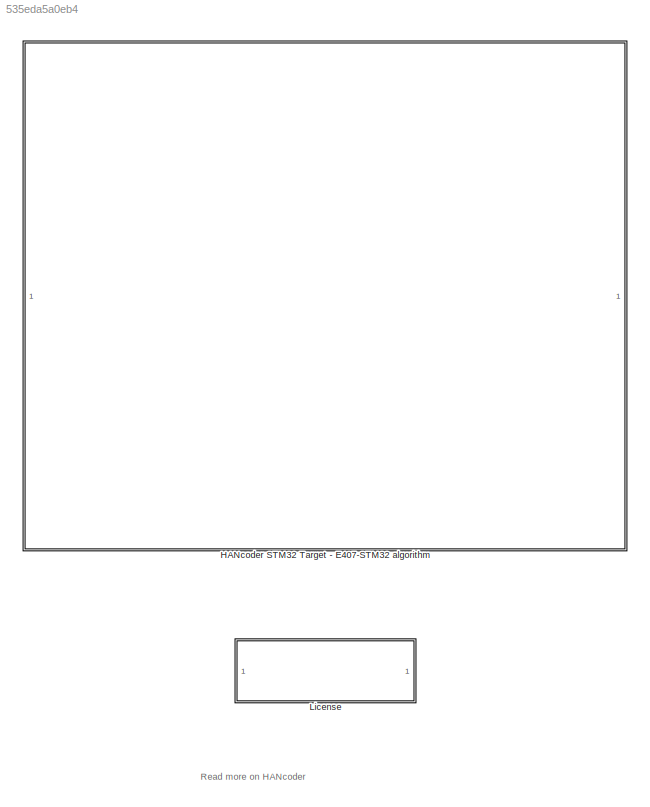
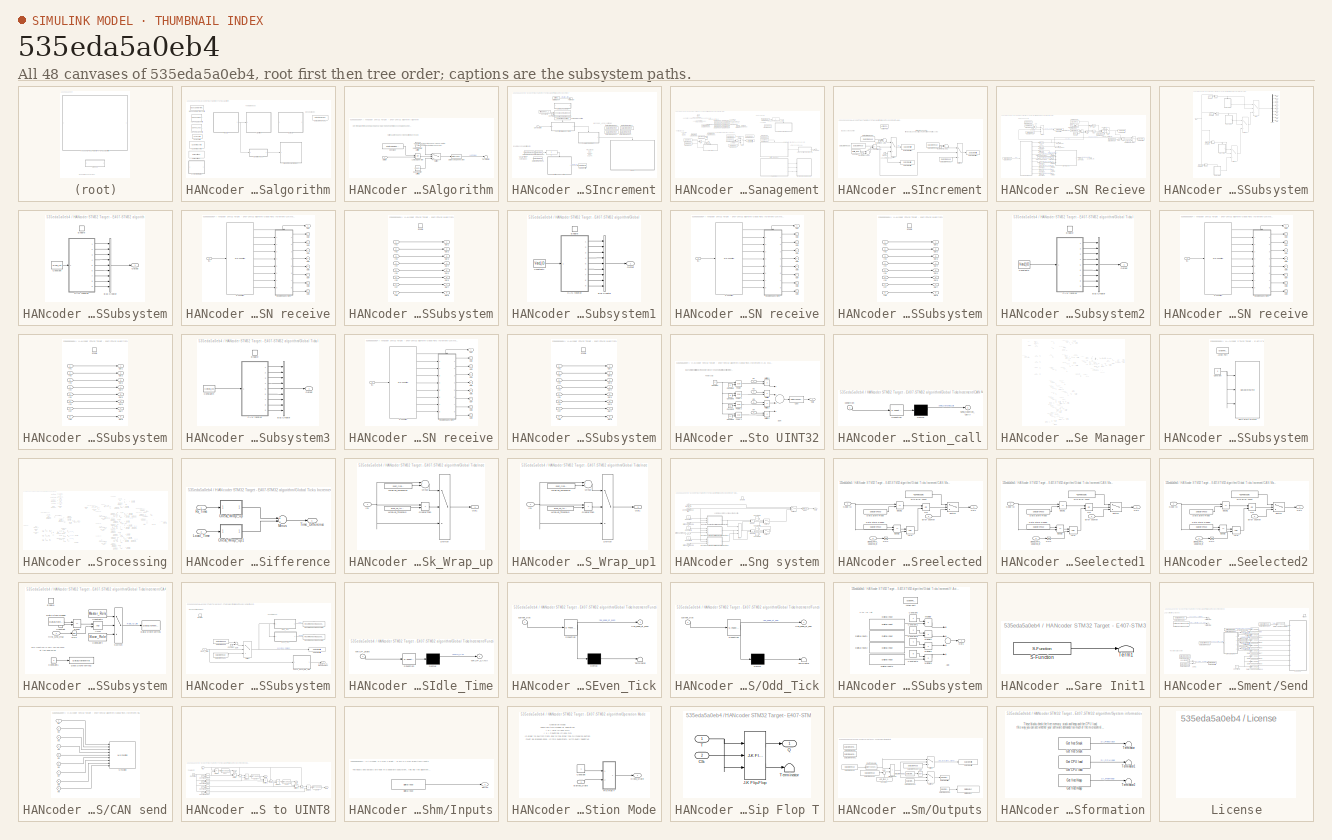
[diagram: thumbnail index - all 48 canvases of the model, root first then tree order]
MODEL slx_535eda5a0eb4
KIND model
CONFIG AbsTol = auto
CONFIG EnableMultiTasking = off
CONFIG FixedStep = 0.01
CONFIG MaxStep = auto
CONFIG MinStep = auto
CONFIG PreLoadFcn = librarySetup\neval([bdroot,'_startup']) %Calling [modelName]_startup.m
CONFIG RelTol = 1e-3
CONFIG SampleTimeConstraint = Unconstrained
CONFIG Solver = FixedStepDiscrete
CONFIG SolverName = FixedStepDiscrete
CONFIG StartTime = 0.0
CONFIG StopTime = 1
BLOCK [SubSystem] HANcoder STM32 Target - E407-STM32 algorithm
  CopyFcn = HANcoderChecks('Copy');
  MoveFcn = HANcoderChecks('MoveE407');
  NameChangeFcn = HANcoderChecks('NameChangeE407');
  Ports = []
  RequestExecContextInheritance = off
BLOCK [SubSystem] HANcoder STM32 Target - E407-STM32 algorithm/Algorithm
  Ports = [1]
  RequestExecContextInheritance = off
BLOCK [Reference] HANcoder STM32 Target - E407-STM32 algorithm/Algorithm/10Hz Counter Limiter  REF=simulink/Sources/Counter
Limited
  Ports = [0, 1]
  SourceBlock = simulink/Sources/Counter\nLimited
  SourceProductBaseCode = SL
  SourceProductName = Simulink
  SourceType = Counter Limited
BLOCK [Reference] HANcoder STM32 Target - E407-STM32 algorithm/Algorithm/5Hz Counter Limited  REF=simulink/Sources/Counter
Limited
  Ports = [0, 1]
  SourceBlock = simulink/Sources/Counter\nLimited
  SourceProductBaseCode = SL
  SourceProductName = Simulink
  SourceType = Counter Limited
BLOCK [Inport] HANcoder STM32 Target - E407-STM32 algorithm/Algorithm/Button
  IconDisplay = Port number
BLOCK [Constant] HANcoder STM32 Target - E407-STM32 algorithm/Algorithm/Constant
  OutDataTypeStr = boolean
  Value = HANtuneOverride
BLOCK [DataTypeConversion] HANcoder STM32 Target - E407-STM32 algorithm/Algorithm/Data Type Conversion
  OutDataTypeStr = boolean
  RndMeth = Floor
  SaturateOnIntegerOverflow = off
BLOCK [Logic] HANcoder STM32 Target - E407-STM32 algorithm/Algorithm/Logical Operator
  AllPortsSameDT = off
  Operator = OR
  OutDataTypeStr = boolean
  Ports = [2, 1]
BLOCK [Switch] HANcoder STM32 Target - E407-STM32 algorithm/Algorithm/Switch
  Criteria = u2 > Threshold
  InputSameDT = off
  SaturateOnIntegerOverflow = off
BLOCK [Terminator] HANcoder STM32 Target - E407-STM32 algorithm/Algorithm/Terminator
BLOCK [Reference] HANcoder STM32 Target - E407-STM32 algorithm/Base Sample Time config  REF=HANcoder_STM32_Target/STM32-E407/System Config/Base Sample Time config
  Description = HANcoder Target STM32-E407 blockset version 0.5
  Ports = []
  SourceBlock = HANcoder_STM32_Target/STM32-E407/System Config/Base Sample Time config
  SourceProductName = HANcoder STM32 Target
  SourceType = Base Sample Time config
  Tag = HANcoder_TARGET_STM32_E407
  UserDataPersistent = on
BLOCK [Reference] HANcoder STM32 Target - E407-STM32 algorithm/Build settings  REF=HANcoder_STM32_Target/STM32-E407/System Config/Build settings
  Ports = []
  SourceBlock = HANcoder_STM32_Target/STM32-E407/System Config/Build settings
  SourceProductName = HANcoder STM32 Target
  SourceType = Build Settings
  Tag = HANcoder_TARGET_STM32_E407
  UserDataPersistent = on
BLOCK [Reference] HANcoder STM32 Target - E407-STM32 algorithm/CAN config  REF=HANcoder_STM32_Target/STM32-E407/System Config/CAN config
  Ports = []
  SourceBlock = HANcoder_STM32_Target/STM32-E407/System Config/CAN config
  SourceProductName = HANcoder STM32 Target
  SourceType = CAN config
  Tag = HANcoder_TARGET_STM32_E407
  UserDataPersistent = on
BLOCK [Reference] HANcoder STM32 Target - E407-STM32 algorithm/Custom ID config  REF=HANcoder_STM32_Target/STM32-E407/System Config/Custom ID config
  Ports = []
  SourceBlock = HANcoder_STM32_Target/STM32-E407/System Config/Custom ID config
  SourceProductName = HANcoder STM32 Target
  SourceType = Custom ID config
  Tag = HANcoder_TARGET_STM32_E407
  UserDataPersistent = on
BLOCK [DataStoreMemory] HANcoder STM32 Target - E407-STM32 algorithm/Data Store Memory2
  DataStoreName = local_ticks_mem_IRQ
  OutDataTypeStr = uint32
  ReadBeforeWriteMsg = warning
  ShowAdditionalParam = off
  WriteAfterReadMsg = warning
  WriteAfterWriteMsg = warning
BLOCK [SubSystem] HANcoder STM32 Target - E407-STM32 algorithm/Global Ticks Increment
  Ports = [1]
  RequestExecContextInheritance = off
BLOCK [SubSystem] HANcoder STM32 Target - E407-STM32 algorithm/Global Ticks Increment/CAN Management
  Ports = [0, 1, 0, 1]
  RequestExecContextInheritance = off
BLOCK [Logic] HANcoder STM32 Target - E407-STM32 algorithm/Global Ticks Increment/CAN Management/AND
  AllPortsSameDT = off
  IconShape = distinctive
  OutDataTypeStr = boolean
  Ports = [2, 1]
BLOCK [SubSystem] HANcoder STM32 Target - E407-STM32 algorithm/Global Ticks Increment/CAN Management/Basic Cycle Increment
  Ports = [0, 0, 0, 0, 0, 0, 0, 1]
  RequestExecContextInheritance = off
  TreatAsAtomicUnit = on
BLOCK [ActionPort] HANcoder STM32 Target - E407-STM32 algorithm/Global Ticks Increment/CAN Management/Basic Cycle Increment/Action Port
  ActionType = then
BLOCK [Sum] HANcoder STM32 Target - E407-STM32 algorithm/Global Ticks Increment/CAN Management/Basic Cycle Increment/Add
  InputSameDT = off
  OutDataTypeStr = Inherit: Inherit via internal rule
  Ports = [2, 1]
  SaturateOnIntegerOverflow = off
BLOCK [Sum] HANcoder STM32 Target - E407-STM32 algorithm/Global Ticks Increment/CAN Management/Basic Cycle Increment/Add1
  InputSameDT = off
  Inputs = +-
  OutDataTypeStr = Inherit: Inherit via internal rule
  Ports = [2, 1]
  SaturateOnIntegerOverflow = off
BLOCK [Sum] HANcoder STM32 Target - E407-STM32 algorithm/Global Ticks Increment/CAN Management/Basic Cycle Increment/Add2
  InputSameDT = off
  OutDataTypeStr = Inherit: Inherit via internal rule
  Ports = [2, 1]
  SaturateOnIntegerOverflow = off
BLOCK [Constant] HANcoder STM32 Target - E407-STM32 algorithm/Global Ticks Increment/CAN Management/Basic Cycle Increment/Constant
  Value = matrix_rows
BLOCK [DataStoreRead] HANcoder STM32 Target - E407-STM32 algorithm/Global Ticks Increment/CAN Management/Basic Cycle Increment/Data Store Read
  DataStoreName = Initialization_Counter
  Ports = [0, 1]
BLOCK [DataStoreRead] HANcoder STM32 Target - E407-STM32 algorithm/Global Ticks Increment/CAN Management/Basic Cycle Increment/Data Store Read1
  DataStoreName = Initialization_Counter
  Ports = [0, 1]
BLOCK [DataStoreRead] HANcoder STM32 Target - E407-STM32 algorithm/Global Ticks Increment/CAN Management/Basic Cycle Increment/Data Store Read4
  DataStoreName = basic_cycle_count
  Ports = [0, 1]
BLOCK [DataStoreRead] HANcoder STM32 Target - E407-STM32 algorithm/Global Ticks Increment/CAN Management/Basic Cycle Increment/Data Store Read5
  DataStoreName = basic_cycle_count
  Ports = [0, 1]
BLOCK [DataStoreWrite] HANcoder STM32 Target - E407-STM32 algorithm/Global Ticks Increment/CAN Management/Basic Cycle Increment/Data Store Write
  DataStoreName = local_ticks_mem_IRQ
  Ports = [1]
BLOCK [DataStoreWrite] HANcoder STM32 Target - E407-STM32 algorithm/Global Ticks Increment/CAN Management/Basic Cycle Increment/Data Store Write1
  DataStoreName = Initialization_Counter
  Ports = [1]
BLOCK [DataStoreWrite] HANcoder STM32 Target - E407-STM32 algorithm/Global Ticks Increment/CAN Management/Basic Cycle Increment/Data Store Write3
  DataStoreName = basic_cycle_count
  Ports = [1]
BLOCK [Constant] HANcoder STM32 Target - E407-STM32 algorithm/Global Ticks Increment/CAN Management/Basic Cycle Increment/Decrement
  OutDataTypeStr = uint8
BLOCK [Constant] HANcoder STM32 Target - E407-STM32 algorithm/Global Ticks Increment/CAN Management/Basic Cycle Increment/Increment
  OutDataTypeStr = uint8
BLOCK [Constant] HANcoder STM32 Target - E407-STM32 algorithm/Global Ticks Increment/CAN Management/Basic Cycle Increment/Increment1
  OutDataTypeStr = uint8
BLOCK [RelationalOperator] HANcoder STM32 Target - E407-STM32 algorithm/Global Ticks Increment/CAN Management/Basic Cycle Increment/LessThanOrEqual
  InputSameDT = off
  Operator = <
  OutDataTypeStr = boolean
  Ports = [2, 1]
  RndMeth = Simplest
BLOCK [Constant] HANcoder STM32 Target - E407-STM32 algorithm/Global Ticks Increment/CAN Management/Basic Cycle Increment/Reset
  OutDataTypeStr = uint32
  Value = 0
BLOCK [Switch] HANcoder STM32 Target - E407-STM32 algorithm/Global Ticks Increment/CAN Management/Basic Cycle Increment/Switch
  Criteria = u2 > Threshold
  InputSameDT = off
  SaturateOnIntegerOverflow = off
BLOCK [Switch] HANcoder STM32 Target - E407-STM32 algorithm/Global Ticks Increment/CAN Management/Basic Cycle Increment/Switch1
  Criteria = u2 > Threshold
  InputSameDT = off
  SaturateOnIntegerOverflow = off
BLOCK [SubSystem] HANcoder STM32 Target - E407-STM32 algorithm/Global Ticks Increment/CAN Management/CAN Recieve
  Ports = [0, 3]
  RequestExecContextInheritance = off
BLOCK [Logic] HANcoder STM32 Target - E407-STM32 algorithm/Global Ticks Increment/CAN Management/CAN Recieve/AND
  AllPortsSameDT = off
  IconShape = distinctive
  OutDataTypeStr = boolean
  Ports = [2, 1]
BLOCK [Logic] HANcoder STM32 Target - E407-STM32 algorithm/Global Ticks Increment/CAN Management/CAN Recieve/AND1
  AllPortsSameDT = off
  IconShape = distinctive
  OutDataTypeStr = boolean
  Ports = [2, 1]
BLOCK [Logic] HANcoder STM32 Target - E407-STM32 algorithm/Global Ticks Increment/CAN Management/CAN Recieve/AND2
  AllPortsSameDT = off
  IconShape = distinctive
  OutDataTypeStr = boolean
  Ports = [2, 1]
BLOCK [Logic] HANcoder STM32 Target - E407-STM32 algorithm/Global Ticks Increment/CAN Management/CAN Recieve/AND3
  AllPortsSameDT = off
  IconShape = distinctive
  OutDataTypeStr = boolean
  Ports = [2, 1]
BLOCK [Constant] HANcoder STM32 Target - E407-STM32 algorithm/Global Ticks Increment/CAN Management/CAN Recieve/Board Number 1
  OutDataTypeStr = double
BLOCK [DataTypeConversion] HANcoder STM32 Target - E407-STM32 algorithm/Global Ticks Increment/CAN Management/CAN Recieve/Cast
  OutDataTypeStr = boolean
  RndMeth = Floor
  SaturateOnIntegerOverflow = off
BLOCK [Constant] HANcoder STM32 Target - E407-STM32 algorithm/Global Ticks Increment/CAN Management/CAN Recieve/Constant
  Value = Sync_ID
BLOCK [Constant] HANcoder STM32 Target - E407-STM32 algorithm/Global Ticks Increment/CAN Management/CAN Recieve/Constant1
  OutDataTypeStr = boolean
BLOCK [Constant] HANcoder STM32 Target - E407-STM32 algorithm/Global Ticks Increment/CAN Management/CAN Recieve/Constant2
  OutDataTypeStr = uint32
BLOCK [DataStoreMemory] HANcoder STM32 Target - E407-STM32 algorithm/Global Ticks Increment/CAN Management/CAN Recieve/Data Store Memory2
  DataStoreName = new_msg_counter
  OutDataTypeStr = uint32
  ReadBeforeWriteMsg = warning
  ShowAdditionalParam = off
  WriteAfterReadMsg = warning
  WriteAfterWriteMsg = warning
BLOCK [DataStoreRead] HANcoder STM32 Target - E407-STM32 algorithm/Global Ticks Increment/CAN Management/CAN Recieve/Data Store Read
  DataStoreName = RxID_message_buffer
  Ports = [0, 1]
BLOCK [DataStoreRead] HANcoder STM32 Target - E407-STM32 algorithm/Global Ticks Increment/CAN Management/CAN Recieve/Data Store Read1
  DataStoreName = new_msg_counter
  Ports = [0, 1]
BLOCK [DataStoreRead] HANcoder STM32 Target - E407-STM32 algorithm/Global Ticks Increment/CAN Management/CAN Recieve/Data Store Read2
  DataStoreName = new_msg_counter
  Ports = [0, 1]
BLOCK [DataStoreRead] HANcoder STM32 Target - E407-STM32 algorithm/Global Ticks Increment/CAN Management/CAN Recieve/Data Store Read3
  DataStoreName = RxID_message_buffer
  Ports = [0, 1]
BLOCK [DataStoreRead] HANcoder STM32 Target - E407-STM32 algorithm/Global Ticks Increment/CAN Management/CAN Recieve/Data Store Read4
  DataStoreName = first_sync_msg_flag
  Ports = [0, 1]
BLOCK [DataStoreRead] HANcoder STM32 Target - E407-STM32 algorithm/Global Ticks Increment/CAN Management/CAN Recieve/Data Store Read5
  DataStoreName = Board_ID
  Ports = [0, 1]
BLOCK [DataStoreRead] HANcoder STM32 Target - E407-STM32 algorithm/Global Ticks Increment/CAN Management/CAN Recieve/Data Store Read6
  DataStoreName = Idle_Time_Finish_Flag
  Ports = [0, 1]
BLOCK [DataStoreRead] HANcoder STM32 Target - E407-STM32 algorithm/Global Ticks Increment/CAN Management/CAN Recieve/Data Store Read7
  DataStoreName = Master_ID
  Ports = [0, 1]
BLOCK [DataStoreRead] HANcoder STM32 Target - E407-STM32 algorithm/Global Ticks Increment/CAN Management/CAN Recieve/Data Store Read8
  DataStoreName = Initialization_flag
  Ports = [0, 1]
BLOCK [DataStoreWrite] HANcoder STM32 Target - E407-STM32 algorithm/Global Ticks Increment/CAN Management/CAN Recieve/Data Store Write
  DataStoreName = first_sync_msg_flag
  Ports = [1]
BLOCK [DataStoreWrite] HANcoder STM32 Target - E407-STM32 algorithm/Global Ticks Increment/CAN Management/CAN Recieve/Data Store Write1
  DataStoreName = new_msg_counter
  Ports = [1]
BLOCK [DataStoreWrite] HANcoder STM32 Target - E407-STM32 algorithm/Global Ticks Increment/CAN Management/CAN Recieve/Data Store Write2
  DataStoreName = Master_ID
  Ports = [1]
BLOCK [DataTypeConversion] HANcoder STM32 Target - E407-STM32 algorithm/Global Ticks Increment/CAN Management/CAN Recieve/Data Type Conversion1
  OutDataTypeStr = double
  RndMeth = Floor
  SaturateOnIntegerOverflow = off
BLOCK [DataTypeConversion] HANcoder STM32 Target - E407-STM32 algorithm/Global Ticks Increment/CAN Management/CAN Recieve/Data Type Conversion2
  OutDataTypeStr = double
  RndMeth = Floor
  SaturateOnIntegerOverflow = off
BLOCK [DataTypeConversion] HANcoder STM32 Target - E407-STM32 algorithm/Global Ticks Increment/CAN Management/CAN Recieve/Data Type Conversion3
  OutDataTypeStr = double
  RndMeth = Floor
  SaturateOnIntegerOverflow = off
BLOCK [DataTypeConversion] HANcoder STM32 Target - E407-STM32 algorithm/Global Ticks Increment/CAN Management/CAN Recieve/Data Type Conversion4
  OutDataTypeStr = double
  RndMeth = Floor
  SaturateOnIntegerOverflow = off
BLOCK [DataTypeConversion] HANcoder STM32 Target - E407-STM32 algorithm/Global Ticks Increment/CAN Management/CAN Recieve/Data Type Conversion5
  OutDataTypeStr = double
  RndMeth = Floor
  SaturateOnIntegerOverflow = off
BLOCK [DataTypeConversion] HANcoder STM32 Target - E407-STM32 algorithm/Global Ticks Increment/CAN Management/CAN Recieve/Data Type Conversion6
  OutDataTypeStr = double
  RndMeth = Floor
  SaturateOnIntegerOverflow = off
BLOCK [DataTypeConversion] HANcoder STM32 Target - E407-STM32 algorithm/Global Ticks Increment/CAN Management/CAN Recieve/Data Type Conversion7
  OutDataTypeStr = double
  RndMeth = Floor
  SaturateOnIntegerOverflow = off
BLOCK [DataTypeConversion] HANcoder STM32 Target - E407-STM32 algorithm/Global Ticks Increment/CAN Management/CAN Recieve/Data Type Conversion8
  OutDataTypeStr = double
  RndMeth = Floor
  SaturateOnIntegerOverflow = off
BLOCK [DataTypeConversion] HANcoder STM32 Target - E407-STM32 algorithm/Global Ticks Increment/CAN Management/CAN Recieve/Data Type Conversion9
  OutDataTypeStr = double
  RndMeth = Floor
  SaturateOnIntegerOverflow = off
BLOCK [RelationalOperator] HANcoder STM32 Target - E407-STM32 algorithm/Global Ticks Increment/CAN Management/CAN Recieve/Equal
  InputSameDT = off
  Operator = ==
  OutDataTypeStr = boolean
  Ports = [2, 1]
  RndMeth = Simplest
BLOCK [RelationalOperator] HANcoder STM32 Target - E407-STM32 algorithm/Global Ticks Increment/CAN Management/CAN Recieve/Equal1
  InputSameDT = off
  Operator = ~=
  OutDataTypeStr = boolean
  Ports = [2, 1]
  RndMeth = Simplest
BLOCK [Outport] HANcoder STM32 Target - E407-STM32 algorithm/Global Ticks Increment/CAN Management/CAN Recieve/Local_Time_Rx
  IconDisplay = Port number
  Port = 3
BLOCK [Outport] HANcoder STM32 Target - E407-STM32 algorithm/Global Ticks Increment/CAN Management/CAN Recieve/Message_Header
  IconDisplay = Port number
  Port = 2
BLOCK [Logic] HANcoder STM32 Target - E407-STM32 algorithm/Global Ticks Increment/CAN Management/CAN Recieve/NOT
  AllPortsSameDT = off
  IconShape = distinctive
  Operator = NOT
  OutDataTypeStr = boolean
  Ports = [1, 1]
BLOCK [Logic] HANcoder STM32 Target - E407-STM32 algorithm/Global Ticks Increment/CAN Management/CAN Recieve/NOT1
  AllPortsSameDT = off
  IconShape = distinctive
  Operator = NOT
  OutDataTypeStr = boolean
  Ports = [1, 1]
BLOCK [Outport] HANcoder STM32 Target - E407-STM32 algorithm/Global Ticks Increment/CAN Management/CAN Recieve/New_Message
  IconDisplay = Port number
BLOCK [Logic] HANcoder STM32 Target - E407-STM32 algorithm/Global Ticks Increment/CAN Management/CAN Recieve/OR
  AllPortsSameDT = off
  IconShape = distinctive
  Operator = OR
  OutDataTypeStr = boolean
  Ports = [2, 1]
BLOCK [SubSystem] HANcoder STM32 Target - E407-STM32 algorithm/Global Ticks Increment/CAN Management/CAN Recieve/Subsystem
  Ports = [1, 9]
  RequestExecContextInheritance = off
BLOCK [Constant] HANcoder STM32 Target - E407-STM32 algorithm/Global Ticks Increment/CAN Management/CAN Recieve/Subsystem/Constant
  OutDataTypeStr = uint32
  Value = Sync_ID
BLOCK [Constant] HANcoder STM32 Target - E407-STM32 algorithm/Global Ticks Increment/CAN Management/CAN Recieve/Subsystem/Constant1
  OutDataTypeStr = uint32
  Value = Vote1_ID
BLOCK [Constant] HANcoder STM32 Target - E407-STM32 algorithm/Global Ticks Increment/CAN Management/CAN Recieve/Subsystem/Constant3
  OutDataTypeStr = uint32
  Value = Vote2_ID
BLOCK [Constant] HANcoder STM32 Target - E407-STM32 algorithm/Global Ticks Increment/CAN Management/CAN Recieve/Subsystem/Constant4
  OutDataTypeStr = uint32
  Value = Vote3_ID
BLOCK [Demux] HANcoder STM32 Target - E407-STM32 algorithm/Global Ticks Increment/CAN Management/CAN Recieve/Subsystem/Demux
  DisplayOption = bar
  Outputs = 9
  Ports = [1, 9]
BLOCK [RelationalOperator] HANcoder STM32 Target - E407-STM32 algorithm/Global Ticks Increment/CAN Management/CAN Recieve/Subsystem/Equal
  InputSameDT = off
  Operator = ==
  OutDataTypeStr = boolean
  Ports = [2, 1]
  RndMeth = Simplest
BLOCK [RelationalOperator] HANcoder STM32 Target - E407-STM32 algorithm/Global Ticks Increment/CAN Management/CAN Recieve/Subsystem/Equal1
  InputSameDT = off
  Operator = ==
  OutDataTypeStr = boolean
  Ports = [2, 1]
  RndMeth = Simplest
BLOCK [RelationalOperator] HANcoder STM32 Target - E407-STM32 algorithm/Global Ticks Increment/CAN Management/CAN Recieve/Subsystem/Equal2
  InputSameDT = off
  Operator = ==
  OutDataTypeStr = boolean
  Ports = [2, 1]
  RndMeth = Simplest
BLOCK [RelationalOperator] HANcoder STM32 Target - E407-STM32 algorithm/Global Ticks Increment/CAN Management/CAN Recieve/Subsystem/Equal3
  InputSameDT = off
  Operator = ==
  OutDataTypeStr = boolean
  Ports = [2, 1]
  RndMeth = Simplest
BLOCK [Inport] HANcoder STM32 Target - E407-STM32 algorithm/Global Ticks Increment/CAN Management/CAN Recieve/Subsystem/In1
  IconDisplay = Port number
BLOCK [Outport] HANcoder STM32 Target - E407-STM32 algorithm/Global Ticks Increment/CAN Management/CAN Recieve/Subsystem/Out1
  IconDisplay = Port number
BLOCK [Outport] HANcoder STM32 Target - E407-STM32 algorithm/Global Ticks Increment/CAN Management/CAN Recieve/Subsystem/Out2
  IconDisplay = Port number
  Port = 2
BLOCK [Outport] HANcoder STM32 Target - E407-STM32 algorithm/Global Ticks Increment/CAN Management/CAN Recieve/Subsystem/Out3
  IconDisplay = Port number
  Port = 3
BLOCK [Outport] HANcoder STM32 Target - E407-STM32 algorithm/Global Ticks Increment/CAN Management/CAN Recieve/Subsystem/Out4
  IconDisplay = Port number
  Port = 4
BLOCK [Outport] HANcoder STM32 Target - E407-STM32 algorithm/Global Ticks Increment/CAN Management/CAN Recieve/Subsystem/Out5
  IconDisplay = Port number
  Port = 5
BLOCK [Outport] HANcoder STM32 Target - E407-STM32 algorithm/Global Ticks Increment/CAN Management/CAN Recieve/Subsystem/Out6
  IconDisplay = Port number
  Port = 6
BLOCK [Outport] HANcoder STM32 Target - E407-STM32 algorithm/Global Ticks Increment/CAN Management/CAN Recieve/Subsystem/Out7
  IconDisplay = Port number
  Port = 7
BLOCK [Outport] HANcoder STM32 Target - E407-STM32 algorithm/Global Ticks Increment/CAN Management/CAN Recieve/Subsystem/Out8
  IconDisplay = Port number
  Port = 8
BLOCK [Outport] HANcoder STM32 Target - E407-STM32 algorithm/Global Ticks Increment/CAN Management/CAN Recieve/Subsystem/Out9
  IconDisplay = Port number
  Port = 9
BLOCK [SubSystem] HANcoder STM32 Target - E407-STM32 algorithm/Global Ticks Increment/CAN Management/CAN Recieve/Subsystem/Subsystem
  Ports = [0, 1, 1]
  RequestExecContextInheritance = off
BLOCK [BusCreator] HANcoder STM32 Target - E407-STM32 algorithm/Global Ticks Increment/CAN Management/CAN Recieve/Subsystem/Subsystem/Bus Creator
  DisplayOption = bar
  InheritFromInputs = on
  Inputs = 9
  Ports = [9, 1]
BLOCK [SubSystem] HANcoder STM32 Target - E407-STM32 algorithm/Global Ticks Increment/CAN Management/CAN Recieve/Subsystem/Subsystem/CAN receive
  AncestorBlock = HANcoder_STM32_Target/STM32-E407/CAN/CAN/CAN receive
  MoveFcn = drawLogos
  Ports = [1, 9]
  RequestExecContextInheritance = off
  Tag = HANcoder_TARGET_STM32_E407
  UserDataPersistent = on
BLOCK [SubSystem] HANcoder STM32 Target - E407-STM32 algorithm/Global Ticks Increment/CAN Management/CAN Recieve/Subsystem/Subsystem/CAN receive/Enabled Subsystem
  Ports = [8, 8, 1]
  RequestExecContextInheritance = off
  TreatAsAtomicUnit = on
BLOCK [EnablePort] HANcoder STM32 Target - E407-STM32 algorithm/Global Ticks Increment/CAN Management/CAN Recieve/Subsystem/Subsystem/CAN receive/Enabled Subsystem/Enable
  Ports = []
BLOCK [Inport] HANcoder STM32 Target - E407-STM32 algorithm/Global Ticks Increment/CAN Management/CAN Recieve/Subsystem/Subsystem/CAN receive/Enabled Subsystem/In1
  IconDisplay = Port number
BLOCK [Inport] HANcoder STM32 Target - E407-STM32 algorithm/Global Ticks Increment/CAN Management/CAN Recieve/Subsystem/Subsystem/CAN receive/Enabled Subsystem/In2
  IconDisplay = Port number
  Port = 2
BLOCK [Inport] HANcoder STM32 Target - E407-STM32 algorithm/Global Ticks Increment/CAN Management/CAN Recieve/Subsystem/Subsystem/CAN receive/Enabled Subsystem/In3
  IconDisplay = Port number
  Port = 3
BLOCK [Inport] HANcoder STM32 Target - E407-STM32 algorithm/Global Ticks Increment/CAN Management/CAN Recieve/Subsystem/Subsystem/CAN receive/Enabled Subsystem/In4
  IconDisplay = Port number
  Port = 4
BLOCK [Inport] HANcoder STM32 Target - E407-STM32 algorithm/Global Ticks Increment/CAN Management/CAN Recieve/Subsystem/Subsystem/CAN receive/Enabled Subsystem/In5
  IconDisplay = Port number
  Port = 5
BLOCK [Inport] HANcoder STM32 Target - E407-STM32 algorithm/Global Ticks Increment/CAN Management/CAN Recieve/Subsystem/Subsystem/CAN receive/Enabled Subsystem/In6
  IconDisplay = Port number
  Port = 6
BLOCK [Inport] HANcoder STM32 Target - E407-STM32 algorithm/Global Ticks Increment/CAN Management/CAN Recieve/Subsystem/Subsystem/CAN receive/Enabled Subsystem/In7
  IconDisplay = Port number
  Port = 7
BLOCK [Inport] HANcoder STM32 Target - E407-STM32 algorithm/Global Ticks Increment/CAN Management/CAN Recieve/Subsystem/Subsystem/CAN receive/Enabled Subsystem/In8
  IconDisplay = Port number
  Port = 8
BLOCK [Outport] HANcoder STM32 Target - E407-STM32 algorithm/Global Ticks Increment/CAN Management/CAN Recieve/Subsystem/Subsystem/CAN receive/Enabled Subsystem/Out1
  IconDisplay = Port number
BLOCK [Outport] HANcoder STM32 Target - E407-STM32 algorithm/Global Ticks Increment/CAN Management/CAN Recieve/Subsystem/Subsystem/CAN receive/Enabled Subsystem/Out2
  IconDisplay = Port number
  Port = 2
BLOCK [Outport] HANcoder STM32 Target - E407-STM32 algorithm/Global Ticks Increment/CAN Management/CAN Recieve/Subsystem/Subsystem/CAN receive/Enabled Subsystem/Out3
  IconDisplay = Port number
  Port = 3
BLOCK [Outport] HANcoder STM32 Target - E407-STM32 algorithm/Global Ticks Increment/CAN Management/CAN Recieve/Subsystem/Subsystem/CAN receive/Enabled Subsystem/Out4
  IconDisplay = Port number
  Port = 4
BLOCK [Outport] HANcoder STM32 Target - E407-STM32 algorithm/Global Ticks Increment/CAN Management/CAN Recieve/Subsystem/Subsystem/CAN receive/Enabled Subsystem/Out5
  IconDisplay = Port number
  Port = 5
BLOCK [Outport] HANcoder STM32 Target - E407-STM32 algorithm/Global Ticks Increment/CAN Management/CAN Recieve/Subsystem/Subsystem/CAN receive/Enabled Subsystem/Out6
  IconDisplay = Port number
  Port = 6
BLOCK [Outport] HANcoder STM32 Target - E407-STM32 algorithm/Global Ticks Increment/CAN Management/CAN Recieve/Subsystem/Subsystem/CAN receive/Enabled Subsystem/Out7
  IconDisplay = Port number
  Port = 7
BLOCK [Outport] HANcoder STM32 Target - E407-STM32 algorithm/Global Ticks Increment/CAN Management/CAN Recieve/Subsystem/Subsystem/CAN receive/Enabled Subsystem/Out8
  IconDisplay = Port number
  Port = 8
BLOCK [Inport] HANcoder STM32 Target - E407-STM32 algorithm/Global Ticks Increment/CAN Management/CAN Recieve/Subsystem/Subsystem/CAN receive/In1
  IconDisplay = Port number
BLOCK [Outport] HANcoder STM32 Target - E407-STM32 algorithm/Global Ticks Increment/CAN Management/CAN Recieve/Subsystem/Subsystem/CAN receive/Out1
  IconDisplay = Port number
BLOCK [Outport] HANcoder STM32 Target - E407-STM32 algorithm/Global Ticks Increment/CAN Management/CAN Recieve/Subsystem/Subsystem/CAN receive/Out2
  IconDisplay = Port number
  Port = 2
BLOCK [Outport] HANcoder STM32 Target - E407-STM32 algorithm/Global Ticks Increment/CAN Management/CAN Recieve/Subsystem/Subsystem/CAN receive/Out3
  IconDisplay = Port number
  Port = 3
BLOCK [Outport] HANcoder STM32 Target - E407-STM32 algorithm/Global Ticks Increment/CAN Management/CAN Recieve/Subsystem/Subsystem/CAN receive/Out4
  IconDisplay = Port number
  Port = 4
BLOCK [Outport] HANcoder STM32 Target - E407-STM32 algorithm/Global Ticks Increment/CAN Management/CAN Recieve/Subsystem/Subsystem/CAN receive/Out5
  IconDisplay = Port number
  Port = 5
BLOCK [Outport] HANcoder STM32 Target - E407-STM32 algorithm/Global Ticks Increment/CAN Management/CAN Recieve/Subsystem/Subsystem/CAN receive/Out6
  IconDisplay = Port number
  Port = 6
BLOCK [Outport] HANcoder STM32 Target - E407-STM32 algorithm/Global Ticks Increment/CAN Management/CAN Recieve/Subsystem/Subsystem/CAN receive/Out7
  IconDisplay = Port number
  Port = 7
BLOCK [Outport] HANcoder STM32 Target - E407-STM32 algorithm/Global Ticks Increment/CAN Management/CAN Recieve/Subsystem/Subsystem/CAN receive/Out8
  IconDisplay = Port number
  Port = 8
BLOCK [Outport] HANcoder STM32 Target - E407-STM32 algorithm/Global Ticks Increment/CAN Management/CAN Recieve/Subsystem/Subsystem/CAN receive/Out9
  IconDisplay = Port number
  Port = 9
BLOCK [M-S-Function] HANcoder STM32 Target - E407-STM32 algorithm/Global Ticks Increment/CAN Management/CAN Recieve/Subsystem/Subsystem/CAN receive/S-Function
  FunctionName = sfcn_can_receive
  Parameters = tsamp, canBus, outputNumber, dataType, byteOrder
  Ports = [1, 9]
BLOCK [Constant] HANcoder STM32 Target - E407-STM32 algorithm/Global Ticks Increment/CAN Management/CAN Recieve/Subsystem/Subsystem/Constant
  OutDataTypeStr = uint32
  Value = Sync_ID
BLOCK [EnablePort] HANcoder STM32 Target - E407-STM32 algorithm/Global Ticks Increment/CAN Management/CAN Recieve/Subsystem/Subsystem/Enable
  Ports = []
BLOCK [Outport] HANcoder STM32 Target - E407-STM32 algorithm/Global Ticks Increment/CAN Management/CAN Recieve/Subsystem/Subsystem/Output
  IconDisplay = Port number
BLOCK [SubSystem] HANcoder STM32 Target - E407-STM32 algorithm/Global Ticks Increment/CAN Management/CAN Recieve/Subsystem/Subsystem1
  Ports = [0, 1, 1]
  RequestExecContextInheritance = off
BLOCK [BusCreator] HANcoder STM32 Target - E407-STM32 algorithm/Global Ticks Increment/CAN Management/CAN Recieve/Subsystem/Subsystem1/Bus Creator
  DisplayOption = bar
  InheritFromInputs = on
  Inputs = 9
  Ports = [9, 1]
BLOCK [SubSystem] HANcoder STM32 Target - E407-STM32 algorithm/Global Ticks Increment/CAN Management/CAN Recieve/Subsystem/Subsystem1/CAN receive
  AncestorBlock = HANcoder_STM32_Target/STM32-E407/CAN/CAN/CAN receive
  MoveFcn = drawLogos
  Ports = [1, 9]
  RequestExecContextInheritance = off
  Tag = HANcoder_TARGET_STM32_E407
  UserDataPersistent = on
BLOCK [SubSystem] HANcoder STM32 Target - E407-STM32 algorithm/Global Ticks Increment/CAN Management/CAN Recieve/Subsystem/Subsystem1/CAN receive/Enabled Subsystem
  Ports = [8, 8, 1]
  RequestExecContextInheritance = off
  TreatAsAtomicUnit = on
BLOCK [EnablePort] HANcoder STM32 Target - E407-STM32 algorithm/Global Ticks Increment/CAN Management/CAN Recieve/Subsystem/Subsystem1/CAN receive/Enabled Subsystem/Enable
  Ports = []
BLOCK [Inport] HANcoder STM32 Target - E407-STM32 algorithm/Global Ticks Increment/CAN Management/CAN Recieve/Subsystem/Subsystem1/CAN receive/Enabled Subsystem/In1
  IconDisplay = Port number
BLOCK [Inport] HANcoder STM32 Target - E407-STM32 algorithm/Global Ticks Increment/CAN Management/CAN Recieve/Subsystem/Subsystem1/CAN receive/Enabled Subsystem/In2
  IconDisplay = Port number
  Port = 2
BLOCK [Inport] HANcoder STM32 Target - E407-STM32 algorithm/Global Ticks Increment/CAN Management/CAN Recieve/Subsystem/Subsystem1/CAN receive/Enabled Subsystem/In3
  IconDisplay = Port number
  Port = 3
BLOCK [Inport] HANcoder STM32 Target - E407-STM32 algorithm/Global Ticks Increment/CAN Management/CAN Recieve/Subsystem/Subsystem1/CAN receive/Enabled Subsystem/In4
  IconDisplay = Port number
  Port = 4
BLOCK [Inport] HANcoder STM32 Target - E407-STM32 algorithm/Global Ticks Increment/CAN Management/CAN Recieve/Subsystem/Subsystem1/CAN receive/Enabled Subsystem/In5
  IconDisplay = Port number
  Port = 5
BLOCK [Inport] HANcoder STM32 Target - E407-STM32 algorithm/Global Ticks Increment/CAN Management/CAN Recieve/Subsystem/Subsystem1/CAN receive/Enabled Subsystem/In6
  IconDisplay = Port number
  Port = 6
BLOCK [Inport] HANcoder STM32 Target - E407-STM32 algorithm/Global Ticks Increment/CAN Management/CAN Recieve/Subsystem/Subsystem1/CAN receive/Enabled Subsystem/In7
  IconDisplay = Port number
  Port = 7
BLOCK [Inport] HANcoder STM32 Target - E407-STM32 algorithm/Global Ticks Increment/CAN Management/CAN Recieve/Subsystem/Subsystem1/CAN receive/Enabled Subsystem/In8
  IconDisplay = Port number
  Port = 8
BLOCK [Outport] HANcoder STM32 Target - E407-STM32 algorithm/Global Ticks Increment/CAN Management/CAN Recieve/Subsystem/Subsystem1/CAN receive/Enabled Subsystem/Out1
  IconDisplay = Port number
BLOCK [Outport] HANcoder STM32 Target - E407-STM32 algorithm/Global Ticks Increment/CAN Management/CAN Recieve/Subsystem/Subsystem1/CAN receive/Enabled Subsystem/Out2
  IconDisplay = Port number
  Port = 2
BLOCK [Outport] HANcoder STM32 Target - E407-STM32 algorithm/Global Ticks Increment/CAN Management/CAN Recieve/Subsystem/Subsystem1/CAN receive/Enabled Subsystem/Out3
  IconDisplay = Port number
  Port = 3
BLOCK [Outport] HANcoder STM32 Target - E407-STM32 algorithm/Global Ticks Increment/CAN Management/CAN Recieve/Subsystem/Subsystem1/CAN receive/Enabled Subsystem/Out4
  IconDisplay = Port number
  Port = 4
BLOCK [Outport] HANcoder STM32 Target - E407-STM32 algorithm/Global Ticks Increment/CAN Management/CAN Recieve/Subsystem/Subsystem1/CAN receive/Enabled Subsystem/Out5
  IconDisplay = Port number
  Port = 5
BLOCK [Outport] HANcoder STM32 Target - E407-STM32 algorithm/Global Ticks Increment/CAN Management/CAN Recieve/Subsystem/Subsystem1/CAN receive/Enabled Subsystem/Out6
  IconDisplay = Port number
  Port = 6
BLOCK [Outport] HANcoder STM32 Target - E407-STM32 algorithm/Global Ticks Increment/CAN Management/CAN Recieve/Subsystem/Subsystem1/CAN receive/Enabled Subsystem/Out7
  IconDisplay = Port number
  Port = 7
BLOCK [Outport] HANcoder STM32 Target - E407-STM32 algorithm/Global Ticks Increment/CAN Management/CAN Recieve/Subsystem/Subsystem1/CAN receive/Enabled Subsystem/Out8
  IconDisplay = Port number
  Port = 8
BLOCK [Inport] HANcoder STM32 Target - E407-STM32 algorithm/Global Ticks Increment/CAN Management/CAN Recieve/Subsystem/Subsystem1/CAN receive/In1
  IconDisplay = Port number
BLOCK [Outport] HANcoder STM32 Target - E407-STM32 algorithm/Global Ticks Increment/CAN Management/CAN Recieve/Subsystem/Subsystem1/CAN receive/Out1
  IconDisplay = Port number
BLOCK [Outport] HANcoder STM32 Target - E407-STM32 algorithm/Global Ticks Increment/CAN Management/CAN Recieve/Subsystem/Subsystem1/CAN receive/Out2
  IconDisplay = Port number
  Port = 2
BLOCK [Outport] HANcoder STM32 Target - E407-STM32 algorithm/Global Ticks Increment/CAN Management/CAN Recieve/Subsystem/Subsystem1/CAN receive/Out3
  IconDisplay = Port number
  Port = 3
BLOCK [Outport] HANcoder STM32 Target - E407-STM32 algorithm/Global Ticks Increment/CAN Management/CAN Recieve/Subsystem/Subsystem1/CAN receive/Out4
  IconDisplay = Port number
  Port = 4
BLOCK [Outport] HANcoder STM32 Target - E407-STM32 algorithm/Global Ticks Increment/CAN Management/CAN Recieve/Subsystem/Subsystem1/CAN receive/Out5
  IconDisplay = Port number
  Port = 5
BLOCK [Outport] HANcoder STM32 Target - E407-STM32 algorithm/Global Ticks Increment/CAN Management/CAN Recieve/Subsystem/Subsystem1/CAN receive/Out6
  IconDisplay = Port number
  Port = 6
BLOCK [Outport] HANcoder STM32 Target - E407-STM32 algorithm/Global Ticks Increment/CAN Management/CAN Recieve/Subsystem/Subsystem1/CAN receive/Out7
  IconDisplay = Port number
  Port = 7
BLOCK [Outport] HANcoder STM32 Target - E407-STM32 algorithm/Global Ticks Increment/CAN Management/CAN Recieve/Subsystem/Subsystem1/CAN receive/Out8
  IconDisplay = Port number
  Port = 8
BLOCK [Outport] HANcoder STM32 Target - E407-STM32 algorithm/Global Ticks Increment/CAN Management/CAN Recieve/Subsystem/Subsystem1/CAN receive/Out9
  IconDisplay = Port number
  Port = 9
BLOCK [M-S-Function] HANcoder STM32 Target - E407-STM32 algorithm/Global Ticks Increment/CAN Management/CAN Recieve/Subsystem/Subsystem1/CAN receive/S-Function
  FunctionName = sfcn_can_receive
  Parameters = tsamp, canBus, outputNumber, dataType, byteOrder
  Ports = [1, 9]
BLOCK [Constant] HANcoder STM32 Target - E407-STM32 algorithm/Global Ticks Increment/CAN Management/CAN Recieve/Subsystem/Subsystem1/Constant1
  OutDataTypeStr = uint32
  Value = Vote1_ID
BLOCK [EnablePort] HANcoder STM32 Target - E407-STM32 algorithm/Global Ticks Increment/CAN Management/CAN Recieve/Subsystem/Subsystem1/Enable
  Ports = []
BLOCK [Outport] HANcoder STM32 Target - E407-STM32 algorithm/Global Ticks Increment/CAN Management/CAN Recieve/Subsystem/Subsystem1/Output
  IconDisplay = Port number
BLOCK [SubSystem] HANcoder STM32 Target - E407-STM32 algorithm/Global Ticks Increment/CAN Management/CAN Recieve/Subsystem/Subsystem2
  Ports = [0, 1, 1]
  RequestExecContextInheritance = off
BLOCK [BusCreator] HANcoder STM32 Target - E407-STM32 algorithm/Global Ticks Increment/CAN Management/CAN Recieve/Subsystem/Subsystem2/Bus Creator
  DisplayOption = bar
  InheritFromInputs = on
  Inputs = 9
  Ports = [9, 1]
BLOCK [SubSystem] HANcoder STM32 Target - E407-STM32 algorithm/Global Ticks Increment/CAN Management/CAN Recieve/Subsystem/Subsystem2/CAN receive
  AncestorBlock = HANcoder_STM32_Target/STM32-E407/CAN/CAN/CAN receive
  MoveFcn = drawLogos
  Ports = [1, 9]
  RequestExecContextInheritance = off
  Tag = HANcoder_TARGET_STM32_E407
  UserDataPersistent = on
BLOCK [SubSystem] HANcoder STM32 Target - E407-STM32 algorithm/Global Ticks Increment/CAN Management/CAN Recieve/Subsystem/Subsystem2/CAN receive/Enabled Subsystem
  Ports = [8, 8, 1]
  RequestExecContextInheritance = off
  TreatAsAtomicUnit = on
BLOCK [EnablePort] HANcoder STM32 Target - E407-STM32 algorithm/Global Ticks Increment/CAN Management/CAN Recieve/Subsystem/Subsystem2/CAN receive/Enabled Subsystem/Enable
  Ports = []
BLOCK [Inport] HANcoder STM32 Target - E407-STM32 algorithm/Global Ticks Increment/CAN Management/CAN Recieve/Subsystem/Subsystem2/CAN receive/Enabled Subsystem/In1
  IconDisplay = Port number
BLOCK [Inport] HANcoder STM32 Target - E407-STM32 algorithm/Global Ticks Increment/CAN Management/CAN Recieve/Subsystem/Subsystem2/CAN receive/Enabled Subsystem/In2
  IconDisplay = Port number
  Port = 2
BLOCK [Inport] HANcoder STM32 Target - E407-STM32 algorithm/Global Ticks Increment/CAN Management/CAN Recieve/Subsystem/Subsystem2/CAN receive/Enabled Subsystem/In3
  IconDisplay = Port number
  Port = 3
BLOCK [Inport] HANcoder STM32 Target - E407-STM32 algorithm/Global Ticks Increment/CAN Management/CAN Recieve/Subsystem/Subsystem2/CAN receive/Enabled Subsystem/In4
  IconDisplay = Port number
  Port = 4
BLOCK [Inport] HANcoder STM32 Target - E407-STM32 algorithm/Global Ticks Increment/CAN Management/CAN Recieve/Subsystem/Subsystem2/CAN receive/Enabled Subsystem/In5
  IconDisplay = Port number
  Port = 5
BLOCK [Inport] HANcoder STM32 Target - E407-STM32 algorithm/Global Ticks Increment/CAN Management/CAN Recieve/Subsystem/Subsystem2/CAN receive/Enabled Subsystem/In6
  IconDisplay = Port number
  Port = 6
BLOCK [Inport] HANcoder STM32 Target - E407-STM32 algorithm/Global Ticks Increment/CAN Management/CAN Recieve/Subsystem/Subsystem2/CAN receive/Enabled Subsystem/In7
  IconDisplay = Port number
  Port = 7
BLOCK [Inport] HANcoder STM32 Target - E407-STM32 algorithm/Global Ticks Increment/CAN Management/CAN Recieve/Subsystem/Subsystem2/CAN receive/Enabled Subsystem/In8
  IconDisplay = Port number
  Port = 8
BLOCK [Outport] HANcoder STM32 Target - E407-STM32 algorithm/Global Ticks Increment/CAN Management/CAN Recieve/Subsystem/Subsystem2/CAN receive/Enabled Subsystem/Out1
  IconDisplay = Port number
BLOCK [Outport] HANcoder STM32 Target - E407-STM32 algorithm/Global Ticks Increment/CAN Management/CAN Recieve/Subsystem/Subsystem2/CAN receive/Enabled Subsystem/Out2
  IconDisplay = Port number
  Port = 2
BLOCK [Outport] HANcoder STM32 Target - E407-STM32 algorithm/Global Ticks Increment/CAN Management/CAN Recieve/Subsystem/Subsystem2/CAN receive/Enabled Subsystem/Out3
  IconDisplay = Port number
  Port = 3
BLOCK [Outport] HANcoder STM32 Target - E407-STM32 algorithm/Global Ticks Increment/CAN Management/CAN Recieve/Subsystem/Subsystem2/CAN receive/Enabled Subsystem/Out4
  IconDisplay = Port number
  Port = 4
BLOCK [Outport] HANcoder STM32 Target - E407-STM32 algorithm/Global Ticks Increment/CAN Management/CAN Recieve/Subsystem/Subsystem2/CAN receive/Enabled Subsystem/Out5
  IconDisplay = Port number
  Port = 5
BLOCK [Outport] HANcoder STM32 Target - E407-STM32 algorithm/Global Ticks Increment/CAN Management/CAN Recieve/Subsystem/Subsystem2/CAN receive/Enabled Subsystem/Out6
  IconDisplay = Port number
  Port = 6
BLOCK [Outport] HANcoder STM32 Target - E407-STM32 algorithm/Global Ticks Increment/CAN Management/CAN Recieve/Subsystem/Subsystem2/CAN receive/Enabled Subsystem/Out7
  IconDisplay = Port number
  Port = 7
BLOCK [Outport] HANcoder STM32 Target - E407-STM32 algorithm/Global Ticks Increment/CAN Management/CAN Recieve/Subsystem/Subsystem2/CAN receive/Enabled Subsystem/Out8
  IconDisplay = Port number
  Port = 8
BLOCK [Inport] HANcoder STM32 Target - E407-STM32 algorithm/Global Ticks Increment/CAN Management/CAN Recieve/Subsystem/Subsystem2/CAN receive/In1
  IconDisplay = Port number
BLOCK [Outport] HANcoder STM32 Target - E407-STM32 algorithm/Global Ticks Increment/CAN Management/CAN Recieve/Subsystem/Subsystem2/CAN receive/Out1
  IconDisplay = Port number
BLOCK [Outport] HANcoder STM32 Target - E407-STM32 algorithm/Global Ticks Increment/CAN Management/CAN Recieve/Subsystem/Subsystem2/CAN receive/Out2
  IconDisplay = Port number
  Port = 2
BLOCK [Outport] HANcoder STM32 Target - E407-STM32 algorithm/Global Ticks Increment/CAN Management/CAN Recieve/Subsystem/Subsystem2/CAN receive/Out3
  IconDisplay = Port number
  Port = 3
BLOCK [Outport] HANcoder STM32 Target - E407-STM32 algorithm/Global Ticks Increment/CAN Management/CAN Recieve/Subsystem/Subsystem2/CAN receive/Out4
  IconDisplay = Port number
  Port = 4
BLOCK [Outport] HANcoder STM32 Target - E407-STM32 algorithm/Global Ticks Increment/CAN Management/CAN Recieve/Subsystem/Subsystem2/CAN receive/Out5
  IconDisplay = Port number
  Port = 5
BLOCK [Outport] HANcoder STM32 Target - E407-STM32 algorithm/Global Ticks Increment/CAN Management/CAN Recieve/Subsystem/Subsystem2/CAN receive/Out6
  IconDisplay = Port number
  Port = 6
BLOCK [Outport] HANcoder STM32 Target - E407-STM32 algorithm/Global Ticks Increment/CAN Management/CAN Recieve/Subsystem/Subsystem2/CAN receive/Out7
  IconDisplay = Port number
  Port = 7
BLOCK [Outport] HANcoder STM32 Target - E407-STM32 algorithm/Global Ticks Increment/CAN Management/CAN Recieve/Subsystem/Subsystem2/CAN receive/Out8
  IconDisplay = Port number
  Port = 8
BLOCK [Outport] HANcoder STM32 Target - E407-STM32 algorithm/Global Ticks Increment/CAN Management/CAN Recieve/Subsystem/Subsystem2/CAN receive/Out9
  IconDisplay = Port number
  Port = 9
BLOCK [M-S-Function] HANcoder STM32 Target - E407-STM32 algorithm/Global Ticks Increment/CAN Management/CAN Recieve/Subsystem/Subsystem2/CAN receive/S-Function
  FunctionName = sfcn_can_receive
  Parameters = tsamp, canBus, outputNumber, dataType, byteOrder
  Ports = [1, 9]
BLOCK [Constant] HANcoder STM32 Target - E407-STM32 algorithm/Global Ticks Increment/CAN Management/CAN Recieve/Subsystem/Subsystem2/Constant3
  OutDataTypeStr = uint32
  Value = Vote2_ID
BLOCK [EnablePort] HANcoder STM32 Target - E407-STM32 algorithm/Global Ticks Increment/CAN Management/CAN Recieve/Subsystem/Subsystem2/Enable
  Ports = []
BLOCK [Outport] HANcoder STM32 Target - E407-STM32 algorithm/Global Ticks Increment/CAN Management/CAN Recieve/Subsystem/Subsystem2/Output
  IconDisplay = Port number
BLOCK [SubSystem] HANcoder STM32 Target - E407-STM32 algorithm/Global Ticks Increment/CAN Management/CAN Recieve/Subsystem/Subsystem3
  Ports = [0, 1, 1]
  RequestExecContextInheritance = off
BLOCK [BusCreator] HANcoder STM32 Target - E407-STM32 algorithm/Global Ticks Increment/CAN Management/CAN Recieve/Subsystem/Subsystem3/Bus Creator
  DisplayOption = bar
  InheritFromInputs = on
  Inputs = 9
  Ports = [9, 1]
BLOCK [SubSystem] HANcoder STM32 Target - E407-STM32 algorithm/Global Ticks Increment/CAN Management/CAN Recieve/Subsystem/Subsystem3/CAN receive
  AncestorBlock = HANcoder_STM32_Target/STM32-E407/CAN/CAN/CAN receive
  MoveFcn = drawLogos
  Ports = [1, 9]
  RequestExecContextInheritance = off
  Tag = HANcoder_TARGET_STM32_E407
  UserDataPersistent = on
BLOCK [SubSystem] HANcoder STM32 Target - E407-STM32 algorithm/Global Ticks Increment/CAN Management/CAN Recieve/Subsystem/Subsystem3/CAN receive/Enabled Subsystem
  Ports = [8, 8, 1]
  RequestExecContextInheritance = off
  TreatAsAtomicUnit = on
BLOCK [EnablePort] HANcoder STM32 Target - E407-STM32 algorithm/Global Ticks Increment/CAN Management/CAN Recieve/Subsystem/Subsystem3/CAN receive/Enabled Subsystem/Enable
  Ports = []
BLOCK [Inport] HANcoder STM32 Target - E407-STM32 algorithm/Global Ticks Increment/CAN Management/CAN Recieve/Subsystem/Subsystem3/CAN receive/Enabled Subsystem/In1
  IconDisplay = Port number
BLOCK [Inport] HANcoder STM32 Target - E407-STM32 algorithm/Global Ticks Increment/CAN Management/CAN Recieve/Subsystem/Subsystem3/CAN receive/Enabled Subsystem/In2
  IconDisplay = Port number
  Port = 2
BLOCK [Inport] HANcoder STM32 Target - E407-STM32 algorithm/Global Ticks Increment/CAN Management/CAN Recieve/Subsystem/Subsystem3/CAN receive/Enabled Subsystem/In3
  IconDisplay = Port number
  Port = 3
BLOCK [Inport] HANcoder STM32 Target - E407-STM32 algorithm/Global Ticks Increment/CAN Management/CAN Recieve/Subsystem/Subsystem3/CAN receive/Enabled Subsystem/In4
  IconDisplay = Port number
  Port = 4
BLOCK [Inport] HANcoder STM32 Target - E407-STM32 algorithm/Global Ticks Increment/CAN Management/CAN Recieve/Subsystem/Subsystem3/CAN receive/Enabled Subsystem/In5
  IconDisplay = Port number
  Port = 5
BLOCK [Inport] HANcoder STM32 Target - E407-STM32 algorithm/Global Ticks Increment/CAN Management/CAN Recieve/Subsystem/Subsystem3/CAN receive/Enabled Subsystem/In6
  IconDisplay = Port number
  Port = 6
BLOCK [Inport] HANcoder STM32 Target - E407-STM32 algorithm/Global Ticks Increment/CAN Management/CAN Recieve/Subsystem/Subsystem3/CAN receive/Enabled Subsystem/In7
  IconDisplay = Port number
  Port = 7
BLOCK [Inport] HANcoder STM32 Target - E407-STM32 algorithm/Global Ticks Increment/CAN Management/CAN Recieve/Subsystem/Subsystem3/CAN receive/Enabled Subsystem/In8
  IconDisplay = Port number
  Port = 8
BLOCK [Outport] HANcoder STM32 Target - E407-STM32 algorithm/Global Ticks Increment/CAN Management/CAN Recieve/Subsystem/Subsystem3/CAN receive/Enabled Subsystem/Out1
  IconDisplay = Port number
BLOCK [Outport] HANcoder STM32 Target - E407-STM32 algorithm/Global Ticks Increment/CAN Management/CAN Recieve/Subsystem/Subsystem3/CAN receive/Enabled Subsystem/Out2
  IconDisplay = Port number
  Port = 2
BLOCK [Outport] HANcoder STM32 Target - E407-STM32 algorithm/Global Ticks Increment/CAN Management/CAN Recieve/Subsystem/Subsystem3/CAN receive/Enabled Subsystem/Out3
  IconDisplay = Port number
  Port = 3
BLOCK [Outport] HANcoder STM32 Target - E407-STM32 algorithm/Global Ticks Increment/CAN Management/CAN Recieve/Subsystem/Subsystem3/CAN receive/Enabled Subsystem/Out4
  IconDisplay = Port number
  Port = 4
BLOCK [Outport] HANcoder STM32 Target - E407-STM32 algorithm/Global Ticks Increment/CAN Management/CAN Recieve/Subsystem/Subsystem3/CAN receive/Enabled Subsystem/Out5
  IconDisplay = Port number
  Port = 5
BLOCK [Outport] HANcoder STM32 Target - E407-STM32 algorithm/Global Ticks Increment/CAN Management/CAN Recieve/Subsystem/Subsystem3/CAN receive/Enabled Subsystem/Out6
  IconDisplay = Port number
  Port = 6
BLOCK [Outport] HANcoder STM32 Target - E407-STM32 algorithm/Global Ticks Increment/CAN Management/CAN Recieve/Subsystem/Subsystem3/CAN receive/Enabled Subsystem/Out7
  IconDisplay = Port number
  Port = 7
BLOCK [Outport] HANcoder STM32 Target - E407-STM32 algorithm/Global Ticks Increment/CAN Management/CAN Recieve/Subsystem/Subsystem3/CAN receive/Enabled Subsystem/Out8
  IconDisplay = Port number
  Port = 8
BLOCK [Inport] HANcoder STM32 Target - E407-STM32 algorithm/Global Ticks Increment/CAN Management/CAN Recieve/Subsystem/Subsystem3/CAN receive/In1
  IconDisplay = Port number
BLOCK [Outport] HANcoder STM32 Target - E407-STM32 algorithm/Global Ticks Increment/CAN Management/CAN Recieve/Subsystem/Subsystem3/CAN receive/Out1
  IconDisplay = Port number
BLOCK [Outport] HANcoder STM32 Target - E407-STM32 algorithm/Global Ticks Increment/CAN Management/CAN Recieve/Subsystem/Subsystem3/CAN receive/Out2
  IconDisplay = Port number
  Port = 2
BLOCK [Outport] HANcoder STM32 Target - E407-STM32 algorithm/Global Ticks Increment/CAN Management/CAN Recieve/Subsystem/Subsystem3/CAN receive/Out3
  IconDisplay = Port number
  Port = 3
BLOCK [Outport] HANcoder STM32 Target - E407-STM32 algorithm/Global Ticks Increment/CAN Management/CAN Recieve/Subsystem/Subsystem3/CAN receive/Out4
  IconDisplay = Port number
  Port = 4
BLOCK [Outport] HANcoder STM32 Target - E407-STM32 algorithm/Global Ticks Increment/CAN Management/CAN Recieve/Subsystem/Subsystem3/CAN receive/Out5
  IconDisplay = Port number
  Port = 5
BLOCK [Outport] HANcoder STM32 Target - E407-STM32 algorithm/Global Ticks Increment/CAN Management/CAN Recieve/Subsystem/Subsystem3/CAN receive/Out6
  IconDisplay = Port number
  Port = 6
BLOCK [Outport] HANcoder STM32 Target - E407-STM32 algorithm/Global Ticks Increment/CAN Management/CAN Recieve/Subsystem/Subsystem3/CAN receive/Out7
  IconDisplay = Port number
  Port = 7
BLOCK [Outport] HANcoder STM32 Target - E407-STM32 algorithm/Global Ticks Increment/CAN Management/CAN Recieve/Subsystem/Subsystem3/CAN receive/Out8
  IconDisplay = Port number
  Port = 8
BLOCK [Outport] HANcoder STM32 Target - E407-STM32 algorithm/Global Ticks Increment/CAN Management/CAN Recieve/Subsystem/Subsystem3/CAN receive/Out9
  IconDisplay = Port number
  Port = 9
BLOCK [M-S-Function] HANcoder STM32 Target - E407-STM32 algorithm/Global Ticks Increment/CAN Management/CAN Recieve/Subsystem/Subsystem3/CAN receive/S-Function
  FunctionName = sfcn_can_receive
  Parameters = tsamp, canBus, outputNumber, dataType, byteOrder
  Ports = [1, 9]
BLOCK [Constant] HANcoder STM32 Target - E407-STM32 algorithm/Global Ticks Increment/CAN Management/CAN Recieve/Subsystem/Subsystem3/Constant4
  OutDataTypeStr = uint32
  Value = Vote3_ID
BLOCK [EnablePort] HANcoder STM32 Target - E407-STM32 algorithm/Global Ticks Increment/CAN Management/CAN Recieve/Subsystem/Subsystem3/Enable
  Ports = []
BLOCK [Outport] HANcoder STM32 Target - E407-STM32 algorithm/Global Ticks Increment/CAN Management/CAN Recieve/Subsystem/Subsystem3/Output
  IconDisplay = Port number
BLOCK [Switch] HANcoder STM32 Target - E407-STM32 algorithm/Global Ticks Increment/CAN Management/CAN Recieve/Subsystem/Switch
  Criteria = u2 > Threshold
  InputSameDT = off
  SaturateOnIntegerOverflow = off
BLOCK [Switch] HANcoder STM32 Target - E407-STM32 algorithm/Global Ticks Increment/CAN Management/CAN Recieve/Subsystem/Switch1
  Criteria = u2 > Threshold
  InputSameDT = off
  SaturateOnIntegerOverflow = off
BLOCK [Switch] HANcoder STM32 Target - E407-STM32 algorithm/Global Ticks Increment/CAN Management/CAN Recieve/Subsystem/Switch2
  Criteria = u2 > Threshold
  InputSameDT = off
  SaturateOnIntegerOverflow = off
BLOCK [Sum] HANcoder STM32 Target - E407-STM32 algorithm/Global Ticks Increment/CAN Management/CAN Recieve/Sum
  InputSameDT = off
  OutDataTypeStr = Inherit: Inherit via internal rule
  Ports = [2, 1]
  SaturateOnIntegerOverflow = off
BLOCK [Switch] HANcoder STM32 Target - E407-STM32 algorithm/Global Ticks Increment/CAN Management/CAN Recieve/Switch
  Criteria = u2 > Threshold
  InputSameDT = off
  SaturateOnIntegerOverflow = off
BLOCK [Switch] HANcoder STM32 Target - E407-STM32 algorithm/Global Ticks Increment/CAN Management/CAN Recieve/Switch1
  Criteria = u2 > Threshold
  InputSameDT = off
  SaturateOnIntegerOverflow = off
BLOCK [Switch] HANcoder STM32 Target - E407-STM32 algorithm/Global Ticks Increment/CAN Management/CAN Recieve/Switch2
  Criteria = u2 > Threshold
  InputSameDT = off
  SaturateOnIntegerOverflow = off
BLOCK [Terminator] HANcoder STM32 Target - E407-STM32 algorithm/Global Ticks Increment/CAN Management/CAN Recieve/Terminator1
BLOCK [Terminator] HANcoder STM32 Target - E407-STM32 algorithm/Global Ticks Increment/CAN Management/CAN Recieve/Terminator2
BLOCK [Terminator] HANcoder STM32 Target - E407-STM32 algorithm/Global Ticks Increment/CAN Management/CAN Recieve/Terminator4
BLOCK [Terminator] HANcoder STM32 Target - E407-STM32 algorithm/Global Ticks Increment/CAN Management/CAN Recieve/Terminator5
BLOCK [Terminator] HANcoder STM32 Target - E407-STM32 algorithm/Global Ticks Increment/CAN Management/CAN Recieve/Terminator6
BLOCK [Terminator] HANcoder STM32 Target - E407-STM32 algorithm/Global Ticks Increment/CAN Management/CAN Recieve/Terminator7
BLOCK [SubSystem] HANcoder STM32 Target - E407-STM32 algorithm/Global Ticks Increment/CAN Management/CAN Recieve/UINT8 to UINT32
  Ports = [4, 1]
  RequestExecContextInheritance = off
BLOCK [DataTypeConversion] HANcoder STM32 Target - E407-STM32 algorithm/Global Ticks Increment/CAN Management/CAN Recieve/UINT8 to UINT32/Cast
  OutDataTypeStr = uint32
  RndMeth = Floor
  SaturateOnIntegerOverflow = off
BLOCK [Constant] HANcoder STM32 Target - E407-STM32 algorithm/Global Ticks Increment/CAN Management/CAN Recieve/UINT8 to UINT32/Constant
  Value = 2
BLOCK [Constant] HANcoder STM32 Target - E407-STM32 algorithm/Global Ticks Increment/CAN Management/CAN Recieve/UINT8 to UINT32/Constant1
  Value = 0
BLOCK [Constant] HANcoder STM32 Target - E407-STM32 algorithm/Global Ticks Increment/CAN Management/CAN Recieve/UINT8 to UINT32/Constant2
  Value = 8
BLOCK [Constant] HANcoder STM32 Target - E407-STM32 algorithm/Global Ticks Increment/CAN Management/CAN Recieve/UINT8 to UINT32/Constant3
  Value = 16
BLOCK [Constant] HANcoder STM32 Target - E407-STM32 algorithm/Global Ticks Increment/CAN Management/CAN Recieve/UINT8 to UINT32/Constant4
  Value = 24
BLOCK [Inport] HANcoder STM32 Target - E407-STM32 algorithm/Global Ticks Increment/CAN Management/CAN Recieve/UINT8 to UINT32/In1
  IconDisplay = Port number
BLOCK [Inport] HANcoder STM32 Target - E407-STM32 algorithm/Global Ticks Increment/CAN Management/CAN Recieve/UINT8 to UINT32/In2
  IconDisplay = Port number
  Port = 2
BLOCK [Inport] HANcoder STM32 Target - E407-STM32 algorithm/Global Ticks Increment/CAN Management/CAN Recieve/UINT8 to UINT32/In3
  IconDisplay = Port number
  Port = 3
BLOCK [Inport] HANcoder STM32 Target - E407-STM32 algorithm/Global Ticks Increment/CAN Management/CAN Recieve/UINT8 to UINT32/In4
  IconDisplay = Port number
  Port = 4
BLOCK [Product] HANcoder STM32 Target - E407-STM32 algorithm/Global Ticks Increment/CAN Management/CAN Recieve/UINT8 to UINT32/Multiply
  InputSameDT = off
  OutDataTypeStr = Inherit: Inherit via internal rule
  Ports = [2, 1]
  RndMeth = Floor
  SaturateOnIntegerOverflow = off
BLOCK [Product] HANcoder STM32 Target - E407-STM32 algorithm/Global Ticks Increment/CAN Management/CAN Recieve/UINT8 to UINT32/Multiply1
  InputSameDT = off
  OutDataTypeStr = Inherit: Inherit via internal rule
  Ports = [2, 1]
  RndMeth = Floor
  SaturateOnIntegerOverflow = off
BLOCK [Product] HANcoder STM32 Target - E407-STM32 algorithm/Global Ticks Increment/CAN Management/CAN Recieve/UINT8 to UINT32/Multiply2
  InputSameDT = off
  OutDataTypeStr = Inherit: Inherit via internal rule
  Ports = [2, 1]
  RndMeth = Floor
  SaturateOnIntegerOverflow = off
BLOCK [Product] HANcoder STM32 Target - E407-STM32 algorithm/Global Ticks Increment/CAN Management/CAN Recieve/UINT8 to UINT32/Multiply3
  InputSameDT = off
  OutDataTypeStr = Inherit: Inherit via internal rule
  Ports = [2, 1]
  RndMeth = Floor
  SaturateOnIntegerOverflow = off
BLOCK [Outport] HANcoder STM32 Target - E407-STM32 algorithm/Global Ticks Increment/CAN Management/CAN Recieve/UINT8 to UINT32/Out1
  IconDisplay = Port number
BLOCK [Math] HANcoder STM32 Target - E407-STM32 algorithm/Global Ticks Increment/CAN Management/CAN Recieve/UINT8 to UINT32/Power
  Operator = pow
  Ports = [2, 1]
BLOCK [Math] HANcoder STM32 Target - E407-STM32 algorithm/Global Ticks Increment/CAN Management/CAN Recieve/UINT8 to UINT32/Power1
  Operator = pow
  Ports = [2, 1]
BLOCK [Math] HANcoder STM32 Target - E407-STM32 algorithm/Global Ticks Increment/CAN Management/CAN Recieve/UINT8 to UINT32/Power2
  Operator = pow
  Ports = [2, 1]
BLOCK [Math] HANcoder STM32 Target - E407-STM32 algorithm/Global Ticks Increment/CAN Management/CAN Recieve/UINT8 to UINT32/Power3
  Operator = pow
  Ports = [2, 1]
BLOCK [Sum] HANcoder STM32 Target - E407-STM32 algorithm/Global Ticks Increment/CAN Management/CAN Recieve/UINT8 to UINT32/Sum
  InputSameDT = off
  Inputs = ++++
  OutDataTypeStr = Inherit: Inherit via internal rule
  Ports = [4, 1]
  SaturateOnIntegerOverflow = off
BLOCK [SubSystem] HANcoder STM32 Target - E407-STM32 algorithm/Global Ticks Increment/CAN Management/Check_condition_for_function_call
  ErrorFcn = Stateflow.Translate.translate
  PermitHierarchicalResolution = ExplicitOnly
  Ports = [1, 1]
  RequestExecContextInheritance = off
  SFBlockType = Chart
  TreatAsAtomicUnit = on
BLOCK [Demux] HANcoder STM32 Target - E407-STM32 algorithm/Global Ticks Increment/CAN Management/Check_condition_for_function_call/ Demux 
  Outputs = 1
  Ports = [1, 1]
BLOCK [S-Function] HANcoder STM32 Target - E407-STM32 algorithm/Global Ticks Increment/CAN Management/Check_condition_for_function_call/ SFunction 
  EnableBusSupport = on
  FunctionName = sf_sfun
  PortCounts = [1 1]
  Ports = [1, 1]
  SFcnIsStateOwnerBlock = off
  SFunctionDeploymentMode = off
  Tag = Stateflow S-Function HANcoder_E407_GTSync_v3 5
BLOCK [Inport] HANcoder STM32 Target - E407-STM32 algorithm/Global Ticks Increment/CAN Management/Check_condition_for_function_call/condition
  IconDisplay = Port number
BLOCK [Outport] HANcoder STM32 Target - E407-STM32 algorithm/Global Ticks Increment/CAN Management/Check_condition_for_function_call/send_function_call()
  IconDisplay = Port number
BLOCK [Constant] HANcoder STM32 Target - E407-STM32 algorithm/Global Ticks Increment/CAN Management/Constant1
  OutDataTypeStr = boolean
BLOCK [Constant] HANcoder STM32 Target - E407-STM32 algorithm/Global Ticks Increment/CAN Management/Constant2
  Value = 2
BLOCK [DataStoreMemory] HANcoder STM32 Target - E407-STM32 algorithm/Global Ticks Increment/CAN Management/Data Store Memory
  DataStoreName = first_sync_msg_flag
  OutDataTypeStr = boolean
  ReadBeforeWriteMsg = warning
  ShowAdditionalParam = off
  WriteAfterReadMsg = warning
  WriteAfterWriteMsg = warning
BLOCK [DataStoreMemory] HANcoder STM32 Target - E407-STM32 algorithm/Global Ticks Increment/CAN Management/Data Store Memory1
  DataStoreName = Idle_Time_Finish_Flag
  OutDataTypeStr = boolean
  ReadBeforeWriteMsg = warning
  ShowAdditionalParam = off
  WriteAfterReadMsg = warning
  WriteAfterWriteMsg = warning
BLOCK [DataStoreMemory] HANcoder STM32 Target - E407-STM32 algorithm/Global Ticks Increment/CAN Management/Data Store Memory10
  DataStoreName = global_time_updated
  OutDataTypeStr = double
  ReadBeforeWriteMsg = warning
  ShowAdditionalParam = off
  WriteAfterReadMsg = warning
  WriteAfterWriteMsg = warning
BLOCK [DataStoreMemory] HANcoder STM32 Target - E407-STM32 algorithm/Global Ticks Increment/CAN Management/Data Store Memory11
  DataStoreName = basic_cycle_count
  ReadBeforeWriteMsg = warning
  ShowAdditionalParam = off
  WriteAfterReadMsg = warning
  WriteAfterWriteMsg = warning
BLOCK [DataStoreMemory] HANcoder STM32 Target - E407-STM32 algorithm/Global Ticks Increment/CAN Management/Data Store Memory12
  DataStoreName = Vote
  OutDataTypeStr = uint8
  ReadBeforeWriteMsg = warning
  ShowAdditionalParam = off
  WriteAfterReadMsg = warning
  WriteAfterWriteMsg = warning
BLOCK [DataStoreMemory] HANcoder STM32 Target - E407-STM32 algorithm/Global Ticks Increment/CAN Management/Data Store Memory13
  DataStoreName = Initialization_flag
  OutDataTypeStr = boolean
  ReadBeforeWriteMsg = warning
  ShowAdditionalParam = off
  WriteAfterReadMsg = warning
  WriteAfterWriteMsg = warning
BLOCK [DataStoreMemory] HANcoder STM32 Target - E407-STM32 algorithm/Global Ticks Increment/CAN Management/Data Store Memory14
  DataStoreName = Initialization_Counter
  ReadBeforeWriteMsg = warning
  ShowAdditionalParam = off
  WriteAfterReadMsg = warning
  WriteAfterWriteMsg = warning
BLOCK [DataStoreMemory] HANcoder STM32 Target - E407-STM32 algorithm/Global Ticks Increment/CAN Management/Data Store Memory2
  DataStoreName = Role_ID
  ReadBeforeWriteMsg = warning
  ShowAdditionalParam = off
  WriteAfterReadMsg = warning
  WriteAfterWriteMsg = warning
BLOCK [DataStoreMemory] HANcoder STM32 Target - E407-STM32 algorithm/Global Ticks Increment/CAN Management/Data Store Memory3
  DataStoreName = BC0_TM1_timeout
  OutDataTypeStr = boolean
  ReadBeforeWriteMsg = warning
  ShowAdditionalParam = off
  WriteAfterReadMsg = warning
  WriteAfterWriteMsg = warning
BLOCK [DataStoreMemory] HANcoder STM32 Target - E407-STM32 algorithm/Global Ticks Increment/CAN Management/Data Store Memory4
  DataStoreName = BC0_TM2_timeout
  OutDataTypeStr = boolean
  ReadBeforeWriteMsg = warning
  ShowAdditionalParam = off
  WriteAfterReadMsg = warning
  WriteAfterWriteMsg = warning
BLOCK [DataStoreMemory] HANcoder STM32 Target - E407-STM32 algorithm/Global Ticks Increment/CAN Management/Data Store Memory5
  DataStoreName = BC0_TM3_timeout
  OutDataTypeStr = boolean
  ReadBeforeWriteMsg = warning
  ShowAdditionalParam = off
  WriteAfterReadMsg = warning
  WriteAfterWriteMsg = warning
BLOCK [DataStoreMemory] HANcoder STM32 Target - E407-STM32 algorithm/Global Ticks Increment/CAN Management/Data Store Memory6
  DataStoreName = BC0_TM1_processed
  OutDataTypeStr = boolean
  ReadBeforeWriteMsg = warning
  ShowAdditionalParam = off
  WriteAfterReadMsg = warning
  WriteAfterWriteMsg = warning
BLOCK [DataStoreMemory] HANcoder STM32 Target - E407-STM32 algorithm/Global Ticks Increment/CAN Management/Data Store Memory7
  DataStoreName = BC0_TM2_processed
  OutDataTypeStr = boolean
  ReadBeforeWriteMsg = warning
  ShowAdditionalParam = off
  WriteAfterReadMsg = warning
  WriteAfterWriteMsg = warning
BLOCK [DataStoreMemory] HANcoder STM32 Target - E407-STM32 algorithm/Global Ticks Increment/CAN Management/Data Store Memory8
  DataStoreName = BC0_TM3_processed
  OutDataTypeStr = boolean
  ReadBeforeWriteMsg = warning
  ShowAdditionalParam = off
  WriteAfterReadMsg = warning
  WriteAfterWriteMsg = warning
BLOCK [DataStoreMemory] HANcoder STM32 Target - E407-STM32 algorithm/Global Ticks Increment/CAN Management/Data Store Memory9
  DataStoreName = votes
  OutDataTypeStr = Bus: vote_array
  ReadBeforeWriteMsg = warning
  ShowAdditionalParam = off
  WriteAfterReadMsg = warning
  WriteAfterWriteMsg = warning
BLOCK [DataStoreRead] HANcoder STM32 Target - E407-STM32 algorithm/Global Ticks Increment/CAN Management/Data Store Read
  DataStoreName = first_sync_msg_flag
  Ports = [0, 1]
BLOCK [DataStoreRead] HANcoder STM32 Target - E407-STM32 algorithm/Global Ticks Increment/CAN Management/Data Store Read1
  DataStoreName = Idle_Time_Finish_Flag
  Ports = [0, 1]
BLOCK [DataStoreRead] HANcoder STM32 Target - E407-STM32 algorithm/Global Ticks Increment/CAN Management/Data Store Read2
  DataStoreName = Initialization_Counter
  Ports = [0, 1]
BLOCK [DataStoreRead] HANcoder STM32 Target - E407-STM32 algorithm/Global Ticks Increment/CAN Management/Data Store Read3
  DataStoreName = Idle_Time_Finish_Flag
  Ports = [0, 1]
BLOCK [DataStoreRead] HANcoder STM32 Target - E407-STM32 algorithm/Global Ticks Increment/CAN Management/Data Store Read4
  DataStoreName = local_ticks_mem_IRQ
  Ports = [0, 1]
BLOCK [DataStoreRead] HANcoder STM32 Target - E407-STM32 algorithm/Global Ticks Increment/CAN Management/Data Store Read5
  DataStoreName = Initialization_flag
  Ports = [0, 1]
BLOCK [DataStoreRead] HANcoder STM32 Target - E407-STM32 algorithm/Global Ticks Increment/CAN Management/Data Store Read6
  DataStoreName = first_sync_msg_flag
  Ports = [0, 1]
BLOCK [DataStoreWrite] HANcoder STM32 Target - E407-STM32 algorithm/Global Ticks Increment/CAN Management/Data Store Write
  DataStoreName = Idle_Time_Finish_Flag
  Ports = [1]
BLOCK [RelationalOperator] HANcoder STM32 Target - E407-STM32 algorithm/Global Ticks Increment/CAN Management/GreaterThan
  InputSameDT = off
  Operator = >
  OutDataTypeStr = boolean
  Ports = [2, 1]
  RndMeth = Simplest
BLOCK [If] HANcoder STM32 Target - E407-STM32 algorithm/Global Ticks Increment/CAN Management/Local_Ticks > Basic_Cycle_Duration
  IfExpression = u1 > basic_cycle_duration
  Ports = [1, 1]
  ShowElse = off
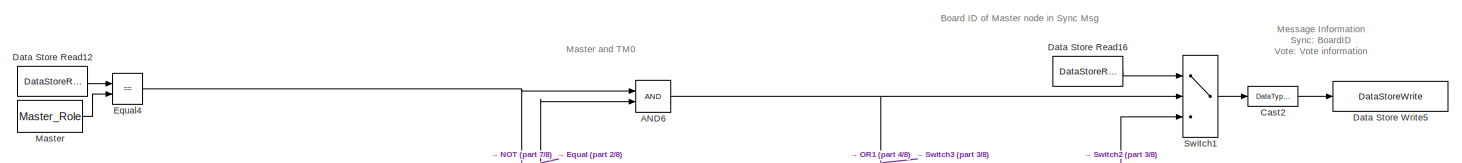
[diagram: HANcoder STM32 Target - E407-STM32 algorithm/Global Ticks Increment/CAN Management/Matrix Cycle Manager - part 1/8, top left region]
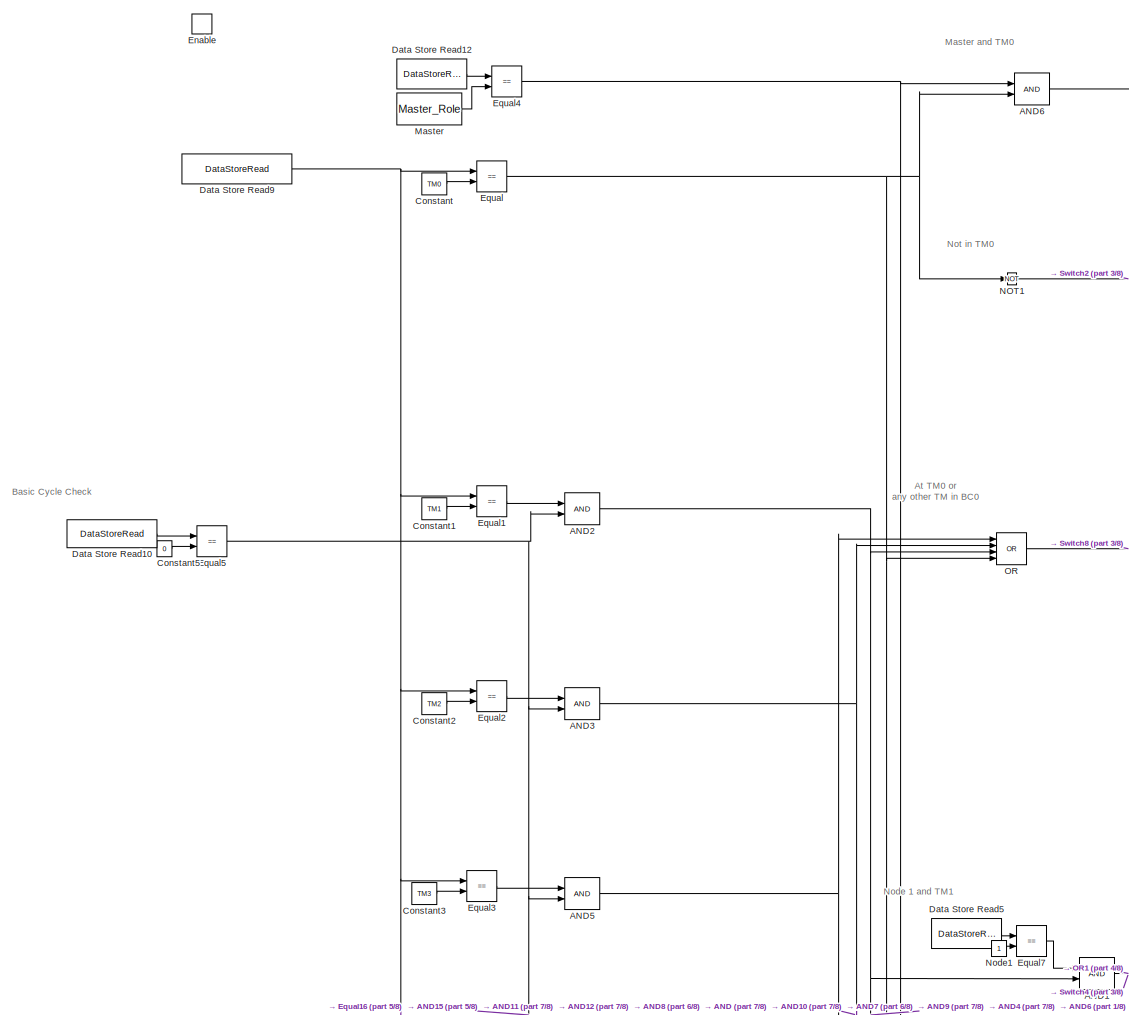
[diagram: HANcoder STM32 Target - E407-STM32 algorithm/Global Ticks Increment/CAN Management/Matrix Cycle Manager - part 2/8, top left region]
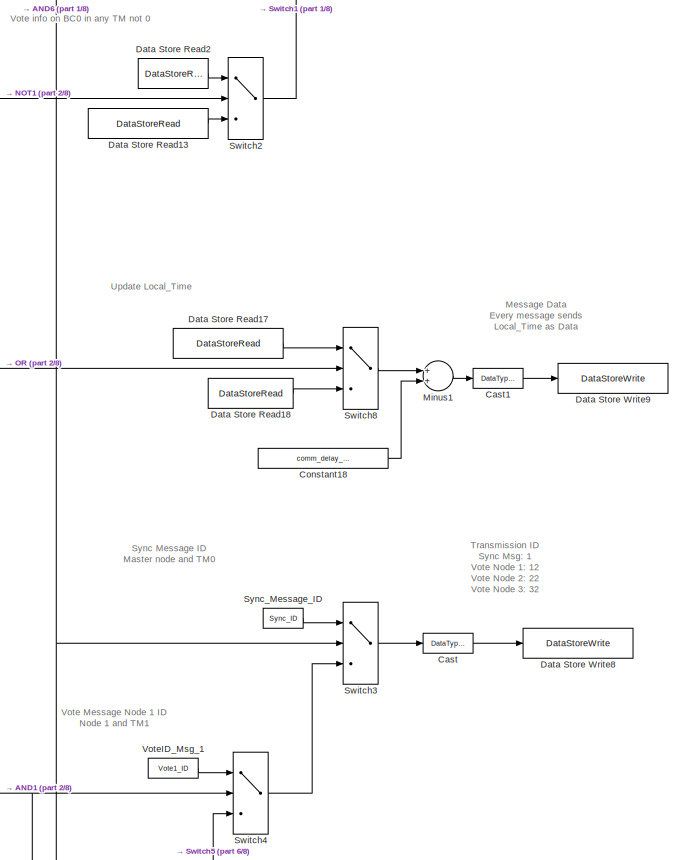
[diagram: HANcoder STM32 Target - E407-STM32 algorithm/Global Ticks Increment/CAN Management/Matrix Cycle Manager - part 3/8, top center region]
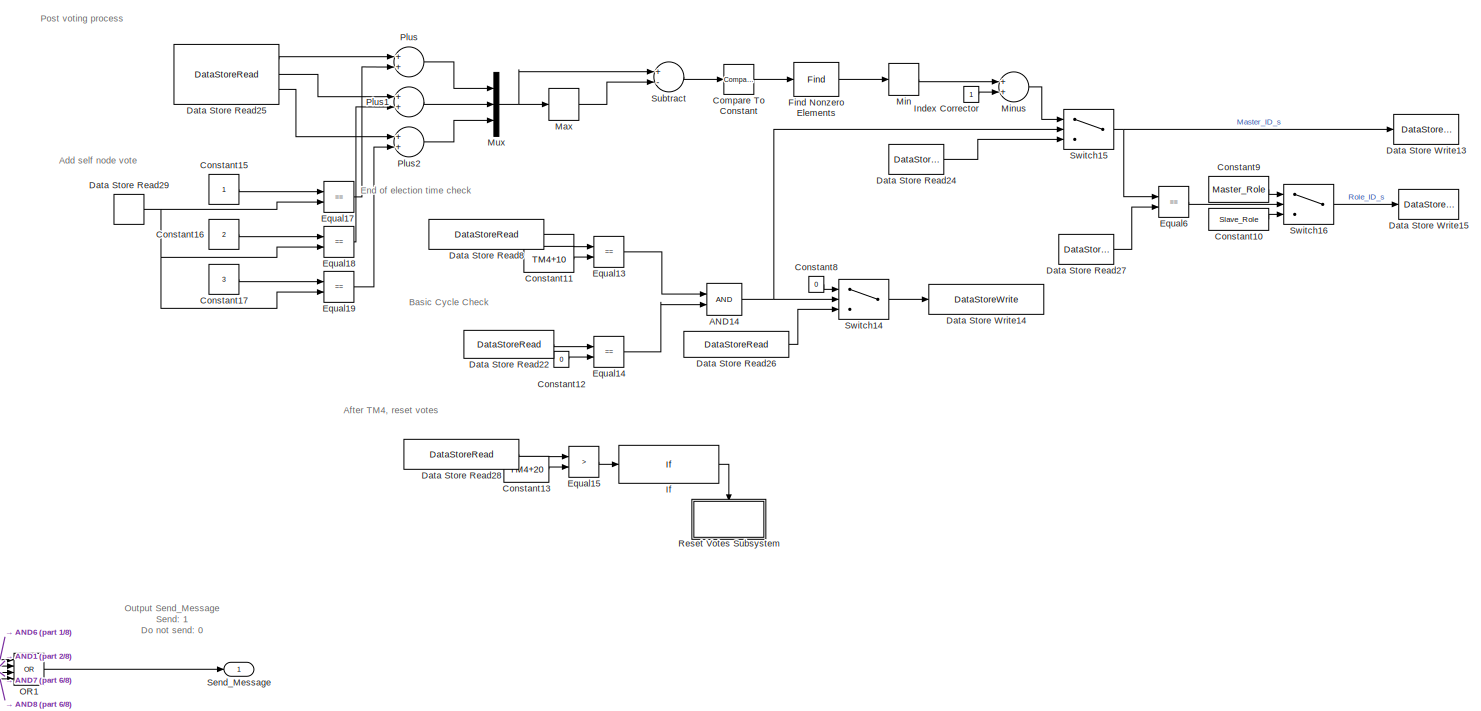
[diagram: HANcoder STM32 Target - E407-STM32 algorithm/Global Ticks Increment/CAN Management/Matrix Cycle Manager - part 4/8, top right region]
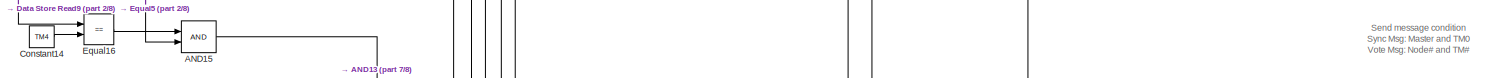
[diagram: HANcoder STM32 Target - E407-STM32 algorithm/Global Ticks Increment/CAN Management/Matrix Cycle Manager - part 5/8, central region]
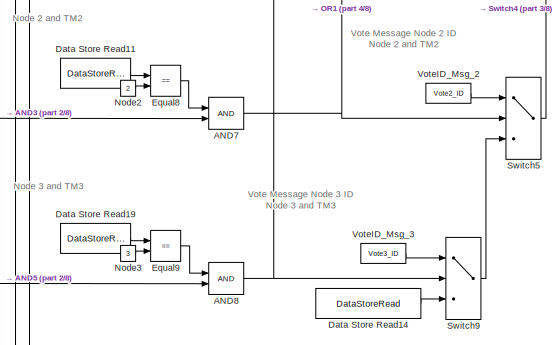
[diagram: HANcoder STM32 Target - E407-STM32 algorithm/Global Ticks Increment/CAN Management/Matrix Cycle Manager - part 6/8, central region]
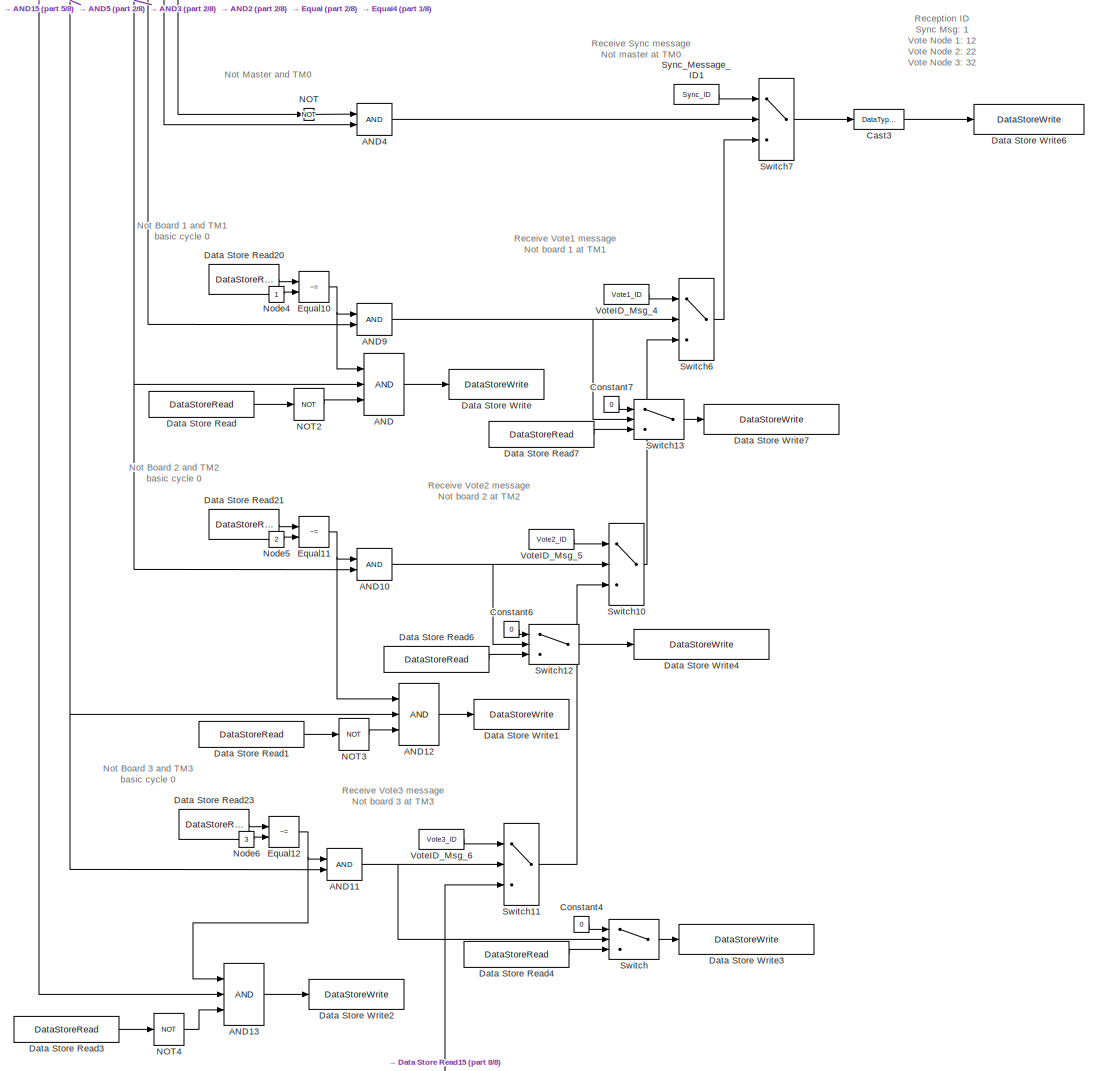
[diagram: HANcoder STM32 Target - E407-STM32 algorithm/Global Ticks Increment/CAN Management/Matrix Cycle Manager - part 7/8, bottom center region]
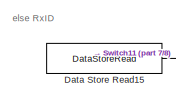
[diagram: HANcoder STM32 Target - E407-STM32 algorithm/Global Ticks Increment/CAN Management/Matrix Cycle Manager - part 8/8, bottom left region]
BLOCK [SubSystem] HANcoder STM32 Target - E407-STM32 algorithm/Global Ticks Increment/CAN Management/Matrix Cycle Manager
  Ports = [0, 1, 1]
  RequestExecContextInheritance = off
BLOCK [Logic] HANcoder STM32 Target - E407-STM32 algorithm/Global Ticks Increment/CAN Management/Matrix Cycle Manager/AND
  AllPortsSameDT = off
  IconShape = distinctive
  Inputs = 3
  OutDataTypeStr = boolean
  Ports = [3, 1]
BLOCK [Logic] HANcoder STM32 Target - E407-STM32 algorithm/Global Ticks Increment/CAN Management/Matrix Cycle Manager/AND1
  AllPortsSameDT = off
  IconShape = distinctive
  OutDataTypeStr = boolean
  Ports = [2, 1]
BLOCK [Logic] HANcoder STM32 Target - E407-STM32 algorithm/Global Ticks Increment/CAN Management/Matrix Cycle Manager/AND10
  AllPortsSameDT = off
  IconShape = distinctive
  OutDataTypeStr = boolean
  Ports = [2, 1]
BLOCK [Logic] HANcoder STM32 Target - E407-STM32 algorithm/Global Ticks Increment/CAN Management/Matrix Cycle Manager/AND11
  AllPortsSameDT = off
  IconShape = distinctive
  OutDataTypeStr = boolean
  Ports = [2, 1]
BLOCK [Logic] HANcoder STM32 Target - E407-STM32 algorithm/Global Ticks Increment/CAN Management/Matrix Cycle Manager/AND12
  AllPortsSameDT = off
  IconShape = distinctive
  Inputs = 3
  OutDataTypeStr = boolean
  Ports = [3, 1]
BLOCK [Logic] HANcoder STM32 Target - E407-STM32 algorithm/Global Ticks Increment/CAN Management/Matrix Cycle Manager/AND13
  AllPortsSameDT = off
  IconShape = distinctive
  Inputs = 3
  OutDataTypeStr = boolean
  Ports = [3, 1]
BLOCK [Logic] HANcoder STM32 Target - E407-STM32 algorithm/Global Ticks Increment/CAN Management/Matrix Cycle Manager/AND14
  AllPortsSameDT = off
  IconShape = distinctive
  OutDataTypeStr = boolean
  Ports = [2, 1]
BLOCK [Logic] HANcoder STM32 Target - E407-STM32 algorithm/Global Ticks Increment/CAN Management/Matrix Cycle Manager/AND15
  AllPortsSameDT = off
  IconShape = distinctive
  OutDataTypeStr = boolean
  Ports = [2, 1]
BLOCK [Logic] HANcoder STM32 Target - E407-STM32 algorithm/Global Ticks Increment/CAN Management/Matrix Cycle Manager/AND2
  AllPortsSameDT = off
  IconShape = distinctive
  OutDataTypeStr = boolean
  Ports = [2, 1]
BLOCK [Logic] HANcoder STM32 Target - E407-STM32 algorithm/Global Ticks Increment/CAN Management/Matrix Cycle Manager/AND3
  AllPortsSameDT = off
  IconShape = distinctive
  OutDataTypeStr = boolean
  Ports = [2, 1]
BLOCK [Logic] HANcoder STM32 Target - E407-STM32 algorithm/Global Ticks Increment/CAN Management/Matrix Cycle Manager/AND4
  AllPortsSameDT = off
  IconShape = distinctive
  OutDataTypeStr = boolean
  Ports = [2, 1]
BLOCK [Logic] HANcoder STM32 Target - E407-STM32 algorithm/Global Ticks Increment/CAN Management/Matrix Cycle Manager/AND5
  AllPortsSameDT = off
  IconShape = distinctive
  OutDataTypeStr = boolean
  Ports = [2, 1]
BLOCK [Logic] HANcoder STM32 Target - E407-STM32 algorithm/Global Ticks Increment/CAN Management/Matrix Cycle Manager/AND6
  AllPortsSameDT = off
  IconShape = distinctive
  OutDataTypeStr = boolean
  Ports = [2, 1]
BLOCK [Logic] HANcoder STM32 Target - E407-STM32 algorithm/Global Ticks Increment/CAN Management/Matrix Cycle Manager/AND7
  AllPortsSameDT = off
  IconShape = distinctive
  OutDataTypeStr = boolean
  Ports = [2, 1]
BLOCK [Logic] HANcoder STM32 Target - E407-STM32 algorithm/Global Ticks Increment/CAN Management/Matrix Cycle Manager/AND8
  AllPortsSameDT = off
  IconShape = distinctive
  OutDataTypeStr = boolean
  Ports = [2, 1]
BLOCK [Logic] HANcoder STM32 Target - E407-STM32 algorithm/Global Ticks Increment/CAN Management/Matrix Cycle Manager/AND9
  AllPortsSameDT = off
  IconShape = distinctive
  OutDataTypeStr = boolean
  Ports = [2, 1]
BLOCK [DataTypeConversion] HANcoder STM32 Target - E407-STM32 algorithm/Global Ticks Increment/CAN Management/Matrix Cycle Manager/Cast
  OutDataTypeStr = uint32
  RndMeth = Floor
  SaturateOnIntegerOverflow = off
BLOCK [DataTypeConversion] HANcoder STM32 Target - E407-STM32 algorithm/Global Ticks Increment/CAN Management/Matrix Cycle Manager/Cast1
  OutDataTypeStr = uint32
  RndMeth = Floor
  SaturateOnIntegerOverflow = off
BLOCK [DataTypeConversion] HANcoder STM32 Target - E407-STM32 algorithm/Global Ticks Increment/CAN Management/Matrix Cycle Manager/Cast2
  OutDataTypeStr = uint8
  RndMeth = Floor
  SaturateOnIntegerOverflow = off
BLOCK [DataTypeConversion] HANcoder STM32 Target - E407-STM32 algorithm/Global Ticks Increment/CAN Management/Matrix Cycle Manager/Cast3
  OutDataTypeStr = uint32
  RndMeth = Floor
  SaturateOnIntegerOverflow = off
BLOCK [Reference] HANcoder STM32 Target - E407-STM32 algorithm/Global Ticks Increment/CAN Management/Matrix Cycle Manager/Compare To Constant  REF=simulink/Logic and Bit
Operations/Compare
To Constant
  Ports = [1, 1]
  SourceBlock = simulink/Logic and Bit\nOperations/Compare\nTo Constant
  SourceProductBaseCode = SL
  SourceProductName = Simulink
  SourceType = Compare To Constant
BLOCK [Constant] HANcoder STM32 Target - E407-STM32 algorithm/Global Ticks Increment/CAN Management/Matrix Cycle Manager/Constant
  Value = TM0
BLOCK [Constant] HANcoder STM32 Target - E407-STM32 algorithm/Global Ticks Increment/CAN Management/Matrix Cycle Manager/Constant1
  Value = TM1
BLOCK [Constant] HANcoder STM32 Target - E407-STM32 algorithm/Global Ticks Increment/CAN Management/Matrix Cycle Manager/Constant10
  Value = Slave_Role
BLOCK [Constant] HANcoder STM32 Target - E407-STM32 algorithm/Global Ticks Increment/CAN Management/Matrix Cycle Manager/Constant11
  Value = TM4+10
BLOCK [Constant] HANcoder STM32 Target - E407-STM32 algorithm/Global Ticks Increment/CAN Management/Matrix Cycle Manager/Constant12
  Value = 0
BLOCK [Constant] HANcoder STM32 Target - E407-STM32 algorithm/Global Ticks Increment/CAN Management/Matrix Cycle Manager/Constant13
  Value = TM4+20
BLOCK [Constant] HANcoder STM32 Target - E407-STM32 algorithm/Global Ticks Increment/CAN Management/Matrix Cycle Manager/Constant14
  Value = TM4
BLOCK [Constant] HANcoder STM32 Target - E407-STM32 algorithm/Global Ticks Increment/CAN Management/Matrix Cycle Manager/Constant15
BLOCK [Constant] HANcoder STM32 Target - E407-STM32 algorithm/Global Ticks Increment/CAN Management/Matrix Cycle Manager/Constant16
  Value = 2
BLOCK [Constant] HANcoder STM32 Target - E407-STM32 algorithm/Global Ticks Increment/CAN Management/Matrix Cycle Manager/Constant17
  Value = 3
BLOCK [Constant] HANcoder STM32 Target - E407-STM32 algorithm/Global Ticks Increment/CAN Management/Matrix Cycle Manager/Constant18
  Value = comm_delay_estimation
BLOCK [Constant] HANcoder STM32 Target - E407-STM32 algorithm/Global Ticks Increment/CAN Management/Matrix Cycle Manager/Constant2
  Value = TM2
BLOCK [Constant] HANcoder STM32 Target - E407-STM32 algorithm/Global Ticks Increment/CAN Management/Matrix Cycle Manager/Constant3
  Value = TM3
BLOCK [Constant] HANcoder STM32 Target - E407-STM32 algorithm/Global Ticks Increment/CAN Management/Matrix Cycle Manager/Constant4
  OutDataTypeStr = boolean
  Value = 0
BLOCK [Constant] HANcoder STM32 Target - E407-STM32 algorithm/Global Ticks Increment/CAN Management/Matrix Cycle Manager/Constant5
  Value = 0
BLOCK [Constant] HANcoder STM32 Target - E407-STM32 algorithm/Global Ticks Increment/CAN Management/Matrix Cycle Manager/Constant6
  OutDataTypeStr = boolean
  Value = 0
BLOCK [Constant] HANcoder STM32 Target - E407-STM32 algorithm/Global Ticks Increment/CAN Management/Matrix Cycle Manager/Constant7
  OutDataTypeStr = boolean
  Value = 0
BLOCK [Constant] HANcoder STM32 Target - E407-STM32 algorithm/Global Ticks Increment/CAN Management/Matrix Cycle Manager/Constant8
  Value = 0
BLOCK [Constant] HANcoder STM32 Target - E407-STM32 algorithm/Global Ticks Increment/CAN Management/Matrix Cycle Manager/Constant9
  Value = Master_Role
BLOCK [DataStoreRead] HANcoder STM32 Target - E407-STM32 algorithm/Global Ticks Increment/CAN Management/Matrix Cycle Manager/Data Store Read
  DataStoreName = BC0_TM1_processed
  Ports = [0, 1]
BLOCK [DataStoreRead] HANcoder STM32 Target - E407-STM32 algorithm/Global Ticks Increment/CAN Management/Matrix Cycle Manager/Data Store Read1
  DataStoreName = BC0_TM2_processed
  Ports = [0, 1]
BLOCK [DataStoreRead] HANcoder STM32 Target - E407-STM32 algorithm/Global Ticks Increment/CAN Management/Matrix Cycle Manager/Data Store Read10
  DataStoreName = basic_cycle_count
  Ports = [0, 1]
BLOCK [DataStoreRead] HANcoder STM32 Target - E407-STM32 algorithm/Global Ticks Increment/CAN Management/Matrix Cycle Manager/Data Store Read11
  DataStoreName = Board_ID
  Ports = [0, 1]
BLOCK [DataStoreRead] HANcoder STM32 Target - E407-STM32 algorithm/Global Ticks Increment/CAN Management/Matrix Cycle Manager/Data Store Read12
  DataStoreName = Role_ID
  Ports = [0, 1]
BLOCK [DataStoreRead] HANcoder STM32 Target - E407-STM32 algorithm/Global Ticks Increment/CAN Management/Matrix Cycle Manager/Data Store Read13
  DataStoreName = message_header_buffer
  Ports = [0, 1]
BLOCK [DataStoreRead] HANcoder STM32 Target - E407-STM32 algorithm/Global Ticks Increment/CAN Management/Matrix Cycle Manager/Data Store Read14
  DataStoreName = TxID_message_buffer
  Ports = [0, 1]
BLOCK [DataStoreRead] HANcoder STM32 Target - E407-STM32 algorithm/Global Ticks Increment/CAN Management/Matrix Cycle Manager/Data Store Read15
  DataStoreName = RxID_message_buffer
  Ports = [0, 1]
BLOCK [DataStoreRead] HANcoder STM32 Target - E407-STM32 algorithm/Global Ticks Increment/CAN Management/Matrix Cycle Manager/Data Store Read16
  DataStoreName = Board_ID
  Ports = [0, 1]
BLOCK [DataStoreRead] HANcoder STM32 Target - E407-STM32 algorithm/Global Ticks Increment/CAN Management/Matrix Cycle Manager/Data Store Read17
  DataStoreName = local_ticks_mem_IRQ
  Ports = [0, 1]
BLOCK [DataStoreRead] HANcoder STM32 Target - E407-STM32 algorithm/Global Ticks Increment/CAN Management/Matrix Cycle Manager/Data Store Read18
  DataStoreName = message_buffer
  Ports = [0, 1]
BLOCK [DataStoreRead] HANcoder STM32 Target - E407-STM32 algorithm/Global Ticks Increment/CAN Management/Matrix Cycle Manager/Data Store Read19
  DataStoreName = Board_ID
  Ports = [0, 1]
BLOCK [DataStoreRead] HANcoder STM32 Target - E407-STM32 algorithm/Global Ticks Increment/CAN Management/Matrix Cycle Manager/Data Store Read2
  DataStoreName = Vote
  Ports = [0, 1]
BLOCK [DataStoreRead] HANcoder STM32 Target - E407-STM32 algorithm/Global Ticks Increment/CAN Management/Matrix Cycle Manager/Data Store Read20
  DataStoreName = Board_ID
  Ports = [0, 1]
BLOCK [DataStoreRead] HANcoder STM32 Target - E407-STM32 algorithm/Global Ticks Increment/CAN Management/Matrix Cycle Manager/Data Store Read21
  DataStoreName = Board_ID
  Ports = [0, 1]
BLOCK [DataStoreRead] HANcoder STM32 Target - E407-STM32 algorithm/Global Ticks Increment/CAN Management/Matrix Cycle Manager/Data Store Read22
  DataStoreName = basic_cycle_count
  Ports = [0, 1]
BLOCK [DataStoreRead] HANcoder STM32 Target - E407-STM32 algorithm/Global Ticks Increment/CAN Management/Matrix Cycle Manager/Data Store Read23
  DataStoreName = Board_ID
  Ports = [0, 1]
BLOCK [DataStoreRead] HANcoder STM32 Target - E407-STM32 algorithm/Global Ticks Increment/CAN Management/Matrix Cycle Manager/Data Store Read24
  DataStoreName = Master_ID
  Ports = [0, 1]
BLOCK [DataStoreRead] HANcoder STM32 Target - E407-STM32 algorithm/Global Ticks Increment/CAN Management/Matrix Cycle Manager/Data Store Read25
  DataStoreElements = votes.First_Board#votes.Second_Board#votes.Third_Board
  DataStoreName = votes
  Ports = [0, 3]
BLOCK [DataStoreRead] HANcoder STM32 Target - E407-STM32 algorithm/Global Ticks Increment/CAN Management/Matrix Cycle Manager/Data Store Read26
  DataStoreName = global_time_updated
  Ports = [0, 1]
BLOCK [DataStoreRead] HANcoder STM32 Target - E407-STM32 algorithm/Global Ticks Increment/CAN Management/Matrix Cycle Manager/Data Store Read27
  DataStoreName = Board_ID
  Ports = [0, 1]
BLOCK [DataStoreRead] HANcoder STM32 Target - E407-STM32 algorithm/Global Ticks Increment/CAN Management/Matrix Cycle Manager/Data Store Read28
  DataStoreName = local_ticks_mem_IRQ
  Ports = [0, 1]
BLOCK [DataStoreRead] HANcoder STM32 Target - E407-STM32 algorithm/Global Ticks Increment/CAN Management/Matrix Cycle Manager/Data Store Read29
  DataStoreName = Vote
  Ports = [0, 1]
BLOCK [DataStoreRead] HANcoder STM32 Target - E407-STM32 algorithm/Global Ticks Increment/CAN Management/Matrix Cycle Manager/Data Store Read3
  DataStoreName = BC0_TM3_processed
  Ports = [0, 1]
BLOCK [DataStoreRead] HANcoder STM32 Target - E407-STM32 algorithm/Global Ticks Increment/CAN Management/Matrix Cycle Manager/Data Store Read4
  DataStoreName = BC0_TM3_processed
  Ports = [0, 1]
BLOCK [DataStoreRead] HANcoder STM32 Target - E407-STM32 algorithm/Global Ticks Increment/CAN Management/Matrix Cycle Manager/Data Store Read5
  DataStoreName = Board_ID
  Ports = [0, 1]
BLOCK [DataStoreRead] HANcoder STM32 Target - E407-STM32 algorithm/Global Ticks Increment/CAN Management/Matrix Cycle Manager/Data Store Read6
  DataStoreName = BC0_TM2_processed
  Ports = [0, 1]
BLOCK [DataStoreRead] HANcoder STM32 Target - E407-STM32 algorithm/Global Ticks Increment/CAN Management/Matrix Cycle Manager/Data Store Read7
  DataStoreName = BC0_TM1_processed
  Ports = [0, 1]
BLOCK [DataStoreRead] HANcoder STM32 Target - E407-STM32 algorithm/Global Ticks Increment/CAN Management/Matrix Cycle Manager/Data Store Read8
  DataStoreName = local_ticks_mem_IRQ
  Ports = [0, 1]
BLOCK [DataStoreRead] HANcoder STM32 Target - E407-STM32 algorithm/Global Ticks Increment/CAN Management/Matrix Cycle Manager/Data Store Read9
  DataStoreName = local_ticks_mem_IRQ
  Ports = [0, 1]
BLOCK [DataStoreWrite] HANcoder STM32 Target - E407-STM32 algorithm/Global Ticks Increment/CAN Management/Matrix Cycle Manager/Data Store Write
  DataStoreName = BC0_TM1_timeout
  Ports = [1]
BLOCK [DataStoreWrite] HANcoder STM32 Target - E407-STM32 algorithm/Global Ticks Increment/CAN Management/Matrix Cycle Manager/Data Store Write1
  DataStoreName = BC0_TM2_timeout
  Ports = [1]
BLOCK [DataStoreWrite] HANcoder STM32 Target - E407-STM32 algorithm/Global Ticks Increment/CAN Management/Matrix Cycle Manager/Data Store Write13
  DataStoreName = Master_ID
  Ports = [1]
BLOCK [DataStoreWrite] HANcoder STM32 Target - E407-STM32 algorithm/Global Ticks Increment/CAN Management/Matrix Cycle Manager/Data Store Write14
  DataStoreName = global_time_updated
  Ports = [1]
BLOCK [DataStoreWrite] HANcoder STM32 Target - E407-STM32 algorithm/Global Ticks Increment/CAN Management/Matrix Cycle Manager/Data Store Write15
  DataStoreName = Role_ID
  Ports = [1]
BLOCK [DataStoreWrite] HANcoder STM32 Target - E407-STM32 algorithm/Global Ticks Increment/CAN Management/Matrix Cycle Manager/Data Store Write2
  DataStoreName = BC0_TM3_timeout
  Ports = [1]
BLOCK [DataStoreWrite] HANcoder STM32 Target - E407-STM32 algorithm/Global Ticks Increment/CAN Management/Matrix Cycle Manager/Data Store Write3
  DataStoreName = BC0_TM3_processed
  Ports = [1]
BLOCK [DataStoreWrite] HANcoder STM32 Target - E407-STM32 algorithm/Global Ticks Increment/CAN Management/Matrix Cycle Manager/Data Store Write4
  DataStoreName = BC0_TM2_processed
  Ports = [1]
BLOCK [DataStoreWrite] HANcoder STM32 Target - E407-STM32 algorithm/Global Ticks Increment/CAN Management/Matrix Cycle Manager/Data Store Write5
  DataStoreName = message_header_buffer
  Ports = [1]
BLOCK [DataStoreWrite] HANcoder STM32 Target - E407-STM32 algorithm/Global Ticks Increment/CAN Management/Matrix Cycle Manager/Data Store Write6
  DataStoreName = RxID_message_buffer
  Ports = [1]
BLOCK [DataStoreWrite] HANcoder STM32 Target - E407-STM32 algorithm/Global Ticks Increment/CAN Management/Matrix Cycle Manager/Data Store Write7
  DataStoreName = BC0_TM1_processed
  Ports = [1]
BLOCK [DataStoreWrite] HANcoder STM32 Target - E407-STM32 algorithm/Global Ticks Increment/CAN Management/Matrix Cycle Manager/Data Store Write8
  DataStoreName = TxID_message_buffer
  Ports = [1]
BLOCK [DataStoreWrite] HANcoder STM32 Target - E407-STM32 algorithm/Global Ticks Increment/CAN Management/Matrix Cycle Manager/Data Store Write9
  DataStoreName = message_buffer
  Ports = [1]
BLOCK [EnablePort] HANcoder STM32 Target - E407-STM32 algorithm/Global Ticks Increment/CAN Management/Matrix Cycle Manager/Enable
  Ports = []
  PropagateVarSize = During execution
BLOCK [RelationalOperator] HANcoder STM32 Target - E407-STM32 algorithm/Global Ticks Increment/CAN Management/Matrix Cycle Manager/Equal
  InputSameDT = off
  Operator = ==
  OutDataTypeStr = boolean
  Ports = [2, 1]
  RndMeth = Simplest
BLOCK [RelationalOperator] HANcoder STM32 Target - E407-STM32 algorithm/Global Ticks Increment/CAN Management/Matrix Cycle Manager/Equal1
  InputSameDT = off
  Operator = ==
  OutDataTypeStr = boolean
  Ports = [2, 1]
  RndMeth = Simplest
BLOCK [RelationalOperator] HANcoder STM32 Target - E407-STM32 algorithm/Global Ticks Increment/CAN Management/Matrix Cycle Manager/Equal10
  InputSameDT = off
  Operator = ~=
  OutDataTypeStr = boolean
  Ports = [2, 1]
  RndMeth = Simplest
BLOCK [RelationalOperator] HANcoder STM32 Target - E407-STM32 algorithm/Global Ticks Increment/CAN Management/Matrix Cycle Manager/Equal11
  InputSameDT = off
  Operator = ~=
  OutDataTypeStr = boolean
  Ports = [2, 1]
  RndMeth = Simplest
BLOCK [RelationalOperator] HANcoder STM32 Target - E407-STM32 algorithm/Global Ticks Increment/CAN Management/Matrix Cycle Manager/Equal12
  InputSameDT = off
  Operator = ~=
  OutDataTypeStr = boolean
  Ports = [2, 1]
  RndMeth = Simplest
BLOCK [RelationalOperator] HANcoder STM32 Target - E407-STM32 algorithm/Global Ticks Increment/CAN Management/Matrix Cycle Manager/Equal13
  InputSameDT = off
  Operator = ==
  OutDataTypeStr = boolean
  Ports = [2, 1]
  RndMeth = Simplest
BLOCK [RelationalOperator] HANcoder STM32 Target - E407-STM32 algorithm/Global Ticks Increment/CAN Management/Matrix Cycle Manager/Equal14
  InputSameDT = off
  Operator = ==
  OutDataTypeStr = boolean
  Ports = [2, 1]
  RndMeth = Simplest
BLOCK [RelationalOperator] HANcoder STM32 Target - E407-STM32 algorithm/Global Ticks Increment/CAN Management/Matrix Cycle Manager/Equal15
  InputSameDT = off
  Operator = >
  OutDataTypeStr = boolean
  Ports = [2, 1]
  RndMeth = Simplest
BLOCK [RelationalOperator] HANcoder STM32 Target - E407-STM32 algorithm/Global Ticks Increment/CAN Management/Matrix Cycle Manager/Equal16
  InputSameDT = off
  Operator = ==
  OutDataTypeStr = boolean
  Ports = [2, 1]
  RndMeth = Simplest
BLOCK [RelationalOperator] HANcoder STM32 Target - E407-STM32 algorithm/Global Ticks Increment/CAN Management/Matrix Cycle Manager/Equal17
  InputSameDT = off
  Operator = ==
  OutDataTypeStr = boolean
  Ports = [2, 1]
  RndMeth = Simplest
BLOCK [RelationalOperator] HANcoder STM32 Target - E407-STM32 algorithm/Global Ticks Increment/CAN Management/Matrix Cycle Manager/Equal18
  InputSameDT = off
  Operator = ==
  OutDataTypeStr = boolean
  Ports = [2, 1]
  RndMeth = Simplest
BLOCK [RelationalOperator] HANcoder STM32 Target - E407-STM32 algorithm/Global Ticks Increment/CAN Management/Matrix Cycle Manager/Equal19
  InputSameDT = off
  Operator = ==
  OutDataTypeStr = boolean
  Ports = [2, 1]
  RndMeth = Simplest
BLOCK [RelationalOperator] HANcoder STM32 Target - E407-STM32 algorithm/Global Ticks Increment/CAN Management/Matrix Cycle Manager/Equal2
  InputSameDT = off
  Operator = ==
  OutDataTypeStr = boolean
  Ports = [2, 1]
  RndMeth = Simplest
BLOCK [RelationalOperator] HANcoder STM32 Target - E407-STM32 algorithm/Global Ticks Increment/CAN Management/Matrix Cycle Manager/Equal3
  InputSameDT = off
  Operator = ==
  OutDataTypeStr = boolean
  Ports = [2, 1]
  RndMeth = Simplest
BLOCK [RelationalOperator] HANcoder STM32 Target - E407-STM32 algorithm/Global Ticks Increment/CAN Management/Matrix Cycle Manager/Equal4
  InputSameDT = off
  Operator = ==
  OutDataTypeStr = boolean
  Ports = [2, 1]
  RndMeth = Simplest
BLOCK [RelationalOperator] HANcoder STM32 Target - E407-STM32 algorithm/Global Ticks Increment/CAN Management/Matrix Cycle Manager/Equal5
  InputSameDT = off
  Operator = ==
  OutDataTypeStr = boolean
  Ports = [2, 1]
  RndMeth = Simplest
BLOCK [RelationalOperator] HANcoder STM32 Target - E407-STM32 algorithm/Global Ticks Increment/CAN Management/Matrix Cycle Manager/Equal6
  InputSameDT = off
  Operator = ==
  OutDataTypeStr = boolean
  Ports = [2, 1]
  RndMeth = Simplest
BLOCK [RelationalOperator] HANcoder STM32 Target - E407-STM32 algorithm/Global Ticks Increment/CAN Management/Matrix Cycle Manager/Equal7
  InputSameDT = off
  Operator = ==
  OutDataTypeStr = boolean
  Ports = [2, 1]
  RndMeth = Simplest
BLOCK [RelationalOperator] HANcoder STM32 Target - E407-STM32 algorithm/Global Ticks Increment/CAN Management/Matrix Cycle Manager/Equal8
  InputSameDT = off
  Operator = ==
  OutDataTypeStr = boolean
  Ports = [2, 1]
  RndMeth = Simplest
BLOCK [RelationalOperator] HANcoder STM32 Target - E407-STM32 algorithm/Global Ticks Increment/CAN Management/Matrix Cycle Manager/Equal9
  InputSameDT = off
  Operator = ==
  OutDataTypeStr = boolean
  Ports = [2, 1]
  RndMeth = Simplest
BLOCK [Find] HANcoder STM32 Target - E407-STM32 algorithm/Global Ticks Increment/CAN Management/Matrix Cycle Manager/Find Nonzero Elements
  IndexMode = Zero-based
  NumberOfInputDimensions = 3
  Ports = [1, 1]
BLOCK [If] HANcoder STM32 Target - E407-STM32 algorithm/Global Ticks Increment/CAN Management/Matrix Cycle Manager/If
  IfExpression = u1
  Ports = [1, 1]
  ShowElse = off
BLOCK [Constant] HANcoder STM32 Target - E407-STM32 algorithm/Global Ticks Increment/CAN Management/Matrix Cycle Manager/Index Corrector
BLOCK [Constant] HANcoder STM32 Target - E407-STM32 algorithm/Global Ticks Increment/CAN Management/Matrix Cycle Manager/Master
  Value = Master_Role
BLOCK [MinMax] HANcoder STM32 Target - E407-STM32 algorithm/Global Ticks Increment/CAN Management/Matrix Cycle Manager/Max
  Function = max
  InputSameDT = off
  Ports = [1, 1]
  SaturateOnIntegerOverflow = off
BLOCK [MinMax] HANcoder STM32 Target - E407-STM32 algorithm/Global Ticks Increment/CAN Management/Matrix Cycle Manager/Min
  InputSameDT = off
  Ports = [1, 1]
  SaturateOnIntegerOverflow = off
BLOCK [Sum] HANcoder STM32 Target - E407-STM32 algorithm/Global Ticks Increment/CAN Management/Matrix Cycle Manager/Minus
  InputSameDT = off
  OutDataTypeStr = Inherit: Inherit via internal rule
  Ports = [2, 1]
  SaturateOnIntegerOverflow = off
BLOCK [Sum] HANcoder STM32 Target - E407-STM32 algorithm/Global Ticks Increment/CAN Management/Matrix Cycle Manager/Minus1
  InputSameDT = off
  OutDataTypeStr = Inherit: Inherit via internal rule
  Ports = [2, 1]
  SaturateOnIntegerOverflow = off
BLOCK [Mux] HANcoder STM32 Target - E407-STM32 algorithm/Global Ticks Increment/CAN Management/Matrix Cycle Manager/Mux
  DisplayOption = bar
  Inputs = 3
  Ports = [3, 1]
BLOCK [Logic] HANcoder STM32 Target - E407-STM32 algorithm/Global Ticks Increment/CAN Management/Matrix Cycle Manager/NOT
  AllPortsSameDT = off
  IconShape = distinctive
  Operator = NOT
  OutDataTypeStr = boolean
  Ports = [1, 1]
BLOCK [Logic] HANcoder STM32 Target - E407-STM32 algorithm/Global Ticks Increment/CAN Management/Matrix Cycle Manager/NOT1
  AllPortsSameDT = off
  IconShape = distinctive
  Operator = NOT
  OutDataTypeStr = boolean
  Ports = [1, 1]
BLOCK [Logic] HANcoder STM32 Target - E407-STM32 algorithm/Global Ticks Increment/CAN Management/Matrix Cycle Manager/NOT2
  AllPortsSameDT = off
  IconShape = distinctive
  Operator = NOT
  OutDataTypeStr = boolean
  Ports = [1, 1]
BLOCK [Logic] HANcoder STM32 Target - E407-STM32 algorithm/Global Ticks Increment/CAN Management/Matrix Cycle Manager/NOT3
  AllPortsSameDT = off
  IconShape = distinctive
  Operator = NOT
  OutDataTypeStr = boolean
  Ports = [1, 1]
BLOCK [Logic] HANcoder STM32 Target - E407-STM32 algorithm/Global Ticks Increment/CAN Management/Matrix Cycle Manager/NOT4
  AllPortsSameDT = off
  IconShape = distinctive
  Operator = NOT
  OutDataTypeStr = boolean
  Ports = [1, 1]
BLOCK [Constant] HANcoder STM32 Target - E407-STM32 algorithm/Global Ticks Increment/CAN Management/Matrix Cycle Manager/Node1
BLOCK [Constant] HANcoder STM32 Target - E407-STM32 algorithm/Global Ticks Increment/CAN Management/Matrix Cycle Manager/Node2
  Value = 2
BLOCK [Constant] HANcoder STM32 Target - E407-STM32 algorithm/Global Ticks Increment/CAN Management/Matrix Cycle Manager/Node3
  Value = 3
BLOCK [Constant] HANcoder STM32 Target - E407-STM32 algorithm/Global Ticks Increment/CAN Management/Matrix Cycle Manager/Node4
BLOCK [Constant] HANcoder STM32 Target - E407-STM32 algorithm/Global Ticks Increment/CAN Management/Matrix Cycle Manager/Node5
  Value = 2
BLOCK [Constant] HANcoder STM32 Target - E407-STM32 algorithm/Global Ticks Increment/CAN Management/Matrix Cycle Manager/Node6
  Value = 3
BLOCK [Logic] HANcoder STM32 Target - E407-STM32 algorithm/Global Ticks Increment/CAN Management/Matrix Cycle Manager/OR
  AllPortsSameDT = off
  IconShape = distinctive
  Inputs = 4
  Operator = OR
  OutDataTypeStr = boolean
  Ports = [4, 1]
BLOCK [Logic] HANcoder STM32 Target - E407-STM32 algorithm/Global Ticks Increment/CAN Management/Matrix Cycle Manager/OR1
  AllPortsSameDT = off
  IconShape = distinctive
  Inputs = 4
  Operator = OR
  OutDataTypeStr = boolean
  Ports = [4, 1]
BLOCK [Sum] HANcoder STM32 Target - E407-STM32 algorithm/Global Ticks Increment/CAN Management/Matrix Cycle Manager/Plus
  InputSameDT = off
  OutDataTypeStr = Inherit: Inherit via internal rule
  Ports = [2, 1]
  SaturateOnIntegerOverflow = off
BLOCK [Sum] HANcoder STM32 Target - E407-STM32 algorithm/Global Ticks Increment/CAN Management/Matrix Cycle Manager/Plus1
  InputSameDT = off
  OutDataTypeStr = Inherit: Inherit via internal rule
  Ports = [2, 1]
  SaturateOnIntegerOverflow = off
BLOCK [Sum] HANcoder STM32 Target - E407-STM32 algorithm/Global Ticks Increment/CAN Management/Matrix Cycle Manager/Plus2
  InputSameDT = off
  OutDataTypeStr = Inherit: Inherit via internal rule
  Ports = [2, 1]
  SaturateOnIntegerOverflow = off
BLOCK [SubSystem] HANcoder STM32 Target - E407-STM32 algorithm/Global Ticks Increment/CAN Management/Matrix Cycle Manager/Reset Votes Subsystem
  Ports = [0, 0, 0, 0, 0, 0, 0, 1]
  RequestExecContextInheritance = off
  TreatAsAtomicUnit = on
BLOCK [ActionPort] HANcoder STM32 Target - E407-STM32 algorithm/Global Ticks Increment/CAN Management/Matrix Cycle Manager/Reset Votes Subsystem/Action Port
  ActionType = then
BLOCK [Constant] HANcoder STM32 Target - E407-STM32 algorithm/Global Ticks Increment/CAN Management/Matrix Cycle Manager/Reset Votes Subsystem/Constant
  Value = 0
BLOCK [DataStoreWrite] HANcoder STM32 Target - E407-STM32 algorithm/Global Ticks Increment/CAN Management/Matrix Cycle Manager/Reset Votes Subsystem/Data Store Write16
  DataStoreElements = votes.First_Board#votes.Second_Board#votes.Third_Board
  DataStoreName = votes
  Ports = [3]
BLOCK [Outport] HANcoder STM32 Target - E407-STM32 algorithm/Global Ticks Increment/CAN Management/Matrix Cycle Manager/Send_Message
  IconDisplay = Port number
BLOCK [Sum] HANcoder STM32 Target - E407-STM32 algorithm/Global Ticks Increment/CAN Management/Matrix Cycle Manager/Subtract
  InputSameDT = off
  Inputs = +-
  OutDataTypeStr = Inherit: Inherit via internal rule
  Ports = [2, 1]
  SaturateOnIntegerOverflow = off
BLOCK [Switch] HANcoder STM32 Target - E407-STM32 algorithm/Global Ticks Increment/CAN Management/Matrix Cycle Manager/Switch
  Criteria = u2 > Threshold
  InputSameDT = off
  SaturateOnIntegerOverflow = off
BLOCK [Switch] HANcoder STM32 Target - E407-STM32 algorithm/Global Ticks Increment/CAN Management/Matrix Cycle Manager/Switch1
  Criteria = u2 > Threshold
  InputSameDT = off
  SaturateOnIntegerOverflow = off
BLOCK [Switch] HANcoder STM32 Target - E407-STM32 algorithm/Global Ticks Increment/CAN Management/Matrix Cycle Manager/Switch10
  Criteria = u2 > Threshold
  InputSameDT = off
  SaturateOnIntegerOverflow = off
BLOCK [Switch] HANcoder STM32 Target - E407-STM32 algorithm/Global Ticks Increment/CAN Management/Matrix Cycle Manager/Switch11
  Criteria = u2 > Threshold
  InputSameDT = off
  SaturateOnIntegerOverflow = off
BLOCK [Switch] HANcoder STM32 Target - E407-STM32 algorithm/Global Ticks Increment/CAN Management/Matrix Cycle Manager/Switch12
  Criteria = u2 > Threshold
  InputSameDT = off
  SaturateOnIntegerOverflow = off
BLOCK [Switch] HANcoder STM32 Target - E407-STM32 algorithm/Global Ticks Increment/CAN Management/Matrix Cycle Manager/Switch13
  Criteria = u2 > Threshold
  InputSameDT = off
  SaturateOnIntegerOverflow = off
BLOCK [Switch] HANcoder STM32 Target - E407-STM32 algorithm/Global Ticks Increment/CAN Management/Matrix Cycle Manager/Switch14
  Criteria = u2 > Threshold
  InputSameDT = off
  SaturateOnIntegerOverflow = off
BLOCK [Switch] HANcoder STM32 Target - E407-STM32 algorithm/Global Ticks Increment/CAN Management/Matrix Cycle Manager/Switch15
  Criteria = u2 > Threshold
  InputSameDT = off
  SaturateOnIntegerOverflow = off
BLOCK [Switch] HANcoder STM32 Target - E407-STM32 algorithm/Global Ticks Increment/CAN Management/Matrix Cycle Manager/Switch16
  Criteria = u2 > Threshold
  InputSameDT = off
  SaturateOnIntegerOverflow = off
BLOCK [Switch] HANcoder STM32 Target - E407-STM32 algorithm/Global Ticks Increment/CAN Management/Matrix Cycle Manager/Switch2
  Criteria = u2 > Threshold
  InputSameDT = off
  SaturateOnIntegerOverflow = off
BLOCK [Switch] HANcoder STM32 Target - E407-STM32 algorithm/Global Ticks Increment/CAN Management/Matrix Cycle Manager/Switch3
  Criteria = u2 > Threshold
  InputSameDT = off
  SaturateOnIntegerOverflow = off
BLOCK [Switch] HANcoder STM32 Target - E407-STM32 algorithm/Global Ticks Increment/CAN Management/Matrix Cycle Manager/Switch4
  Criteria = u2 > Threshold
  InputSameDT = off
  SaturateOnIntegerOverflow = off
BLOCK [Switch] HANcoder STM32 Target - E407-STM32 algorithm/Global Ticks Increment/CAN Management/Matrix Cycle Manager/Switch5
  Criteria = u2 > Threshold
  InputSameDT = off
  SaturateOnIntegerOverflow = off
BLOCK [Switch] HANcoder STM32 Target - E407-STM32 algorithm/Global Ticks Increment/CAN Management/Matrix Cycle Manager/Switch6
  Criteria = u2 > Threshold
  InputSameDT = off
  SaturateOnIntegerOverflow = off
BLOCK [Switch] HANcoder STM32 Target - E407-STM32 algorithm/Global Ticks Increment/CAN Management/Matrix Cycle Manager/Switch7
  Criteria = u2 > Threshold
  InputSameDT = off
  SaturateOnIntegerOverflow = off
BLOCK [Switch] HANcoder STM32 Target - E407-STM32 algorithm/Global Ticks Increment/CAN Management/Matrix Cycle Manager/Switch8
  Criteria = u2 > Threshold
  InputSameDT = off
  SaturateOnIntegerOverflow = off
BLOCK [Switch] HANcoder STM32 Target - E407-STM32 algorithm/Global Ticks Increment/CAN Management/Matrix Cycle Manager/Switch9
  Criteria = u2 > Threshold
  InputSameDT = off
  SaturateOnIntegerOverflow = off
BLOCK [Constant] HANcoder STM32 Target - E407-STM32 algorithm/Global Ticks Increment/CAN Management/Matrix Cycle Manager/Sync_Message_ID
  Value = Sync_ID
BLOCK [Constant] HANcoder STM32 Target - E407-STM32 algorithm/Global Ticks Increment/CAN Management/Matrix Cycle Manager/Sync_Message_ID1
  Value = Sync_ID
BLOCK [Constant] HANcoder STM32 Target - E407-STM32 algorithm/Global Ticks Increment/CAN Management/Matrix Cycle Manager/VoteID_Msg_1
  Value = Vote1_ID
BLOCK [Constant] HANcoder STM32 Target - E407-STM32 algorithm/Global Ticks Increment/CAN Management/Matrix Cycle Manager/VoteID_Msg_2
  Value = Vote2_ID
BLOCK [Constant] HANcoder STM32 Target - E407-STM32 algorithm/Global Ticks Increment/CAN Management/Matrix Cycle Manager/VoteID_Msg_3
  Value = Vote3_ID
BLOCK [Constant] HANcoder STM32 Target - E407-STM32 algorithm/Global Ticks Increment/CAN Management/Matrix Cycle Manager/VoteID_Msg_4
  Value = Vote1_ID
BLOCK [Constant] HANcoder STM32 Target - E407-STM32 algorithm/Global Ticks Increment/CAN Management/Matrix Cycle Manager/VoteID_Msg_5
  Value = Vote2_ID
BLOCK [Constant] HANcoder STM32 Target - E407-STM32 algorithm/Global Ticks Increment/CAN Management/Matrix Cycle Manager/VoteID_Msg_6
  Value = Vote3_ID
BLOCK [Logic] HANcoder STM32 Target - E407-STM32 algorithm/Global Ticks Increment/CAN Management/NOT
  AllPortsSameDT = off
  IconShape = distinctive
  Operator = NOT
  OutDataTypeStr = boolean
  Ports = [1, 1]
BLOCK [Logic] HANcoder STM32 Target - E407-STM32 algorithm/Global Ticks Increment/CAN Management/OR
  AllPortsSameDT = off
  IconShape = distinctive
  Operator = OR
  OutDataTypeStr = boolean
  Ports = [2, 1]
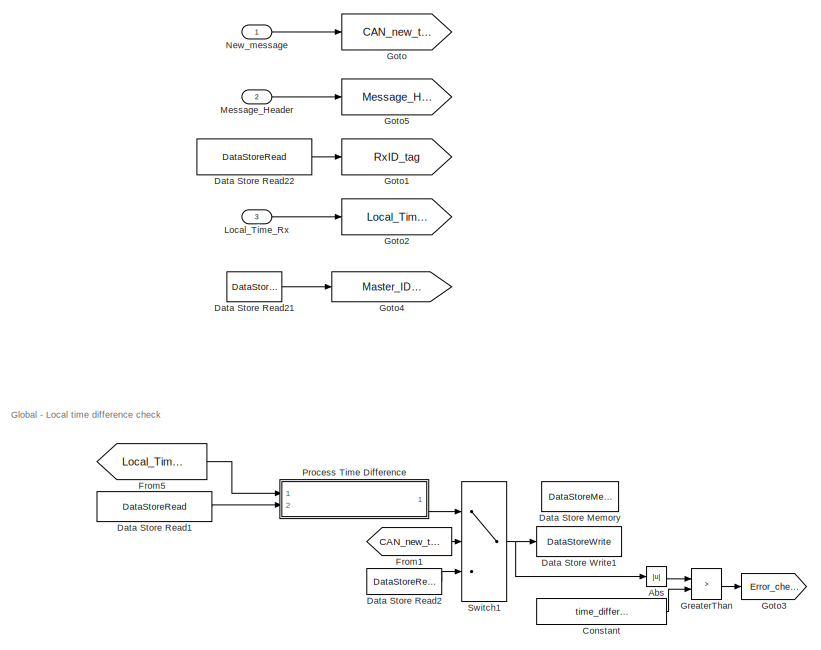
[diagram: HANcoder STM32 Target - E407-STM32 algorithm/Global Ticks Increment/CAN Management/Received message processing - part 1/4, top left region]
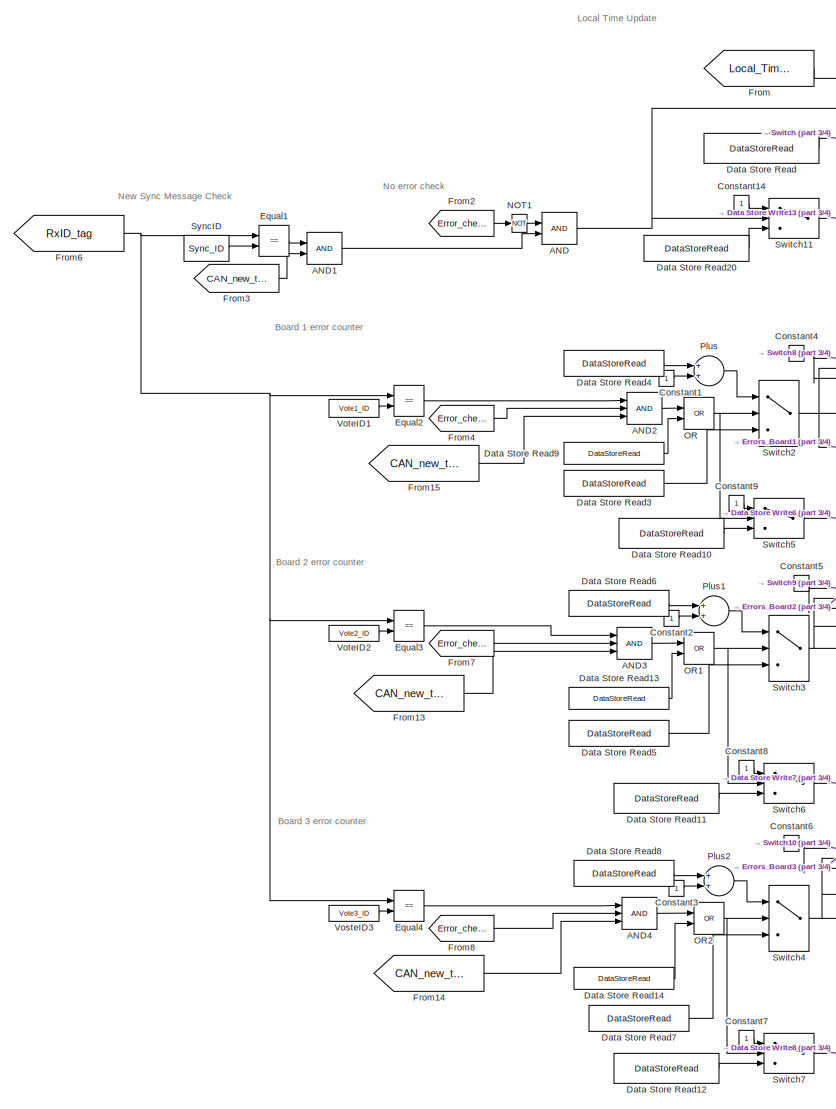
[diagram: HANcoder STM32 Target - E407-STM32 algorithm/Global Ticks Increment/CAN Management/Received message processing - part 2/4, center side, full height]
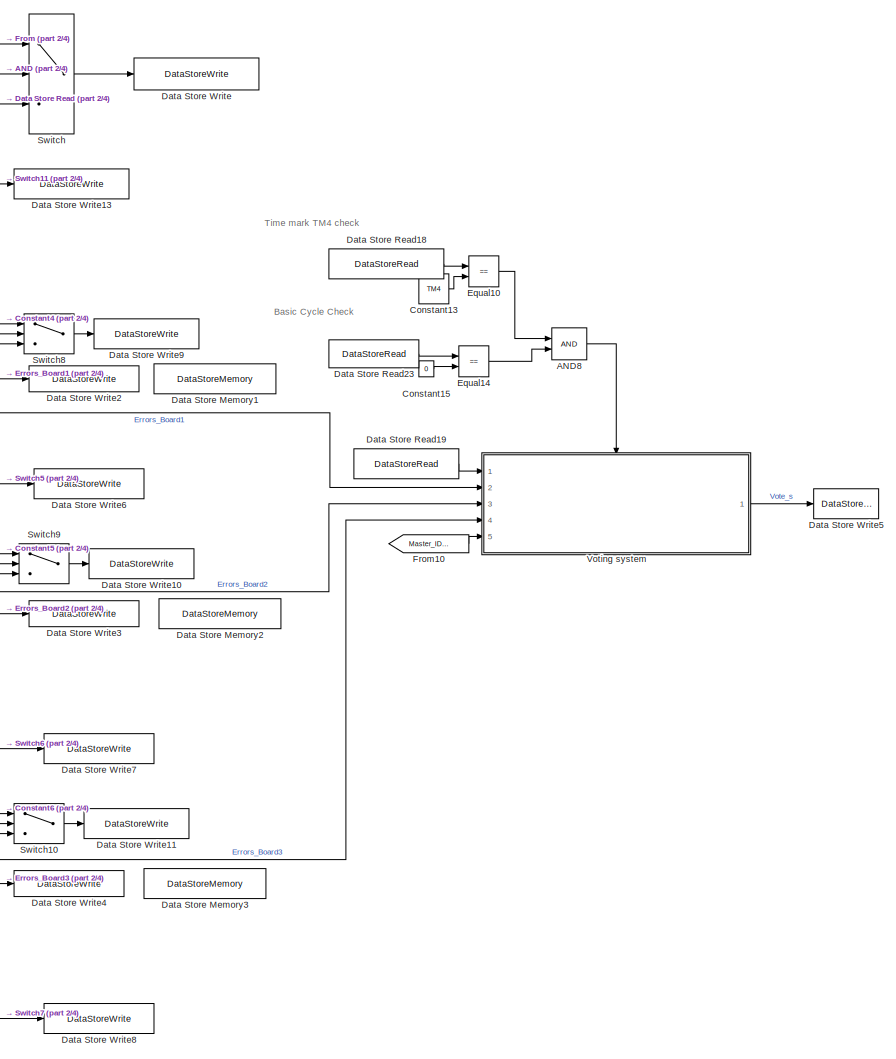
[diagram: HANcoder STM32 Target - E407-STM32 algorithm/Global Ticks Increment/CAN Management/Received message processing - part 3/4, right side, full height]
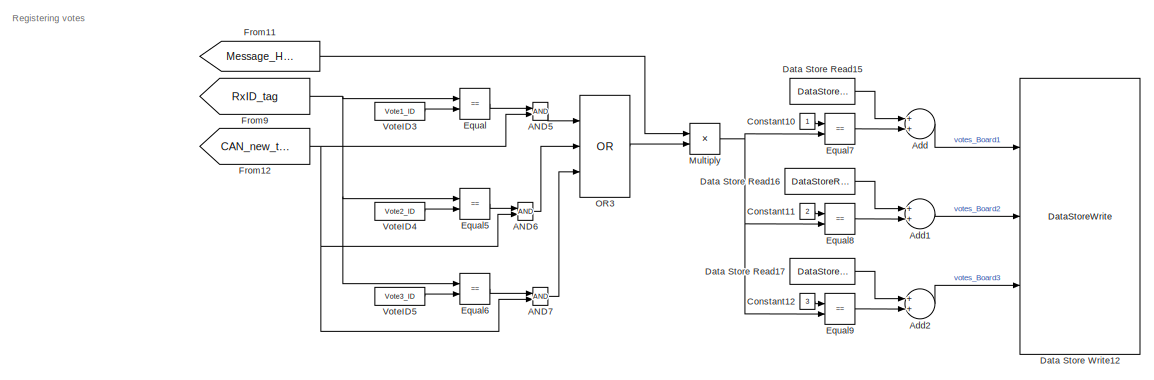
[diagram: HANcoder STM32 Target - E407-STM32 algorithm/Global Ticks Increment/CAN Management/Received message processing - part 4/4, bottom left region]
BLOCK [SubSystem] HANcoder STM32 Target - E407-STM32 algorithm/Global Ticks Increment/CAN Management/Received message processing
  Ports = [3]
  RequestExecContextInheritance = off
  TreatAsAtomicUnit = on
BLOCK [Logic] HANcoder STM32 Target - E407-STM32 algorithm/Global Ticks Increment/CAN Management/Received message processing/AND
  AllPortsSameDT = off
  IconShape = distinctive
  OutDataTypeStr = boolean
  Ports = [2, 1]
BLOCK [Logic] HANcoder STM32 Target - E407-STM32 algorithm/Global Ticks Increment/CAN Management/Received message processing/AND1
  AllPortsSameDT = off
  IconShape = distinctive
  OutDataTypeStr = boolean
  Ports = [2, 1]
BLOCK [Logic] HANcoder STM32 Target - E407-STM32 algorithm/Global Ticks Increment/CAN Management/Received message processing/AND2
  AllPortsSameDT = off
  IconShape = distinctive
  Inputs = 3
  OutDataTypeStr = boolean
  Ports = [3, 1]
BLOCK [Logic] HANcoder STM32 Target - E407-STM32 algorithm/Global Ticks Increment/CAN Management/Received message processing/AND3
  AllPortsSameDT = off
  IconShape = distinctive
  Inputs = 3
  OutDataTypeStr = boolean
  Ports = [3, 1]
BLOCK [Logic] HANcoder STM32 Target - E407-STM32 algorithm/Global Ticks Increment/CAN Management/Received message processing/AND4
  AllPortsSameDT = off
  IconShape = distinctive
  Inputs = 3
  OutDataTypeStr = boolean
  Ports = [3, 1]
BLOCK [Logic] HANcoder STM32 Target - E407-STM32 algorithm/Global Ticks Increment/CAN Management/Received message processing/AND5
  AllPortsSameDT = off
  IconShape = distinctive
  OutDataTypeStr = boolean
  Ports = [2, 1]
BLOCK [Logic] HANcoder STM32 Target - E407-STM32 algorithm/Global Ticks Increment/CAN Management/Received message processing/AND6
  AllPortsSameDT = off
  IconShape = distinctive
  OutDataTypeStr = boolean
  Ports = [2, 1]
BLOCK [Logic] HANcoder STM32 Target - E407-STM32 algorithm/Global Ticks Increment/CAN Management/Received message processing/AND7
  AllPortsSameDT = off
  IconShape = distinctive
  OutDataTypeStr = boolean
  Ports = [2, 1]
BLOCK [Logic] HANcoder STM32 Target - E407-STM32 algorithm/Global Ticks Increment/CAN Management/Received message processing/AND8
  AllPortsSameDT = off
  IconShape = distinctive
  OutDataTypeStr = boolean
  Ports = [2, 1]
BLOCK [Abs] HANcoder STM32 Target - E407-STM32 algorithm/Global Ticks Increment/CAN Management/Received message processing/Abs
  SaturateOnIntegerOverflow = off
BLOCK [Sum] HANcoder STM32 Target - E407-STM32 algorithm/Global Ticks Increment/CAN Management/Received message processing/Add
  InputSameDT = off
  OutDataTypeStr = Inherit: Inherit via internal rule
  Ports = [2, 1]
  SaturateOnIntegerOverflow = off
BLOCK [Sum] HANcoder STM32 Target - E407-STM32 algorithm/Global Ticks Increment/CAN Management/Received message processing/Add1
  InputSameDT = off
  OutDataTypeStr = Inherit: Inherit via internal rule
  Ports = [2, 1]
  SaturateOnIntegerOverflow = off
BLOCK [Sum] HANcoder STM32 Target - E407-STM32 algorithm/Global Ticks Increment/CAN Management/Received message processing/Add2
  InputSameDT = off
  OutDataTypeStr = Inherit: Inherit via internal rule
  Ports = [2, 1]
  SaturateOnIntegerOverflow = off
BLOCK [Constant] HANcoder STM32 Target - E407-STM32 algorithm/Global Ticks Increment/CAN Management/Received message processing/Constant
  Value = time_difference_threshold
BLOCK [Constant] HANcoder STM32 Target - E407-STM32 algorithm/Global Ticks Increment/CAN Management/Received message processing/Constant1
BLOCK [Constant] HANcoder STM32 Target - E407-STM32 algorithm/Global Ticks Increment/CAN Management/Received message processing/Constant10
BLOCK [Constant] HANcoder STM32 Target - E407-STM32 algorithm/Global Ticks Increment/CAN Management/Received message processing/Constant11
  Value = 2
BLOCK [Constant] HANcoder STM32 Target - E407-STM32 algorithm/Global Ticks Increment/CAN Management/Received message processing/Constant12
  Value = 3
BLOCK [Constant] HANcoder STM32 Target - E407-STM32 algorithm/Global Ticks Increment/CAN Management/Received message processing/Constant13
  Value = TM4
BLOCK [Constant] HANcoder STM32 Target - E407-STM32 algorithm/Global Ticks Increment/CAN Management/Received message processing/Constant14
BLOCK [Constant] HANcoder STM32 Target - E407-STM32 algorithm/Global Ticks Increment/CAN Management/Received message processing/Constant15
  Value = 0
BLOCK [Constant] HANcoder STM32 Target - E407-STM32 algorithm/Global Ticks Increment/CAN Management/Received message processing/Constant2
BLOCK [Constant] HANcoder STM32 Target - E407-STM32 algorithm/Global Ticks Increment/CAN Management/Received message processing/Constant3
BLOCK [Constant] HANcoder STM32 Target - E407-STM32 algorithm/Global Ticks Increment/CAN Management/Received message processing/Constant4
  OutDataTypeStr = boolean
  Value = 0
BLOCK [Constant] HANcoder STM32 Target - E407-STM32 algorithm/Global Ticks Increment/CAN Management/Received message processing/Constant5
  OutDataTypeStr = boolean
  Value = 0
BLOCK [Constant] HANcoder STM32 Target - E407-STM32 algorithm/Global Ticks Increment/CAN Management/Received message processing/Constant6
  OutDataTypeStr = boolean
  Value = 0
BLOCK [Constant] HANcoder STM32 Target - E407-STM32 algorithm/Global Ticks Increment/CAN Management/Received message processing/Constant7
  OutDataTypeStr = boolean
BLOCK [Constant] HANcoder STM32 Target - E407-STM32 algorithm/Global Ticks Increment/CAN Management/Received message processing/Constant8
  OutDataTypeStr = boolean
BLOCK [Constant] HANcoder STM32 Target - E407-STM32 algorithm/Global Ticks Increment/CAN Management/Received message processing/Constant9
  OutDataTypeStr = boolean
BLOCK [DataStoreMemory] HANcoder STM32 Target - E407-STM32 algorithm/Global Ticks Increment/CAN Management/Received message processing/Data Store Memory
  DataStoreName = time_difference
  ReadBeforeWriteMsg = warning
  ShowAdditionalParam = off
  WriteAfterReadMsg = warning
  WriteAfterWriteMsg = warning
BLOCK [DataStoreMemory] HANcoder STM32 Target - E407-STM32 algorithm/Global Ticks Increment/CAN Management/Received message processing/Data Store Memory1
  DataStoreName = Board1_error_counter
  OutDataTypeStr = double
  OutMax = 4294967294
  OutMin = 0
  ReadBeforeWriteMsg = warning
  ShowAdditionalParam = off
  WriteAfterReadMsg = warning
  WriteAfterWriteMsg = warning
BLOCK [DataStoreMemory] HANcoder STM32 Target - E407-STM32 algorithm/Global Ticks Increment/CAN Management/Received message processing/Data Store Memory2
  DataStoreName = Board2_error_counter
  OutDataTypeStr = double
  OutMax = 4294967294
  OutMin = 0
  ReadBeforeWriteMsg = warning
  ShowAdditionalParam = off
  WriteAfterReadMsg = warning
  WriteAfterWriteMsg = warning
BLOCK [DataStoreMemory] HANcoder STM32 Target - E407-STM32 algorithm/Global Ticks Increment/CAN Management/Received message processing/Data Store Memory3
  DataStoreName = Board3_error_counter
  OutDataTypeStr = double
  OutMax = 4294967294
  OutMin = 0
  ReadBeforeWriteMsg = warning
  ShowAdditionalParam = off
  WriteAfterReadMsg = warning
  WriteAfterWriteMsg = warning
BLOCK [DataStoreRead] HANcoder STM32 Target - E407-STM32 algorithm/Global Ticks Increment/CAN Management/Received message processing/Data Store Read
  DataStoreName = local_ticks_mem_IRQ
  Ports = [0, 1]
BLOCK [DataStoreRead] HANcoder STM32 Target - E407-STM32 algorithm/Global Ticks Increment/CAN Management/Received message processing/Data Store Read1
  DataStoreName = local_ticks_mem_IRQ
  Ports = [0, 1]
BLOCK [DataStoreRead] HANcoder STM32 Target - E407-STM32 algorithm/Global Ticks Increment/CAN Management/Received message processing/Data Store Read10
  DataStoreName = BC0_TM1_processed
  Ports = [0, 1]
BLOCK [DataStoreRead] HANcoder STM32 Target - E407-STM32 algorithm/Global Ticks Increment/CAN Management/Received message processing/Data Store Read11
  DataStoreName = BC0_TM2_processed
  Ports = [0, 1]
BLOCK [DataStoreRead] HANcoder STM32 Target - E407-STM32 algorithm/Global Ticks Increment/CAN Management/Received message processing/Data Store Read12
  DataStoreName = BC0_TM3_processed
  Ports = [0, 1]
BLOCK [DataStoreRead] HANcoder STM32 Target - E407-STM32 algorithm/Global Ticks Increment/CAN Management/Received message processing/Data Store Read13
  DataStoreName = BC0_TM2_timeout
  Ports = [0, 1]
BLOCK [DataStoreRead] HANcoder STM32 Target - E407-STM32 algorithm/Global Ticks Increment/CAN Management/Received message processing/Data Store Read14
  DataStoreName = BC0_TM3_timeout
  Ports = [0, 1]
BLOCK [DataStoreRead] HANcoder STM32 Target - E407-STM32 algorithm/Global Ticks Increment/CAN Management/Received message processing/Data Store Read15
  DataStoreElements = votes.First_Board
  DataStoreName = votes
  Ports = [0, 1]
BLOCK [DataStoreRead] HANcoder STM32 Target - E407-STM32 algorithm/Global Ticks Increment/CAN Management/Received message processing/Data Store Read16
  DataStoreElements = votes.Second_Board
  DataStoreName = votes
  Ports = [0, 1]
BLOCK [DataStoreRead] HANcoder STM32 Target - E407-STM32 algorithm/Global Ticks Increment/CAN Management/Received message processing/Data Store Read17
  DataStoreElements = votes.Third_Board
  DataStoreName = votes
  Ports = [0, 1]
BLOCK [DataStoreRead] HANcoder STM32 Target - E407-STM32 algorithm/Global Ticks Increment/CAN Management/Received message processing/Data Store Read18
  DataStoreName = local_ticks_mem_IRQ
  Ports = [0, 1]
BLOCK [DataStoreRead] HANcoder STM32 Target - E407-STM32 algorithm/Global Ticks Increment/CAN Management/Received message processing/Data Store Read19
  DataStoreName = global_time_updated
  Ports = [0, 1]
BLOCK [DataStoreRead] HANcoder STM32 Target - E407-STM32 algorithm/Global Ticks Increment/CAN Management/Received message processing/Data Store Read2
  DataStoreName = time_difference
  Ports = [0, 1]
BLOCK [DataStoreRead] HANcoder STM32 Target - E407-STM32 algorithm/Global Ticks Increment/CAN Management/Received message processing/Data Store Read20
  DataStoreName = global_time_updated
  Ports = [0, 1]
BLOCK [DataStoreRead] HANcoder STM32 Target - E407-STM32 algorithm/Global Ticks Increment/CAN Management/Received message processing/Data Store Read21
  DataStoreName = Master_ID
  Ports = [0, 1]
BLOCK [DataStoreRead] HANcoder STM32 Target - E407-STM32 algorithm/Global Ticks Increment/CAN Management/Received message processing/Data Store Read22
  DataStoreName = RxID_message_buffer
  Ports = [0, 1]
BLOCK [DataStoreRead] HANcoder STM32 Target - E407-STM32 algorithm/Global Ticks Increment/CAN Management/Received message processing/Data Store Read23
  DataStoreName = basic_cycle_count
  Ports = [0, 1]
BLOCK [DataStoreRead] HANcoder STM32 Target - E407-STM32 algorithm/Global Ticks Increment/CAN Management/Received message processing/Data Store Read3
  DataStoreName = Board1_error_counter
  Ports = [0, 1]
BLOCK [DataStoreRead] HANcoder STM32 Target - E407-STM32 algorithm/Global Ticks Increment/CAN Management/Received message processing/Data Store Read4
  DataStoreName = Board1_error_counter
  Ports = [0, 1]
BLOCK [DataStoreRead] HANcoder STM32 Target - E407-STM32 algorithm/Global Ticks Increment/CAN Management/Received message processing/Data Store Read5
  DataStoreName = Board2_error_counter
  Ports = [0, 1]
BLOCK [DataStoreRead] HANcoder STM32 Target - E407-STM32 algorithm/Global Ticks Increment/CAN Management/Received message processing/Data Store Read6
  DataStoreName = Board2_error_counter
  Ports = [0, 1]
BLOCK [DataStoreRead] HANcoder STM32 Target - E407-STM32 algorithm/Global Ticks Increment/CAN Management/Received message processing/Data Store Read7
  DataStoreName = Board3_error_counter
  Ports = [0, 1]
BLOCK [DataStoreRead] HANcoder STM32 Target - E407-STM32 algorithm/Global Ticks Increment/CAN Management/Received message processing/Data Store Read8
  DataStoreName = Board3_error_counter
  Ports = [0, 1]
BLOCK [DataStoreRead] HANcoder STM32 Target - E407-STM32 algorithm/Global Ticks Increment/CAN Management/Received message processing/Data Store Read9
  DataStoreName = BC0_TM1_timeout
  Ports = [0, 1]
BLOCK [DataStoreWrite] HANcoder STM32 Target - E407-STM32 algorithm/Global Ticks Increment/CAN Management/Received message processing/Data Store Write
  DataStoreName = local_ticks_mem_IRQ
  Ports = [1]
BLOCK [DataStoreWrite] HANcoder STM32 Target - E407-STM32 algorithm/Global Ticks Increment/CAN Management/Received message processing/Data Store Write1
  DataStoreName = time_difference
  Ports = [1]
BLOCK [DataStoreWrite] HANcoder STM32 Target - E407-STM32 algorithm/Global Ticks Increment/CAN Management/Received message processing/Data Store Write10
  DataStoreName = BC0_TM2_timeout
  Ports = [1]
BLOCK [DataStoreWrite] HANcoder STM32 Target - E407-STM32 algorithm/Global Ticks Increment/CAN Management/Received message processing/Data Store Write11
  DataStoreName = BC0_TM3_timeout
  Ports = [1]
BLOCK [DataStoreWrite] HANcoder STM32 Target - E407-STM32 algorithm/Global Ticks Increment/CAN Management/Received message processing/Data Store Write12
  DataStoreElements = votes.First_Board#votes.Second_Board#votes.Third_Board
  DataStoreName = votes
  Ports = [3]
BLOCK [DataStoreWrite] HANcoder STM32 Target - E407-STM32 algorithm/Global Ticks Increment/CAN Management/Received message processing/Data Store Write13
  DataStoreName = global_time_updated
  Ports = [1]
BLOCK [DataStoreWrite] HANcoder STM32 Target - E407-STM32 algorithm/Global Ticks Increment/CAN Management/Received message processing/Data Store Write2
  DataStoreName = Board1_error_counter
  Ports = [1]
BLOCK [DataStoreWrite] HANcoder STM32 Target - E407-STM32 algorithm/Global Ticks Increment/CAN Management/Received message processing/Data Store Write3
  DataStoreName = Board2_error_counter
  Ports = [1]
BLOCK [DataStoreWrite] HANcoder STM32 Target - E407-STM32 algorithm/Global Ticks Increment/CAN Management/Received message processing/Data Store Write4
  DataStoreName = Board3_error_counter
  Ports = [1]
BLOCK [DataStoreWrite] HANcoder STM32 Target - E407-STM32 algorithm/Global Ticks Increment/CAN Management/Received message processing/Data Store Write5
  DataStoreName = Vote
  Ports = [1]
BLOCK [DataStoreWrite] HANcoder STM32 Target - E407-STM32 algorithm/Global Ticks Increment/CAN Management/Received message processing/Data Store Write6
  DataStoreName = BC0_TM1_processed
  Ports = [1]
BLOCK [DataStoreWrite] HANcoder STM32 Target - E407-STM32 algorithm/Global Ticks Increment/CAN Management/Received message processing/Data Store Write7
  DataStoreName = BC0_TM2_processed
  Ports = [1]
BLOCK [DataStoreWrite] HANcoder STM32 Target - E407-STM32 algorithm/Global Ticks Increment/CAN Management/Received message processing/Data Store Write8
  DataStoreName = BC0_TM3_processed
  Ports = [1]
BLOCK [DataStoreWrite] HANcoder STM32 Target - E407-STM32 algorithm/Global Ticks Increment/CAN Management/Received message processing/Data Store Write9
  DataStoreName = BC0_TM1_timeout
  Ports = [1]
BLOCK [RelationalOperator] HANcoder STM32 Target - E407-STM32 algorithm/Global Ticks Increment/CAN Management/Received message processing/Equal
  InputSameDT = off
  Operator = ==
  OutDataTypeStr = boolean
  Ports = [2, 1]
  RndMeth = Simplest
BLOCK [RelationalOperator] HANcoder STM32 Target - E407-STM32 algorithm/Global Ticks Increment/CAN Management/Received message processing/Equal1
  InputSameDT = off
  Operator = ==
  OutDataTypeStr = boolean
  Ports = [2, 1]
  RndMeth = Simplest
BLOCK [RelationalOperator] HANcoder STM32 Target - E407-STM32 algorithm/Global Ticks Increment/CAN Management/Received message processing/Equal10
  InputSameDT = off
  Operator = ==
  OutDataTypeStr = boolean
  Ports = [2, 1]
  RndMeth = Simplest
BLOCK [RelationalOperator] HANcoder STM32 Target - E407-STM32 algorithm/Global Ticks Increment/CAN Management/Received message processing/Equal14
  InputSameDT = off
  Operator = ==
  OutDataTypeStr = boolean
  Ports = [2, 1]
  RndMeth = Simplest
BLOCK [RelationalOperator] HANcoder STM32 Target - E407-STM32 algorithm/Global Ticks Increment/CAN Management/Received message processing/Equal2
  InputSameDT = off
  Operator = ==
  OutDataTypeStr = boolean
  Ports = [2, 1]
  RndMeth = Simplest
BLOCK [RelationalOperator] HANcoder STM32 Target - E407-STM32 algorithm/Global Ticks Increment/CAN Management/Received message processing/Equal3
  InputSameDT = off
  Operator = ==
  OutDataTypeStr = boolean
  Ports = [2, 1]
  RndMeth = Simplest
BLOCK [RelationalOperator] HANcoder STM32 Target - E407-STM32 algorithm/Global Ticks Increment/CAN Management/Received message processing/Equal4
  InputSameDT = off
  Operator = ==
  OutDataTypeStr = boolean
  Ports = [2, 1]
  RndMeth = Simplest
BLOCK [RelationalOperator] HANcoder STM32 Target - E407-STM32 algorithm/Global Ticks Increment/CAN Management/Received message processing/Equal5
  InputSameDT = off
  Operator = ==
  OutDataTypeStr = boolean
  Ports = [2, 1]
  RndMeth = Simplest
BLOCK [RelationalOperator] HANcoder STM32 Target - E407-STM32 algorithm/Global Ticks Increment/CAN Management/Received message processing/Equal6
  InputSameDT = off
  Operator = ==
  OutDataTypeStr = boolean
  Ports = [2, 1]
  RndMeth = Simplest
BLOCK [RelationalOperator] HANcoder STM32 Target - E407-STM32 algorithm/Global Ticks Increment/CAN Management/Received message processing/Equal7
  InputSameDT = off
  Operator = ==
  OutDataTypeStr = boolean
  Ports = [2, 1]
  RndMeth = Simplest
BLOCK [RelationalOperator] HANcoder STM32 Target - E407-STM32 algorithm/Global Ticks Increment/CAN Management/Received message processing/Equal8
  InputSameDT = off
  Operator = ==
  OutDataTypeStr = boolean
  Ports = [2, 1]
  RndMeth = Simplest
BLOCK [RelationalOperator] HANcoder STM32 Target - E407-STM32 algorithm/Global Ticks Increment/CAN Management/Received message processing/Equal9
  InputSameDT = off
  Operator = ==
  OutDataTypeStr = boolean
  Ports = [2, 1]
  RndMeth = Simplest
BLOCK [From] HANcoder STM32 Target - E407-STM32 algorithm/Global Ticks Increment/CAN Management/Received message processing/From
  GotoTag = Local_Time_Rx_tag
BLOCK [From] HANcoder STM32 Target - E407-STM32 algorithm/Global Ticks Increment/CAN Management/Received message processing/From1
  GotoTag = CAN_new_tag
BLOCK [From] HANcoder STM32 Target - E407-STM32 algorithm/Global Ticks Increment/CAN Management/Received message processing/From10
  GotoTag = Master_ID_tag
BLOCK [From] HANcoder STM32 Target - E407-STM32 algorithm/Global Ticks Increment/CAN Management/Received message processing/From11
  GotoTag = Message_Header_tag
BLOCK [From] HANcoder STM32 Target - E407-STM32 algorithm/Global Ticks Increment/CAN Management/Received message processing/From12
  GotoTag = CAN_new_tag
BLOCK [From] HANcoder STM32 Target - E407-STM32 algorithm/Global Ticks Increment/CAN Management/Received message processing/From13
  GotoTag = CAN_new_tag
BLOCK [From] HANcoder STM32 Target - E407-STM32 algorithm/Global Ticks Increment/CAN Management/Received message processing/From14
  GotoTag = CAN_new_tag
BLOCK [From] HANcoder STM32 Target - E407-STM32 algorithm/Global Ticks Increment/CAN Management/Received message processing/From15
  GotoTag = CAN_new_tag
BLOCK [From] HANcoder STM32 Target - E407-STM32 algorithm/Global Ticks Increment/CAN Management/Received message processing/From2
  GotoTag = Error_check
BLOCK [From] HANcoder STM32 Target - E407-STM32 algorithm/Global Ticks Increment/CAN Management/Received message processing/From3
  GotoTag = CAN_new_tag
BLOCK [From] HANcoder STM32 Target - E407-STM32 algorithm/Global Ticks Increment/CAN Management/Received message processing/From4
  GotoTag = Error_check
BLOCK [From] HANcoder STM32 Target - E407-STM32 algorithm/Global Ticks Increment/CAN Management/Received message processing/From5
  GotoTag = Local_Time_Rx_tag
BLOCK [From] HANcoder STM32 Target - E407-STM32 algorithm/Global Ticks Increment/CAN Management/Received message processing/From6
  GotoTag = RxID_tag
BLOCK [From] HANcoder STM32 Target - E407-STM32 algorithm/Global Ticks Increment/CAN Management/Received message processing/From7
  GotoTag = Error_check
BLOCK [From] HANcoder STM32 Target - E407-STM32 algorithm/Global Ticks Increment/CAN Management/Received message processing/From8
  GotoTag = Error_check
BLOCK [From] HANcoder STM32 Target - E407-STM32 algorithm/Global Ticks Increment/CAN Management/Received message processing/From9
  GotoTag = RxID_tag
BLOCK [Goto] HANcoder STM32 Target - E407-STM32 algorithm/Global Ticks Increment/CAN Management/Received message processing/Goto
  GotoTag = CAN_new_tag
BLOCK [Goto] HANcoder STM32 Target - E407-STM32 algorithm/Global Ticks Increment/CAN Management/Received message processing/Goto1
  GotoTag = RxID_tag
BLOCK [Goto] HANcoder STM32 Target - E407-STM32 algorithm/Global Ticks Increment/CAN Management/Received message processing/Goto2
  GotoTag = Local_Time_Rx_tag
BLOCK [Goto] HANcoder STM32 Target - E407-STM32 algorithm/Global Ticks Increment/CAN Management/Received message processing/Goto3
  GotoTag = Error_check
BLOCK [Goto] HANcoder STM32 Target - E407-STM32 algorithm/Global Ticks Increment/CAN Management/Received message processing/Goto4
  GotoTag = Master_ID_tag
BLOCK [Goto] HANcoder STM32 Target - E407-STM32 algorithm/Global Ticks Increment/CAN Management/Received message processing/Goto5
  GotoTag = Message_Header_tag
BLOCK [RelationalOperator] HANcoder STM32 Target - E407-STM32 algorithm/Global Ticks Increment/CAN Management/Received message processing/GreaterThan
  InputSameDT = off
  Operator = >
  OutDataTypeStr = boolean
  Ports = [2, 1]
  RndMeth = Simplest
BLOCK [Inport] HANcoder STM32 Target - E407-STM32 algorithm/Global Ticks Increment/CAN Management/Received message processing/Local_Time_Rx
  IconDisplay = Port number
  Port = 3
BLOCK [Inport] HANcoder STM32 Target - E407-STM32 algorithm/Global Ticks Increment/CAN Management/Received message processing/Message_Header
  IconDisplay = Port number
  Port = 2
BLOCK [Product] HANcoder STM32 Target - E407-STM32 algorithm/Global Ticks Increment/CAN Management/Received message processing/Multiply
  InputSameDT = off
  OutDataTypeStr = Inherit: Inherit via internal rule
  Ports = [2, 1]
  RndMeth = Floor
  SaturateOnIntegerOverflow = off
BLOCK [Logic] HANcoder STM32 Target - E407-STM32 algorithm/Global Ticks Increment/CAN Management/Received message processing/NOT1
  AllPortsSameDT = off
  IconShape = distinctive
  Operator = NOT
  OutDataTypeStr = boolean
  Ports = [1, 1]
BLOCK [Inport] HANcoder STM32 Target - E407-STM32 algorithm/Global Ticks Increment/CAN Management/Received message processing/New_message
  IconDisplay = Port number
BLOCK [Logic] HANcoder STM32 Target - E407-STM32 algorithm/Global Ticks Increment/CAN Management/Received message processing/OR
  AllPortsSameDT = off
  IconShape = distinctive
  Operator = OR
  OutDataTypeStr = boolean
  Ports = [2, 1]
BLOCK [Logic] HANcoder STM32 Target - E407-STM32 algorithm/Global Ticks Increment/CAN Management/Received message processing/OR1
  AllPortsSameDT = off
  IconShape = distinctive
  Operator = OR
  OutDataTypeStr = boolean
  Ports = [2, 1]
BLOCK [Logic] HANcoder STM32 Target - E407-STM32 algorithm/Global Ticks Increment/CAN Management/Received message processing/OR2
  AllPortsSameDT = off
  IconShape = distinctive
  Operator = OR
  OutDataTypeStr = boolean
  Ports = [2, 1]
BLOCK [Logic] HANcoder STM32 Target - E407-STM32 algorithm/Global Ticks Increment/CAN Management/Received message processing/OR3
  AllPortsSameDT = off
  IconShape = distinctive
  Inputs = 3
  Operator = OR
  OutDataTypeStr = boolean
  Ports = [3, 1]
BLOCK [Sum] HANcoder STM32 Target - E407-STM32 algorithm/Global Ticks Increment/CAN Management/Received message processing/Plus
  InputSameDT = off
  OutDataTypeStr = Inherit: Inherit via internal rule
  Ports = [2, 1]
  SaturateOnIntegerOverflow = off
BLOCK [Sum] HANcoder STM32 Target - E407-STM32 algorithm/Global Ticks Increment/CAN Management/Received message processing/Plus1
  InputSameDT = off
  OutDataTypeStr = Inherit: Inherit via internal rule
  Ports = [2, 1]
  SaturateOnIntegerOverflow = off
BLOCK [Sum] HANcoder STM32 Target - E407-STM32 algorithm/Global Ticks Increment/CAN Management/Received message processing/Plus2
  InputSameDT = off
  OutDataTypeStr = Inherit: Inherit via internal rule
  Ports = [2, 1]
  SaturateOnIntegerOverflow = off
BLOCK [SubSystem] HANcoder STM32 Target - E407-STM32 algorithm/Global Ticks Increment/CAN Management/Received message processing/Process Time Difference
  Ports = [2, 1]
  RequestExecContextInheritance = off
BLOCK [SubSystem] HANcoder STM32 Target - E407-STM32 algorithm/Global Ticks Increment/CAN Management/Received message processing/Process Time Difference/Check_Wrap_up
  Ports = [1, 1]
  RequestExecContextInheritance = off
BLOCK [RelationalOperator] HANcoder STM32 Target - E407-STM32 algorithm/Global Ticks Increment/CAN Management/Received message processing/Process Time Difference/Check_Wrap_up/GreaterThan
  InputSameDT = off
  Operator = >
  OutDataTypeStr = boolean
  Ports = [2, 1]
  RndMeth = Simplest
BLOCK [Inport] HANcoder STM32 Target - E407-STM32 algorithm/Global Ticks Increment/CAN Management/Received message processing/Process Time Difference/Check_Wrap_up/In1
  IconDisplay = Port number
BLOCK [Sum] HANcoder STM32 Target - E407-STM32 algorithm/Global Ticks Increment/CAN Management/Received message processing/Process Time Difference/Check_Wrap_up/Minus
  InputSameDT = off
  Inputs = +-
  OutDataTypeStr = Inherit: Inherit via internal rule
  Ports = [2, 1]
  SaturateOnIntegerOverflow = off
BLOCK [Outport] HANcoder STM32 Target - E407-STM32 algorithm/Global Ticks Increment/CAN Management/Received message processing/Process Time Difference/Check_Wrap_up/Out1
  IconDisplay = Port number
BLOCK [Switch] HANcoder STM32 Target - E407-STM32 algorithm/Global Ticks Increment/CAN Management/Received message processing/Process Time Difference/Check_Wrap_up/Switch
  Criteria = u2 > Threshold
  InputSameDT = off
  SaturateOnIntegerOverflow = off
BLOCK [Constant] HANcoder STM32 Target - E407-STM32 algorithm/Global Ticks Increment/CAN Management/Received message processing/Process Time Difference/Check_Wrap_up/Wrap-up_Threshold
  Value = wrap_up_threshold
BLOCK [Constant] HANcoder STM32 Target - E407-STM32 algorithm/Global Ticks Increment/CAN Management/Received message processing/Process Time Difference/Check_Wrap_up/Wrap-up_Threshold1
  Value = basic_cycle_duration
BLOCK [SubSystem] HANcoder STM32 Target - E407-STM32 algorithm/Global Ticks Increment/CAN Management/Received message processing/Process Time Difference/Check_Wrap_up1
  Ports = [1, 1]
  RequestExecContextInheritance = off
BLOCK [RelationalOperator] HANcoder STM32 Target - E407-STM32 algorithm/Global Ticks Increment/CAN Management/Received message processing/Process Time Difference/Check_Wrap_up1/GreaterThan
  InputSameDT = off
  Operator = >
  OutDataTypeStr = boolean
  Ports = [2, 1]
  RndMeth = Simplest
BLOCK [Inport] HANcoder STM32 Target - E407-STM32 algorithm/Global Ticks Increment/CAN Management/Received message processing/Process Time Difference/Check_Wrap_up1/In1
  IconDisplay = Port number
BLOCK [Sum] HANcoder STM32 Target - E407-STM32 algorithm/Global Ticks Increment/CAN Management/Received message processing/Process Time Difference/Check_Wrap_up1/Minus
  InputSameDT = off
  Inputs = +-
  OutDataTypeStr = Inherit: Inherit via internal rule
  Ports = [2, 1]
  SaturateOnIntegerOverflow = off
BLOCK [Outport] HANcoder STM32 Target - E407-STM32 algorithm/Global Ticks Increment/CAN Management/Received message processing/Process Time Difference/Check_Wrap_up1/Out1
  IconDisplay = Port number
BLOCK [Switch] HANcoder STM32 Target - E407-STM32 algorithm/Global Ticks Increment/CAN Management/Received message processing/Process Time Difference/Check_Wrap_up1/Switch
  Criteria = u2 > Threshold
  InputSameDT = off
  SaturateOnIntegerOverflow = off
BLOCK [Constant] HANcoder STM32 Target - E407-STM32 algorithm/Global Ticks Increment/CAN Management/Received message processing/Process Time Difference/Check_Wrap_up1/Wrap-up_Threshold
  Value = wrap_up_threshold
BLOCK [Constant] HANcoder STM32 Target - E407-STM32 algorithm/Global Ticks Increment/CAN Management/Received message processing/Process Time Difference/Check_Wrap_up1/Wrap-up_Threshold1
  Value = basic_cycle_duration
BLOCK [Inport] HANcoder STM32 Target - E407-STM32 algorithm/Global Ticks Increment/CAN Management/Received message processing/Process Time Difference/Local_Time
  IconDisplay = Port number
  Port = 2
BLOCK [Sum] HANcoder STM32 Target - E407-STM32 algorithm/Global Ticks Increment/CAN Management/Received message processing/Process Time Difference/Minus
  InputSameDT = off
  Inputs = +-
  OutDataTypeStr = Inherit: Inherit via internal rule
  Ports = [2, 1]
  SaturateOnIntegerOverflow = off
BLOCK [Inport] HANcoder STM32 Target - E407-STM32 algorithm/Global Ticks Increment/CAN Management/Received message processing/Process Time Difference/Rx_Time
  IconDisplay = Port number
BLOCK [Outport] HANcoder STM32 Target - E407-STM32 algorithm/Global Ticks Increment/CAN Management/Received message processing/Process Time Difference/Time_Difference
  IconDisplay = Port number
BLOCK [Switch] HANcoder STM32 Target - E407-STM32 algorithm/Global Ticks Increment/CAN Management/Received message processing/Switch
  Criteria = u2 > Threshold
  InputSameDT = off
  SaturateOnIntegerOverflow = off
BLOCK [Switch] HANcoder STM32 Target - E407-STM32 algorithm/Global Ticks Increment/CAN Management/Received message processing/Switch1
  Criteria = u2 > Threshold
  InputSameDT = off
  SaturateOnIntegerOverflow = off
BLOCK [Switch] HANcoder STM32 Target - E407-STM32 algorithm/Global Ticks Increment/CAN Management/Received message processing/Switch10
  Criteria = u2 > Threshold
  InputSameDT = off
  SaturateOnIntegerOverflow = off
BLOCK [Switch] HANcoder STM32 Target - E407-STM32 algorithm/Global Ticks Increment/CAN Management/Received message processing/Switch11
  Criteria = u2 > Threshold
  InputSameDT = off
  SaturateOnIntegerOverflow = off
BLOCK [Switch] HANcoder STM32 Target - E407-STM32 algorithm/Global Ticks Increment/CAN Management/Received message processing/Switch2
  Criteria = u2 > Threshold
  InputSameDT = off
  SaturateOnIntegerOverflow = off
BLOCK [Switch] HANcoder STM32 Target - E407-STM32 algorithm/Global Ticks Increment/CAN Management/Received message processing/Switch3
  Criteria = u2 > Threshold
  InputSameDT = off
  SaturateOnIntegerOverflow = off
BLOCK [Switch] HANcoder STM32 Target - E407-STM32 algorithm/Global Ticks Increment/CAN Management/Received message processing/Switch4
  Criteria = u2 > Threshold
  InputSameDT = off
  SaturateOnIntegerOverflow = off
BLOCK [Switch] HANcoder STM32 Target - E407-STM32 algorithm/Global Ticks Increment/CAN Management/Received message processing/Switch5
  Criteria = u2 > Threshold
  InputSameDT = off
  SaturateOnIntegerOverflow = off
BLOCK [Switch] HANcoder STM32 Target - E407-STM32 algorithm/Global Ticks Increment/CAN Management/Received message processing/Switch6
  Criteria = u2 > Threshold
  InputSameDT = off
  SaturateOnIntegerOverflow = off
BLOCK [Switch] HANcoder STM32 Target - E407-STM32 algorithm/Global Ticks Increment/CAN Management/Received message processing/Switch7
  Criteria = u2 > Threshold
  InputSameDT = off
  SaturateOnIntegerOverflow = off
BLOCK [Switch] HANcoder STM32 Target - E407-STM32 algorithm/Global Ticks Increment/CAN Management/Received message processing/Switch8
  Criteria = u2 > Threshold
  InputSameDT = off
  SaturateOnIntegerOverflow = off
BLOCK [Switch] HANcoder STM32 Target - E407-STM32 algorithm/Global Ticks Increment/CAN Management/Received message processing/Switch9
  Criteria = u2 > Threshold
  InputSameDT = off
  SaturateOnIntegerOverflow = off
BLOCK [Constant] HANcoder STM32 Target - E407-STM32 algorithm/Global Ticks Increment/CAN Management/Received message processing/SyncID
  Value = Sync_ID
BLOCK [Constant] HANcoder STM32 Target - E407-STM32 algorithm/Global Ticks Increment/CAN Management/Received message processing/VosteID3
  Value = Vote3_ID
BLOCK [Constant] HANcoder STM32 Target - E407-STM32 algorithm/Global Ticks Increment/CAN Management/Received message processing/VoteID1
  Value = Vote1_ID
BLOCK [Constant] HANcoder STM32 Target - E407-STM32 algorithm/Global Ticks Increment/CAN Management/Received message processing/VoteID2
  Value = Vote2_ID
BLOCK [Constant] HANcoder STM32 Target - E407-STM32 algorithm/Global Ticks Increment/CAN Management/Received message processing/VoteID3
  Value = Vote1_ID
BLOCK [Constant] HANcoder STM32 Target - E407-STM32 algorithm/Global Ticks Increment/CAN Management/Received message processing/VoteID4
  Value = Vote2_ID
BLOCK [Constant] HANcoder STM32 Target - E407-STM32 algorithm/Global Ticks Increment/CAN Management/Received message processing/VoteID5
  Value = Vote3_ID
BLOCK [SubSystem] HANcoder STM32 Target - E407-STM32 algorithm/Global Ticks Increment/CAN Management/Received message processing/Voting system
  Ports = [5, 1, 1]
  RequestExecContextInheritance = off
BLOCK [DataTypeConversion] HANcoder STM32 Target - E407-STM32 algorithm/Global Ticks Increment/CAN Management/Received message processing/Voting system/Cast
  OutDataTypeStr = uint8
  RndMeth = Floor
  SaturateOnIntegerOverflow = off
BLOCK [Constant] HANcoder STM32 Target - E407-STM32 algorithm/Global Ticks Increment/CAN Management/Received message processing/Voting system/Constant
BLOCK [Constant] HANcoder STM32 Target - E407-STM32 algorithm/Global Ticks Increment/CAN Management/Received message processing/Voting system/Constant1
  Value = 2
BLOCK [Constant] HANcoder STM32 Target - E407-STM32 algorithm/Global Ticks Increment/CAN Management/Received message processing/Voting system/Constant2
  Value = 3
BLOCK [Constant] HANcoder STM32 Target - E407-STM32 algorithm/Global Ticks Increment/CAN Management/Received message processing/Voting system/Constant4
BLOCK [Constant] HANcoder STM32 Target - E407-STM32 algorithm/Global Ticks Increment/CAN Management/Received message processing/Voting system/Constant5
  Value = 2
BLOCK [Constant] HANcoder STM32 Target - E407-STM32 algorithm/Global Ticks Increment/CAN Management/Received message processing/Voting system/Constant6
  Value = 3
BLOCK [EnablePort] HANcoder STM32 Target - E407-STM32 algorithm/Global Ticks Increment/CAN Management/Received message processing/Voting system/Enable
  Ports = []
BLOCK [SubSystem] HANcoder STM32 Target - E407-STM32 algorithm/Global Ticks Increment/CAN Management/Received message processing/Voting system/Ensure no self votes or failed master reelected
  Ports = [3, 1]
  RequestExecContextInheritance = off
BLOCK [Logic] HANcoder STM32 Target - E407-STM32 algorithm/Global Ticks Increment/CAN Management/Received message processing/Voting system/Ensure no self votes or failed master reelected/AND
  AllPortsSameDT = off
  IconShape = distinctive
  OutDataTypeStr = boolean
  Ports = [2, 1]
BLOCK [DataStoreRead] HANcoder STM32 Target - E407-STM32 algorithm/Global Ticks Increment/CAN Management/Received message processing/Voting system/Ensure no self votes or failed master reelected/Data Store Read
  DataStoreName = Board_ID
  Ports = [0, 1]
BLOCK [DataStoreRead] HANcoder STM32 Target - E407-STM32 algorithm/Global Ticks Increment/CAN Management/Received message processing/Voting system/Ensure no self votes or failed master reelected/Data Store Read2
  DataStoreName = Master_ID
  Ports = [0, 1]
BLOCK [RelationalOperator] HANcoder STM32 Target - E407-STM32 algorithm/Global Ticks Increment/CAN Management/Received message processing/Voting system/Ensure no self votes or failed master reelected/Equal1
  InputSameDT = off
  Operator = ==
  OutDataTypeStr = boolean
  Ports = [2, 1]
  RndMeth = Simplest
BLOCK [RelationalOperator] HANcoder STM32 Target - E407-STM32 algorithm/Global Ticks Increment/CAN Management/Received message processing/Voting system/Ensure no self votes or failed master reelected/Equal2
  InputSameDT = off
  Operator = ==
  OutDataTypeStr = boolean
  Ports = [2, 1]
  RndMeth = Simplest
BLOCK [Inport] HANcoder STM32 Target - E407-STM32 algorithm/Global Ticks Increment/CAN Management/Received message processing/Voting system/Ensure no self votes or failed master reelected/Error counter
  IconDisplay = Port number
  Port = 3
BLOCK [Constant] HANcoder STM32 Target - E407-STM32 algorithm/Global Ticks Increment/CAN Management/Received message processing/Voting system/Ensure no self votes or failed master reelected/MAX error count
  OutDataTypeStr = uint32
  Value = 4294967295
BLOCK [Logic] HANcoder STM32 Target - E407-STM32 algorithm/Global Ticks Increment/CAN Management/Received message processing/Voting system/Ensure no self votes or failed master reelected/NOT
  AllPortsSameDT = off
  IconShape = distinctive
  Operator = NOT
  OutDataTypeStr = boolean
  Ports = [1, 1]
BLOCK [Inport] HANcoder STM32 Target - E407-STM32 algorithm/Global Ticks Increment/CAN Management/Received message processing/Voting system/Ensure no self votes or failed master reelected/Node ID
  IconDisplay = Port number
BLOCK [Logic] HANcoder STM32 Target - E407-STM32 algorithm/Global Ticks Increment/CAN Management/Received message processing/Voting system/Ensure no self votes or failed master reelected/OR
  AllPortsSameDT = off
  IconShape = distinctive
  Operator = OR
  OutDataTypeStr = boolean
  Ports = [2, 1]
BLOCK [Outport] HANcoder STM32 Target - E407-STM32 algorithm/Global Ticks Increment/CAN Management/Received message processing/Voting system/Ensure no self votes or failed master reelected/Out1
  IconDisplay = Port number
BLOCK [Switch] HANcoder STM32 Target - E407-STM32 algorithm/Global Ticks Increment/CAN Management/Received message processing/Voting system/Ensure no self votes or failed master reelected/Switch
  Criteria = u2 > Threshold
  InputSameDT = off
  SaturateOnIntegerOverflow = off
BLOCK [Inport] HANcoder STM32 Target - E407-STM32 algorithm/Global Ticks Increment/CAN Management/Received message processing/Voting system/Ensure no self votes or failed master reelected/global_time_updated_in
  IconDisplay = Port number
  Port = 2
BLOCK [SubSystem] HANcoder STM32 Target - E407-STM32 algorithm/Global Ticks Increment/CAN Management/Received message processing/Voting system/Ensure no self votes or failed master reelected1
  Ports = [3, 1]
  RequestExecContextInheritance = off
BLOCK [Logic] HANcoder STM32 Target - E407-STM32 algorithm/Global Ticks Increment/CAN Management/Received message processing/Voting system/Ensure no self votes or failed master reelected1/AND
  AllPortsSameDT = off
  IconShape = distinctive
  OutDataTypeStr = boolean
  Ports = [2, 1]
BLOCK [DataStoreRead] HANcoder STM32 Target - E407-STM32 algorithm/Global Ticks Increment/CAN Management/Received message processing/Voting system/Ensure no self votes or failed master reelected1/Data Store Read
  DataStoreName = Board_ID
  Ports = [0, 1]
BLOCK [DataStoreRead] HANcoder STM32 Target - E407-STM32 algorithm/Global Ticks Increment/CAN Management/Received message processing/Voting system/Ensure no self votes or failed master reelected1/Data Store Read2
  DataStoreName = Master_ID
  Ports = [0, 1]
BLOCK [RelationalOperator] HANcoder STM32 Target - E407-STM32 algorithm/Global Ticks Increment/CAN Management/Received message processing/Voting system/Ensure no self votes or failed master reelected1/Equal1
  InputSameDT = off
  Operator = ==
  OutDataTypeStr = boolean
  Ports = [2, 1]
  RndMeth = Simplest
BLOCK [RelationalOperator] HANcoder STM32 Target - E407-STM32 algorithm/Global Ticks Increment/CAN Management/Received message processing/Voting system/Ensure no self votes or failed master reelected1/Equal2
  InputSameDT = off
  Operator = ==
  OutDataTypeStr = boolean
  Ports = [2, 1]
  RndMeth = Simplest
BLOCK [Inport] HANcoder STM32 Target - E407-STM32 algorithm/Global Ticks Increment/CAN Management/Received message processing/Voting system/Ensure no self votes or failed master reelected1/Error counter
  IconDisplay = Port number
  Port = 3
BLOCK [Constant] HANcoder STM32 Target - E407-STM32 algorithm/Global Ticks Increment/CAN Management/Received message processing/Voting system/Ensure no self votes or failed master reelected1/MAX error count
  OutDataTypeStr = uint32
  Value = 4294967295
BLOCK [Logic] HANcoder STM32 Target - E407-STM32 algorithm/Global Ticks Increment/CAN Management/Received message processing/Voting system/Ensure no self votes or failed master reelected1/NOT
  AllPortsSameDT = off
  IconShape = distinctive
  Operator = NOT
  OutDataTypeStr = boolean
  Ports = [1, 1]
BLOCK [Inport] HANcoder STM32 Target - E407-STM32 algorithm/Global Ticks Increment/CAN Management/Received message processing/Voting system/Ensure no self votes or failed master reelected1/Node ID
  IconDisplay = Port number
BLOCK [Logic] HANcoder STM32 Target - E407-STM32 algorithm/Global Ticks Increment/CAN Management/Received message processing/Voting system/Ensure no self votes or failed master reelected1/OR
  AllPortsSameDT = off
  IconShape = distinctive
  Operator = OR
  OutDataTypeStr = boolean
  Ports = [2, 1]
BLOCK [Outport] HANcoder STM32 Target - E407-STM32 algorithm/Global Ticks Increment/CAN Management/Received message processing/Voting system/Ensure no self votes or failed master reelected1/Out1
  IconDisplay = Port number
BLOCK [Switch] HANcoder STM32 Target - E407-STM32 algorithm/Global Ticks Increment/CAN Management/Received message processing/Voting system/Ensure no self votes or failed master reelected1/Switch
  Criteria = u2 > Threshold
  InputSameDT = off
  SaturateOnIntegerOverflow = off
BLOCK [Inport] HANcoder STM32 Target - E407-STM32 algorithm/Global Ticks Increment/CAN Management/Received message processing/Voting system/Ensure no self votes or failed master reelected1/global_time_updated_in
  IconDisplay = Port number
  Port = 2
BLOCK [SubSystem] HANcoder STM32 Target - E407-STM32 algorithm/Global Ticks Increment/CAN Management/Received message processing/Voting system/Ensure no self votes or failed master reelected2
  Ports = [3, 1]
  RequestExecContextInheritance = off
BLOCK [Logic] HANcoder STM32 Target - E407-STM32 algorithm/Global Ticks Increment/CAN Management/Received message processing/Voting system/Ensure no self votes or failed master reelected2/AND
  AllPortsSameDT = off
  IconShape = distinctive
  OutDataTypeStr = boolean
  Ports = [2, 1]
BLOCK [DataStoreRead] HANcoder STM32 Target - E407-STM32 algorithm/Global Ticks Increment/CAN Management/Received message processing/Voting system/Ensure no self votes or failed master reelected2/Data Store Read
  DataStoreName = Board_ID
  Ports = [0, 1]
BLOCK [DataStoreRead] HANcoder STM32 Target - E407-STM32 algorithm/Global Ticks Increment/CAN Management/Received message processing/Voting system/Ensure no self votes or failed master reelected2/Data Store Read2
  DataStoreName = Master_ID
  Ports = [0, 1]
BLOCK [RelationalOperator] HANcoder STM32 Target - E407-STM32 algorithm/Global Ticks Increment/CAN Management/Received message processing/Voting system/Ensure no self votes or failed master reelected2/Equal1
  InputSameDT = off
  Operator = ==
  OutDataTypeStr = boolean
  Ports = [2, 1]
  RndMeth = Simplest
BLOCK [RelationalOperator] HANcoder STM32 Target - E407-STM32 algorithm/Global Ticks Increment/CAN Management/Received message processing/Voting system/Ensure no self votes or failed master reelected2/Equal2
  InputSameDT = off
  Operator = ==
  OutDataTypeStr = boolean
  Ports = [2, 1]
  RndMeth = Simplest
BLOCK [Inport] HANcoder STM32 Target - E407-STM32 algorithm/Global Ticks Increment/CAN Management/Received message processing/Voting system/Ensure no self votes or failed master reelected2/Error counter
  IconDisplay = Port number
  Port = 3
BLOCK [Constant] HANcoder STM32 Target - E407-STM32 algorithm/Global Ticks Increment/CAN Management/Received message processing/Voting system/Ensure no self votes or failed master reelected2/MAX error count
  OutDataTypeStr = uint32
  Value = 4294967295
BLOCK [Logic] HANcoder STM32 Target - E407-STM32 algorithm/Global Ticks Increment/CAN Management/Received message processing/Voting system/Ensure no self votes or failed master reelected2/NOT
  AllPortsSameDT = off
  IconShape = distinctive
  Operator = NOT
  OutDataTypeStr = boolean
  Ports = [1, 1]
BLOCK [Inport] HANcoder STM32 Target - E407-STM32 algorithm/Global Ticks Increment/CAN Management/Received message processing/Voting system/Ensure no self votes or failed master reelected2/Node ID
  IconDisplay = Port number
BLOCK [Logic] HANcoder STM32 Target - E407-STM32 algorithm/Global Ticks Increment/CAN Management/Received message processing/Voting system/Ensure no self votes or failed master reelected2/OR
  AllPortsSameDT = off
  IconShape = distinctive
  Operator = OR
  OutDataTypeStr = boolean
  Ports = [2, 1]
BLOCK [Outport] HANcoder STM32 Target - E407-STM32 algorithm/Global Ticks Increment/CAN Management/Received message processing/Voting system/Ensure no self votes or failed master reelected2/Out1
  IconDisplay = Port number
BLOCK [Switch] HANcoder STM32 Target - E407-STM32 algorithm/Global Ticks Increment/CAN Management/Received message processing/Voting system/Ensure no self votes or failed master reelected2/Switch
  Criteria = u2 > Threshold
  InputSameDT = off
  SaturateOnIntegerOverflow = off
BLOCK [Inport] HANcoder STM32 Target - E407-STM32 algorithm/Global Ticks Increment/CAN Management/Received message processing/Voting system/Ensure no self votes or failed master reelected2/global_time_updated_in
  IconDisplay = Port number
  Port = 2
BLOCK [RelationalOperator] HANcoder STM32 Target - E407-STM32 algorithm/Global Ticks Increment/CAN Management/Received message processing/Voting system/Equal
  InputSameDT = off
  Operator = ==
  OutDataTypeStr = boolean
  Ports = [2, 1]
  RndMeth = Simplest
BLOCK [RelationalOperator] HANcoder STM32 Target - E407-STM32 algorithm/Global Ticks Increment/CAN Management/Received message processing/Voting system/Equal5
  InputSameDT = off
  Operator = ==
  OutDataTypeStr = boolean
  Ports = [2, 1]
  RndMeth = Simplest
BLOCK [Inport] HANcoder STM32 Target - E407-STM32 algorithm/Global Ticks Increment/CAN Management/Received message processing/Voting system/Error counter node 1
  IconDisplay = Port number
  Port = 2
BLOCK [Inport] HANcoder STM32 Target - E407-STM32 algorithm/Global Ticks Increment/CAN Management/Received message processing/Voting system/Error counter node 2
  IconDisplay = Port number
  Port = 3
BLOCK [Inport] HANcoder STM32 Target - E407-STM32 algorithm/Global Ticks Increment/CAN Management/Received message processing/Voting system/Error counter node 3
  IconDisplay = Port number
  Port = 4
BLOCK [Inport] HANcoder STM32 Target - E407-STM32 algorithm/Global Ticks Increment/CAN Management/Received message processing/Voting system/Master_ID
  IconDisplay = Port number
  Port = 5
BLOCK [MinMax] HANcoder STM32 Target - E407-STM32 algorithm/Global Ticks Increment/CAN Management/Received message processing/Voting system/Max
  InputSameDT = off
  Inputs = 3
  Ports = [3, 1]
  SaturateOnIntegerOverflow = off
BLOCK [Switch] HANcoder STM32 Target - E407-STM32 algorithm/Global Ticks Increment/CAN Management/Received message processing/Voting system/Switch5
  Criteria = u2 > Threshold
  InputSameDT = off
  SaturateOnIntegerOverflow = off
BLOCK [Switch] HANcoder STM32 Target - E407-STM32 algorithm/Global Ticks Increment/CAN Management/Received message processing/Voting system/Switch6
  Criteria = u2 > Threshold
  InputSameDT = off
  SaturateOnIntegerOverflow = off
BLOCK [Switch] HANcoder STM32 Target - E407-STM32 algorithm/Global Ticks Increment/CAN Management/Received message processing/Voting system/Switch7
  Criteria = u2 > Threshold
  InputSameDT = off
  SaturateOnIntegerOverflow = off
BLOCK [Inport] HANcoder STM32 Target - E407-STM32 algorithm/Global Ticks Increment/CAN Management/Received message processing/Voting system/Use master global time
  IconDisplay = Port number
BLOCK [Outport] HANcoder STM32 Target - E407-STM32 algorithm/Global Ticks Increment/CAN Management/Received message processing/Voting system/Vote
  IconDisplay = Port number
BLOCK [Outport] HANcoder STM32 Target - E407-STM32 algorithm/Global Ticks Increment/CAN Management/Send New Msg
  IconDisplay = Port number
BLOCK [SubSystem] HANcoder STM32 Target - E407-STM32 algorithm/Global Ticks Increment/CAN Management/Subsystem
  Ports = [1, 0, 1]
  RequestExecContextInheritance = off
BLOCK [Logic] HANcoder STM32 Target - E407-STM32 algorithm/Global Ticks Increment/CAN Management/Subsystem/AND
  AllPortsSameDT = off
  IconShape = distinctive
  OutDataTypeStr = boolean
  Ports = [2, 1]
BLOCK [Constant] HANcoder STM32 Target - E407-STM32 algorithm/Global Ticks Increment/CAN Management/Subsystem/Constant
BLOCK [Constant] HANcoder STM32 Target - E407-STM32 algorithm/Global Ticks Increment/CAN Management/Subsystem/Constant1
  OutDataTypeStr = boolean
BLOCK [Constant] HANcoder STM32 Target - E407-STM32 algorithm/Global Ticks Increment/CAN Management/Subsystem/Constant3
  Value = Master_Role
BLOCK [Constant] HANcoder STM32 Target - E407-STM32 algorithm/Global Ticks Increment/CAN Management/Subsystem/Constant4
  Value = Slave_Role
BLOCK [DataStoreRead] HANcoder STM32 Target - E407-STM32 algorithm/Global Ticks Increment/CAN Management/Subsystem/Data Store Read5
  DataStoreName = Board_ID
  Ports = [0, 1]
BLOCK [DataStoreWrite] HANcoder STM32 Target - E407-STM32 algorithm/Global Ticks Increment/CAN Management/Subsystem/Data Store Write1
  DataStoreName = Role_ID
  Ports = [1]
BLOCK [DataStoreWrite] HANcoder STM32 Target - E407-STM32 algorithm/Global Ticks Increment/CAN Management/Subsystem/Data Store Write2
  DataStoreName = Initialization_flag
  Ports = [1]
BLOCK [EnablePort] HANcoder STM32 Target - E407-STM32 algorithm/Global Ticks Increment/CAN Management/Subsystem/Enable
  Ports = []
BLOCK [RelationalOperator] HANcoder STM32 Target - E407-STM32 algorithm/Global Ticks Increment/CAN Management/Subsystem/Equal
  InputSameDT = off
  Operator = ==
  OutDataTypeStr = boolean
  Ports = [2, 1]
  RndMeth = Simplest
BLOCK [Logic] HANcoder STM32 Target - E407-STM32 algorithm/Global Ticks Increment/CAN Management/Subsystem/NOT
  AllPortsSameDT = off
  IconShape = distinctive
  Operator = NOT
  OutDataTypeStr = boolean
  Ports = [1, 1]
BLOCK [Switch] HANcoder STM32 Target - E407-STM32 algorithm/Global Ticks Increment/CAN Management/Subsystem/Switch
  Criteria = u2 > Threshold
  InputSameDT = off
  SaturateOnIntegerOverflow = off
BLOCK [Inport] HANcoder STM32 Target - E407-STM32 algorithm/Global Ticks Increment/CAN Management/Subsystem/first_sync_msg
  IconDisplay = Port number
BLOCK [Switch] HANcoder STM32 Target - E407-STM32 algorithm/Global Ticks Increment/CAN Management/Switch1
  Criteria = u2 > Threshold
  InputSameDT = off
  SaturateOnIntegerOverflow = off
BLOCK [TriggerPort] HANcoder STM32 Target - E407-STM32 algorithm/Global Ticks Increment/CAN Management/Trigger
  PortDimensions = 1
  Ports = []
  StatesWhenEnabling = held
  TriggerType = function-call
  VariantControl = Variant
BLOCK [Inport] HANcoder STM32 Target - E407-STM32 algorithm/Global Ticks Increment/Clock_State
  IconDisplay = Port number
BLOCK [Reference] HANcoder STM32 Target - E407-STM32 algorithm/Global Ticks Increment/Compare Event IRQ  REF=HANcoder_STM32_Target/STM32-E407/Timer Outputs/Compare Event IRQ
  Ports = [0, 1]
  SourceBlock = HANcoder_STM32_Target/STM32-E407/Timer Outputs/Compare Event IRQ
  SourceProductName = HANcoder STM32 Target
  SourceType = Compare Event IRQ
  Tag = HANcoder_TARGET_STM32_E407
  UserDataPersistent = on
BLOCK [Constant] HANcoder STM32 Target - E407-STM32 algorithm/Global Ticks Increment/Constant1
  OutDataTypeStr = uint16
  Value = frequency_IRQ - 1
BLOCK [Constant] HANcoder STM32 Target - E407-STM32 algorithm/Global Ticks Increment/Constant2
  OutDataTypeStr = uint8
  Value = 3
BLOCK [DataStoreMemory] HANcoder STM32 Target - E407-STM32 algorithm/Global Ticks Increment/Data Store Memory1
  DataStoreName = message_header_buffer
  OutDataTypeStr = uint8
  ReadBeforeWriteMsg = warning
  ShowAdditionalParam = off
  WriteAfterReadMsg = warning
  WriteAfterWriteMsg = warning
BLOCK [DataStoreMemory] HANcoder STM32 Target - E407-STM32 algorithm/Global Ticks Increment/Data Store Memory13
  DataStoreName = Board_ID
  ReadBeforeWriteMsg = warning
  ShowAdditionalParam = off
  WriteAfterReadMsg = warning
  WriteAfterWriteMsg = warning
BLOCK [DataStoreMemory] HANcoder STM32 Target - E407-STM32 algorithm/Global Ticks Increment/Data Store Memory2
  DataStoreName = message_buffer
  OutDataTypeStr = uint32
  ReadBeforeWriteMsg = warning
  ShowAdditionalParam = off
  WriteAfterReadMsg = warning
  WriteAfterWriteMsg = warning
BLOCK [DataStoreMemory] HANcoder STM32 Target - E407-STM32 algorithm/Global Ticks Increment/Data Store Memory3
  DataStoreName = TxID_message_buffer
  OutDataTypeStr = uint32
  ReadBeforeWriteMsg = warning
  ShowAdditionalParam = off
  WriteAfterReadMsg = warning
  WriteAfterWriteMsg = warning
BLOCK [DataStoreMemory] HANcoder STM32 Target - E407-STM32 algorithm/Global Ticks Increment/Data Store Memory4
  DataStoreName = RxID_message_buffer
  InitialValue = Sync_ID
  OutDataTypeStr = uint32
  ReadBeforeWriteMsg = warning
  ShowAdditionalParam = off
  WriteAfterReadMsg = warning
  WriteAfterWriteMsg = warning
BLOCK [DataStoreMemory] HANcoder STM32 Target - E407-STM32 algorithm/Global Ticks Increment/Data Store Memory5
  DataStoreName = Master_ID
  InitialValue = 1
  ReadBeforeWriteMsg = warning
  ShowAdditionalParam = off
  WriteAfterReadMsg = warning
  WriteAfterWriteMsg = warning
BLOCK [DataStoreRead] HANcoder STM32 Target - E407-STM32 algorithm/Global Ticks Increment/Data Store Read1
  DataStoreName = Board_ID
  Ports = [0, 1]
BLOCK [DataStoreWrite] HANcoder STM32 Target - E407-STM32 algorithm/Global Ticks Increment/Data Store Write
  DataStoreName = Board_ID
  Ports = [1]
BLOCK [DigitalClock] HANcoder STM32 Target - E407-STM32 algorithm/Global Ticks Increment/Digital Clock
  SampleTime = 0.01
BLOCK [SubSystem] HANcoder STM32 Target - E407-STM32 algorithm/Global Ticks Increment/Function-Call Subsystem
  Ports = [1, 1, 0, 1]
  RequestExecContextInheritance = off
  TreatAsAtomicUnit = on
BLOCK [SubSystem] HANcoder STM32 Target - E407-STM32 algorithm/Global Ticks Increment/Function-Call Subsystem/Check_Reset_Idle_Time
  ErrorFcn = Stateflow.Translate.translate
  PermitHierarchicalResolution = ExplicitOnly
  Ports = [1, 1]
  RequestExecContextInheritance = off
  SFBlockType = Chart
  TreatAsAtomicUnit = on
BLOCK [Demux] HANcoder STM32 Target - E407-STM32 algorithm/Global Ticks Increment/Function-Call Subsystem/Check_Reset_Idle_Time/ Demux 
  Outputs = 1
  Ports = [1, 1]
BLOCK [S-Function] HANcoder STM32 Target - E407-STM32 algorithm/Global Ticks Increment/Function-Call Subsystem/Check_Reset_Idle_Time/ SFunction 
  EnableBusSupport = on
  FunctionName = sf_sfun
  PortCounts = [1 1]
  Ports = [1, 1]
  SFcnIsStateOwnerBlock = off
  SFunctionDeploymentMode = off
  Tag = Stateflow S-Function HANcoder_E407_GTSync_v3 4
BLOCK [Outport] HANcoder STM32 Target - E407-STM32 algorithm/Global Ticks Increment/Function-Call Subsystem/Check_Reset_Idle_Time/WKUP_CAN()
  IconDisplay = Port number
BLOCK [Inport] HANcoder STM32 Target - E407-STM32 algorithm/Global Ticks Increment/Function-Call Subsystem/Check_Reset_Idle_Time/WKUP_state
  IconDisplay = Port number
BLOCK [Inport] HANcoder STM32 Target - E407-STM32 algorithm/Global Ticks Increment/Function-Call Subsystem/Clock_State
  IconDisplay = Port number
BLOCK [Constant] HANcoder STM32 Target - E407-STM32 algorithm/Global Ticks Increment/Function-Call Subsystem/Constant
  OutDataTypeStr = uint32
BLOCK [DataStoreRead] HANcoder STM32 Target - E407-STM32 algorithm/Global Ticks Increment/Function-Call Subsystem/Data Store Read
  DataStoreName = local_ticks_mem_IRQ
  Ports = [0, 1]
BLOCK [DataStoreRead] HANcoder STM32 Target - E407-STM32 algorithm/Global Ticks Increment/Function-Call Subsystem/Data Store Read1
  DataStoreName = local_ticks_mem_IRQ
  Ports = [0, 1]
BLOCK [DataStoreWrite] HANcoder STM32 Target - E407-STM32 algorithm/Global Ticks Increment/Function-Call Subsystem/Data Store Write
  DataStoreName = local_ticks_mem_IRQ
  Ports = [1]
BLOCK [SubSystem] HANcoder STM32 Target - E407-STM32 algorithm/Global Ticks Increment/Function-Call Subsystem/Even_Tick
  ErrorFcn = Stateflow.Translate.translate
  PermitHierarchicalResolution = ExplicitOnly
  Ports = [1, 1]
  RequestExecContextInheritance = off
  SFBlockType = Chart
  TreatAsAtomicUnit = on
BLOCK [Demux] HANcoder STM32 Target - E407-STM32 algorithm/Global Ticks Increment/Function-Call Subsystem/Even_Tick/ Demux 
  Outputs = 1
  Ports = [1, 1]
BLOCK [S-Function] HANcoder STM32 Target - E407-STM32 algorithm/Global Ticks Increment/Function-Call Subsystem/Even_Tick/ SFunction 
  EnableBusSupport = on
  FunctionName = sf_sfun
  PortCounts = [1 2]
  Ports = [1, 2]
  SFcnIsStateOwnerBlock = off
  SFunctionDeploymentMode = off
  Tag = Stateflow S-Function HANcoder_E407_GTSync_v3 1
BLOCK [Terminator] HANcoder STM32 Target - E407-STM32 algorithm/Global Ticks Increment/Function-Call Subsystem/Even_Tick/ Terminator 
BLOCK [Inport] HANcoder STM32 Target - E407-STM32 algorithm/Global Ticks Increment/Function-Call Subsystem/Even_Tick/current_tick
  IconDisplay = Port number
BLOCK [Outport] HANcoder STM32 Target - E407-STM32 algorithm/Global Ticks Increment/Function-Call Subsystem/Even_Tick/rise_edge_at_even
  IconDisplay = Port number
BLOCK [SubSystem] HANcoder STM32 Target - E407-STM32 algorithm/Global Ticks Increment/Function-Call Subsystem/Odd_Tick
  ErrorFcn = Stateflow.Translate.translate
  PermitHierarchicalResolution = ExplicitOnly
  Ports = [1, 1]
  RequestExecContextInheritance = off
  SFBlockType = Chart
  TreatAsAtomicUnit = on
BLOCK [Demux] HANcoder STM32 Target - E407-STM32 algorithm/Global Ticks Increment/Function-Call Subsystem/Odd_Tick/ Demux 
  Outputs = 1
  Ports = [1, 1]
BLOCK [S-Function] HANcoder STM32 Target - E407-STM32 algorithm/Global Ticks Increment/Function-Call Subsystem/Odd_Tick/ SFunction 
  EnableBusSupport = on
  FunctionName = sf_sfun
  PortCounts = [1 2]
  Ports = [1, 2]
  SFcnIsStateOwnerBlock = off
  SFunctionDeploymentMode = off
  Tag = Stateflow S-Function HANcoder_E407_GTSync_v3 3
BLOCK [Terminator] HANcoder STM32 Target - E407-STM32 algorithm/Global Ticks Increment/Function-Call Subsystem/Odd_Tick/ Terminator 
BLOCK [Inport] HANcoder STM32 Target - E407-STM32 algorithm/Global Ticks Increment/Function-Call Subsystem/Odd_Tick/current_tick
  IconDisplay = Port number
BLOCK [Outport] HANcoder STM32 Target - E407-STM32 algorithm/Global Ticks Increment/Function-Call Subsystem/Odd_Tick/rise_edge_at_odd
  IconDisplay = Port number
BLOCK [Reference] HANcoder STM32 Target - E407-STM32 algorithm/Global Ticks Increment/Function-Call Subsystem/Reset Free Running Counter1  REF=HANcoder_STM32_Target/STM32-E407/Timer Outputs/Reset Free Running Counter
  Ports = [0, 0, 0, 1]
  SourceBlock = HANcoder_STM32_Target/STM32-E407/Timer Outputs/Reset Free Running Counter
  SourceProductName = HANcoder STM32 Target
  SourceType = Reset Free Running Counter
  Tag = HANcoder_TARGET_STM32_E407
  UserDataPersistent = on
BLOCK [Reference] HANcoder STM32 Target - E407-STM32 algorithm/Global Ticks Increment/Function-Call Subsystem/Reset Free Running Counter2  REF=HANcoder_STM32_Target/STM32-E407/Timer Outputs/Reset Free Running Counter
  Ports = [0, 0, 0, 1]
  SourceBlock = HANcoder_STM32_Target/STM32-E407/Timer Outputs/Reset Free Running Counter
  SourceProductName = HANcoder STM32 Target
  SourceType = Reset Free Running Counter
  Tag = HANcoder_TARGET_STM32_E407
  UserDataPersistent = on
BLOCK [Sum] HANcoder STM32 Target - E407-STM32 algorithm/Global Ticks Increment/Function-Call Subsystem/Sum
  InputSameDT = off
  OutDataTypeStr = Inherit: Inherit via internal rule
  Ports = [2, 1]
  SaturateOnIntegerOverflow = off
BLOCK [Switch] HANcoder STM32 Target - E407-STM32 algorithm/Global Ticks Increment/Function-Call Subsystem/Switch
  Criteria = u2 > Threshold
  InputSameDT = off
  SaturateOnIntegerOverflow = off
BLOCK [Outport] HANcoder STM32 Target - E407-STM32 algorithm/Global Ticks Increment/Function-Call Subsystem/activate_CAN_management
  IconDisplay = Port number
BLOCK [TriggerPort] HANcoder STM32 Target - E407-STM32 algorithm/Global Ticks Increment/Function-Call Subsystem/function
  Ports = []
  StatesWhenEnabling = held
  TriggerType = function-call
  VariantControl = Variant
BLOCK [If] HANcoder STM32 Target - E407-STM32 algorithm/Global Ticks Increment/If
  IfExpression = u1 == 0
  Ports = [1, 1]
  ShowElse = off
BLOCK [SubSystem] HANcoder STM32 Target - E407-STM32 algorithm/Global Ticks Increment/If Action Subsystem
  Ports = [0, 1, 0, 0, 0, 0, 0, 1]
  RequestExecContextInheritance = off
  TreatAsAtomicUnit = on
BLOCK [ActionPort] HANcoder STM32 Target - E407-STM32 algorithm/Global Ticks Increment/If Action Subsystem/Action Port
  ActionType = then
BLOCK [Sum] HANcoder STM32 Target - E407-STM32 algorithm/Global Ticks Increment/If Action Subsystem/Add
  InputSameDT = off
  Inputs = ++++
  OutDataTypeStr = Inherit: Inherit via internal rule
  Ports = [4, 1]
  SaturateOnIntegerOverflow = off
BLOCK [Constant] HANcoder STM32 Target - E407-STM32 algorithm/Global Ticks Increment/If Action Subsystem/Constant
BLOCK [Constant] HANcoder STM32 Target - E407-STM32 algorithm/Global Ticks Increment/If Action Subsystem/Constant1
  Value = 2
BLOCK [Constant] HANcoder STM32 Target - E407-STM32 algorithm/Global Ticks Increment/If Action Subsystem/Constant2
  Value = 4
BLOCK [Constant] HANcoder STM32 Target - E407-STM32 algorithm/Global Ticks Increment/If Action Subsystem/Constant3
  Value = 8
BLOCK [Reference] HANcoder STM32 Target - E407-STM32 algorithm/Global Ticks Increment/If Action Subsystem/Digital Input  REF=HANcoder_STM32_Target/STM32-E407/Digital Inputs/Digital Input
  Ports = [0, 1]
  SourceBlock = HANcoder_STM32_Target/STM32-E407/Digital Inputs/Digital Input
  SourceProductName = HANcoder STM32 Target
  SourceType = Digital Input
  Tag = HANcoder_TARGET_STM32_E407
  UserDataPersistent = on
BLOCK [Reference] HANcoder STM32 Target - E407-STM32 algorithm/Global Ticks Increment/If Action Subsystem/Digital Input1  REF=HANcoder_STM32_Target/STM32-E407/Digital Inputs/Digital Input
  Ports = [0, 1]
  SourceBlock = HANcoder_STM32_Target/STM32-E407/Digital Inputs/Digital Input
  SourceProductName = HANcoder STM32 Target
  SourceType = Digital Input
  Tag = HANcoder_TARGET_STM32_E407
  UserDataPersistent = on
BLOCK [Reference] HANcoder STM32 Target - E407-STM32 algorithm/Global Ticks Increment/If Action Subsystem/Digital Input2  REF=HANcoder_STM32_Target/STM32-E407/Digital Inputs/Digital Input
  Ports = [0, 1]
  SourceBlock = HANcoder_STM32_Target/STM32-E407/Digital Inputs/Digital Input
  SourceProductName = HANcoder STM32 Target
  SourceType = Digital Input
  Tag = HANcoder_TARGET_STM32_E407
  UserDataPersistent = on
BLOCK [Reference] HANcoder STM32 Target - E407-STM32 algorithm/Global Ticks Increment/If Action Subsystem/Digital Input3  REF=HANcoder_STM32_Target/STM32-E407/Digital Inputs/Digital Input
  Ports = [0, 1]
  SourceBlock = HANcoder_STM32_Target/STM32-E407/Digital Inputs/Digital Input
  SourceProductName = HANcoder STM32 Target
  SourceType = Digital Input
  Tag = HANcoder_TARGET_STM32_E407
  UserDataPersistent = on
BLOCK [Product] HANcoder STM32 Target - E407-STM32 algorithm/Global Ticks Increment/If Action Subsystem/Multiply
  InputSameDT = off
  OutDataTypeStr = Inherit: Inherit via internal rule
  Ports = [2, 1]
  RndMeth = Floor
  SaturateOnIntegerOverflow = off
BLOCK [Product] HANcoder STM32 Target - E407-STM32 algorithm/Global Ticks Increment/If Action Subsystem/Multiply1
  InputSameDT = off
  OutDataTypeStr = Inherit: Inherit via internal rule
  Ports = [2, 1]
  RndMeth = Floor
  SaturateOnIntegerOverflow = off
BLOCK [Product] HANcoder STM32 Target - E407-STM32 algorithm/Global Ticks Increment/If Action Subsystem/Multiply2
  InputSameDT = off
  OutDataTypeStr = Inherit: Inherit via internal rule
  Ports = [2, 1]
  RndMeth = Floor
  SaturateOnIntegerOverflow = off
BLOCK [Product] HANcoder STM32 Target - E407-STM32 algorithm/Global Ticks Increment/If Action Subsystem/Multiply3
  InputSameDT = off
  OutDataTypeStr = Inherit: Inherit via internal rule
  Ports = [2, 1]
  RndMeth = Floor
  SaturateOnIntegerOverflow = off
BLOCK [Outport] HANcoder STM32 Target - E407-STM32 algorithm/Global Ticks Increment/If Action Subsystem/Out1
  IconDisplay = Port number
BLOCK [SubSystem] HANcoder STM32 Target - E407-STM32 algorithm/Global Ticks Increment/Output Compare Init1
  AncestorBlock = HANcoder_STM32_Target/STM32-E407/Timer Outputs/Output Compare Init
  CopyFcn = sfcn_timeout_init_chk();
  MoveFcn = drawLogos
  Ports = []
  RequestExecContextInheritance = off
  Tag = HANcoder_TARGET_STM32_E407
  UserDataPersistent = on
BLOCK [S-Function] HANcoder STM32 Target - E407-STM32 algorithm/Global Ticks Increment/Output Compare Init1/S-Function
  EnableBusSupport = off
  FunctionName = sfcn_timeout_init
  Ports = [0, 1]
  SFcnIsStateOwnerBlock = off
  SFunctionDeploymentMode = off
BLOCK [Terminator] HANcoder STM32 Target - E407-STM32 algorithm/Global Ticks Increment/Output Compare Init1/Term1
BLOCK [Reference] HANcoder STM32 Target - E407-STM32 algorithm/Global Ticks Increment/Schedule Compare Event1  REF=HANcoder_STM32_Target/STM32-E407/Timer Outputs/Schedule Compare Event
  Ports = [2]
  SourceBlock = HANcoder_STM32_Target/STM32-E407/Timer Outputs/Schedule Compare Event
  SourceProductName = HANcoder STM32 Target
  SourceType = Schedule Compare Event
  Tag = HANcoder_TARGET_STM32_E407
  UserDataPersistent = on
BLOCK [SubSystem] HANcoder STM32 Target - E407-STM32 algorithm/Global Ticks Increment/Send
  Ports = [0, 0, 0, 1]
  RequestExecContextInheritance = off
BLOCK [SubSystem] HANcoder STM32 Target - E407-STM32 algorithm/Global Ticks Increment/Send/CAN send
  AncestorBlock = HANcoder_STM32_Target/STM32-E407/CAN/CAN/CAN send
  MoveFcn = drawLogos
  Ports = [9]
  RequestExecContextInheritance = off
  Tag = HANcoder_TARGET_STM32_E407
  UserDataPersistent = on
BLOCK [Inport] HANcoder STM32 Target - E407-STM32 algorithm/Global Ticks Increment/Send/CAN send/In1
  IconDisplay = Port number
BLOCK [Inport] HANcoder STM32 Target - E407-STM32 algorithm/Global Ticks Increment/Send/CAN send/In2
  IconDisplay = Port number
  Port = 2
BLOCK [Inport] HANcoder STM32 Target - E407-STM32 algorithm/Global Ticks Increment/Send/CAN send/In3
  IconDisplay = Port number
  Port = 3
BLOCK [Inport] HANcoder STM32 Target - E407-STM32 algorithm/Global Ticks Increment/Send/CAN send/In4
  IconDisplay = Port number
  Port = 4
BLOCK [Inport] HANcoder STM32 Target - E407-STM32 algorithm/Global Ticks Increment/Send/CAN send/In5
  IconDisplay = Port number
  Port = 5
BLOCK [Inport] HANcoder STM32 Target - E407-STM32 algorithm/Global Ticks Increment/Send/CAN send/In6
  IconDisplay = Port number
  Port = 6
BLOCK [Inport] HANcoder STM32 Target - E407-STM32 algorithm/Global Ticks Increment/Send/CAN send/In7
  IconDisplay = Port number
  Port = 7
BLOCK [Inport] HANcoder STM32 Target - E407-STM32 algorithm/Global Ticks Increment/Send/CAN send/In8
  IconDisplay = Port number
  Port = 8
BLOCK [Inport] HANcoder STM32 Target - E407-STM32 algorithm/Global Ticks Increment/Send/CAN send/In9
  IconDisplay = Port number
  Port = 9
BLOCK [M-S-Function] HANcoder STM32 Target - E407-STM32 algorithm/Global Ticks Increment/Send/CAN send/S-Function
  FunctionName = sfcn_can_send
  Parameters = tsamp, canBus, frameType, inputNumber, dataType, byteOrder
  Ports = [9]
BLOCK [DataTypeConversion] HANcoder STM32 Target - E407-STM32 algorithm/Global Ticks Increment/Send/Cast To Double
  OutDataTypeStr = double
  RndMeth = Floor
  SaturateOnIntegerOverflow = off
BLOCK [DataTypeConversion] HANcoder STM32 Target - E407-STM32 algorithm/Global Ticks Increment/Send/Cast To Double1
  OutDataTypeStr = double
  RndMeth = Floor
  SaturateOnIntegerOverflow = off
BLOCK [DataTypeConversion] HANcoder STM32 Target - E407-STM32 algorithm/Global Ticks Increment/Send/Cast To Double2
  OutDataTypeStr = double
  RndMeth = Floor
  SaturateOnIntegerOverflow = off
BLOCK [DataTypeConversion] HANcoder STM32 Target - E407-STM32 algorithm/Global Ticks Increment/Send/Cast To Double3
  OutDataTypeStr = double
  RndMeth = Floor
  SaturateOnIntegerOverflow = off
BLOCK [Constant] HANcoder STM32 Target - E407-STM32 algorithm/Global Ticks Increment/Send/Constant1
  Value = 0
BLOCK [Constant] HANcoder STM32 Target - E407-STM32 algorithm/Global Ticks Increment/Send/Constant3
  OutDataTypeStr = uint32
BLOCK [DataStoreMemory] HANcoder STM32 Target - E407-STM32 algorithm/Global Ticks Increment/Send/Data Store Memory1
  DataStoreName = fcn_call_counter
  OutDataTypeStr = uint32
  ReadBeforeWriteMsg = warning
  ShowAdditionalParam = off
  WriteAfterReadMsg = warning
  WriteAfterWriteMsg = warning
BLOCK [DataStoreRead] HANcoder STM32 Target - E407-STM32 algorithm/Global Ticks Increment/Send/Data Store Read
  DataStoreName = fcn_call_counter
  Ports = [0, 1]
BLOCK [DataStoreRead] HANcoder STM32 Target - E407-STM32 algorithm/Global Ticks Increment/Send/Data Store Read1
  DataStoreName = local_ticks_mem_IRQ
  Ports = [0, 1]
BLOCK [DataStoreRead] HANcoder STM32 Target - E407-STM32 algorithm/Global Ticks Increment/Send/Data Store Read2
  DataStoreName = message_buffer
  Ports = [0, 1]
BLOCK [DataStoreRead] HANcoder STM32 Target - E407-STM32 algorithm/Global Ticks Increment/Send/Data Store Read3
  DataStoreName = TxID_message_buffer
  Ports = [0, 1]
BLOCK [DataStoreRead] HANcoder STM32 Target - E407-STM32 algorithm/Global Ticks Increment/Send/Data Store Read4
  DataStoreName = message_header_buffer
  Ports = [0, 1]
BLOCK [DataStoreWrite] HANcoder STM32 Target - E407-STM32 algorithm/Global Ticks Increment/Send/Data Store Write
  DataStoreName = fcn_call_counter
  Ports = [1]
BLOCK [DataTypeConversion] HANcoder STM32 Target - E407-STM32 algorithm/Global Ticks Increment/Send/Data Type Conversion
  OutDataTypeStr = uint8
  RndMeth = Floor
  SaturateOnIntegerOverflow = off
BLOCK [DataTypeConversion] HANcoder STM32 Target - E407-STM32 algorithm/Global Ticks Increment/Send/Data Type Conversion1
  OutDataTypeStr = uint32
  RndMeth = Floor
  SaturateOnIntegerOverflow = off
BLOCK [DataTypeConversion] HANcoder STM32 Target - E407-STM32 algorithm/Global Ticks Increment/Send/Data Type Conversion10
  OutDataTypeStr = uint8
  RndMeth = Floor
  SaturateOnIntegerOverflow = off
BLOCK [DataTypeConversion] HANcoder STM32 Target - E407-STM32 algorithm/Global Ticks Increment/Send/Data Type Conversion4
  OutDataTypeStr = uint8
  RndMeth = Floor
  SaturateOnIntegerOverflow = off
BLOCK [DataTypeConversion] HANcoder STM32 Target - E407-STM32 algorithm/Global Ticks Increment/Send/Data Type Conversion5
  OutDataTypeStr = uint8
  RndMeth = Floor
  SaturateOnIntegerOverflow = off
BLOCK [DataTypeConversion] HANcoder STM32 Target - E407-STM32 algorithm/Global Ticks Increment/Send/Data Type Conversion6
  OutDataTypeStr = uint8
  RndMeth = Floor
  SaturateOnIntegerOverflow = off
BLOCK [DataTypeConversion] HANcoder STM32 Target - E407-STM32 algorithm/Global Ticks Increment/Send/Data Type Conversion7
  OutDataTypeStr = uint8
  RndMeth = Floor
  SaturateOnIntegerOverflow = off
BLOCK [DataTypeConversion] HANcoder STM32 Target - E407-STM32 algorithm/Global Ticks Increment/Send/Data Type Conversion8
  OutDataTypeStr = uint8
  RndMeth = Floor
  SaturateOnIntegerOverflow = off
BLOCK [DataTypeConversion] HANcoder STM32 Target - E407-STM32 algorithm/Global Ticks Increment/Send/Data Type Conversion9
  OutDataTypeStr = uint8
  RndMeth = Floor
  SaturateOnIntegerOverflow = off
BLOCK [Reference] HANcoder STM32 Target - E407-STM32 algorithm/Global Ticks Increment/Send/Get Free Running Counter  REF=HANcoder_STM32_Target/STM32-E407/Timer Outputs/Get Free Running Counter
  Ports = [0, 1]
  SourceBlock = HANcoder_STM32_Target/STM32-E407/Timer Outputs/Get Free Running Counter
  SourceProductName = HANcoder STM32 Target
  SourceType = Get Free Running Counter
  Tag = HANcoder_TARGET_STM32_E407
  UserDataPersistent = on
BLOCK [Sum] HANcoder STM32 Target - E407-STM32 algorithm/Global Ticks Increment/Send/Sum1
  InputSameDT = off
  OutDataTypeStr = Inherit: Inherit via internal rule
  Ports = [2, 1]
  SaturateOnIntegerOverflow = off
BLOCK [Terminator] HANcoder STM32 Target - E407-STM32 algorithm/Global Ticks Increment/Send/Terminator
BLOCK [Terminator] HANcoder STM32 Target - E407-STM32 algorithm/Global Ticks Increment/Send/Terminator1
BLOCK [Terminator] HANcoder STM32 Target - E407-STM32 algorithm/Global Ticks Increment/Send/Terminator2
BLOCK [Terminator] HANcoder STM32 Target - E407-STM32 algorithm/Global Ticks Increment/Send/Terminator3
BLOCK [Terminator] HANcoder STM32 Target - E407-STM32 algorithm/Global Ticks Increment/Send/Terminator4
BLOCK [Terminator] HANcoder STM32 Target - E407-STM32 algorithm/Global Ticks Increment/Send/Terminator5
BLOCK [TriggerPort] HANcoder STM32 Target - E407-STM32 algorithm/Global Ticks Increment/Send/Trigger
  PortDimensions = 1
  Ports = []
  StatesWhenEnabling = held
  TriggerType = function-call
  VariantControl = Variant
BLOCK [SubSystem] HANcoder STM32 Target - E407-STM32 algorithm/Global Ticks Increment/Send/UINT32 to UINT8
  Ports = [1, 4]
  RequestExecContextInheritance = off
BLOCK [DataTypeConversion] HANcoder STM32 Target - E407-STM32 algorithm/Global Ticks Increment/Send/UINT32 to UINT8/Cast
  OutDataTypeStr = uint8
  RndMeth = Floor
  SaturateOnIntegerOverflow = off
BLOCK [DataTypeConversion] HANcoder STM32 Target - E407-STM32 algorithm/Global Ticks Increment/Send/UINT32 to UINT8/Cast1
  OutDataTypeStr = uint8
  RndMeth = Floor
  SaturateOnIntegerOverflow = off
BLOCK [DataTypeConversion] HANcoder STM32 Target - E407-STM32 algorithm/Global Ticks Increment/Send/UINT32 to UINT8/Cast2
  OutDataTypeStr = uint8
  RndMeth = Floor
  SaturateOnIntegerOverflow = off
BLOCK [DataTypeConversion] HANcoder STM32 Target - E407-STM32 algorithm/Global Ticks Increment/Send/UINT32 to UINT8/Cast3
  OutDataTypeStr = uint8
  RndMeth = Floor
  SaturateOnIntegerOverflow = off
BLOCK [Constant] HANcoder STM32 Target - E407-STM32 algorithm/Global Ticks Increment/Send/UINT32 to UINT8/Constant
  Value = 2
BLOCK [Constant] HANcoder STM32 Target - E407-STM32 algorithm/Global Ticks Increment/Send/UINT32 to UINT8/Constant1
  Value = 0
BLOCK [Constant] HANcoder STM32 Target - E407-STM32 algorithm/Global Ticks Increment/Send/UINT32 to UINT8/Constant2
  Value = 8
BLOCK [Constant] HANcoder STM32 Target - E407-STM32 algorithm/Global Ticks Increment/Send/UINT32 to UINT8/Constant3
  Value = 16
BLOCK [Constant] HANcoder STM32 Target - E407-STM32 algorithm/Global Ticks Increment/Send/UINT32 to UINT8/Constant4
  Value = 24
BLOCK [Product] HANcoder STM32 Target - E407-STM32 algorithm/Global Ticks Increment/Send/UINT32 to UINT8/Divide
  InputSameDT = off
  Inputs = */
  OutDataTypeStr = Inherit: Inherit via internal rule
  Ports = [2, 1]
  RndMeth = Floor
  SaturateOnIntegerOverflow = off
BLOCK [Product] HANcoder STM32 Target - E407-STM32 algorithm/Global Ticks Increment/Send/UINT32 to UINT8/Divide1
  InputSameDT = off
  Inputs = */
  OutDataTypeStr = Inherit: Inherit via internal rule
  Ports = [2, 1]
  RndMeth = Floor
  SaturateOnIntegerOverflow = off
BLOCK [Product] HANcoder STM32 Target - E407-STM32 algorithm/Global Ticks Increment/Send/UINT32 to UINT8/Divide2
  InputSameDT = off
  Inputs = */
  OutDataTypeStr = Inherit: Inherit via internal rule
  Ports = [2, 1]
  RndMeth = Floor
  SaturateOnIntegerOverflow = off
BLOCK [Product] HANcoder STM32 Target - E407-STM32 algorithm/Global Ticks Increment/Send/UINT32 to UINT8/Divide3
  InputSameDT = off
  Inputs = */
  OutDataTypeStr = Inherit: Inherit via internal rule
  Ports = [2, 1]
  RndMeth = Floor
  SaturateOnIntegerOverflow = off
BLOCK [Inport] HANcoder STM32 Target - E407-STM32 algorithm/Global Ticks Increment/Send/UINT32 to UINT8/In1
  IconDisplay = Port number
BLOCK [Product] HANcoder STM32 Target - E407-STM32 algorithm/Global Ticks Increment/Send/UINT32 to UINT8/Multiply
  InputSameDT = off
  OutDataTypeStr = Inherit: Inherit via internal rule
  Ports = [2, 1]
  RndMeth = Floor
  SaturateOnIntegerOverflow = off
BLOCK [Product] HANcoder STM32 Target - E407-STM32 algorithm/Global Ticks Increment/Send/UINT32 to UINT8/Multiply1
  InputSameDT = off
  OutDataTypeStr = Inherit: Inherit via internal rule
  Ports = [2, 1]
  RndMeth = Floor
  SaturateOnIntegerOverflow = off
BLOCK [Product] HANcoder STM32 Target - E407-STM32 algorithm/Global Ticks Increment/Send/UINT32 to UINT8/Multiply2
  InputSameDT = off
  OutDataTypeStr = Inherit: Inherit via internal rule
  Ports = [2, 1]
  RndMeth = Floor
  SaturateOnIntegerOverflow = off
BLOCK [Outport] HANcoder STM32 Target - E407-STM32 algorithm/Global Ticks Increment/Send/UINT32 to UINT8/Out1
  IconDisplay = Port number
BLOCK [Outport] HANcoder STM32 Target - E407-STM32 algorithm/Global Ticks Increment/Send/UINT32 to UINT8/Out2
  IconDisplay = Port number
  Port = 2
BLOCK [Outport] HANcoder STM32 Target - E407-STM32 algorithm/Global Ticks Increment/Send/UINT32 to UINT8/Out3
  IconDisplay = Port number
  Port = 3
BLOCK [Outport] HANcoder STM32 Target - E407-STM32 algorithm/Global Ticks Increment/Send/UINT32 to UINT8/Out4
  IconDisplay = Port number
  Port = 4
BLOCK [Math] HANcoder STM32 Target - E407-STM32 algorithm/Global Ticks Increment/Send/UINT32 to UINT8/Power
  Operator = pow
  Ports = [2, 1]
BLOCK [Math] HANcoder STM32 Target - E407-STM32 algorithm/Global Ticks Increment/Send/UINT32 to UINT8/Power1
  Operator = pow
  Ports = [2, 1]
BLOCK [Math] HANcoder STM32 Target - E407-STM32 algorithm/Global Ticks Increment/Send/UINT32 to UINT8/Power2
  Operator = pow
  Ports = [2, 1]
BLOCK [Math] HANcoder STM32 Target - E407-STM32 algorithm/Global Ticks Increment/Send/UINT32 to UINT8/Power3
  Operator = pow
  Ports = [2, 1]
BLOCK [Sum] HANcoder STM32 Target - E407-STM32 algorithm/Global Ticks Increment/Send/UINT32 to UINT8/Sum
  IconShape = round
  InputSameDT = off
  Inputs = +-|
  OutDataTypeStr = Inherit: Inherit via internal rule
  Ports = [2, 1]
  SaturateOnIntegerOverflow = off
BLOCK [Sum] HANcoder STM32 Target - E407-STM32 algorithm/Global Ticks Increment/Send/UINT32 to UINT8/Sum1
  IconShape = round
  InputSameDT = off
  Inputs = +-|
  OutDataTypeStr = Inherit: Inherit via internal rule
  Ports = [2, 1]
  SaturateOnIntegerOverflow = off
BLOCK [Sum] HANcoder STM32 Target - E407-STM32 algorithm/Global Ticks Increment/Send/UINT32 to UINT8/Sum2
  IconShape = round
  InputSameDT = off
  Inputs = +-|
  OutDataTypeStr = Inherit: Inherit via internal rule
  Ports = [2, 1]
  SaturateOnIntegerOverflow = off
BLOCK [Terminator] HANcoder STM32 Target - E407-STM32 algorithm/Global Ticks Increment/Terminator
BLOCK [SubSystem] HANcoder STM32 Target - E407-STM32 algorithm/Inputs
  Ports = [0, 1]
  RequestExecContextInheritance = off
BLOCK [Outport] HANcoder STM32 Target - E407-STM32 algorithm/Inputs/Button
  IconDisplay = Port number
BLOCK [Reference] HANcoder STM32 Target - E407-STM32 algorithm/Inputs/Digital Input  REF=HANcoder_STM32_Target/STM32-E407/Digital Inputs/Digital Input
  Ports = [0, 1]
  SourceBlock = HANcoder_STM32_Target/STM32-E407/Digital Inputs/Digital Input
  SourceProductName = HANcoder STM32 Target
  SourceType = Digital Input
  Tag = HANcoder_TARGET_STM32_E407
  UserDataPersistent = on
BLOCK [SubSystem] HANcoder STM32 Target - E407-STM32 algorithm/Operation Mode
  Ports = [1, 1]
  RequestExecContextInheritance = off
BLOCK [Inport] HANcoder STM32 Target - E407-STM32 algorithm/Operation Mode/Button_State
  IconDisplay = Port number
BLOCK [Outport] HANcoder STM32 Target - E407-STM32 algorithm/Operation Mode/Clock_State
  IconDisplay = Port number
BLOCK [Constant] HANcoder STM32 Target - E407-STM32 algorithm/Operation Mode/Constant
  OutDataTypeStr = boolean
BLOCK [SubSystem] HANcoder STM32 Target - E407-STM32 algorithm/Operation Mode/Flip Flop T
  Ports = [2, 1]
  RequestExecContextInheritance = off
BLOCK [Inport] HANcoder STM32 Target - E407-STM32 algorithm/Operation Mode/Flip Flop T/Clk
  IconDisplay = Port number
  OutDataTypeStr = boolean
  Port = 2
BLOCK [Reference] HANcoder STM32 Target - E407-STM32 algorithm/Operation Mode/Flip Flop T/J-K Flip-Flop  REF=simulink_extras/Flip Flops/J-K
Flip-Flop
  Ports = [3, 2]
  SourceBlock = simulink_extras/Flip Flops/J-K\nFlip-Flop
  SourceProductBaseCode = SL
  SourceProductName = Simulink
  SourceType = JKFlipFlop
BLOCK [Outport] HANcoder STM32 Target - E407-STM32 algorithm/Operation Mode/Flip Flop T/Q
  IconDisplay = Port number
  OutDataTypeStr = boolean
BLOCK [Inport] HANcoder STM32 Target - E407-STM32 algorithm/Operation Mode/Flip Flop T/T
  IconDisplay = Port number
  OutDataTypeStr = boolean
BLOCK [Terminator] HANcoder STM32 Target - E407-STM32 algorithm/Operation Mode/Flip Flop T/Terminator
BLOCK [SubSystem] HANcoder STM32 Target - E407-STM32 algorithm/Outputs
  Ports = []
  RequestExecContextInheritance = off
BLOCK [DataTypeConversion] HANcoder STM32 Target - E407-STM32 algorithm/Outputs/Cast To Double
  OutDataTypeStr = double
  RndMeth = Floor
  SaturateOnIntegerOverflow = off
BLOCK [Constant] HANcoder STM32 Target - E407-STM32 algorithm/Outputs/Constant
  Value = LED_ticks_toggle
BLOCK [DataStoreMemory] HANcoder STM32 Target - E407-STM32 algorithm/Outputs/Data Store Memory
  DataStoreName = LED_local_ticks
  ReadBeforeWriteMsg = warning
  ShowAdditionalParam = off
  WriteAfterReadMsg = warning
  WriteAfterWriteMsg = warning
BLOCK [DataStoreMemory] HANcoder STM32 Target - E407-STM32 algorithm/Outputs/Data Store Memory1
  DataStoreName = LED_State
  OutDataTypeStr = boolean
  ReadBeforeWriteMsg = warning
  ShowAdditionalParam = off
  WriteAfterReadMsg = warning
  WriteAfterWriteMsg = warning
BLOCK [DataStoreRead] HANcoder STM32 Target - E407-STM32 algorithm/Outputs/Data Store Read
  DataStoreName = local_ticks_mem_IRQ
  Ports = [0, 1]
BLOCK [DataStoreRead] HANcoder STM32 Target - E407-STM32 algorithm/Outputs/Data Store Read1
  DataStoreName = LED_local_ticks
  Ports = [0, 1]
BLOCK [DataStoreRead] HANcoder STM32 Target - E407-STM32 algorithm/Outputs/Data Store Read2
  DataStoreName = LED_State
  Ports = [0, 1]
BLOCK [DataStoreRead] HANcoder STM32 Target - E407-STM32 algorithm/Outputs/Data Store Read3
  DataStoreName = LED_local_ticks
  Ports = [0, 1]
BLOCK [DataStoreRead] HANcoder STM32 Target - E407-STM32 algorithm/Outputs/Data Store Read4
  DataStoreName = LED_State
  Ports = [0, 1]
BLOCK [DataStoreRead] HANcoder STM32 Target - E407-STM32 algorithm/Outputs/Data Store Read5
  DataStoreName = LED_State
  Ports = [0, 1]
BLOCK [DataStoreWrite] HANcoder STM32 Target - E407-STM32 algorithm/Outputs/Data Store Write
  DataStoreName = LED_local_ticks
  Ports = [1]
BLOCK [DataStoreWrite] HANcoder STM32 Target - E407-STM32 algorithm/Outputs/Data Store Write1
  DataStoreName = LED_State
  Ports = [1]
BLOCK [Reference] HANcoder STM32 Target - E407-STM32 algorithm/Outputs/Digital Output  REF=HANcoder_STM32_Target/STM32-E407/Digital Outputs/Digital Output
  Ports = [1]
  SourceBlock = HANcoder_STM32_Target/STM32-E407/Digital Outputs/Digital Output
  SourceProductName = HANcoder STM32 Target
  SourceType = Digital Output
  Tag = HANcoder_TARGET_STM32_E407
  UserDataPersistent = on
BLOCK [RelationalOperator] HANcoder STM32 Target - E407-STM32 algorithm/Outputs/GreaterThan
  InputSameDT = off
  Operator = >
  OutDataTypeStr = boolean
  Ports = [2, 1]
  RndMeth = Simplest
BLOCK [Logic] HANcoder STM32 Target - E407-STM32 algorithm/Outputs/NOT
  AllPortsSameDT = off
  IconShape = distinctive
  Operator = NOT
  OutDataTypeStr = boolean
  Ports = [1, 1]
BLOCK [Sum] HANcoder STM32 Target - E407-STM32 algorithm/Outputs/Sum
  IconShape = round
  InputSameDT = off
  Inputs = |++
  OutDataTypeStr = Inherit: Inherit via internal rule
  Ports = [2, 1]
  SaturateOnIntegerOverflow = off
BLOCK [Switch] HANcoder STM32 Target - E407-STM32 algorithm/Outputs/Switch
  Criteria = u2 > Threshold
  InputSameDT = off
  SaturateOnIntegerOverflow = off
BLOCK [Switch] HANcoder STM32 Target - E407-STM32 algorithm/Outputs/Switch1
  Criteria = u2 > Threshold
  InputSameDT = off
  SaturateOnIntegerOverflow = off
BLOCK [SubSystem] HANcoder STM32 Target - E407-STM32 algorithm/System information
  Ports = []
  RequestExecContextInheritance = off
BLOCK [Reference] HANcoder STM32 Target - E407-STM32 algorithm/System information/Get CPU load  REF=HANcoder_STM32_Target/STM32-E407/System Management/Get CPU load
  Ports = [0, 1]
  SourceBlock = HANcoder_STM32_Target/STM32-E407/System Management/Get CPU load
  SourceProductName = HANcoder STM32 Target
  SourceType = Get CPU load
  Tag = HANcoder_TARGET_STM32_E407
  UserDataPersistent = on
BLOCK [Reference] HANcoder STM32 Target - E407-STM32 algorithm/System information/Get free Heap  REF=HANcoder_STM32_Target/STM32-E407/System Management/Get free Heap
  Ports = [0, 1]
  SourceBlock = HANcoder_STM32_Target/STM32-E407/System Management/Get free Heap
  SourceProductName = HANcoder STM32 Target
  SourceType = Get free Heap
  Tag = HANcoder_TARGET_STM32_E407
  UserDataPersistent = on
BLOCK [Reference] HANcoder STM32 Target - E407-STM32 algorithm/System information/Get free Stack  REF=HANcoder_STM32_Target/STM32-E407/System Management/Get free Stack
  Ports = [0, 1]
  SourceBlock = HANcoder_STM32_Target/STM32-E407/System Management/Get free Stack
  SourceProductName = HANcoder STM32 Target
  SourceType = Get free Stacl
  Tag = HANcoder_TARGET_STM32_E407
  UserDataPersistent = on
BLOCK [Terminator] HANcoder STM32 Target - E407-STM32 algorithm/System information/Terminator
BLOCK [Terminator] HANcoder STM32 Target - E407-STM32 algorithm/System information/Terminator1
BLOCK [Terminator] HANcoder STM32 Target - E407-STM32 algorithm/System information/Terminator2
BLOCK [Reference] HANcoder STM32 Target - E407-STM32 algorithm/XCP on CAN config  REF=HANcoder_STM32_Target/STM32-E407/System Config/XCP on CAN config
  Ports = []
  SourceBlock = HANcoder_STM32_Target/STM32-E407/System Config/XCP on CAN config
  SourceProductName = HANcoder STM32 Target
  SourceType = XCP on CAN config
  Tag = HANcoder_TARGET_STM32_E407
  UserDataPersistent = on
BLOCK [Reference] HANcoder STM32 Target - E407-STM32 algorithm/XCP on USB config  REF=HANcoder_STM32_Target/STM32-E407/System Config/XCP on USB config
  Ports = []
  SourceBlock = HANcoder_STM32_Target/STM32-E407/System Config/XCP on USB config
  SourceProductName = HANcoder STM32 Target
  SourceType = XCP on USB config
  Tag = HANcoder_TARGET_STM32_E407
  UserDataPersistent = on
BLOCK [SubSystem] License
  MoveFcn = HANcoderChecks('MoveLicenseBlock');
  NameChangeFcn = HANcoderChecks('NameChangeLicenseBlock');
  OpenFcn = winopen('License.pdf')
  Ports = []
  RequestExecContextInheritance = off
  ShowPortLabels = none
ANNOTATION (root): Read more on HANcoder
ANNOTATION HANcoder STM32 Target - E407-STM32 algorithm: Global Variables
ANNOTATION HANcoder STM32 Target - E407-STM32 algorithm: Template model
ANNOTATION HANcoder STM32 Target - E407-STM32 algorithm/Algorithm: Here the algorithm can be placed. No hardware dependent blocks should be used here.
ANNOTATION HANcoder STM32 Target - E407-STM32 algorithm/Algorithm: Switch LED frequency when button is pressed
ANNOTATION HANcoder STM32 Target - E407-STM32 algorithm/Algorithm: The button or the HANtuneOverride parameter switches between the two frequencies.
ANNOTATION HANcoder STM32 Target - E407-STM32 algorithm/Global Ticks Increment: Board ID and Role ID Initialization
ANNOTATION HANcoder STM32 Target - E407-STM32 algorithm/Global Ticks Increment: Local variable Board_ID of current Master
ANNOTATION HANcoder STM32 Target - E407-STM32 algorithm/Global Ticks Increment: Message_Local_Variables
ANNOTATION HANcoder STM32 Target - E407-STM32 algorithm/Global Ticks Increment: Pins High ID D2 1 D3 2 D2, D3 3 D4 4 D2, D4 5 D3, D4 6 D2, D3, D4 7 D5 8 D2, D5 9 D3, D5 10 D2, D3, D5 11 D4, D5 12 D2, D4, D5 13 D3, D4, D5 14 D2, D3, D4, D5 15
ANNOTATION HANcoder STM32 Target - E407-STM32 algorithm/Global Ticks Increment/CAN Management: Activate send new message
ANNOTATION HANcoder STM32 Target - E407-STM32 algorithm/Global Ticks Increment/CAN Management: Basic Cycle Update
ANNOTATION HANcoder STM32 Target - E407-STM32 algorithm/Global Ticks Increment/CAN Management: Board 1 - Idle time before Master acknowledgment
ANNOTATION HANcoder STM32 Target - E407-STM32 algorithm/Global Ticks Increment/CAN Management: Local Variable
ANNOTATION HANcoder STM32 Target - E407-STM32 algorithm/Global Ticks Increment/CAN Management: Local Variables Nodes Voting Vote -> Individual vote of current node votes -> Count of all received votes
ANNOTATION HANcoder STM32 Target - E407-STM32 algorithm/Global Ticks Increment/CAN Management: Local variable Free -> 0 Master -> 1 Slave -> 2
ANNOTATION HANcoder STM32 Target - E407-STM32 algorithm/Global Ticks Increment/CAN Management: Local variable Local Time has been updated with Global Time [flag]
ANNOTATION HANcoder STM32 Target - E407-STM32 algorithm/Global Ticks Increment/CAN Management: Misc Local Variables Used in Matrix Cycle Manager and Received Message Processing
ANNOTATION HANcoder STM32 Target - E407-STM32 algorithm/Global Ticks Increment/CAN Management: Output function call to activate CAN_send subsystem
ANNOTATION HANcoder STM32 Target - E407-STM32 algorithm/Global Ticks Increment/CAN Management: Role Initialization policy
ANNOTATION HANcoder STM32 Target - E407-STM32 algorithm/Global Ticks Increment/CAN Management: Variables to detect timeouts
ANNOTATION HANcoder STM32 Target - E407-STM32 algorithm/Global Ticks Increment/CAN Management/Basic Cycle Increment: Basic cycle counter
ANNOTATION HANcoder STM32 Target - E407-STM32 algorithm/Global Ticks Increment/CAN Management/Basic Cycle Increment: Initialization Counter If the Board 1 boots up, it is going to wait for one matrix cycles
ANNOTATION HANcoder STM32 Target - E407-STM32 algorithm/Global Ticks Increment/CAN Management/Basic Cycle Increment: Local Time Reset
ANNOTATION HANcoder STM32 Target - E407-STM32 algorithm/Global Ticks Increment/CAN Management/CAN Recieve: New message counter
ANNOTATION HANcoder STM32 Target - E407-STM32 algorithm/Global Ticks Increment/CAN Management/CAN Recieve: Set Master_ID at initialization
ANNOTATION HANcoder STM32 Target - E407-STM32 algorithm/Global Ticks Increment/CAN Management/CAN Recieve/UINT8 to UINT32: Each uint8 is multiplied by the power of 2 corresponding to its position in the uint32 output
ANNOTATION HANcoder STM32 Target - E407-STM32 algorithm/Global Ticks Increment/CAN Management/CAN Recieve/UINT8 to UINT32: Powers of 2
ANNOTATION HANcoder STM32 Target - E407-STM32 algorithm/Global Ticks Increment/CAN Management/Matrix Cycle Manager: Add self node vote
ANNOTATION HANcoder STM32 Target - E407-STM32 algorithm/Global Ticks Increment/CAN Management/Matrix Cycle Manager: After TM4, reset votes
ANNOTATION HANcoder STM32 Target - E407-STM32 algorithm/Global Ticks Increment/CAN Management/Matrix Cycle Manager: At TM0 or any other TM in BC0
ANNOTATION HANcoder STM32 Target - E407-STM32 algorithm/Global Ticks Increment/CAN Management/Matrix Cycle Manager: Basic Cycle Check
ANNOTATION HANcoder STM32 Target - E407-STM32 algorithm/Global Ticks Increment/CAN Management/Matrix Cycle Manager: Board ID of Master node in Sync Msg
ANNOTATION HANcoder STM32 Target - E407-STM32 algorithm/Global Ticks Increment/CAN Management/Matrix Cycle Manager: End of election time check
ANNOTATION HANcoder STM32 Target - E407-STM32 algorithm/Global Ticks Increment/CAN Management/Matrix Cycle Manager: Master and TM0
ANNOTATION HANcoder STM32 Target - E407-STM32 algorithm/Global Ticks Increment/CAN Management/Matrix Cycle Manager: Message Data Every message sends Local_Time as Data
ANNOTATION HANcoder STM32 Target - E407-STM32 algorithm/Global Ticks Increment/CAN Management/Matrix Cycle Manager: Message Information Sync: BoardID Vote: Vote information
ANNOTATION HANcoder STM32 Target - E407-STM32 algorithm/Global Ticks Increment/CAN Management/Matrix Cycle Manager: Node 1 and TM1
ANNOTATION HANcoder STM32 Target - E407-STM32 algorithm/Global Ticks Increment/CAN Management/Matrix Cycle Manager: Node 2 and TM2
ANNOTATION HANcoder STM32 Target - E407-STM32 algorithm/Global Ticks Increment/CAN Management/Matrix Cycle Manager: Node 3 and TM3
ANNOTATION HANcoder STM32 Target - E407-STM32 algorithm/Global Ticks Increment/CAN Management/Matrix Cycle Manager: Not Board 1 and TM1 basic cycle 0
ANNOTATION HANcoder STM32 Target - E407-STM32 algorithm/Global Ticks Increment/CAN Management/Matrix Cycle Manager: Not Board 2 and TM2 basic cycle 0
ANNOTATION HANcoder STM32 Target - E407-STM32 algorithm/Global Ticks Increment/CAN Management/Matrix Cycle Manager: Not Board 3 and TM3 basic cycle 0
ANNOTATION HANcoder STM32 Target - E407-STM32 algorithm/Global Ticks Increment/CAN Management/Matrix Cycle Manager: Not Master and TM0
ANNOTATION HANcoder STM32 Target - E407-STM32 algorithm/Global Ticks Increment/CAN Management/Matrix Cycle Manager: Not in TM0
ANNOTATION HANcoder STM32 Target - E407-STM32 algorithm/Global Ticks Increment/CAN Management/Matrix Cycle Manager: Output Send_Message Send: 1 Do not send: 0
ANNOTATION HANcoder STM32 Target - E407-STM32 algorithm/Global Ticks Increment/CAN Management/Matrix Cycle Manager: Post voting process
ANNOTATION HANcoder STM32 Target - E407-STM32 algorithm/Global Ticks Increment/CAN Management/Matrix Cycle Manager: Receive Sync message Not master at TM0
ANNOTATION HANcoder STM32 Target - E407-STM32 algorithm/Global Ticks Increment/CAN Management/Matrix Cycle Manager: Receive Vote1 message Not board 1 at TM1
ANNOTATION HANcoder STM32 Target - E407-STM32 algorithm/Global Ticks Increment/CAN Management/Matrix Cycle Manager: Receive Vote2 message Not board 2 at TM2
ANNOTATION HANcoder STM32 Target - E407-STM32 algorithm/Global Ticks Increment/CAN Management/Matrix Cycle Manager: Receive Vote3 message Not board 3 at TM3
ANNOTATION HANcoder STM32 Target - E407-STM32 algorithm/Global Ticks Increment/CAN Management/Matrix Cycle Manager: Reception ID Sync Msg: 1 Vote Node 1: 12 Vote Node 2: 22 Vote Node 3: 32
ANNOTATION HANcoder STM32 Target - E407-STM32 algorithm/Global Ticks Increment/CAN Management/Matrix Cycle Manager: Send message condition Sync Msg: Master and TM0 Vote Msg: Node# and TM#
ANNOTATION HANcoder STM32 Target - E407-STM32 algorithm/Global Ticks Increment/CAN Management/Matrix Cycle Manager: Sync Message ID Master node and TM0
ANNOTATION HANcoder STM32 Target - E407-STM32 algorithm/Global Ticks Increment/CAN Management/Matrix Cycle Manager: Transmission ID Sync Msg: 1 Vote Node 1: 12 Vote Node 2: 22 Vote Node 3: 32
ANNOTATION HANcoder STM32 Target - E407-STM32 algorithm/Global Ticks Increment/CAN Management/Matrix Cycle Manager: Update Local_Time
ANNOTATION HANcoder STM32 Target - E407-STM32 algorithm/Global Ticks Increment/CAN Management/Matrix Cycle Manager: Vote Message Node 1 ID Node 1 and TM1
ANNOTATION HANcoder STM32 Target - E407-STM32 algorithm/Global Ticks Increment/CAN Management/Matrix Cycle Manager: Vote Message Node 2 ID Node 2 and TM2
ANNOTATION HANcoder STM32 Target - E407-STM32 algorithm/Global Ticks Increment/CAN Management/Matrix Cycle Manager: Vote Message Node 3 ID Node 3 and TM3
ANNOTATION HANcoder STM32 Target - E407-STM32 algorithm/Global Ticks Increment/CAN Management/Matrix Cycle Manager: Vote info on BC0 in any TM not 0
ANNOTATION HANcoder STM32 Target - E407-STM32 algorithm/Global Ticks Increment/CAN Management/Matrix Cycle Manager: else RxID
ANNOTATION HANcoder STM32 Target - E407-STM32 algorithm/Global Ticks Increment/CAN Management/Received message processing: Basic Cycle Check
ANNOTATION HANcoder STM32 Target - E407-STM32 algorithm/Global Ticks Increment/CAN Management/Received message processing: Board 1 error counter
ANNOTATION HANcoder STM32 Target - E407-STM32 algorithm/Global Ticks Increment/CAN Management/Received message processing: Board 2 error counter
ANNOTATION HANcoder STM32 Target - E407-STM32 algorithm/Global Ticks Increment/CAN Management/Received message processing: Board 3 error counter
ANNOTATION HANcoder STM32 Target - E407-STM32 algorithm/Global Ticks Increment/CAN Management/Received message processing: Global - Local time difference check
ANNOTATION HANcoder STM32 Target - E407-STM32 algorithm/Global Ticks Increment/CAN Management/Received message processing: Local Time Update
ANNOTATION HANcoder STM32 Target - E407-STM32 algorithm/Global Ticks Increment/CAN Management/Received message processing: New Sync Message Check
ANNOTATION HANcoder STM32 Target - E407-STM32 algorithm/Global Ticks Increment/CAN Management/Received message processing: No error check
ANNOTATION HANcoder STM32 Target - E407-STM32 algorithm/Global Ticks Increment/CAN Management/Received message processing: Registering votes
ANNOTATION HANcoder STM32 Target - E407-STM32 algorithm/Global Ticks Increment/CAN Management/Received message processing: Time mark TM4 check
ANNOTATION HANcoder STM32 Target - E407-STM32 algorithm/Global Ticks Increment/CAN Management/Received message processing/Voting system: Vote for lowest error count (lowest id wins at tie)
ANNOTATION HANcoder STM32 Target - E407-STM32 algorithm/Global Ticks Increment/CAN Management/Subsystem: This function is only called once at the beginning
ANNOTATION HANcoder STM32 Target - E407-STM32 algorithm/Global Ticks Increment/Function-Call Subsystem: Counter Reset
ANNOTATION HANcoder STM32 Target - E407-STM32 algorithm/Global Ticks Increment/Function-Call Subsystem: Tick Counter Increment
ANNOTATION HANcoder STM32 Target - E407-STM32 algorithm/Global Ticks Increment/If Action Subsystem: CAN ID Init
ANNOTATION HANcoder STM32 Target - E407-STM32 algorithm/Global Ticks Increment/Send: Function call counter
ANNOTATION HANcoder STM32 Target - E407-STM32 algorithm/Global Ticks Increment/Send: Log Activation CAN send
ANNOTATION HANcoder STM32 Target - E407-STM32 algorithm/Global Ticks Increment/Send/UINT32 to UINT8: Powers of 2
ANNOTATION HANcoder STM32 Target - E407-STM32 algorithm/Inputs: The inputs and outputs are kept in a separate subsystem, this way the algorithm can easily be transferred to different hardware
ANNOTATION HANcoder STM32 Target - E407-STM32 algorithm/Operation Mode: Operation Mode There are two modes of operation: ( 0 ) Idle (Clock Off) ( 1 ) Counting (Clock On) In order to switch from one to the other the Olimexino button must be pressed once. In this subsystem, with every negative edge of the Button State, the Operation Mode will change from one to the other.
ANNOTATION HANcoder STM32 Target - E407-STM32 algorithm/System information: These blocks check the free memory: stack and heap and the CPU load, this way you can see whether your software demands too much of the microcontroller
LINE HANcoder STM32 Target - E407-STM32 algorithm/Algorithm/10Hz Counter Limiter:1 -> HANcoder STM32 Target - E407-STM32 algorithm/Algorithm/Switch:1
LINE HANcoder STM32 Target - E407-STM32 algorithm/Algorithm/5Hz Counter Limited:1 -> HANcoder STM32 Target - E407-STM32 algorithm/Algorithm/Switch:3
LINE HANcoder STM32 Target - E407-STM32 algorithm/Algorithm/Button:1 -> HANcoder STM32 Target - E407-STM32 algorithm/Algorithm/Logical Operator:2
LINE HANcoder STM32 Target - E407-STM32 algorithm/Algorithm/Constant:1 -> HANcoder STM32 Target - E407-STM32 algorithm/Algorithm/Logical Operator:1
LINE HANcoder STM32 Target - E407-STM32 algorithm/Algorithm/Data Type Conversion:1 -> HANcoder STM32 Target - E407-STM32 algorithm/Algorithm/Terminator:1
LINE HANcoder STM32 Target - E407-STM32 algorithm/Algorithm/Logical Operator:1 -> HANcoder STM32 Target - E407-STM32 algorithm/Algorithm/Switch:2
LINE HANcoder STM32 Target - E407-STM32 algorithm/Algorithm/Switch:1 -> HANcoder STM32 Target - E407-STM32 algorithm/Algorithm/Data Type Conversion:1
LINE HANcoder STM32 Target - E407-STM32 algorithm/Global Ticks Increment/CAN Management/AND:1 -> HANcoder STM32 Target - E407-STM32 algorithm/Global Ticks Increment/CAN Management/Subsystem:enable
LINE HANcoder STM32 Target - E407-STM32 algorithm/Global Ticks Increment/CAN Management/Basic Cycle Increment/Add1:1 -> HANcoder STM32 Target - E407-STM32 algorithm/Global Ticks Increment/CAN Management/Basic Cycle Increment/LessThanOrEqual:2
LINE HANcoder STM32 Target - E407-STM32 algorithm/Global Ticks Increment/CAN Management/Basic Cycle Increment/Add2:1 -> HANcoder STM32 Target - E407-STM32 algorithm/Global Ticks Increment/CAN Management/Basic Cycle Increment/Switch1:1
LINE HANcoder STM32 Target - E407-STM32 algorithm/Global Ticks Increment/CAN Management/Basic Cycle Increment/Add:1 -> HANcoder STM32 Target - E407-STM32 algorithm/Global Ticks Increment/CAN Management/Basic Cycle Increment/Switch:1
LINE HANcoder STM32 Target - E407-STM32 algorithm/Global Ticks Increment/CAN Management/Basic Cycle Increment/Constant:1 -> HANcoder STM32 Target - E407-STM32 algorithm/Global Ticks Increment/CAN Management/Basic Cycle Increment/Add1:1
LINE HANcoder STM32 Target - E407-STM32 algorithm/Global Ticks Increment/CAN Management/Basic Cycle Increment/Data Store Read1:1 -> HANcoder STM32 Target - E407-STM32 algorithm/Global Ticks Increment/CAN Management/Basic Cycle Increment/Switch1:3
LINE HANcoder STM32 Target - E407-STM32 algorithm/Global Ticks Increment/CAN Management/Basic Cycle Increment/Data Store Read4:1 -> HANcoder STM32 Target - E407-STM32 algorithm/Global Ticks Increment/CAN Management/Basic Cycle Increment/Add:1
LINE HANcoder STM32 Target - E407-STM32 algorithm/Global Ticks Increment/CAN Management/Basic Cycle Increment/Data Store Read5:1 -> HANcoder STM32 Target - E407-STM32 algorithm/Global Ticks Increment/CAN Management/Basic Cycle Increment/LessThanOrEqual:1
LINE HANcoder STM32 Target - E407-STM32 algorithm/Global Ticks Increment/CAN Management/Basic Cycle Increment/Data Store Read:1 -> HANcoder STM32 Target - E407-STM32 algorithm/Global Ticks Increment/CAN Management/Basic Cycle Increment/Add2:1
LINE HANcoder STM32 Target - E407-STM32 algorithm/Global Ticks Increment/CAN Management/Basic Cycle Increment/Decrement:1 -> HANcoder STM32 Target - E407-STM32 algorithm/Global Ticks Increment/CAN Management/Basic Cycle Increment/Add1:2
LINE HANcoder STM32 Target - E407-STM32 algorithm/Global Ticks Increment/CAN Management/Basic Cycle Increment/Increment1:1 -> HANcoder STM32 Target - E407-STM32 algorithm/Global Ticks Increment/CAN Management/Basic Cycle Increment/Add2:2
LINE HANcoder STM32 Target - E407-STM32 algorithm/Global Ticks Increment/CAN Management/Basic Cycle Increment/Increment:1 -> HANcoder STM32 Target - E407-STM32 algorithm/Global Ticks Increment/CAN Management/Basic Cycle Increment/Add:2
NET HANcoder STM32 Target - E407-STM32 algorithm/Global Ticks Increment/CAN Management/Basic Cycle Increment/LessThanOrEqual:1 -> HANcoder STM32 Target - E407-STM32 algorithm/Global Ticks Increment/CAN Management/Basic Cycle Increment/Switch1:2, HANcoder STM32 Target - E407-STM32 algorithm/Global Ticks Increment/CAN Management/Basic Cycle Increment/Switch:2
NET HANcoder STM32 Target - E407-STM32 algorithm/Global Ticks Increment/CAN Management/Basic Cycle Increment/Reset:1 -> HANcoder STM32 Target - E407-STM32 algorithm/Global Ticks Increment/CAN Management/Basic Cycle Increment/Data Store Write:1, HANcoder STM32 Target - E407-STM32 algorithm/Global Ticks Increment/CAN Management/Basic Cycle Increment/Switch:3
LINE HANcoder STM32 Target - E407-STM32 algorithm/Global Ticks Increment/CAN Management/Basic Cycle Increment/Switch1:1 -> HANcoder STM32 Target - E407-STM32 algorithm/Global Ticks Increment/CAN Management/Basic Cycle Increment/Data Store Write1:1
LINE HANcoder STM32 Target - E407-STM32 algorithm/Global Ticks Increment/CAN Management/Basic Cycle Increment/Switch:1 -> HANcoder STM32 Target - E407-STM32 algorithm/Global Ticks Increment/CAN Management/Basic Cycle Increment/Data Store Write3:1
LINE HANcoder STM32 Target - E407-STM32 algorithm/Global Ticks Increment/CAN Management/CAN Recieve/AND1:1 -> HANcoder STM32 Target - E407-STM32 algorithm/Global Ticks Increment/CAN Management/CAN Recieve/OR:2
LINE HANcoder STM32 Target - E407-STM32 algorithm/Global Ticks Increment/CAN Management/CAN Recieve/AND2:1 -> HANcoder STM32 Target - E407-STM32 algorithm/Global Ticks Increment/CAN Management/CAN Recieve/OR:1
LINE HANcoder STM32 Target - E407-STM32 algorithm/Global Ticks Increment/CAN Management/CAN Recieve/AND3:1 -> HANcoder STM32 Target - E407-STM32 algorithm/Global Ticks Increment/CAN Management/CAN Recieve/Switch1:2
LINE HANcoder STM32 Target - E407-STM32 algorithm/Global Ticks Increment/CAN Management/CAN Recieve/AND:1 -> HANcoder STM32 Target - E407-STM32 algorithm/Global Ticks Increment/CAN Management/CAN Recieve/AND1:2
LINE HANcoder STM32 Target - E407-STM32 algorithm/Global Ticks Increment/CAN Management/CAN Recieve/Board Number 1:1 -> HANcoder STM32 Target - E407-STM32 algorithm/Global Ticks Increment/CAN Management/CAN Recieve/Equal1:2
NET HANcoder STM32 Target - E407-STM32 algorithm/Global Ticks Increment/CAN Management/CAN Recieve/Cast:1 -> HANcoder STM32 Target - E407-STM32 algorithm/Global Ticks Increment/CAN Management/CAN Recieve/AND:2, HANcoder STM32 Target - E407-STM32 algorithm/Global Ticks Increment/CAN Management/CAN Recieve/New_Message:1, HANcoder STM32 Target - E407-STM32 algorithm/Global Ticks Increment/CAN Management/CAN Recieve/Switch2:2
LINE HANcoder STM32 Target - E407-STM32 algorithm/Global Ticks Increment/CAN Management/CAN Recieve/Constant1:1 -> HANcoder STM32 Target - E407-STM32 algorithm/Global Ticks Increment/CAN Management/CAN Recieve/Switch:1
LINE HANcoder STM32 Target - E407-STM32 algorithm/Global Ticks Increment/CAN Management/CAN Recieve/Constant2:1 -> HANcoder STM32 Target - E407-STM32 algorithm/Global Ticks Increment/CAN Management/CAN Recieve/Sum:2
LINE HANcoder STM32 Target - E407-STM32 algorithm/Global Ticks Increment/CAN Management/CAN Recieve/Constant:1 -> HANcoder STM32 Target - E407-STM32 algorithm/Global Ticks Increment/CAN Management/CAN Recieve/Equal:2
LINE HANcoder STM32 Target - E407-STM32 algorithm/Global Ticks Increment/CAN Management/CAN Recieve/Data Store Read1:1 -> HANcoder STM32 Target - E407-STM32 algorithm/Global Ticks Increment/CAN Management/CAN Recieve/Switch2:3
LINE HANcoder STM32 Target - E407-STM32 algorithm/Global Ticks Increment/CAN Management/CAN Recieve/Data Store Read2:1 -> HANcoder STM32 Target - E407-STM32 algorithm/Global Ticks Increment/CAN Management/CAN Recieve/Sum:1
LINE HANcoder STM32 Target - E407-STM32 algorithm/Global Ticks Increment/CAN Management/CAN Recieve/Data Store Read3:1 -> HANcoder STM32 Target - E407-STM32 algorithm/Global Ticks Increment/CAN Management/CAN Recieve/Equal:1
LINE HANcoder STM32 Target - E407-STM32 algorithm/Global Ticks Increment/CAN Management/CAN Recieve/Data Store Read4:1 -> HANcoder STM32 Target - E407-STM32 algorithm/Global Ticks Increment/CAN Management/CAN Recieve/Switch:3
LINE HANcoder STM32 Target - E407-STM32 algorithm/Global Ticks Increment/CAN Management/CAN Recieve/Data Store Read5:1 -> HANcoder STM32 Target - E407-STM32 algorithm/Global Ticks Increment/CAN Management/CAN Recieve/Equal1:1
LINE HANcoder STM32 Target - E407-STM32 algorithm/Global Ticks Increment/CAN Management/CAN Recieve/Data Store Read6:1 -> HANcoder STM32 Target - E407-STM32 algorithm/Global Ticks Increment/CAN Management/CAN Recieve/AND2:1
LINE HANcoder STM32 Target - E407-STM32 algorithm/Global Ticks Increment/CAN Management/CAN Recieve/Data Store Read7:1 -> HANcoder STM32 Target - E407-STM32 algorithm/Global Ticks Increment/CAN Management/CAN Recieve/Switch1:3
LINE HANcoder STM32 Target - E407-STM32 algorithm/Global Ticks Increment/CAN Management/CAN Recieve/Data Store Read8:1 -> HANcoder STM32 Target - E407-STM32 algorithm/Global Ticks Increment/CAN Management/CAN Recieve/NOT1:1
LINE HANcoder STM32 Target - E407-STM32 algorithm/Global Ticks Increment/CAN Management/CAN Recieve/Data Store Read:1 -> HANcoder STM32 Target - E407-STM32 algorithm/Global Ticks Increment/CAN Management/CAN Recieve/Subsystem:1
LINE HANcoder STM32 Target - E407-STM32 algorithm/Global Ticks Increment/CAN Management/CAN Recieve/Data Type Conversion1:1 -> HANcoder STM32 Target - E407-STM32 algorithm/Global Ticks Increment/CAN Management/CAN Recieve/UINT8 to UINT32:1
LINE HANcoder STM32 Target - E407-STM32 algorithm/Global Ticks Increment/CAN Management/CAN Recieve/Data Type Conversion2:1 -> HANcoder STM32 Target - E407-STM32 algorithm/Global Ticks Increment/CAN Management/CAN Recieve/Local_Time_Rx:1
NET HANcoder STM32 Target - E407-STM32 algorithm/Global Ticks Increment/CAN Management/CAN Recieve/Data Type Conversion3:1 -> HANcoder STM32 Target - E407-STM32 algorithm/Global Ticks Increment/CAN Management/CAN Recieve/Message_Header:1, HANcoder STM32 Target - E407-STM32 algorithm/Global Ticks Increment/CAN Management/CAN Recieve/Switch1:1
LINE HANcoder STM32 Target - E407-STM32 algorithm/Global Ticks Increment/CAN Management/CAN Recieve/Data Type Conversion4:1 -> HANcoder STM32 Target - E407-STM32 algorithm/Global Ticks Increment/CAN Management/CAN Recieve/Terminator2:1
LINE HANcoder STM32 Target - E407-STM32 algorithm/Global Ticks Increment/CAN Management/CAN Recieve/Data Type Conversion5:1 -> HANcoder STM32 Target - E407-STM32 algorithm/Global Ticks Increment/CAN Management/CAN Recieve/Terminator1:1
LINE HANcoder STM32 Target - E407-STM32 algorithm/Global Ticks Increment/CAN Management/CAN Recieve/Data Type Conversion6:1 -> HANcoder STM32 Target - E407-STM32 algorithm/Global Ticks Increment/CAN Management/CAN Recieve/Terminator4:1
LINE HANcoder STM32 Target - E407-STM32 algorithm/Global Ticks Increment/CAN Management/CAN Recieve/Data Type Conversion7:1 -> HANcoder STM32 Target - E407-STM32 algorithm/Global Ticks Increment/CAN Management/CAN Recieve/Terminator5:1
LINE HANcoder STM32 Target - E407-STM32 algorithm/Global Ticks Increment/CAN Management/CAN Recieve/Data Type Conversion8:1 -> HANcoder STM32 Target - E407-STM32 algorithm/Global Ticks Increment/CAN Management/CAN Recieve/Terminator6:1
LINE HANcoder STM32 Target - E407-STM32 algorithm/Global Ticks Increment/CAN Management/CAN Recieve/Data Type Conversion9:1 -> HANcoder STM32 Target - E407-STM32 algorithm/Global Ticks Increment/CAN Management/CAN Recieve/Terminator7:1
NET HANcoder STM32 Target - E407-STM32 algorithm/Global Ticks Increment/CAN Management/CAN Recieve/Equal1:1 -> HANcoder STM32 Target - E407-STM32 algorithm/Global Ticks Increment/CAN Management/CAN Recieve/AND1:1, HANcoder STM32 Target - E407-STM32 algorithm/Global Ticks Increment/CAN Management/CAN Recieve/NOT:1
LINE HANcoder STM32 Target - E407-STM32 algorithm/Global Ticks Increment/CAN Management/CAN Recieve/Equal:1 -> HANcoder STM32 Target - E407-STM32 algorithm/Global Ticks Increment/CAN Management/CAN Recieve/AND:1
LINE HANcoder STM32 Target - E407-STM32 algorithm/Global Ticks Increment/CAN Management/CAN Recieve/NOT1:1 -> HANcoder STM32 Target - E407-STM32 algorithm/Global Ticks Increment/CAN Management/CAN Recieve/AND3:2
LINE HANcoder STM32 Target - E407-STM32 algorithm/Global Ticks Increment/CAN Management/CAN Recieve/NOT:1 -> HANcoder STM32 Target - E407-STM32 algorithm/Global Ticks Increment/CAN Management/CAN Recieve/AND2:2
LINE HANcoder STM32 Target - E407-STM32 algorithm/Global Ticks Increment/CAN Management/CAN Recieve/OR:1 -> HANcoder STM32 Target - E407-STM32 algorithm/Global Ticks Increment/CAN Management/CAN Recieve/Switch:2
LINE HANcoder STM32 Target - E407-STM32 algorithm/Global Ticks Increment/CAN Management/CAN Recieve/Subsystem/Constant1:1 -> HANcoder STM32 Target - E407-STM32 algorithm/Global Ticks Increment/CAN Management/CAN Recieve/Subsystem/Equal1:2
LINE HANcoder STM32 Target - E407-STM32 algorithm/Global Ticks Increment/CAN Management/CAN Recieve/Subsystem/Constant3:1 -> HANcoder STM32 Target - E407-STM32 algorithm/Global Ticks Increment/CAN Management/CAN Recieve/Subsystem/Equal2:2
LINE HANcoder STM32 Target - E407-STM32 algorithm/Global Ticks Increment/CAN Management/CAN Recieve/Subsystem/Constant4:1 -> HANcoder STM32 Target - E407-STM32 algorithm/Global Ticks Increment/CAN Management/CAN Recieve/Subsystem/Equal3:2
LINE HANcoder STM32 Target - E407-STM32 algorithm/Global Ticks Increment/CAN Management/CAN Recieve/Subsystem/Constant:1 -> HANcoder STM32 Target - E407-STM32 algorithm/Global Ticks Increment/CAN Management/CAN Recieve/Subsystem/Equal:2
LINE HANcoder STM32 Target - E407-STM32 algorithm/Global Ticks Increment/CAN Management/CAN Recieve/Subsystem/Demux:1 -> HANcoder STM32 Target - E407-STM32 algorithm/Global Ticks Increment/CAN Management/CAN Recieve/Subsystem/Out1:1
LINE HANcoder STM32 Target - E407-STM32 algorithm/Global Ticks Increment/CAN Management/CAN Recieve/Subsystem/Demux:2 -> HANcoder STM32 Target - E407-STM32 algorithm/Global Ticks Increment/CAN Management/CAN Recieve/Subsystem/Out2:1
LINE HANcoder STM32 Target - E407-STM32 algorithm/Global Ticks Increment/CAN Management/CAN Recieve/Subsystem/Demux:3 -> HANcoder STM32 Target - E407-STM32 algorithm/Global Ticks Increment/CAN Management/CAN Recieve/Subsystem/Out3:1
LINE HANcoder STM32 Target - E407-STM32 algorithm/Global Ticks Increment/CAN Management/CAN Recieve/Subsystem/Demux:4 -> HANcoder STM32 Target - E407-STM32 algorithm/Global Ticks Increment/CAN Management/CAN Recieve/Subsystem/Out4:1
LINE HANcoder STM32 Target - E407-STM32 algorithm/Global Ticks Increment/CAN Management/CAN Recieve/Subsystem/Demux:5 -> HANcoder STM32 Target - E407-STM32 algorithm/Global Ticks Increment/CAN Management/CAN Recieve/Subsystem/Out5:1
LINE HANcoder STM32 Target - E407-STM32 algorithm/Global Ticks Increment/CAN Management/CAN Recieve/Subsystem/Demux:6 -> HANcoder STM32 Target - E407-STM32 algorithm/Global Ticks Increment/CAN Management/CAN Recieve/Subsystem/Out6:1
LINE HANcoder STM32 Target - E407-STM32 algorithm/Global Ticks Increment/CAN Management/CAN Recieve/Subsystem/Demux:7 -> HANcoder STM32 Target - E407-STM32 algorithm/Global Ticks Increment/CAN Management/CAN Recieve/Subsystem/Out7:1
LINE HANcoder STM32 Target - E407-STM32 algorithm/Global Ticks Increment/CAN Management/CAN Recieve/Subsystem/Demux:8 -> HANcoder STM32 Target - E407-STM32 algorithm/Global Ticks Increment/CAN Management/CAN Recieve/Subsystem/Out8:1
LINE HANcoder STM32 Target - E407-STM32 algorithm/Global Ticks Increment/CAN Management/CAN Recieve/Subsystem/Demux:9 -> HANcoder STM32 Target - E407-STM32 algorithm/Global Ticks Increment/CAN Management/CAN Recieve/Subsystem/Out9:1
NET HANcoder STM32 Target - E407-STM32 algorithm/Global Ticks Increment/CAN Management/CAN Recieve/Subsystem/Equal1:1 -> HANcoder STM32 Target - E407-STM32 algorithm/Global Ticks Increment/CAN Management/CAN Recieve/Subsystem/Subsystem1:enable, HANcoder STM32 Target - E407-STM32 algorithm/Global Ticks Increment/CAN Management/CAN Recieve/Subsystem/Switch1:2
NET HANcoder STM32 Target - E407-STM32 algorithm/Global Ticks Increment/CAN Management/CAN Recieve/Subsystem/Equal2:1 -> HANcoder STM32 Target - E407-STM32 algorithm/Global Ticks Increment/CAN Management/CAN Recieve/Subsystem/Subsystem2:enable, HANcoder STM32 Target - E407-STM32 algorithm/Global Ticks Increment/CAN Management/CAN Recieve/Subsystem/Switch2:2
LINE HANcoder STM32 Target - E407-STM32 algorithm/Global Ticks Increment/CAN Management/CAN Recieve/Subsystem/Equal3:1 -> HANcoder STM32 Target - E407-STM32 algorithm/Global Ticks Increment/CAN Management/CAN Recieve/Subsystem/Subsystem3:enable
NET HANcoder STM32 Target - E407-STM32 algorithm/Global Ticks Increment/CAN Management/CAN Recieve/Subsystem/Equal:1 -> HANcoder STM32 Target - E407-STM32 algorithm/Global Ticks Increment/CAN Management/CAN Recieve/Subsystem/Subsystem:enable, HANcoder STM32 Target - E407-STM32 algorithm/Global Ticks Increment/CAN Management/CAN Recieve/Subsystem/Switch:2
NET HANcoder STM32 Target - E407-STM32 algorithm/Global Ticks Increment/CAN Management/CAN Recieve/Subsystem/In1:1 -> HANcoder STM32 Target - E407-STM32 algorithm/Global Ticks Increment/CAN Management/CAN Recieve/Subsystem/Equal1:1, HANcoder STM32 Target - E407-STM32 algorithm/Global Ticks Increment/CAN Management/CAN Recieve/Subsystem/Equal2:1, HANcoder STM32 Target - E407-STM32 algorithm/Global Ticks Increment/CAN Management/CAN Recieve/Subsystem/Equal3:1, HANcoder STM32 Target - E407-STM32 algorithm/Global Ticks Increment/CAN Management/CAN Recieve/Subsystem/Equal:1
LINE HANcoder STM32 Target - E407-STM32 algorithm/Global Ticks Increment/CAN Management/CAN Recieve/Subsystem/Subsystem/Bus Creator:1 -> HANcoder STM32 Target - E407-STM32 algorithm/Global Ticks Increment/CAN Management/CAN Recieve/Subsystem/Subsystem/Output:1
LINE HANcoder STM32 Target - E407-STM32 algorithm/Global Ticks Increment/CAN Management/CAN Recieve/Subsystem/Subsystem/CAN receive:1 -> HANcoder STM32 Target - E407-STM32 algorithm/Global Ticks Increment/CAN Management/CAN Recieve/Subsystem/Subsystem/Bus Creator:1
LINE HANcoder STM32 Target - E407-STM32 algorithm/Global Ticks Increment/CAN Management/CAN Recieve/Subsystem/Subsystem/CAN receive:2 -> HANcoder STM32 Target - E407-STM32 algorithm/Global Ticks Increment/CAN Management/CAN Recieve/Subsystem/Subsystem/Bus Creator:2
LINE HANcoder STM32 Target - E407-STM32 algorithm/Global Ticks Increment/CAN Management/CAN Recieve/Subsystem/Subsystem/CAN receive:3 -> HANcoder STM32 Target - E407-STM32 algorithm/Global Ticks Increment/CAN Management/CAN Recieve/Subsystem/Subsystem/Bus Creator:3
LINE HANcoder STM32 Target - E407-STM32 algorithm/Global Ticks Increment/CAN Management/CAN Recieve/Subsystem/Subsystem/CAN receive:4 -> HANcoder STM32 Target - E407-STM32 algorithm/Global Ticks Increment/CAN Management/CAN Recieve/Subsystem/Subsystem/Bus Creator:4
LINE HANcoder STM32 Target - E407-STM32 algorithm/Global Ticks Increment/CAN Management/CAN Recieve/Subsystem/Subsystem/CAN receive:5 -> HANcoder STM32 Target - E407-STM32 algorithm/Global Ticks Increment/CAN Management/CAN Recieve/Subsystem/Subsystem/Bus Creator:5
LINE HANcoder STM32 Target - E407-STM32 algorithm/Global Ticks Increment/CAN Management/CAN Recieve/Subsystem/Subsystem/CAN receive:6 -> HANcoder STM32 Target - E407-STM32 algorithm/Global Ticks Increment/CAN Management/CAN Recieve/Subsystem/Subsystem/Bus Creator:6
LINE HANcoder STM32 Target - E407-STM32 algorithm/Global Ticks Increment/CAN Management/CAN Recieve/Subsystem/Subsystem/CAN receive:7 -> HANcoder STM32 Target - E407-STM32 algorithm/Global Ticks Increment/CAN Management/CAN Recieve/Subsystem/Subsystem/Bus Creator:7
LINE HANcoder STM32 Target - E407-STM32 algorithm/Global Ticks Increment/CAN Management/CAN Recieve/Subsystem/Subsystem/CAN receive:8 -> HANcoder STM32 Target - E407-STM32 algorithm/Global Ticks Increment/CAN Management/CAN Recieve/Subsystem/Subsystem/Bus Creator:8
LINE HANcoder STM32 Target - E407-STM32 algorithm/Global Ticks Increment/CAN Management/CAN Recieve/Subsystem/Subsystem/CAN receive:9 -> HANcoder STM32 Target - E407-STM32 algorithm/Global Ticks Increment/CAN Management/CAN Recieve/Subsystem/Subsystem/Bus Creator:9
LINE HANcoder STM32 Target - E407-STM32 algorithm/Global Ticks Increment/CAN Management/CAN Recieve/Subsystem/Subsystem/Constant:1 -> HANcoder STM32 Target - E407-STM32 algorithm/Global Ticks Increment/CAN Management/CAN Recieve/Subsystem/Subsystem/CAN receive:1
LINE HANcoder STM32 Target - E407-STM32 algorithm/Global Ticks Increment/CAN Management/CAN Recieve/Subsystem/Subsystem1/Bus Creator:1 -> HANcoder STM32 Target - E407-STM32 algorithm/Global Ticks Increment/CAN Management/CAN Recieve/Subsystem/Subsystem1/Output:1
LINE HANcoder STM32 Target - E407-STM32 algorithm/Global Ticks Increment/CAN Management/CAN Recieve/Subsystem/Subsystem1/CAN receive:1 -> HANcoder STM32 Target - E407-STM32 algorithm/Global Ticks Increment/CAN Management/CAN Recieve/Subsystem/Subsystem1/Bus Creator:1
LINE HANcoder STM32 Target - E407-STM32 algorithm/Global Ticks Increment/CAN Management/CAN Recieve/Subsystem/Subsystem1/CAN receive:2 -> HANcoder STM32 Target - E407-STM32 algorithm/Global Ticks Increment/CAN Management/CAN Recieve/Subsystem/Subsystem1/Bus Creator:2
LINE HANcoder STM32 Target - E407-STM32 algorithm/Global Ticks Increment/CAN Management/CAN Recieve/Subsystem/Subsystem1/CAN receive:3 -> HANcoder STM32 Target - E407-STM32 algorithm/Global Ticks Increment/CAN Management/CAN Recieve/Subsystem/Subsystem1/Bus Creator:3
LINE HANcoder STM32 Target - E407-STM32 algorithm/Global Ticks Increment/CAN Management/CAN Recieve/Subsystem/Subsystem1/CAN receive:4 -> HANcoder STM32 Target - E407-STM32 algorithm/Global Ticks Increment/CAN Management/CAN Recieve/Subsystem/Subsystem1/Bus Creator:4
LINE HANcoder STM32 Target - E407-STM32 algorithm/Global Ticks Increment/CAN Management/CAN Recieve/Subsystem/Subsystem1/CAN receive:5 -> HANcoder STM32 Target - E407-STM32 algorithm/Global Ticks Increment/CAN Management/CAN Recieve/Subsystem/Subsystem1/Bus Creator:5
LINE HANcoder STM32 Target - E407-STM32 algorithm/Global Ticks Increment/CAN Management/CAN Recieve/Subsystem/Subsystem1/CAN receive:6 -> HANcoder STM32 Target - E407-STM32 algorithm/Global Ticks Increment/CAN Management/CAN Recieve/Subsystem/Subsystem1/Bus Creator:6
LINE HANcoder STM32 Target - E407-STM32 algorithm/Global Ticks Increment/CAN Management/CAN Recieve/Subsystem/Subsystem1/CAN receive:7 -> HANcoder STM32 Target - E407-STM32 algorithm/Global Ticks Increment/CAN Management/CAN Recieve/Subsystem/Subsystem1/Bus Creator:7
LINE HANcoder STM32 Target - E407-STM32 algorithm/Global Ticks Increment/CAN Management/CAN Recieve/Subsystem/Subsystem1/CAN receive:8 -> HANcoder STM32 Target - E407-STM32 algorithm/Global Ticks Increment/CAN Management/CAN Recieve/Subsystem/Subsystem1/Bus Creator:8
LINE HANcoder STM32 Target - E407-STM32 algorithm/Global Ticks Increment/CAN Management/CAN Recieve/Subsystem/Subsystem1/CAN receive:9 -> HANcoder STM32 Target - E407-STM32 algorithm/Global Ticks Increment/CAN Management/CAN Recieve/Subsystem/Subsystem1/Bus Creator:9
LINE HANcoder STM32 Target - E407-STM32 algorithm/Global Ticks Increment/CAN Management/CAN Recieve/Subsystem/Subsystem1/Constant1:1 -> HANcoder STM32 Target - E407-STM32 algorithm/Global Ticks Increment/CAN Management/CAN Recieve/Subsystem/Subsystem1/CAN receive:1
LINE HANcoder STM32 Target - E407-STM32 algorithm/Global Ticks Increment/CAN Management/CAN Recieve/Subsystem/Subsystem1:1 -> HANcoder STM32 Target - E407-STM32 algorithm/Global Ticks Increment/CAN Management/CAN Recieve/Subsystem/Switch1:1
LINE HANcoder STM32 Target - E407-STM32 algorithm/Global Ticks Increment/CAN Management/CAN Recieve/Subsystem/Subsystem2/Bus Creator:1 -> HANcoder STM32 Target - E407-STM32 algorithm/Global Ticks Increment/CAN Management/CAN Recieve/Subsystem/Subsystem2/Output:1
LINE HANcoder STM32 Target - E407-STM32 algorithm/Global Ticks Increment/CAN Management/CAN Recieve/Subsystem/Subsystem2/CAN receive:1 -> HANcoder STM32 Target - E407-STM32 algorithm/Global Ticks Increment/CAN Management/CAN Recieve/Subsystem/Subsystem2/Bus Creator:1
LINE HANcoder STM32 Target - E407-STM32 algorithm/Global Ticks Increment/CAN Management/CAN Recieve/Subsystem/Subsystem2/CAN receive:2 -> HANcoder STM32 Target - E407-STM32 algorithm/Global Ticks Increment/CAN Management/CAN Recieve/Subsystem/Subsystem2/Bus Creator:2
LINE HANcoder STM32 Target - E407-STM32 algorithm/Global Ticks Increment/CAN Management/CAN Recieve/Subsystem/Subsystem2/CAN receive:3 -> HANcoder STM32 Target - E407-STM32 algorithm/Global Ticks Increment/CAN Management/CAN Recieve/Subsystem/Subsystem2/Bus Creator:3
LINE HANcoder STM32 Target - E407-STM32 algorithm/Global Ticks Increment/CAN Management/CAN Recieve/Subsystem/Subsystem2/CAN receive:4 -> HANcoder STM32 Target - E407-STM32 algorithm/Global Ticks Increment/CAN Management/CAN Recieve/Subsystem/Subsystem2/Bus Creator:4
LINE HANcoder STM32 Target - E407-STM32 algorithm/Global Ticks Increment/CAN Management/CAN Recieve/Subsystem/Subsystem2/CAN receive:5 -> HANcoder STM32 Target - E407-STM32 algorithm/Global Ticks Increment/CAN Management/CAN Recieve/Subsystem/Subsystem2/Bus Creator:5
LINE HANcoder STM32 Target - E407-STM32 algorithm/Global Ticks Increment/CAN Management/CAN Recieve/Subsystem/Subsystem2/CAN receive:6 -> HANcoder STM32 Target - E407-STM32 algorithm/Global Ticks Increment/CAN Management/CAN Recieve/Subsystem/Subsystem2/Bus Creator:6
LINE HANcoder STM32 Target - E407-STM32 algorithm/Global Ticks Increment/CAN Management/CAN Recieve/Subsystem/Subsystem2/CAN receive:7 -> HANcoder STM32 Target - E407-STM32 algorithm/Global Ticks Increment/CAN Management/CAN Recieve/Subsystem/Subsystem2/Bus Creator:7
LINE HANcoder STM32 Target - E407-STM32 algorithm/Global Ticks Increment/CAN Management/CAN Recieve/Subsystem/Subsystem2/CAN receive:8 -> HANcoder STM32 Target - E407-STM32 algorithm/Global Ticks Increment/CAN Management/CAN Recieve/Subsystem/Subsystem2/Bus Creator:8
LINE HANcoder STM32 Target - E407-STM32 algorithm/Global Ticks Increment/CAN Management/CAN Recieve/Subsystem/Subsystem2/CAN receive:9 -> HANcoder STM32 Target - E407-STM32 algorithm/Global Ticks Increment/CAN Management/CAN Recieve/Subsystem/Subsystem2/Bus Creator:9
LINE HANcoder STM32 Target - E407-STM32 algorithm/Global Ticks Increment/CAN Management/CAN Recieve/Subsystem/Subsystem2/Constant3:1 -> HANcoder STM32 Target - E407-STM32 algorithm/Global Ticks Increment/CAN Management/CAN Recieve/Subsystem/Subsystem2/CAN receive:1
LINE HANcoder STM32 Target - E407-STM32 algorithm/Global Ticks Increment/CAN Management/CAN Recieve/Subsystem/Subsystem2:1 -> HANcoder STM32 Target - E407-STM32 algorithm/Global Ticks Increment/CAN Management/CAN Recieve/Subsystem/Switch2:1
LINE HANcoder STM32 Target - E407-STM32 algorithm/Global Ticks Increment/CAN Management/CAN Recieve/Subsystem/Subsystem3/Bus Creator:1 -> HANcoder STM32 Target - E407-STM32 algorithm/Global Ticks Increment/CAN Management/CAN Recieve/Subsystem/Subsystem3/Output:1
LINE HANcoder STM32 Target - E407-STM32 algorithm/Global Ticks Increment/CAN Management/CAN Recieve/Subsystem/Subsystem3/CAN receive:1 -> HANcoder STM32 Target - E407-STM32 algorithm/Global Ticks Increment/CAN Management/CAN Recieve/Subsystem/Subsystem3/Bus Creator:1
LINE HANcoder STM32 Target - E407-STM32 algorithm/Global Ticks Increment/CAN Management/CAN Recieve/Subsystem/Subsystem3/CAN receive:2 -> HANcoder STM32 Target - E407-STM32 algorithm/Global Ticks Increment/CAN Management/CAN Recieve/Subsystem/Subsystem3/Bus Creator:2
LINE HANcoder STM32 Target - E407-STM32 algorithm/Global Ticks Increment/CAN Management/CAN Recieve/Subsystem/Subsystem3/CAN receive:3 -> HANcoder STM32 Target - E407-STM32 algorithm/Global Ticks Increment/CAN Management/CAN Recieve/Subsystem/Subsystem3/Bus Creator:3
LINE HANcoder STM32 Target - E407-STM32 algorithm/Global Ticks Increment/CAN Management/CAN Recieve/Subsystem/Subsystem3/CAN receive:4 -> HANcoder STM32 Target - E407-STM32 algorithm/Global Ticks Increment/CAN Management/CAN Recieve/Subsystem/Subsystem3/Bus Creator:4
LINE HANcoder STM32 Target - E407-STM32 algorithm/Global Ticks Increment/CAN Management/CAN Recieve/Subsystem/Subsystem3/CAN receive:5 -> HANcoder STM32 Target - E407-STM32 algorithm/Global Ticks Increment/CAN Management/CAN Recieve/Subsystem/Subsystem3/Bus Creator:5
LINE HANcoder STM32 Target - E407-STM32 algorithm/Global Ticks Increment/CAN Management/CAN Recieve/Subsystem/Subsystem3/CAN receive:6 -> HANcoder STM32 Target - E407-STM32 algorithm/Global Ticks Increment/CAN Management/CAN Recieve/Subsystem/Subsystem3/Bus Creator:6
LINE HANcoder STM32 Target - E407-STM32 algorithm/Global Ticks Increment/CAN Management/CAN Recieve/Subsystem/Subsystem3/CAN receive:7 -> HANcoder STM32 Target - E407-STM32 algorithm/Global Ticks Increment/CAN Management/CAN Recieve/Subsystem/Subsystem3/Bus Creator:7
LINE HANcoder STM32 Target - E407-STM32 algorithm/Global Ticks Increment/CAN Management/CAN Recieve/Subsystem/Subsystem3/CAN receive:8 -> HANcoder STM32 Target - E407-STM32 algorithm/Global Ticks Increment/CAN Management/CAN Recieve/Subsystem/Subsystem3/Bus Creator:8
LINE HANcoder STM32 Target - E407-STM32 algorithm/Global Ticks Increment/CAN Management/CAN Recieve/Subsystem/Subsystem3/CAN receive:9 -> HANcoder STM32 Target - E407-STM32 algorithm/Global Ticks Increment/CAN Management/CAN Recieve/Subsystem/Subsystem3/Bus Creator:9
LINE HANcoder STM32 Target - E407-STM32 algorithm/Global Ticks Increment/CAN Management/CAN Recieve/Subsystem/Subsystem3/Constant4:1 -> HANcoder STM32 Target - E407-STM32 algorithm/Global Ticks Increment/CAN Management/CAN Recieve/Subsystem/Subsystem3/CAN receive:1
LINE HANcoder STM32 Target - E407-STM32 algorithm/Global Ticks Increment/CAN Management/CAN Recieve/Subsystem/Subsystem3:1 -> HANcoder STM32 Target - E407-STM32 algorithm/Global Ticks Increment/CAN Management/CAN Recieve/Subsystem/Switch2:3
LINE HANcoder STM32 Target - E407-STM32 algorithm/Global Ticks Increment/CAN Management/CAN Recieve/Subsystem/Subsystem:1 -> HANcoder STM32 Target - E407-STM32 algorithm/Global Ticks Increment/CAN Management/CAN Recieve/Subsystem/Switch:1
LINE HANcoder STM32 Target - E407-STM32 algorithm/Global Ticks Increment/CAN Management/CAN Recieve/Subsystem/Switch1:1 -> HANcoder STM32 Target - E407-STM32 algorithm/Global Ticks Increment/CAN Management/CAN Recieve/Subsystem/Switch:3
LINE HANcoder STM32 Target - E407-STM32 algorithm/Global Ticks Increment/CAN Management/CAN Recieve/Subsystem/Switch2:1 -> HANcoder STM32 Target - E407-STM32 algorithm/Global Ticks Increment/CAN Management/CAN Recieve/Subsystem/Switch1:3
LINE HANcoder STM32 Target - E407-STM32 algorithm/Global Ticks Increment/CAN Management/CAN Recieve/Subsystem/Switch:1 -> HANcoder STM32 Target - E407-STM32 algorithm/Global Ticks Increment/CAN Management/CAN Recieve/Subsystem/Demux:1
LINE HANcoder STM32 Target - E407-STM32 algorithm/Global Ticks Increment/CAN Management/CAN Recieve/Subsystem:1 -> HANcoder STM32 Target - E407-STM32 algorithm/Global Ticks Increment/CAN Management/CAN Recieve/Cast:1
LINE HANcoder STM32 Target - E407-STM32 algorithm/Global Ticks Increment/CAN Management/CAN Recieve/Subsystem:2 -> HANcoder STM32 Target - E407-STM32 algorithm/Global Ticks Increment/CAN Management/CAN Recieve/Data Type Conversion3:1
LINE HANcoder STM32 Target - E407-STM32 algorithm/Global Ticks Increment/CAN Management/CAN Recieve/Subsystem:3 -> HANcoder STM32 Target - E407-STM32 algorithm/Global Ticks Increment/CAN Management/CAN Recieve/Data Type Conversion1:1
NET HANcoder STM32 Target - E407-STM32 algorithm/Global Ticks Increment/CAN Management/CAN Recieve/Subsystem:4 -> HANcoder STM32 Target - E407-STM32 algorithm/Global Ticks Increment/CAN Management/CAN Recieve/Data Type Conversion4:1, HANcoder STM32 Target - E407-STM32 algorithm/Global Ticks Increment/CAN Management/CAN Recieve/UINT8 to UINT32:2
NET HANcoder STM32 Target - E407-STM32 algorithm/Global Ticks Increment/CAN Management/CAN Recieve/Subsystem:5 -> HANcoder STM32 Target - E407-STM32 algorithm/Global Ticks Increment/CAN Management/CAN Recieve/Data Type Conversion5:1, HANcoder STM32 Target - E407-STM32 algorithm/Global Ticks Increment/CAN Management/CAN Recieve/UINT8 to UINT32:3
NET HANcoder STM32 Target - E407-STM32 algorithm/Global Ticks Increment/CAN Management/CAN Recieve/Subsystem:6 -> HANcoder STM32 Target - E407-STM32 algorithm/Global Ticks Increment/CAN Management/CAN Recieve/Data Type Conversion6:1, HANcoder STM32 Target - E407-STM32 algorithm/Global Ticks Increment/CAN Management/CAN Recieve/UINT8 to UINT32:4
LINE HANcoder STM32 Target - E407-STM32 algorithm/Global Ticks Increment/CAN Management/CAN Recieve/Subsystem:7 -> HANcoder STM32 Target - E407-STM32 algorithm/Global Ticks Increment/CAN Management/CAN Recieve/Data Type Conversion7:1
LINE HANcoder STM32 Target - E407-STM32 algorithm/Global Ticks Increment/CAN Management/CAN Recieve/Subsystem:8 -> HANcoder STM32 Target - E407-STM32 algorithm/Global Ticks Increment/CAN Management/CAN Recieve/Data Type Conversion8:1
LINE HANcoder STM32 Target - E407-STM32 algorithm/Global Ticks Increment/CAN Management/CAN Recieve/Subsystem:9 -> HANcoder STM32 Target - E407-STM32 algorithm/Global Ticks Increment/CAN Management/CAN Recieve/Data Type Conversion9:1
LINE HANcoder STM32 Target - E407-STM32 algorithm/Global Ticks Increment/CAN Management/CAN Recieve/Sum:1 -> HANcoder STM32 Target - E407-STM32 algorithm/Global Ticks Increment/CAN Management/CAN Recieve/Switch2:1
LINE HANcoder STM32 Target - E407-STM32 algorithm/Global Ticks Increment/CAN Management/CAN Recieve/Switch1:1 -> HANcoder STM32 Target - E407-STM32 algorithm/Global Ticks Increment/CAN Management/CAN Recieve/Data Store Write2:1
LINE HANcoder STM32 Target - E407-STM32 algorithm/Global Ticks Increment/CAN Management/CAN Recieve/Switch2:1 -> HANcoder STM32 Target - E407-STM32 algorithm/Global Ticks Increment/CAN Management/CAN Recieve/Data Store Write1:1
NET HANcoder STM32 Target - E407-STM32 algorithm/Global Ticks Increment/CAN Management/CAN Recieve/Switch:1 -> HANcoder STM32 Target - E407-STM32 algorithm/Global Ticks Increment/CAN Management/CAN Recieve/AND3:1, HANcoder STM32 Target - E407-STM32 algorithm/Global Ticks Increment/CAN Management/CAN Recieve/Data Store Write:1
LINE HANcoder STM32 Target - E407-STM32 algorithm/Global Ticks Increment/CAN Management/CAN Recieve/UINT8 to UINT32/Cast:1 -> HANcoder STM32 Target - E407-STM32 algorithm/Global Ticks Increment/CAN Management/CAN Recieve/UINT8 to UINT32/Out1:1
LINE HANcoder STM32 Target - E407-STM32 algorithm/Global Ticks Increment/CAN Management/CAN Recieve/UINT8 to UINT32/Constant1:1 -> HANcoder STM32 Target - E407-STM32 algorithm/Global Ticks Increment/CAN Management/CAN Recieve/UINT8 to UINT32/Power:2
LINE HANcoder STM32 Target - E407-STM32 algorithm/Global Ticks Increment/CAN Management/CAN Recieve/UINT8 to UINT32/Constant2:1 -> HANcoder STM32 Target - E407-STM32 algorithm/Global Ticks Increment/CAN Management/CAN Recieve/UINT8 to UINT32/Power1:2
LINE HANcoder STM32 Target - E407-STM32 algorithm/Global Ticks Increment/CAN Management/CAN Recieve/UINT8 to UINT32/Constant3:1 -> HANcoder STM32 Target - E407-STM32 algorithm/Global Ticks Increment/CAN Management/CAN Recieve/UINT8 to UINT32/Power2:2
LINE HANcoder STM32 Target - E407-STM32 algorithm/Global Ticks Increment/CAN Management/CAN Recieve/UINT8 to UINT32/Constant4:1 -> HANcoder STM32 Target - E407-STM32 algorithm/Global Ticks Increment/CAN Management/CAN Recieve/UINT8 to UINT32/Power3:2
NET HANcoder STM32 Target - E407-STM32 algorithm/Global Ticks Increment/CAN Management/CAN Recieve/UINT8 to UINT32/Constant:1 -> HANcoder STM32 Target - E407-STM32 algorithm/Global Ticks Increment/CAN Management/CAN Recieve/UINT8 to UINT32/Power1:1, HANcoder STM32 Target - E407-STM32 algorithm/Global Ticks Increment/CAN Management/CAN Recieve/UINT8 to UINT32/Power2:1, HANcoder STM32 Target - E407-STM32 algorithm/Global Ticks Increment/CAN Management/CAN Recieve/UINT8 to UINT32/Power3:1, HANcoder STM32 Target - E407-STM32 algorithm/Global Ticks Increment/CAN Management/CAN Recieve/UINT8 to UINT32/Power:1
LINE HANcoder STM32 Target - E407-STM32 algorithm/Global Ticks Increment/CAN Management/CAN Recieve/UINT8 to UINT32/In1:1 -> HANcoder STM32 Target - E407-STM32 algorithm/Global Ticks Increment/CAN Management/CAN Recieve/UINT8 to UINT32/Multiply1:1
LINE HANcoder STM32 Target - E407-STM32 algorithm/Global Ticks Increment/CAN Management/CAN Recieve/UINT8 to UINT32/In2:1 -> HANcoder STM32 Target - E407-STM32 algorithm/Global Ticks Increment/CAN Management/CAN Recieve/UINT8 to UINT32/Multiply:1
LINE HANcoder STM32 Target - E407-STM32 algorithm/Global Ticks Increment/CAN Management/CAN Recieve/UINT8 to UINT32/In3:1 -> HANcoder STM32 Target - E407-STM32 algorithm/Global Ticks Increment/CAN Management/CAN Recieve/UINT8 to UINT32/Multiply2:1
LINE HANcoder STM32 Target - E407-STM32 algorithm/Global Ticks Increment/CAN Management/CAN Recieve/UINT8 to UINT32/In4:1 -> HANcoder STM32 Target - E407-STM32 algorithm/Global Ticks Increment/CAN Management/CAN Recieve/UINT8 to UINT32/Multiply3:1
LINE HANcoder STM32 Target - E407-STM32 algorithm/Global Ticks Increment/CAN Management/CAN Recieve/UINT8 to UINT32/Multiply1:1 -> HANcoder STM32 Target - E407-STM32 algorithm/Global Ticks Increment/CAN Management/CAN Recieve/UINT8 to UINT32/Sum:1
LINE HANcoder STM32 Target - E407-STM32 algorithm/Global Ticks Increment/CAN Management/CAN Recieve/UINT8 to UINT32/Multiply2:1 -> HANcoder STM32 Target - E407-STM32 algorithm/Global Ticks Increment/CAN Management/CAN Recieve/UINT8 to UINT32/Sum:3
LINE HANcoder STM32 Target - E407-STM32 algorithm/Global Ticks Increment/CAN Management/CAN Recieve/UINT8 to UINT32/Multiply3:1 -> HANcoder STM32 Target - E407-STM32 algorithm/Global Ticks Increment/CAN Management/CAN Recieve/UINT8 to UINT32/Sum:4
LINE HANcoder STM32 Target - E407-STM32 algorithm/Global Ticks Increment/CAN Management/CAN Recieve/UINT8 to UINT32/Multiply:1 -> HANcoder STM32 Target - E407-STM32 algorithm/Global Ticks Increment/CAN Management/CAN Recieve/UINT8 to UINT32/Sum:2
LINE HANcoder STM32 Target - E407-STM32 algorithm/Global Ticks Increment/CAN Management/CAN Recieve/UINT8 to UINT32/Power1:1 -> HANcoder STM32 Target - E407-STM32 algorithm/Global Ticks Increment/CAN Management/CAN Recieve/UINT8 to UINT32/Multiply:2
LINE HANcoder STM32 Target - E407-STM32 algorithm/Global Ticks Increment/CAN Management/CAN Recieve/UINT8 to UINT32/Power2:1 -> HANcoder STM32 Target - E407-STM32 algorithm/Global Ticks Increment/CAN Management/CAN Recieve/UINT8 to UINT32/Multiply2:2
LINE HANcoder STM32 Target - E407-STM32 algorithm/Global Ticks Increment/CAN Management/CAN Recieve/UINT8 to UINT32/Power3:1 -> HANcoder STM32 Target - E407-STM32 algorithm/Global Ticks Increment/CAN Management/CAN Recieve/UINT8 to UINT32/Multiply3:2
LINE HANcoder STM32 Target - E407-STM32 algorithm/Global Ticks Increment/CAN Management/CAN Recieve/UINT8 to UINT32/Power:1 -> HANcoder STM32 Target - E407-STM32 algorithm/Global Ticks Increment/CAN Management/CAN Recieve/UINT8 to UINT32/Multiply1:2
LINE HANcoder STM32 Target - E407-STM32 algorithm/Global Ticks Increment/CAN Management/CAN Recieve/UINT8 to UINT32/Sum:1 -> HANcoder STM32 Target - E407-STM32 algorithm/Global Ticks Increment/CAN Management/CAN Recieve/UINT8 to UINT32/Cast:1
LINE HANcoder STM32 Target - E407-STM32 algorithm/Global Ticks Increment/CAN Management/CAN Recieve/UINT8 to UINT32:1 -> HANcoder STM32 Target - E407-STM32 algorithm/Global Ticks Increment/CAN Management/CAN Recieve/Data Type Conversion2:1
LINE HANcoder STM32 Target - E407-STM32 algorithm/Global Ticks Increment/CAN Management/CAN Recieve:1 -> HANcoder STM32 Target - E407-STM32 algorithm/Global Ticks Increment/CAN Management/Received message processing:1
LINE HANcoder STM32 Target - E407-STM32 algorithm/Global Ticks Increment/CAN Management/CAN Recieve:2 -> HANcoder STM32 Target - E407-STM32 algorithm/Global Ticks Increment/CAN Management/Received message processing:2
LINE HANcoder STM32 Target - E407-STM32 algorithm/Global Ticks Increment/CAN Management/CAN Recieve:3 -> HANcoder STM32 Target - E407-STM32 algorithm/Global Ticks Increment/CAN Management/Received message processing:3
LINE HANcoder STM32 Target - E407-STM32 algorithm/Global Ticks Increment/CAN Management/Check_condition_for_function_call:1 -> HANcoder STM32 Target - E407-STM32 algorithm/Global Ticks Increment/CAN Management/Send New Msg:1
LINE HANcoder STM32 Target - E407-STM32 algorithm/Global Ticks Increment/CAN Management/Constant1:1 -> HANcoder STM32 Target - E407-STM32 algorithm/Global Ticks Increment/CAN Management/Switch1:1
LINE HANcoder STM32 Target - E407-STM32 algorithm/Global Ticks Increment/CAN Management/Constant2:1 -> HANcoder STM32 Target - E407-STM32 algorithm/Global Ticks Increment/CAN Management/GreaterThan:2
LINE HANcoder STM32 Target - E407-STM32 algorithm/Global Ticks Increment/CAN Management/Data Store Read1:1 -> HANcoder STM32 Target - E407-STM32 algorithm/Global Ticks Increment/CAN Management/OR:1
LINE HANcoder STM32 Target - E407-STM32 algorithm/Global Ticks Increment/CAN Management/Data Store Read2:1 -> HANcoder STM32 Target - E407-STM32 algorithm/Global Ticks Increment/CAN Management/GreaterThan:1
LINE HANcoder STM32 Target - E407-STM32 algorithm/Global Ticks Increment/CAN Management/Data Store Read3:1 -> HANcoder STM32 Target - E407-STM32 algorithm/Global Ticks Increment/CAN Management/Switch1:3
LINE HANcoder STM32 Target - E407-STM32 algorithm/Global Ticks Increment/CAN Management/Data Store Read4:1 -> HANcoder STM32 Target - E407-STM32 algorithm/Global Ticks Increment/CAN Management/Local_Ticks > Basic_Cycle_Duration:1
LINE HANcoder STM32 Target - E407-STM32 algorithm/Global Ticks Increment/CAN Management/Data Store Read5:1 -> HANcoder STM32 Target - E407-STM32 algorithm/Global Ticks Increment/CAN Management/NOT:1
NET HANcoder STM32 Target - E407-STM32 algorithm/Global Ticks Increment/CAN Management/Data Store Read6:1 -> HANcoder STM32 Target - E407-STM32 algorithm/Global Ticks Increment/CAN Management/OR:2, HANcoder STM32 Target - E407-STM32 algorithm/Global Ticks Increment/CAN Management/Subsystem:1
LINE HANcoder STM32 Target - E407-STM32 algorithm/Global Ticks Increment/CAN Management/Data Store Read:1 -> HANcoder STM32 Target - E407-STM32 algorithm/Global Ticks Increment/CAN Management/Matrix Cycle Manager:enable
LINE HANcoder STM32 Target - E407-STM32 algorithm/Global Ticks Increment/CAN Management/GreaterThan:1 -> HANcoder STM32 Target - E407-STM32 algorithm/Global Ticks Increment/CAN Management/Switch1:2
LINE HANcoder STM32 Target - E407-STM32 algorithm/Global Ticks Increment/CAN Management/Local_Ticks > Basic_Cycle_Duration:1 -> HANcoder STM32 Target - E407-STM32 algorithm/Global Ticks Increment/CAN Management/Basic Cycle Increment:ifaction
NET HANcoder STM32 Target - E407-STM32 algorithm/Global Ticks Increment/CAN Management/Matrix Cycle Manager/AND10:1 -> HANcoder STM32 Target - E407-STM32 algorithm/Global Ticks Increment/CAN Management/Matrix Cycle Manager/Switch10:2, HANcoder STM32 Target - E407-STM32 algorithm/Global Ticks Increment/CAN Management/Matrix Cycle Manager/Switch12:2
NET HANcoder STM32 Target - E407-STM32 algorithm/Global Ticks Increment/CAN Management/Matrix Cycle Manager/AND11:1 -> HANcoder STM32 Target - E407-STM32 algorithm/Global Ticks Increment/CAN Management/Matrix Cycle Manager/Switch11:2, HANcoder STM32 Target - E407-STM32 algorithm/Global Ticks Increment/CAN Management/Matrix Cycle Manager/Switch:2
LINE HANcoder STM32 Target - E407-STM32 algorithm/Global Ticks Increment/CAN Management/Matrix Cycle Manager/AND12:1 -> HANcoder STM32 Target - E407-STM32 algorithm/Global Ticks Increment/CAN Management/Matrix Cycle Manager/Data Store Write1:1
LINE HANcoder STM32 Target - E407-STM32 algorithm/Global Ticks Increment/CAN Management/Matrix Cycle Manager/AND13:1 -> HANcoder STM32 Target - E407-STM32 algorithm/Global Ticks Increment/CAN Management/Matrix Cycle Manager/Data Store Write2:1
NET HANcoder STM32 Target - E407-STM32 algorithm/Global Ticks Increment/CAN Management/Matrix Cycle Manager/AND14:1 -> HANcoder STM32 Target - E407-STM32 algorithm/Global Ticks Increment/CAN Management/Matrix Cycle Manager/Switch14:2, HANcoder STM32 Target - E407-STM32 algorithm/Global Ticks Increment/CAN Management/Matrix Cycle Manager/Switch15:2
LINE HANcoder STM32 Target - E407-STM32 algorithm/Global Ticks Increment/CAN Management/Matrix Cycle Manager/AND15:1 -> HANcoder STM32 Target - E407-STM32 algorithm/Global Ticks Increment/CAN Management/Matrix Cycle Manager/AND13:2
NET HANcoder STM32 Target - E407-STM32 algorithm/Global Ticks Increment/CAN Management/Matrix Cycle Manager/AND1:1 -> HANcoder STM32 Target - E407-STM32 algorithm/Global Ticks Increment/CAN Management/Matrix Cycle Manager/OR1:2, HANcoder STM32 Target - E407-STM32 algorithm/Global Ticks Increment/CAN Management/Matrix Cycle Manager/Switch4:2
NET HANcoder STM32 Target - E407-STM32 algorithm/Global Ticks Increment/CAN Management/Matrix Cycle Manager/AND2:1 -> HANcoder STM32 Target - E407-STM32 algorithm/Global Ticks Increment/CAN Management/Matrix Cycle Manager/AND1:2, HANcoder STM32 Target - E407-STM32 algorithm/Global Ticks Increment/CAN Management/Matrix Cycle Manager/AND9:2, HANcoder STM32 Target - E407-STM32 algorithm/Global Ticks Increment/CAN Management/Matrix Cycle Manager/OR:3
NET HANcoder STM32 Target - E407-STM32 algorithm/Global Ticks Increment/CAN Management/Matrix Cycle Manager/AND3:1 -> HANcoder STM32 Target - E407-STM32 algorithm/Global Ticks Increment/CAN Management/Matrix Cycle Manager/AND10:2, HANcoder STM32 Target - E407-STM32 algorithm/Global Ticks Increment/CAN Management/Matrix Cycle Manager/AND7:2, HANcoder STM32 Target - E407-STM32 algorithm/Global Ticks Increment/CAN Management/Matrix Cycle Manager/AND:2, HANcoder STM32 Target - E407-STM32 algorithm/Global Ticks Increment/CAN Management/Matrix Cycle Manager/OR:2
LINE HANcoder STM32 Target - E407-STM32 algorithm/Global Ticks Increment/CAN Management/Matrix Cycle Manager/AND4:1 -> HANcoder STM32 Target - E407-STM32 algorithm/Global Ticks Increment/CAN Management/Matrix Cycle Manager/Switch7:2
NET HANcoder STM32 Target - E407-STM32 algorithm/Global Ticks Increment/CAN Management/Matrix Cycle Manager/AND5:1 -> HANcoder STM32 Target - E407-STM32 algorithm/Global Ticks Increment/CAN Management/Matrix Cycle Manager/AND11:2, HANcoder STM32 Target - E407-STM32 algorithm/Global Ticks Increment/CAN Management/Matrix Cycle Manager/AND12:2, HANcoder STM32 Target - E407-STM32 algorithm/Global Ticks Increment/CAN Management/Matrix Cycle Manager/AND8:2, HANcoder STM32 Target - E407-STM32 algorithm/Global Ticks Increment/CAN Management/Matrix Cycle Manager/OR:1
NET HANcoder STM32 Target - E407-STM32 algorithm/Global Ticks Increment/CAN Management/Matrix Cycle Manager/AND6:1 -> HANcoder STM32 Target - E407-STM32 algorithm/Global Ticks Increment/CAN Management/Matrix Cycle Manager/OR1:1, HANcoder STM32 Target - E407-STM32 algorithm/Global Ticks Increment/CAN Management/Matrix Cycle Manager/Switch1:2, HANcoder STM32 Target - E407-STM32 algorithm/Global Ticks Increment/CAN Management/Matrix Cycle Manager/Switch3:2
NET HANcoder STM32 Target - E407-STM32 algorithm/Global Ticks Increment/CAN Management/Matrix Cycle Manager/AND7:1 -> HANcoder STM32 Target - E407-STM32 algorithm/Global Ticks Increment/CAN Management/Matrix Cycle Manager/OR1:3, HANcoder STM32 Target - E407-STM32 algorithm/Global Ticks Increment/CAN Management/Matrix Cycle Manager/Switch5:2
NET HANcoder STM32 Target - E407-STM32 algorithm/Global Ticks Increment/CAN Management/Matrix Cycle Manager/AND8:1 -> HANcoder STM32 Target - E407-STM32 algorithm/Global Ticks Increment/CAN Management/Matrix Cycle Manager/OR1:4, HANcoder STM32 Target - E407-STM32 algorithm/Global Ticks Increment/CAN Management/Matrix Cycle Manager/Switch9:2
NET HANcoder STM32 Target - E407-STM32 algorithm/Global Ticks Increment/CAN Management/Matrix Cycle Manager/AND9:1 -> HANcoder STM32 Target - E407-STM32 algorithm/Global Ticks Increment/CAN Management/Matrix Cycle Manager/Switch13:2, HANcoder STM32 Target - E407-STM32 algorithm/Global Ticks Increment/CAN Management/Matrix Cycle Manager/Switch6:2
LINE HANcoder STM32 Target - E407-STM32 algorithm/Global Ticks Increment/CAN Management/Matrix Cycle Manager/AND:1 -> HANcoder STM32 Target - E407-STM32 algorithm/Global Ticks Increment/CAN Management/Matrix Cycle Manager/Data Store Write:1
LINE HANcoder STM32 Target - E407-STM32 algorithm/Global Ticks Increment/CAN Management/Matrix Cycle Manager/Cast1:1 -> HANcoder STM32 Target - E407-STM32 algorithm/Global Ticks Increment/CAN Management/Matrix Cycle Manager/Data Store Write9:1
LINE HANcoder STM32 Target - E407-STM32 algorithm/Global Ticks Increment/CAN Management/Matrix Cycle Manager/Cast2:1 -> HANcoder STM32 Target - E407-STM32 algorithm/Global Ticks Increment/CAN Management/Matrix Cycle Manager/Data Store Write5:1
LINE HANcoder STM32 Target - E407-STM32 algorithm/Global Ticks Increment/CAN Management/Matrix Cycle Manager/Cast3:1 -> HANcoder STM32 Target - E407-STM32 algorithm/Global Ticks Increment/CAN Management/Matrix Cycle Manager/Data Store Write6:1
LINE HANcoder STM32 Target - E407-STM32 algorithm/Global Ticks Increment/CAN Management/Matrix Cycle Manager/Cast:1 -> HANcoder STM32 Target - E407-STM32 algorithm/Global Ticks Increment/CAN Management/Matrix Cycle Manager/Data Store Write8:1
LINE HANcoder STM32 Target - E407-STM32 algorithm/Global Ticks Increment/CAN Management/Matrix Cycle Manager/Compare To Constant:1 -> HANcoder STM32 Target - E407-STM32 algorithm/Global Ticks Increment/CAN Management/Matrix Cycle Manager/Find Nonzero Elements:1
LINE HANcoder STM32 Target - E407-STM32 algorithm/Global Ticks Increment/CAN Management/Matrix Cycle Manager/Constant10:1 -> HANcoder STM32 Target - E407-STM32 algorithm/Global Ticks Increment/CAN Management/Matrix Cycle Manager/Switch16:3
LINE HANcoder STM32 Target - E407-STM32 algorithm/Global Ticks Increment/CAN Management/Matrix Cycle Manager/Constant11:1 -> HANcoder STM32 Target - E407-STM32 algorithm/Global Ticks Increment/CAN Management/Matrix Cycle Manager/Equal13:2
LINE HANcoder STM32 Target - E407-STM32 algorithm/Global Ticks Increment/CAN Management/Matrix Cycle Manager/Constant12:1 -> HANcoder STM32 Target - E407-STM32 algorithm/Global Ticks Increment/CAN Management/Matrix Cycle Manager/Equal14:2
LINE HANcoder STM32 Target - E407-STM32 algorithm/Global Ticks Increment/CAN Management/Matrix Cycle Manager/Constant13:1 -> HANcoder STM32 Target - E407-STM32 algorithm/Global Ticks Increment/CAN Management/Matrix Cycle Manager/Equal15:2
LINE HANcoder STM32 Target - E407-STM32 algorithm/Global Ticks Increment/CAN Management/Matrix Cycle Manager/Constant14:1 -> HANcoder STM32 Target - E407-STM32 algorithm/Global Ticks Increment/CAN Management/Matrix Cycle Manager/Equal16:2
LINE HANcoder STM32 Target - E407-STM32 algorithm/Global Ticks Increment/CAN Management/Matrix Cycle Manager/Constant15:1 -> HANcoder STM32 Target - E407-STM32 algorithm/Global Ticks Increment/CAN Management/Matrix Cycle Manager/Equal17:1
LINE HANcoder STM32 Target - E407-STM32 algorithm/Global Ticks Increment/CAN Management/Matrix Cycle Manager/Constant16:1 -> HANcoder STM32 Target - E407-STM32 algorithm/Global Ticks Increment/CAN Management/Matrix Cycle Manager/Equal18:1
LINE HANcoder STM32 Target - E407-STM32 algorithm/Global Ticks Increment/CAN Management/Matrix Cycle Manager/Constant17:1 -> HANcoder STM32 Target - E407-STM32 algorithm/Global Ticks Increment/CAN Management/Matrix Cycle Manager/Equal19:1
LINE HANcoder STM32 Target - E407-STM32 algorithm/Global Ticks Increment/CAN Management/Matrix Cycle Manager/Constant18:1 -> HANcoder STM32 Target - E407-STM32 algorithm/Global Ticks Increment/CAN Management/Matrix Cycle Manager/Minus1:2
LINE HANcoder STM32 Target - E407-STM32 algorithm/Global Ticks Increment/CAN Management/Matrix Cycle Manager/Constant1:1 -> HANcoder STM32 Target - E407-STM32 algorithm/Global Ticks Increment/CAN Management/Matrix Cycle Manager/Equal1:2
LINE HANcoder STM32 Target - E407-STM32 algorithm/Global Ticks Increment/CAN Management/Matrix Cycle Manager/Constant2:1 -> HANcoder STM32 Target - E407-STM32 algorithm/Global Ticks Increment/CAN Management/Matrix Cycle Manager/Equal2:2
LINE HANcoder STM32 Target - E407-STM32 algorithm/Global Ticks Increment/CAN Management/Matrix Cycle Manager/Constant3:1 -> HANcoder STM32 Target - E407-STM32 algorithm/Global Ticks Increment/CAN Management/Matrix Cycle Manager/Equal3:2
LINE HANcoder STM32 Target - E407-STM32 algorithm/Global Ticks Increment/CAN Management/Matrix Cycle Manager/Constant4:1 -> HANcoder STM32 Target - E407-STM32 algorithm/Global Ticks Increment/CAN Management/Matrix Cycle Manager/Switch:1
LINE HANcoder STM32 Target - E407-STM32 algorithm/Global Ticks Increment/CAN Management/Matrix Cycle Manager/Constant5:1 -> HANcoder STM32 Target - E407-STM32 algorithm/Global Ticks Increment/CAN Management/Matrix Cycle Manager/Equal5:2
LINE HANcoder STM32 Target - E407-STM32 algorithm/Global Ticks Increment/CAN Management/Matrix Cycle Manager/Constant6:1 -> HANcoder STM32 Target - E407-STM32 algorithm/Global Ticks Increment/CAN Management/Matrix Cycle Manager/Switch12:1
LINE HANcoder STM32 Target - E407-STM32 algorithm/Global Ticks Increment/CAN Management/Matrix Cycle Manager/Constant7:1 -> HANcoder STM32 Target - E407-STM32 algorithm/Global Ticks Increment/CAN Management/Matrix Cycle Manager/Switch13:1
LINE HANcoder STM32 Target - E407-STM32 algorithm/Global Ticks Increment/CAN Management/Matrix Cycle Manager/Constant8:1 -> HANcoder STM32 Target - E407-STM32 algorithm/Global Ticks Increment/CAN Management/Matrix Cycle Manager/Switch14:1
LINE HANcoder STM32 Target - E407-STM32 algorithm/Global Ticks Increment/CAN Management/Matrix Cycle Manager/Constant9:1 -> HANcoder STM32 Target - E407-STM32 algorithm/Global Ticks Increment/CAN Management/Matrix Cycle Manager/Switch16:1
LINE HANcoder STM32 Target - E407-STM32 algorithm/Global Ticks Increment/CAN Management/Matrix Cycle Manager/Constant:1 -> HANcoder STM32 Target - E407-STM32 algorithm/Global Ticks Increment/CAN Management/Matrix Cycle Manager/Equal:2
LINE HANcoder STM32 Target - E407-STM32 algorithm/Global Ticks Increment/CAN Management/Matrix Cycle Manager/Data Store Read10:1 -> HANcoder STM32 Target - E407-STM32 algorithm/Global Ticks Increment/CAN Management/Matrix Cycle Manager/Equal5:1
LINE HANcoder STM32 Target - E407-STM32 algorithm/Global Ticks Increment/CAN Management/Matrix Cycle Manager/Data Store Read11:1 -> HANcoder STM32 Target - E407-STM32 algorithm/Global Ticks Increment/CAN Management/Matrix Cycle Manager/Equal8:1
LINE HANcoder STM32 Target - E407-STM32 algorithm/Global Ticks Increment/CAN Management/Matrix Cycle Manager/Data Store Read12:1 -> HANcoder STM32 Target - E407-STM32 algorithm/Global Ticks Increment/CAN Management/Matrix Cycle Manager/Equal4:1
LINE HANcoder STM32 Target - E407-STM32 algorithm/Global Ticks Increment/CAN Management/Matrix Cycle Manager/Data Store Read13:1 -> HANcoder STM32 Target - E407-STM32 algorithm/Global Ticks Increment/CAN Management/Matrix Cycle Manager/Switch2:3
LINE HANcoder STM32 Target - E407-STM32 algorithm/Global Ticks Increment/CAN Management/Matrix Cycle Manager/Data Store Read14:1 -> HANcoder STM32 Target - E407-STM32 algorithm/Global Ticks Increment/CAN Management/Matrix Cycle Manager/Switch9:3
LINE HANcoder STM32 Target - E407-STM32 algorithm/Global Ticks Increment/CAN Management/Matrix Cycle Manager/Data Store Read15:1 -> HANcoder STM32 Target - E407-STM32 algorithm/Global Ticks Increment/CAN Management/Matrix Cycle Manager/Switch11:3
LINE HANcoder STM32 Target - E407-STM32 algorithm/Global Ticks Increment/CAN Management/Matrix Cycle Manager/Data Store Read16:1 -> HANcoder STM32 Target - E407-STM32 algorithm/Global Ticks Increment/CAN Management/Matrix Cycle Manager/Switch1:1
LINE HANcoder STM32 Target - E407-STM32 algorithm/Global Ticks Increment/CAN Management/Matrix Cycle Manager/Data Store Read17:1 -> HANcoder STM32 Target - E407-STM32 algorithm/Global Ticks Increment/CAN Management/Matrix Cycle Manager/Switch8:1
LINE HANcoder STM32 Target - E407-STM32 algorithm/Global Ticks Increment/CAN Management/Matrix Cycle Manager/Data Store Read18:1 -> HANcoder STM32 Target - E407-STM32 algorithm/Global Ticks Increment/CAN Management/Matrix Cycle Manager/Switch8:3
LINE HANcoder STM32 Target - E407-STM32 algorithm/Global Ticks Increment/CAN Management/Matrix Cycle Manager/Data Store Read19:1 -> HANcoder STM32 Target - E407-STM32 algorithm/Global Ticks Increment/CAN Management/Matrix Cycle Manager/Equal9:1
LINE HANcoder STM32 Target - E407-STM32 algorithm/Global Ticks Increment/CAN Management/Matrix Cycle Manager/Data Store Read1:1 -> HANcoder STM32 Target - E407-STM32 algorithm/Global Ticks Increment/CAN Management/Matrix Cycle Manager/NOT3:1
LINE HANcoder STM32 Target - E407-STM32 algorithm/Global Ticks Increment/CAN Management/Matrix Cycle Manager/Data Store Read20:1 -> HANcoder STM32 Target - E407-STM32 algorithm/Global Ticks Increment/CAN Management/Matrix Cycle Manager/Equal10:1
LINE HANcoder STM32 Target - E407-STM32 algorithm/Global Ticks Increment/CAN Management/Matrix Cycle Manager/Data Store Read21:1 -> HANcoder STM32 Target - E407-STM32 algorithm/Global Ticks Increment/CAN Management/Matrix Cycle Manager/Equal11:1
LINE HANcoder STM32 Target - E407-STM32 algorithm/Global Ticks Increment/CAN Management/Matrix Cycle Manager/Data Store Read22:1 -> HANcoder STM32 Target - E407-STM32 algorithm/Global Ticks Increment/CAN Management/Matrix Cycle Manager/Equal14:1
LINE HANcoder STM32 Target - E407-STM32 algorithm/Global Ticks Increment/CAN Management/Matrix Cycle Manager/Data Store Read23:1 -> HANcoder STM32 Target - E407-STM32 algorithm/Global Ticks Increment/CAN Management/Matrix Cycle Manager/Equal12:1
LINE HANcoder STM32 Target - E407-STM32 algorithm/Global Ticks Increment/CAN Management/Matrix Cycle Manager/Data Store Read24:1 -> HANcoder STM32 Target - E407-STM32 algorithm/Global Ticks Increment/CAN Management/Matrix Cycle Manager/Switch15:3
LINE HANcoder STM32 Target - E407-STM32 algorithm/Global Ticks Increment/CAN Management/Matrix Cycle Manager/Data Store Read25:1 -> HANcoder STM32 Target - E407-STM32 algorithm/Global Ticks Increment/CAN Management/Matrix Cycle Manager/Plus:1
LINE HANcoder STM32 Target - E407-STM32 algorithm/Global Ticks Increment/CAN Management/Matrix Cycle Manager/Data Store Read25:2 -> HANcoder STM32 Target - E407-STM32 algorithm/Global Ticks Increment/CAN Management/Matrix Cycle Manager/Plus1:1
LINE HANcoder STM32 Target - E407-STM32 algorithm/Global Ticks Increment/CAN Management/Matrix Cycle Manager/Data Store Read25:3 -> HANcoder STM32 Target - E407-STM32 algorithm/Global Ticks Increment/CAN Management/Matrix Cycle Manager/Plus2:1
LINE HANcoder STM32 Target - E407-STM32 algorithm/Global Ticks Increment/CAN Management/Matrix Cycle Manager/Data Store Read26:1 -> HANcoder STM32 Target - E407-STM32 algorithm/Global Ticks Increment/CAN Management/Matrix Cycle Manager/Switch14:3
LINE HANcoder STM32 Target - E407-STM32 algorithm/Global Ticks Increment/CAN Management/Matrix Cycle Manager/Data Store Read27:1 -> HANcoder STM32 Target - E407-STM32 algorithm/Global Ticks Increment/CAN Management/Matrix Cycle Manager/Equal6:2
LINE HANcoder STM32 Target - E407-STM32 algorithm/Global Ticks Increment/CAN Management/Matrix Cycle Manager/Data Store Read28:1 -> HANcoder STM32 Target - E407-STM32 algorithm/Global Ticks Increment/CAN Management/Matrix Cycle Manager/Equal15:1
NET HANcoder STM32 Target - E407-STM32 algorithm/Global Ticks Increment/CAN Management/Matrix Cycle Manager/Data Store Read29:1 -> HANcoder STM32 Target - E407-STM32 algorithm/Global Ticks Increment/CAN Management/Matrix Cycle Manager/Equal17:2, HANcoder STM32 Target - E407-STM32 algorithm/Global Ticks Increment/CAN Management/Matrix Cycle Manager/Equal18:2, HANcoder STM32 Target - E407-STM32 algorithm/Global Ticks Increment/CAN Management/Matrix Cycle Manager/Equal19:2
LINE HANcoder STM32 Target - E407-STM32 algorithm/Global Ticks Increment/CAN Management/Matrix Cycle Manager/Data Store Read2:1 -> HANcoder STM32 Target - E407-STM32 algorithm/Global Ticks Increment/CAN Management/Matrix Cycle Manager/Switch2:1
LINE HANcoder STM32 Target - E407-STM32 algorithm/Global Ticks Increment/CAN Management/Matrix Cycle Manager/Data Store Read3:1 -> HANcoder STM32 Target - E407-STM32 algorithm/Global Ticks Increment/CAN Management/Matrix Cycle Manager/NOT4:1
LINE HANcoder STM32 Target - E407-STM32 algorithm/Global Ticks Increment/CAN Management/Matrix Cycle Manager/Data Store Read4:1 -> HANcoder STM32 Target - E407-STM32 algorithm/Global Ticks Increment/CAN Management/Matrix Cycle Manager/Switch:3
LINE HANcoder STM32 Target - E407-STM32 algorithm/Global Ticks Increment/CAN Management/Matrix Cycle Manager/Data Store Read5:1 -> HANcoder STM32 Target - E407-STM32 algorithm/Global Ticks Increment/CAN Management/Matrix Cycle Manager/Equal7:1
LINE HANcoder STM32 Target - E407-STM32 algorithm/Global Ticks Increment/CAN Management/Matrix Cycle Manager/Data Store Read6:1 -> HANcoder STM32 Target - E407-STM32 algorithm/Global Ticks Increment/CAN Management/Matrix Cycle Manager/Switch12:3
LINE HANcoder STM32 Target - E407-STM32 algorithm/Global Ticks Increment/CAN Management/Matrix Cycle Manager/Data Store Read7:1 -> HANcoder STM32 Target - E407-STM32 algorithm/Global Ticks Increment/CAN Management/Matrix Cycle Manager/Switch13:3
LINE HANcoder STM32 Target - E407-STM32 algorithm/Global Ticks Increment/CAN Management/Matrix Cycle Manager/Data Store Read8:1 -> HANcoder STM32 Target - E407-STM32 algorithm/Global Ticks Increment/CAN Management/Matrix Cycle Manager/Equal13:1
NET HANcoder STM32 Target - E407-STM32 algorithm/Global Ticks Increment/CAN Management/Matrix Cycle Manager/Data Store Read9:1 -> HANcoder STM32 Target - E407-STM32 algorithm/Global Ticks Increment/CAN Management/Matrix Cycle Manager/Equal16:1, HANcoder STM32 Target - E407-STM32 algorithm/Global Ticks Increment/CAN Management/Matrix Cycle Manager/Equal1:1, HANcoder STM32 Target - E407-STM32 algorithm/Global Ticks Increment/CAN Management/Matrix Cycle Manager/Equal2:1, HANcoder STM32 Target - E407-STM32 algorithm/Global Ticks Increment/CAN Management/Matrix Cycle Manager/Equal3:1, HANcoder STM32 Target - E407-STM32 algorithm/Global Ticks Increment/CAN Management/Matrix Cycle Manager/Equal:1
LINE HANcoder STM32 Target - E407-STM32 algorithm/Global Ticks Increment/CAN Management/Matrix Cycle Manager/Data Store Read:1 -> HANcoder STM32 Target - E407-STM32 algorithm/Global Ticks Increment/CAN Management/Matrix Cycle Manager/NOT2:1
NET HANcoder STM32 Target - E407-STM32 algorithm/Global Ticks Increment/CAN Management/Matrix Cycle Manager/Equal10:1 -> HANcoder STM32 Target - E407-STM32 algorithm/Global Ticks Increment/CAN Management/Matrix Cycle Manager/AND9:1, HANcoder STM32 Target - E407-STM32 algorithm/Global Ticks Increment/CAN Management/Matrix Cycle Manager/AND:1
NET HANcoder STM32 Target - E407-STM32 algorithm/Global Ticks Increment/CAN Management/Matrix Cycle Manager/Equal11:1 -> HANcoder STM32 Target - E407-STM32 algorithm/Global Ticks Increment/CAN Management/Matrix Cycle Manager/AND10:1, HANcoder STM32 Target - E407-STM32 algorithm/Global Ticks Increment/CAN Management/Matrix Cycle Manager/AND12:1
NET HANcoder STM32 Target - E407-STM32 algorithm/Global Ticks Increment/CAN Management/Matrix Cycle Manager/Equal12:1 -> HANcoder STM32 Target - E407-STM32 algorithm/Global Ticks Increment/CAN Management/Matrix Cycle Manager/AND11:1, HANcoder STM32 Target - E407-STM32 algorithm/Global Ticks Increment/CAN Management/Matrix Cycle Manager/AND13:1
LINE HANcoder STM32 Target - E407-STM32 algorithm/Global Ticks Increment/CAN Management/Matrix Cycle Manager/Equal13:1 -> HANcoder STM32 Target - E407-STM32 algorithm/Global Ticks Increment/CAN Management/Matrix Cycle Manager/AND14:1
LINE HANcoder STM32 Target - E407-STM32 algorithm/Global Ticks Increment/CAN Management/Matrix Cycle Manager/Equal14:1 -> HANcoder STM32 Target - E407-STM32 algorithm/Global Ticks Increment/CAN Management/Matrix Cycle Manager/AND14:2
LINE HANcoder STM32 Target - E407-STM32 algorithm/Global Ticks Increment/CAN Management/Matrix Cycle Manager/Equal15:1 -> HANcoder STM32 Target - E407-STM32 algorithm/Global Ticks Increment/CAN Management/Matrix Cycle Manager/If:1
LINE HANcoder STM32 Target - E407-STM32 algorithm/Global Ticks Increment/CAN Management/Matrix Cycle Manager/Equal16:1 -> HANcoder STM32 Target - E407-STM32 algorithm/Global Ticks Increment/CAN Management/Matrix Cycle Manager/AND15:1
LINE HANcoder STM32 Target - E407-STM32 algorithm/Global Ticks Increment/CAN Management/Matrix Cycle Manager/Equal17:1 -> HANcoder STM32 Target - E407-STM32 algorithm/Global Ticks Increment/CAN Management/Matrix Cycle Manager/Plus:2
LINE HANcoder STM32 Target - E407-STM32 algorithm/Global Ticks Increment/CAN Management/Matrix Cycle Manager/Equal18:1 -> HANcoder STM32 Target - E407-STM32 algorithm/Global Ticks Increment/CAN Management/Matrix Cycle Manager/Plus1:2
LINE HANcoder STM32 Target - E407-STM32 algorithm/Global Ticks Increment/CAN Management/Matrix Cycle Manager/Equal19:1 -> HANcoder STM32 Target - E407-STM32 algorithm/Global Ticks Increment/CAN Management/Matrix Cycle Manager/Plus2:2
LINE HANcoder STM32 Target - E407-STM32 algorithm/Global Ticks Increment/CAN Management/Matrix Cycle Manager/Equal1:1 -> HANcoder STM32 Target - E407-STM32 algorithm/Global Ticks Increment/CAN Management/Matrix Cycle Manager/AND2:1
LINE HANcoder STM32 Target - E407-STM32 algorithm/Global Ticks Increment/CAN Management/Matrix Cycle Manager/Equal2:1 -> HANcoder STM32 Target - E407-STM32 algorithm/Global Ticks Increment/CAN Management/Matrix Cycle Manager/AND3:1
LINE HANcoder STM32 Target - E407-STM32 algorithm/Global Ticks Increment/CAN Management/Matrix Cycle Manager/Equal3:1 -> HANcoder STM32 Target - E407-STM32 algorithm/Global Ticks Increment/CAN Management/Matrix Cycle Manager/AND5:1
NET HANcoder STM32 Target - E407-STM32 algorithm/Global Ticks Increment/CAN Management/Matrix Cycle Manager/Equal4:1 -> HANcoder STM32 Target - E407-STM32 algorithm/Global Ticks Increment/CAN Management/Matrix Cycle Manager/AND6:1, HANcoder STM32 Target - E407-STM32 algorithm/Global Ticks Increment/CAN Management/Matrix Cycle Manager/NOT:1
NET HANcoder STM32 Target - E407-STM32 algorithm/Global Ticks Increment/CAN Management/Matrix Cycle Manager/Equal5:1 -> HANcoder STM32 Target - E407-STM32 algorithm/Global Ticks Increment/CAN Management/Matrix Cycle Manager/AND15:2, HANcoder STM32 Target - E407-STM32 algorithm/Global Ticks Increment/CAN Management/Matrix Cycle Manager/AND2:2, HANcoder STM32 Target - E407-STM32 algorithm/Global Ticks Increment/CAN Management/Matrix Cycle Manager/AND3:2, HANcoder STM32 Target - E407-STM32 algorithm/Global Ticks Increment/CAN Management/Matrix Cycle Manager/AND5:2
LINE HANcoder STM32 Target - E407-STM32 algorithm/Global Ticks Increment/CAN Management/Matrix Cycle Manager/Equal6:1 -> HANcoder STM32 Target - E407-STM32 algorithm/Global Ticks Increment/CAN Management/Matrix Cycle Manager/Switch16:2
LINE HANcoder STM32 Target - E407-STM32 algorithm/Global Ticks Increment/CAN Management/Matrix Cycle Manager/Equal7:1 -> HANcoder STM32 Target - E407-STM32 algorithm/Global Ticks Increment/CAN Management/Matrix Cycle Manager/AND1:1
LINE HANcoder STM32 Target - E407-STM32 algorithm/Global Ticks Increment/CAN Management/Matrix Cycle Manager/Equal8:1 -> HANcoder STM32 Target - E407-STM32 algorithm/Global Ticks Increment/CAN Management/Matrix Cycle Manager/AND7:1
LINE HANcoder STM32 Target - E407-STM32 algorithm/Global Ticks Increment/CAN Management/Matrix Cycle Manager/Equal9:1 -> HANcoder STM32 Target - E407-STM32 algorithm/Global Ticks Increment/CAN Management/Matrix Cycle Manager/AND8:1
NET HANcoder STM32 Target - E407-STM32 algorithm/Global Ticks Increment/CAN Management/Matrix Cycle Manager/Equal:1 -> HANcoder STM32 Target - E407-STM32 algorithm/Global Ticks Increment/CAN Management/Matrix Cycle Manager/AND4:2, HANcoder STM32 Target - E407-STM32 algorithm/Global Ticks Increment/CAN Management/Matrix Cycle Manager/AND6:2, HANcoder STM32 Target - E407-STM32 algorithm/Global Ticks Increment/CAN Management/Matrix Cycle Manager/NOT1:1, HANcoder STM32 Target - E407-STM32 algorithm/Global Ticks Increment/CAN Management/Matrix Cycle Manager/OR:4
LINE HANcoder STM32 Target - E407-STM32 algorithm/Global Ticks Increment/CAN Management/Matrix Cycle Manager/Find Nonzero Elements:1 -> HANcoder STM32 Target - E407-STM32 algorithm/Global Ticks Increment/CAN Management/Matrix Cycle Manager/Min:1
LINE HANcoder STM32 Target - E407-STM32 algorithm/Global Ticks Increment/CAN Management/Matrix Cycle Manager/If:1 -> HANcoder STM32 Target - E407-STM32 algorithm/Global Ticks Increment/CAN Management/Matrix Cycle Manager/Reset Votes Subsystem:ifaction
LINE HANcoder STM32 Target - E407-STM32 algorithm/Global Ticks Increment/CAN Management/Matrix Cycle Manager/Index Corrector:1 -> HANcoder STM32 Target - E407-STM32 algorithm/Global Ticks Increment/CAN Management/Matrix Cycle Manager/Minus:2
LINE HANcoder STM32 Target - E407-STM32 algorithm/Global Ticks Increment/CAN Management/Matrix Cycle Manager/Master:1 -> HANcoder STM32 Target - E407-STM32 algorithm/Global Ticks Increment/CAN Management/Matrix Cycle Manager/Equal4:2
LINE HANcoder STM32 Target - E407-STM32 algorithm/Global Ticks Increment/CAN Management/Matrix Cycle Manager/Max:1 -> HANcoder STM32 Target - E407-STM32 algorithm/Global Ticks Increment/CAN Management/Matrix Cycle Manager/Subtract:2
LINE HANcoder STM32 Target - E407-STM32 algorithm/Global Ticks Increment/CAN Management/Matrix Cycle Manager/Min:1 -> HANcoder STM32 Target - E407-STM32 algorithm/Global Ticks Increment/CAN Management/Matrix Cycle Manager/Minus:1
LINE HANcoder STM32 Target - E407-STM32 algorithm/Global Ticks Increment/CAN Management/Matrix Cycle Manager/Minus1:1 -> HANcoder STM32 Target - E407-STM32 algorithm/Global Ticks Increment/CAN Management/Matrix Cycle Manager/Cast1:1
LINE HANcoder STM32 Target - E407-STM32 algorithm/Global Ticks Increment/CAN Management/Matrix Cycle Manager/Minus:1 -> HANcoder STM32 Target - E407-STM32 algorithm/Global Ticks Increment/CAN Management/Matrix Cycle Manager/Switch15:1
NET HANcoder STM32 Target - E407-STM32 algorithm/Global Ticks Increment/CAN Management/Matrix Cycle Manager/Mux:1 -> HANcoder STM32 Target - E407-STM32 algorithm/Global Ticks Increment/CAN Management/Matrix Cycle Manager/Max:1, HANcoder STM32 Target - E407-STM32 algorithm/Global Ticks Increment/CAN Management/Matrix Cycle Manager/Subtract:1
LINE HANcoder STM32 Target - E407-STM32 algorithm/Global Ticks Increment/CAN Management/Matrix Cycle Manager/NOT1:1 -> HANcoder STM32 Target - E407-STM32 algorithm/Global Ticks Increment/CAN Management/Matrix Cycle Manager/Switch2:2
LINE HANcoder STM32 Target - E407-STM32 algorithm/Global Ticks Increment/CAN Management/Matrix Cycle Manager/NOT2:1 -> HANcoder STM32 Target - E407-STM32 algorithm/Global Ticks Increment/CAN Management/Matrix Cycle Manager/AND:3
LINE HANcoder STM32 Target - E407-STM32 algorithm/Global Ticks Increment/CAN Management/Matrix Cycle Manager/NOT3:1 -> HANcoder STM32 Target - E407-STM32 algorithm/Global Ticks Increment/CAN Management/Matrix Cycle Manager/AND12:3
LINE HANcoder STM32 Target - E407-STM32 algorithm/Global Ticks Increment/CAN Management/Matrix Cycle Manager/NOT4:1 -> HANcoder STM32 Target - E407-STM32 algorithm/Global Ticks Increment/CAN Management/Matrix Cycle Manager/AND13:3
LINE HANcoder STM32 Target - E407-STM32 algorithm/Global Ticks Increment/CAN Management/Matrix Cycle Manager/NOT:1 -> HANcoder STM32 Target - E407-STM32 algorithm/Global Ticks Increment/CAN Management/Matrix Cycle Manager/AND4:1
LINE HANcoder STM32 Target - E407-STM32 algorithm/Global Ticks Increment/CAN Management/Matrix Cycle Manager/Node1:1 -> HANcoder STM32 Target - E407-STM32 algorithm/Global Ticks Increment/CAN Management/Matrix Cycle Manager/Equal7:2
LINE HANcoder STM32 Target - E407-STM32 algorithm/Global Ticks Increment/CAN Management/Matrix Cycle Manager/Node2:1 -> HANcoder STM32 Target - E407-STM32 algorithm/Global Ticks Increment/CAN Management/Matrix Cycle Manager/Equal8:2
LINE HANcoder STM32 Target - E407-STM32 algorithm/Global Ticks Increment/CAN Management/Matrix Cycle Manager/Node3:1 -> HANcoder STM32 Target - E407-STM32 algorithm/Global Ticks Increment/CAN Management/Matrix Cycle Manager/Equal9:2
LINE HANcoder STM32 Target - E407-STM32 algorithm/Global Ticks Increment/CAN Management/Matrix Cycle Manager/Node4:1 -> HANcoder STM32 Target - E407-STM32 algorithm/Global Ticks Increment/CAN Management/Matrix Cycle Manager/Equal10:2
LINE HANcoder STM32 Target - E407-STM32 algorithm/Global Ticks Increment/CAN Management/Matrix Cycle Manager/Node5:1 -> HANcoder STM32 Target - E407-STM32 algorithm/Global Ticks Increment/CAN Management/Matrix Cycle Manager/Equal11:2
LINE HANcoder STM32 Target - E407-STM32 algorithm/Global Ticks Increment/CAN Management/Matrix Cycle Manager/Node6:1 -> HANcoder STM32 Target - E407-STM32 algorithm/Global Ticks Increment/CAN Management/Matrix Cycle Manager/Equal12:2
LINE HANcoder STM32 Target - E407-STM32 algorithm/Global Ticks Increment/CAN Management/Matrix Cycle Manager/OR1:1 -> HANcoder STM32 Target - E407-STM32 algorithm/Global Ticks Increment/CAN Management/Matrix Cycle Manager/Send_Message:1
LINE HANcoder STM32 Target - E407-STM32 algorithm/Global Ticks Increment/CAN Management/Matrix Cycle Manager/OR:1 -> HANcoder STM32 Target - E407-STM32 algorithm/Global Ticks Increment/CAN Management/Matrix Cycle Manager/Switch8:2
LINE HANcoder STM32 Target - E407-STM32 algorithm/Global Ticks Increment/CAN Management/Matrix Cycle Manager/Plus1:1 -> HANcoder STM32 Target - E407-STM32 algorithm/Global Ticks Increment/CAN Management/Matrix Cycle Manager/Mux:2
LINE HANcoder STM32 Target - E407-STM32 algorithm/Global Ticks Increment/CAN Management/Matrix Cycle Manager/Plus2:1 -> HANcoder STM32 Target - E407-STM32 algorithm/Global Ticks Increment/CAN Management/Matrix Cycle Manager/Mux:3
LINE HANcoder STM32 Target - E407-STM32 algorithm/Global Ticks Increment/CAN Management/Matrix Cycle Manager/Plus:1 -> HANcoder STM32 Target - E407-STM32 algorithm/Global Ticks Increment/CAN Management/Matrix Cycle Manager/Mux:1
NET HANcoder STM32 Target - E407-STM32 algorithm/Global Ticks Increment/CAN Management/Matrix Cycle Manager/Reset Votes Subsystem/Constant:1 -> HANcoder STM32 Target - E407-STM32 algorithm/Global Ticks Increment/CAN Management/Matrix Cycle Manager/Reset Votes Subsystem/Data Store Write16:1, HANcoder STM32 Target - E407-STM32 algorithm/Global Ticks Increment/CAN Management/Matrix Cycle Manager/Reset Votes Subsystem/Data Store Write16:2, HANcoder STM32 Target - E407-STM32 algorithm/Global Ticks Increment/CAN Management/Matrix Cycle Manager/Reset Votes Subsystem/Data Store Write16:3
LINE HANcoder STM32 Target - E407-STM32 algorithm/Global Ticks Increment/CAN Management/Matrix Cycle Manager/Subtract:1 -> HANcoder STM32 Target - E407-STM32 algorithm/Global Ticks Increment/CAN Management/Matrix Cycle Manager/Compare To Constant:1
LINE HANcoder STM32 Target - E407-STM32 algorithm/Global Ticks Increment/CAN Management/Matrix Cycle Manager/Switch10:1 -> HANcoder STM32 Target - E407-STM32 algorithm/Global Ticks Increment/CAN Management/Matrix Cycle Manager/Switch6:3
LINE HANcoder STM32 Target - E407-STM32 algorithm/Global Ticks Increment/CAN Management/Matrix Cycle Manager/Switch11:1 -> HANcoder STM32 Target - E407-STM32 algorithm/Global Ticks Increment/CAN Management/Matrix Cycle Manager/Switch10:3
LINE HANcoder STM32 Target - E407-STM32 algorithm/Global Ticks Increment/CAN Management/Matrix Cycle Manager/Switch12:1 -> HANcoder STM32 Target - E407-STM32 algorithm/Global Ticks Increment/CAN Management/Matrix Cycle Manager/Data Store Write4:1
LINE HANcoder STM32 Target - E407-STM32 algorithm/Global Ticks Increment/CAN Management/Matrix Cycle Manager/Switch13:1 -> HANcoder STM32 Target - E407-STM32 algorithm/Global Ticks Increment/CAN Management/Matrix Cycle Manager/Data Store Write7:1
LINE HANcoder STM32 Target - E407-STM32 algorithm/Global Ticks Increment/CAN Management/Matrix Cycle Manager/Switch14:1 -> HANcoder STM32 Target - E407-STM32 algorithm/Global Ticks Increment/CAN Management/Matrix Cycle Manager/Data Store Write14:1
NET HANcoder STM32 Target - E407-STM32 algorithm/Global Ticks Increment/CAN Management/Matrix Cycle Manager/Switch15:1 -> HANcoder STM32 Target - E407-STM32 algorithm/Global Ticks Increment/CAN Management/Matrix Cycle Manager/Data Store Write13:1, HANcoder STM32 Target - E407-STM32 algorithm/Global Ticks Increment/CAN Management/Matrix Cycle Manager/Equal6:1
LINE HANcoder STM32 Target - E407-STM32 algorithm/Global Ticks Increment/CAN Management/Matrix Cycle Manager/Switch16:1 -> HANcoder STM32 Target - E407-STM32 algorithm/Global Ticks Increment/CAN Management/Matrix Cycle Manager/Data Store Write15:1
LINE HANcoder STM32 Target - E407-STM32 algorithm/Global Ticks Increment/CAN Management/Matrix Cycle Manager/Switch1:1 -> HANcoder STM32 Target - E407-STM32 algorithm/Global Ticks Increment/CAN Management/Matrix Cycle Manager/Cast2:1
LINE HANcoder STM32 Target - E407-STM32 algorithm/Global Ticks Increment/CAN Management/Matrix Cycle Manager/Switch2:1 -> HANcoder STM32 Target - E407-STM32 algorithm/Global Ticks Increment/CAN Management/Matrix Cycle Manager/Switch1:3
LINE HANcoder STM32 Target - E407-STM32 algorithm/Global Ticks Increment/CAN Management/Matrix Cycle Manager/Switch3:1 -> HANcoder STM32 Target - E407-STM32 algorithm/Global Ticks Increment/CAN Management/Matrix Cycle Manager/Cast:1
LINE HANcoder STM32 Target - E407-STM32 algorithm/Global Ticks Increment/CAN Management/Matrix Cycle Manager/Switch4:1 -> HANcoder STM32 Target - E407-STM32 algorithm/Global Ticks Increment/CAN Management/Matrix Cycle Manager/Switch3:3
LINE HANcoder STM32 Target - E407-STM32 algorithm/Global Ticks Increment/CAN Management/Matrix Cycle Manager/Switch5:1 -> HANcoder STM32 Target - E407-STM32 algorithm/Global Ticks Increment/CAN Management/Matrix Cycle Manager/Switch4:3
LINE HANcoder STM32 Target - E407-STM32 algorithm/Global Ticks Increment/CAN Management/Matrix Cycle Manager/Switch6:1 -> HANcoder STM32 Target - E407-STM32 algorithm/Global Ticks Increment/CAN Management/Matrix Cycle Manager/Switch7:3
LINE HANcoder STM32 Target - E407-STM32 algorithm/Global Ticks Increment/CAN Management/Matrix Cycle Manager/Switch7:1 -> HANcoder STM32 Target - E407-STM32 algorithm/Global Ticks Increment/CAN Management/Matrix Cycle Manager/Cast3:1
LINE HANcoder STM32 Target - E407-STM32 algorithm/Global Ticks Increment/CAN Management/Matrix Cycle Manager/Switch8:1 -> HANcoder STM32 Target - E407-STM32 algorithm/Global Ticks Increment/CAN Management/Matrix Cycle Manager/Minus1:1
LINE HANcoder STM32 Target - E407-STM32 algorithm/Global Ticks Increment/CAN Management/Matrix Cycle Manager/Switch9:1 -> HANcoder STM32 Target - E407-STM32 algorithm/Global Ticks Increment/CAN Management/Matrix Cycle Manager/Switch5:3
LINE HANcoder STM32 Target - E407-STM32 algorithm/Global Ticks Increment/CAN Management/Matrix Cycle Manager/Switch:1 -> HANcoder STM32 Target - E407-STM32 algorithm/Global Ticks Increment/CAN Management/Matrix Cycle Manager/Data Store Write3:1
LINE HANcoder STM32 Target - E407-STM32 algorithm/Global Ticks Increment/CAN Management/Matrix Cycle Manager/Sync_Message_ID1:1 -> HANcoder STM32 Target - E407-STM32 algorithm/Global Ticks Increment/CAN Management/Matrix Cycle Manager/Switch7:1
LINE HANcoder STM32 Target - E407-STM32 algorithm/Global Ticks Increment/CAN Management/Matrix Cycle Manager/Sync_Message_ID:1 -> HANcoder STM32 Target - E407-STM32 algorithm/Global Ticks Increment/CAN Management/Matrix Cycle Manager/Switch3:1
LINE HANcoder STM32 Target - E407-STM32 algorithm/Global Ticks Increment/CAN Management/Matrix Cycle Manager/VoteID_Msg_1:1 -> HANcoder STM32 Target - E407-STM32 algorithm/Global Ticks Increment/CAN Management/Matrix Cycle Manager/Switch4:1
LINE HANcoder STM32 Target - E407-STM32 algorithm/Global Ticks Increment/CAN Management/Matrix Cycle Manager/VoteID_Msg_2:1 -> HANcoder STM32 Target - E407-STM32 algorithm/Global Ticks Increment/CAN Management/Matrix Cycle Manager/Switch5:1
LINE HANcoder STM32 Target - E407-STM32 algorithm/Global Ticks Increment/CAN Management/Matrix Cycle Manager/VoteID_Msg_3:1 -> HANcoder STM32 Target - E407-STM32 algorithm/Global Ticks Increment/CAN Management/Matrix Cycle Manager/Switch9:1
LINE HANcoder STM32 Target - E407-STM32 algorithm/Global Ticks Increment/CAN Management/Matrix Cycle Manager/VoteID_Msg_4:1 -> HANcoder STM32 Target - E407-STM32 algorithm/Global Ticks Increment/CAN Management/Matrix Cycle Manager/Switch6:1
LINE HANcoder STM32 Target - E407-STM32 algorithm/Global Ticks Increment/CAN Management/Matrix Cycle Manager/VoteID_Msg_5:1 -> HANcoder STM32 Target - E407-STM32 algorithm/Global Ticks Increment/CAN Management/Matrix Cycle Manager/Switch10:1
LINE HANcoder STM32 Target - E407-STM32 algorithm/Global Ticks Increment/CAN Management/Matrix Cycle Manager/VoteID_Msg_6:1 -> HANcoder STM32 Target - E407-STM32 algorithm/Global Ticks Increment/CAN Management/Matrix Cycle Manager/Switch11:1
LINE HANcoder STM32 Target - E407-STM32 algorithm/Global Ticks Increment/CAN Management/Matrix Cycle Manager:1 -> HANcoder STM32 Target - E407-STM32 algorithm/Global Ticks Increment/CAN Management/Check_condition_for_function_call:1
LINE HANcoder STM32 Target - E407-STM32 algorithm/Global Ticks Increment/CAN Management/NOT:1 -> HANcoder STM32 Target - E407-STM32 algorithm/Global Ticks Increment/CAN Management/AND:1
LINE HANcoder STM32 Target - E407-STM32 algorithm/Global Ticks Increment/CAN Management/OR:1 -> HANcoder STM32 Target - E407-STM32 algorithm/Global Ticks Increment/CAN Management/AND:2
LINE HANcoder STM32 Target - E407-STM32 algorithm/Global Ticks Increment/CAN Management/Received message processing/AND1:1 -> HANcoder STM32 Target - E407-STM32 algorithm/Global Ticks Increment/CAN Management/Received message processing/AND:2
LINE HANcoder STM32 Target - E407-STM32 algorithm/Global Ticks Increment/CAN Management/Received message processing/AND2:1 -> HANcoder STM32 Target - E407-STM32 algorithm/Global Ticks Increment/CAN Management/Received message processing/OR:1
LINE HANcoder STM32 Target - E407-STM32 algorithm/Global Ticks Increment/CAN Management/Received message processing/AND3:1 -> HANcoder STM32 Target - E407-STM32 algorithm/Global Ticks Increment/CAN Management/Received message processing/OR1:1
LINE HANcoder STM32 Target - E407-STM32 algorithm/Global Ticks Increment/CAN Management/Received message processing/AND4:1 -> HANcoder STM32 Target - E407-STM32 algorithm/Global Ticks Increment/CAN Management/Received message processing/OR2:1
LINE HANcoder STM32 Target - E407-STM32 algorithm/Global Ticks Increment/CAN Management/Received message processing/AND5:1 -> HANcoder STM32 Target - E407-STM32 algorithm/Global Ticks Increment/CAN Management/Received message processing/OR3:1
LINE HANcoder STM32 Target - E407-STM32 algorithm/Global Ticks Increment/CAN Management/Received message processing/AND6:1 -> HANcoder STM32 Target - E407-STM32 algorithm/Global Ticks Increment/CAN Management/Received message processing/OR3:2
LINE HANcoder STM32 Target - E407-STM32 algorithm/Global Ticks Increment/CAN Management/Received message processing/AND7:1 -> HANcoder STM32 Target - E407-STM32 algorithm/Global Ticks Increment/CAN Management/Received message processing/OR3:3
LINE HANcoder STM32 Target - E407-STM32 algorithm/Global Ticks Increment/CAN Management/Received message processing/AND8:1 -> HANcoder STM32 Target - E407-STM32 algorithm/Global Ticks Increment/CAN Management/Received message processing/Voting system:enable
NET HANcoder STM32 Target - E407-STM32 algorithm/Global Ticks Increment/CAN Management/Received message processing/AND:1 -> HANcoder STM32 Target - E407-STM32 algorithm/Global Ticks Increment/CAN Management/Received message processing/Switch11:2, HANcoder STM32 Target - E407-STM32 algorithm/Global Ticks Increment/CAN Management/Received message processing/Switch:2
LINE HANcoder STM32 Target - E407-STM32 algorithm/Global Ticks Increment/CAN Management/Received message processing/Abs:1 -> HANcoder STM32 Target - E407-STM32 algorithm/Global Ticks Increment/CAN Management/Received message processing/GreaterThan:1
LINE HANcoder STM32 Target - E407-STM32 algorithm/Global Ticks Increment/CAN Management/Received message processing/Add1:1 -> HANcoder STM32 Target - E407-STM32 algorithm/Global Ticks Increment/CAN Management/Received message processing/Data Store Write12:2
LINE HANcoder STM32 Target - E407-STM32 algorithm/Global Ticks Increment/CAN Management/Received message processing/Add2:1 -> HANcoder STM32 Target - E407-STM32 algorithm/Global Ticks Increment/CAN Management/Received message processing/Data Store Write12:3
LINE HANcoder STM32 Target - E407-STM32 algorithm/Global Ticks Increment/CAN Management/Received message processing/Add:1 -> HANcoder STM32 Target - E407-STM32 algorithm/Global Ticks Increment/CAN Management/Received message processing/Data Store Write12:1
LINE HANcoder STM32 Target - E407-STM32 algorithm/Global Ticks Increment/CAN Management/Received message processing/Constant10:1 -> HANcoder STM32 Target - E407-STM32 algorithm/Global Ticks Increment/CAN Management/Received message processing/Equal7:1
LINE HANcoder STM32 Target - E407-STM32 algorithm/Global Ticks Increment/CAN Management/Received message processing/Constant11:1 -> HANcoder STM32 Target - E407-STM32 algorithm/Global Ticks Increment/CAN Management/Received message processing/Equal8:1
LINE HANcoder STM32 Target - E407-STM32 algorithm/Global Ticks Increment/CAN Management/Received message processing/Constant12:1 -> HANcoder STM32 Target - E407-STM32 algorithm/Global Ticks Increment/CAN Management/Received message processing/Equal9:1
LINE HANcoder STM32 Target - E407-STM32 algorithm/Global Ticks Increment/CAN Management/Received message processing/Constant13:1 -> HANcoder STM32 Target - E407-STM32 algorithm/Global Ticks Increment/CAN Management/Received message processing/Equal10:2
LINE HANcoder STM32 Target - E407-STM32 algorithm/Global Ticks Increment/CAN Management/Received message processing/Constant14:1 -> HANcoder STM32 Target - E407-STM32 algorithm/Global Ticks Increment/CAN Management/Received message processing/Switch11:1
LINE HANcoder STM32 Target - E407-STM32 algorithm/Global Ticks Increment/CAN Management/Received message processing/Constant15:1 -> HANcoder STM32 Target - E407-STM32 algorithm/Global Ticks Increment/CAN Management/Received message processing/Equal14:2
LINE HANcoder STM32 Target - E407-STM32 algorithm/Global Ticks Increment/CAN Management/Received message processing/Constant1:1 -> HANcoder STM32 Target - E407-STM32 algorithm/Global Ticks Increment/CAN Management/Received message processing/Plus:2
LINE HANcoder STM32 Target - E407-STM32 algorithm/Global Ticks Increment/CAN Management/Received message processing/Constant2:1 -> HANcoder STM32 Target - E407-STM32 algorithm/Global Ticks Increment/CAN Management/Received message processing/Plus1:2
LINE HANcoder STM32 Target - E407-STM32 algorithm/Global Ticks Increment/CAN Management/Received message processing/Constant3:1 -> HANcoder STM32 Target - E407-STM32 algorithm/Global Ticks Increment/CAN Management/Received message processing/Plus2:2
NET HANcoder STM32 Target - E407-STM32 algorithm/Global Ticks Increment/CAN Management/Received message processing/Constant4:1 -> HANcoder STM32 Target - E407-STM32 algorithm/Global Ticks Increment/CAN Management/Received message processing/Switch8:1, HANcoder STM32 Target - E407-STM32 algorithm/Global Ticks Increment/CAN Management/Received message processing/Switch8:3
NET HANcoder STM32 Target - E407-STM32 algorithm/Global Ticks Increment/CAN Management/Received message processing/Constant5:1 -> HANcoder STM32 Target - E407-STM32 algorithm/Global Ticks Increment/CAN Management/Received message processing/Switch9:1, HANcoder STM32 Target - E407-STM32 algorithm/Global Ticks Increment/CAN Management/Received message processing/Switch9:3
NET HANcoder STM32 Target - E407-STM32 algorithm/Global Ticks Increment/CAN Management/Received message processing/Constant6:1 -> HANcoder STM32 Target - E407-STM32 algorithm/Global Ticks Increment/CAN Management/Received message processing/Switch10:1, HANcoder STM32 Target - E407-STM32 algorithm/Global Ticks Increment/CAN Management/Received message processing/Switch10:3
LINE HANcoder STM32 Target - E407-STM32 algorithm/Global Ticks Increment/CAN Management/Received message processing/Constant7:1 -> HANcoder STM32 Target - E407-STM32 algorithm/Global Ticks Increment/CAN Management/Received message processing/Switch7:1
LINE HANcoder STM32 Target - E407-STM32 algorithm/Global Ticks Increment/CAN Management/Received message processing/Constant8:1 -> HANcoder STM32 Target - E407-STM32 algorithm/Global Ticks Increment/CAN Management/Received message processing/Switch6:1
LINE HANcoder STM32 Target - E407-STM32 algorithm/Global Ticks Increment/CAN Management/Received message processing/Constant9:1 -> HANcoder STM32 Target - E407-STM32 algorithm/Global Ticks Increment/CAN Management/Received message processing/Switch5:1
LINE HANcoder STM32 Target - E407-STM32 algorithm/Global Ticks Increment/CAN Management/Received message processing/Constant:1 -> HANcoder STM32 Target - E407-STM32 algorithm/Global Ticks Increment/CAN Management/Received message processing/GreaterThan:2
LINE HANcoder STM32 Target - E407-STM32 algorithm/Global Ticks Increment/CAN Management/Received message processing/Data Store Read10:1 -> HANcoder STM32 Target - E407-STM32 algorithm/Global Ticks Increment/CAN Management/Received message processing/Switch5:3
LINE HANcoder STM32 Target - E407-STM32 algorithm/Global Ticks Increment/CAN Management/Received message processing/Data Store Read11:1 -> HANcoder STM32 Target - E407-STM32 algorithm/Global Ticks Increment/CAN Management/Received message processing/Switch6:3
LINE HANcoder STM32 Target - E407-STM32 algorithm/Global Ticks Increment/CAN Management/Received message processing/Data Store Read12:1 -> HANcoder STM32 Target - E407-STM32 algorithm/Global Ticks Increment/CAN Management/Received message processing/Switch7:3
LINE HANcoder STM32 Target - E407-STM32 algorithm/Global Ticks Increment/CAN Management/Received message processing/Data Store Read13:1 -> HANcoder STM32 Target - E407-STM32 algorithm/Global Ticks Increment/CAN Management/Received message processing/OR1:2
LINE HANcoder STM32 Target - E407-STM32 algorithm/Global Ticks Increment/CAN Management/Received message processing/Data Store Read14:1 -> HANcoder STM32 Target - E407-STM32 algorithm/Global Ticks Increment/CAN Management/Received message processing/OR2:2
LINE HANcoder STM32 Target - E407-STM32 algorithm/Global Ticks Increment/CAN Management/Received message processing/Data Store Read15:1 -> HANcoder STM32 Target - E407-STM32 algorithm/Global Ticks Increment/CAN Management/Received message processing/Add:1
LINE HANcoder STM32 Target - E407-STM32 algorithm/Global Ticks Increment/CAN Management/Received message processing/Data Store Read16:1 -> HANcoder STM32 Target - E407-STM32 algorithm/Global Ticks Increment/CAN Management/Received message processing/Add1:1
LINE HANcoder STM32 Target - E407-STM32 algorithm/Global Ticks Increment/CAN Management/Received message processing/Data Store Read17:1 -> HANcoder STM32 Target - E407-STM32 algorithm/Global Ticks Increment/CAN Management/Received message processing/Add2:1
LINE HANcoder STM32 Target - E407-STM32 algorithm/Global Ticks Increment/CAN Management/Received message processing/Data Store Read18:1 -> HANcoder STM32 Target - E407-STM32 algorithm/Global Ticks Increment/CAN Management/Received message processing/Equal10:1
LINE HANcoder STM32 Target - E407-STM32 algorithm/Global Ticks Increment/CAN Management/Received message processing/Data Store Read19:1 -> HANcoder STM32 Target - E407-STM32 algorithm/Global Ticks Increment/CAN Management/Received message processing/Voting system:1
LINE HANcoder STM32 Target - E407-STM32 algorithm/Global Ticks Increment/CAN Management/Received message processing/Data Store Read1:1 -> HANcoder STM32 Target - E407-STM32 algorithm/Global Ticks Increment/CAN Management/Received message processing/Process Time Difference:2
LINE HANcoder STM32 Target - E407-STM32 algorithm/Global Ticks Increment/CAN Management/Received message processing/Data Store Read20:1 -> HANcoder STM32 Target - E407-STM32 algorithm/Global Ticks Increment/CAN Management/Received message processing/Switch11:3
LINE HANcoder STM32 Target - E407-STM32 algorithm/Global Ticks Increment/CAN Management/Received message processing/Data Store Read21:1 -> HANcoder STM32 Target - E407-STM32 algorithm/Global Ticks Increment/CAN Management/Received message processing/Goto4:1
LINE HANcoder STM32 Target - E407-STM32 algorithm/Global Ticks Increment/CAN Management/Received message processing/Data Store Read22:1 -> HANcoder STM32 Target - E407-STM32 algorithm/Global Ticks Increment/CAN Management/Received message processing/Goto1:1
LINE HANcoder STM32 Target - E407-STM32 algorithm/Global Ticks Increment/CAN Management/Received message processing/Data Store Read23:1 -> HANcoder STM32 Target - E407-STM32 algorithm/Global Ticks Increment/CAN Management/Received message processing/Equal14:1
LINE HANcoder STM32 Target - E407-STM32 algorithm/Global Ticks Increment/CAN Management/Received message processing/Data Store Read2:1 -> HANcoder STM32 Target - E407-STM32 algorithm/Global Ticks Increment/CAN Management/Received message processing/Switch1:3
LINE HANcoder STM32 Target - E407-STM32 algorithm/Global Ticks Increment/CAN Management/Received message processing/Data Store Read3:1 -> HANcoder STM32 Target - E407-STM32 algorithm/Global Ticks Increment/CAN Management/Received message processing/Switch2:3
LINE HANcoder STM32 Target - E407-STM32 algorithm/Global Ticks Increment/CAN Management/Received message processing/Data Store Read4:1 -> HANcoder STM32 Target - E407-STM32 algorithm/Global Ticks Increment/CAN Management/Received message processing/Plus:1
LINE HANcoder STM32 Target - E407-STM32 algorithm/Global Ticks Increment/CAN Management/Received message processing/Data Store Read5:1 -> HANcoder STM32 Target - E407-STM32 algorithm/Global Ticks Increment/CAN Management/Received message processing/Switch3:3
LINE HANcoder STM32 Target - E407-STM32 algorithm/Global Ticks Increment/CAN Management/Received message processing/Data Store Read6:1 -> HANcoder STM32 Target - E407-STM32 algorithm/Global Ticks Increment/CAN Management/Received message processing/Plus1:1
LINE HANcoder STM32 Target - E407-STM32 algorithm/Global Ticks Increment/CAN Management/Received message processing/Data Store Read7:1 -> HANcoder STM32 Target - E407-STM32 algorithm/Global Ticks Increment/CAN Management/Received message processing/Switch4:3
LINE HANcoder STM32 Target - E407-STM32 algorithm/Global Ticks Increment/CAN Management/Received message processing/Data Store Read8:1 -> HANcoder STM32 Target - E407-STM32 algorithm/Global Ticks Increment/CAN Management/Received message processing/Plus2:1
LINE HANcoder STM32 Target - E407-STM32 algorithm/Global Ticks Increment/CAN Management/Received message processing/Data Store Read9:1 -> HANcoder STM32 Target - E407-STM32 algorithm/Global Ticks Increment/CAN Management/Received message processing/OR:2
LINE HANcoder STM32 Target - E407-STM32 algorithm/Global Ticks Increment/CAN Management/Received message processing/Data Store Read:1 -> HANcoder STM32 Target - E407-STM32 algorithm/Global Ticks Increment/CAN Management/Received message processing/Switch:3
LINE HANcoder STM32 Target - E407-STM32 algorithm/Global Ticks Increment/CAN Management/Received message processing/Equal10:1 -> HANcoder STM32 Target - E407-STM32 algorithm/Global Ticks Increment/CAN Management/Received message processing/AND8:1
LINE HANcoder STM32 Target - E407-STM32 algorithm/Global Ticks Increment/CAN Management/Received message processing/Equal14:1 -> HANcoder STM32 Target - E407-STM32 algorithm/Global Ticks Increment/CAN Management/Received message processing/AND8:2
LINE HANcoder STM32 Target - E407-STM32 algorithm/Global Ticks Increment/CAN Management/Received message processing/Equal1:1 -> HANcoder STM32 Target - E407-STM32 algorithm/Global Ticks Increment/CAN Management/Received message processing/AND1:1
LINE HANcoder STM32 Target - E407-STM32 algorithm/Global Ticks Increment/CAN Management/Received message processing/Equal2:1 -> HANcoder STM32 Target - E407-STM32 algorithm/Global Ticks Increment/CAN Management/Received message processing/AND2:1
LINE HANcoder STM32 Target - E407-STM32 algorithm/Global Ticks Increment/CAN Management/Received message processing/Equal3:1 -> HANcoder STM32 Target - E407-STM32 algorithm/Global Ticks Increment/CAN Management/Received message processing/AND3:1
LINE HANcoder STM32 Target - E407-STM32 algorithm/Global Ticks Increment/CAN Management/Received message processing/Equal4:1 -> HANcoder STM32 Target - E407-STM32 algorithm/Global Ticks Increment/CAN Management/Received message processing/AND4:1
LINE HANcoder STM32 Target - E407-STM32 algorithm/Global Ticks Increment/CAN Management/Received message processing/Equal5:1 -> HANcoder STM32 Target - E407-STM32 algorithm/Global Ticks Increment/CAN Management/Received message processing/AND6:1
LINE HANcoder STM32 Target - E407-STM32 algorithm/Global Ticks Increment/CAN Management/Received message processing/Equal6:1 -> HANcoder STM32 Target - E407-STM32 algorithm/Global Ticks Increment/CAN Management/Received message processing/AND7:1
LINE HANcoder STM32 Target - E407-STM32 algorithm/Global Ticks Increment/CAN Management/Received message processing/Equal7:1 -> HANcoder STM32 Target - E407-STM32 algorithm/Global Ticks Increment/CAN Management/Received message processing/Add:2
LINE HANcoder STM32 Target - E407-STM32 algorithm/Global Ticks Increment/CAN Management/Received message processing/Equal8:1 -> HANcoder STM32 Target - E407-STM32 algorithm/Global Ticks Increment/CAN Management/Received message processing/Add1:2
LINE HANcoder STM32 Target - E407-STM32 algorithm/Global Ticks Increment/CAN Management/Received message processing/Equal9:1 -> HANcoder STM32 Target - E407-STM32 algorithm/Global Ticks Increment/CAN Management/Received message processing/Add2:2
LINE HANcoder STM32 Target - E407-STM32 algorithm/Global Ticks Increment/CAN Management/Received message processing/Equal:1 -> HANcoder STM32 Target - E407-STM32 algorithm/Global Ticks Increment/CAN Management/Received message processing/AND5:1
LINE HANcoder STM32 Target - E407-STM32 algorithm/Global Ticks Increment/CAN Management/Received message processing/From10:1 -> HANcoder STM32 Target - E407-STM32 algorithm/Global Ticks Increment/CAN Management/Received message processing/Voting system:5
LINE HANcoder STM32 Target - E407-STM32 algorithm/Global Ticks Increment/CAN Management/Received message processing/From11:1 -> HANcoder STM32 Target - E407-STM32 algorithm/Global Ticks Increment/CAN Management/Received message processing/Multiply:1
NET HANcoder STM32 Target - E407-STM32 algorithm/Global Ticks Increment/CAN Management/Received message processing/From12:1 -> HANcoder STM32 Target - E407-STM32 algorithm/Global Ticks Increment/CAN Management/Received message processing/AND5:2, HANcoder STM32 Target - E407-STM32 algorithm/Global Ticks Increment/CAN Management/Received message processing/AND6:2, HANcoder STM32 Target - E407-STM32 algorithm/Global Ticks Increment/CAN Management/Received message processing/AND7:2
LINE HANcoder STM32 Target - E407-STM32 algorithm/Global Ticks Increment/CAN Management/Received message processing/From13:1 -> HANcoder STM32 Target - E407-STM32 algorithm/Global Ticks Increment/CAN Management/Received message processing/AND3:3
LINE HANcoder STM32 Target - E407-STM32 algorithm/Global Ticks Increment/CAN Management/Received message processing/From14:1 -> HANcoder STM32 Target - E407-STM32 algorithm/Global Ticks Increment/CAN Management/Received message processing/AND4:3
LINE HANcoder STM32 Target - E407-STM32 algorithm/Global Ticks Increment/CAN Management/Received message processing/From15:1 -> HANcoder STM32 Target - E407-STM32 algorithm/Global Ticks Increment/CAN Management/Received message processing/AND2:3
LINE HANcoder STM32 Target - E407-STM32 algorithm/Global Ticks Increment/CAN Management/Received message processing/From1:1 -> HANcoder STM32 Target - E407-STM32 algorithm/Global Ticks Increment/CAN Management/Received message processing/Switch1:2
LINE HANcoder STM32 Target - E407-STM32 algorithm/Global Ticks Increment/CAN Management/Received message processing/From2:1 -> HANcoder STM32 Target - E407-STM32 algorithm/Global Ticks Increment/CAN Management/Received message processing/NOT1:1
LINE HANcoder STM32 Target - E407-STM32 algorithm/Global Ticks Increment/CAN Management/Received message processing/From3:1 -> HANcoder STM32 Target - E407-STM32 algorithm/Global Ticks Increment/CAN Management/Received message processing/AND1:2
LINE HANcoder STM32 Target - E407-STM32 algorithm/Global Ticks Increment/CAN Management/Received message processing/From4:1 -> HANcoder STM32 Target - E407-STM32 algorithm/Global Ticks Increment/CAN Management/Received message processing/AND2:2
LINE HANcoder STM32 Target - E407-STM32 algorithm/Global Ticks Increment/CAN Management/Received message processing/From5:1 -> HANcoder STM32 Target - E407-STM32 algorithm/Global Ticks Increment/CAN Management/Received message processing/Process Time Difference:1
NET HANcoder STM32 Target - E407-STM32 algorithm/Global Ticks Increment/CAN Management/Received message processing/From6:1 -> HANcoder STM32 Target - E407-STM32 algorithm/Global Ticks Increment/CAN Management/Received message processing/Equal1:1, HANcoder STM32 Target - E407-STM32 algorithm/Global Ticks Increment/CAN Management/Received message processing/Equal2:1, HANcoder STM32 Target - E407-STM32 algorithm/Global Ticks Increment/CAN Management/Received message processing/Equal3:1, HANcoder STM32 Target - E407-STM32 algorithm/Global Ticks Increment/CAN Management/Received message processing/Equal4:1
LINE HANcoder STM32 Target - E407-STM32 algorithm/Global Ticks Increment/CAN Management/Received message processing/From7:1 -> HANcoder STM32 Target - E407-STM32 algorithm/Global Ticks Increment/CAN Management/Received message processing/AND3:2
LINE HANcoder STM32 Target - E407-STM32 algorithm/Global Ticks Increment/CAN Management/Received message processing/From8:1 -> HANcoder STM32 Target - E407-STM32 algorithm/Global Ticks Increment/CAN Management/Received message processing/AND4:2
NET HANcoder STM32 Target - E407-STM32 algorithm/Global Ticks Increment/CAN Management/Received message processing/From9:1 -> HANcoder STM32 Target - E407-STM32 algorithm/Global Ticks Increment/CAN Management/Received message processing/Equal5:1, HANcoder STM32 Target - E407-STM32 algorithm/Global Ticks Increment/CAN Management/Received message processing/Equal6:1, HANcoder STM32 Target - E407-STM32 algorithm/Global Ticks Increment/CAN Management/Received message processing/Equal:1
LINE HANcoder STM32 Target - E407-STM32 algorithm/Global Ticks Increment/CAN Management/Received message processing/From:1 -> HANcoder STM32 Target - E407-STM32 algorithm/Global Ticks Increment/CAN Management/Received message processing/Switch:1
LINE HANcoder STM32 Target - E407-STM32 algorithm/Global Ticks Increment/CAN Management/Received message processing/GreaterThan:1 -> HANcoder STM32 Target - E407-STM32 algorithm/Global Ticks Increment/CAN Management/Received message processing/Goto3:1
LINE HANcoder STM32 Target - E407-STM32 algorithm/Global Ticks Increment/CAN Management/Received message processing/Local_Time_Rx:1 -> HANcoder STM32 Target - E407-STM32 algorithm/Global Ticks Increment/CAN Management/Received message processing/Goto2:1
LINE HANcoder STM32 Target - E407-STM32 algorithm/Global Ticks Increment/CAN Management/Received message processing/Message_Header:1 -> HANcoder STM32 Target - E407-STM32 algorithm/Global Ticks Increment/CAN Management/Received message processing/Goto5:1
NET HANcoder STM32 Target - E407-STM32 algorithm/Global Ticks Increment/CAN Management/Received message processing/Multiply:1 -> HANcoder STM32 Target - E407-STM32 algorithm/Global Ticks Increment/CAN Management/Received message processing/Equal7:2, HANcoder STM32 Target - E407-STM32 algorithm/Global Ticks Increment/CAN Management/Received message processing/Equal8:2, HANcoder STM32 Target - E407-STM32 algorithm/Global Ticks Increment/CAN Management/Received message processing/Equal9:2
LINE HANcoder STM32 Target - E407-STM32 algorithm/Global Ticks Increment/CAN Management/Received message processing/NOT1:1 -> HANcoder STM32 Target - E407-STM32 algorithm/Global Ticks Increment/CAN Management/Received message processing/AND:1
LINE HANcoder STM32 Target - E407-STM32 algorithm/Global Ticks Increment/CAN Management/Received message processing/New_message:1 -> HANcoder STM32 Target - E407-STM32 algorithm/Global Ticks Increment/CAN Management/Received message processing/Goto:1
NET HANcoder STM32 Target - E407-STM32 algorithm/Global Ticks Increment/CAN Management/Received message processing/OR1:1 -> HANcoder STM32 Target - E407-STM32 algorithm/Global Ticks Increment/CAN Management/Received message processing/Switch3:2, HANcoder STM32 Target - E407-STM32 algorithm/Global Ticks Increment/CAN Management/Received message processing/Switch6:2
NET HANcoder STM32 Target - E407-STM32 algorithm/Global Ticks Increment/CAN Management/Received message processing/OR2:1 -> HANcoder STM32 Target - E407-STM32 algorithm/Global Ticks Increment/CAN Management/Received message processing/Switch4:2, HANcoder STM32 Target - E407-STM32 algorithm/Global Ticks Increment/CAN Management/Received message processing/Switch7:2
LINE HANcoder STM32 Target - E407-STM32 algorithm/Global Ticks Increment/CAN Management/Received message processing/OR3:1 -> HANcoder STM32 Target - E407-STM32 algorithm/Global Ticks Increment/CAN Management/Received message processing/Multiply:2
NET HANcoder STM32 Target - E407-STM32 algorithm/Global Ticks Increment/CAN Management/Received message processing/OR:1 -> HANcoder STM32 Target - E407-STM32 algorithm/Global Ticks Increment/CAN Management/Received message processing/Switch2:2, HANcoder STM32 Target - E407-STM32 algorithm/Global Ticks Increment/CAN Management/Received message processing/Switch5:2
LINE HANcoder STM32 Target - E407-STM32 algorithm/Global Ticks Increment/CAN Management/Received message processing/Plus1:1 -> HANcoder STM32 Target - E407-STM32 algorithm/Global Ticks Increment/CAN Management/Received message processing/Switch3:1
LINE HANcoder STM32 Target - E407-STM32 algorithm/Global Ticks Increment/CAN Management/Received message processing/Plus2:1 -> HANcoder STM32 Target - E407-STM32 algorithm/Global Ticks Increment/CAN Management/Received message processing/Switch4:1
LINE HANcoder STM32 Target - E407-STM32 algorithm/Global Ticks Increment/CAN Management/Received message processing/Plus:1 -> HANcoder STM32 Target - E407-STM32 algorithm/Global Ticks Increment/CAN Management/Received message processing/Switch2:1
LINE HANcoder STM32 Target - E407-STM32 algorithm/Global Ticks Increment/CAN Management/Received message processing/Process Time Difference/Check_Wrap_up/GreaterThan:1 -> HANcoder STM32 Target - E407-STM32 algorithm/Global Ticks Increment/CAN Management/Received message processing/Process Time Difference/Check_Wrap_up/Switch:2
NET HANcoder STM32 Target - E407-STM32 algorithm/Global Ticks Increment/CAN Management/Received message processing/Process Time Difference/Check_Wrap_up/In1:1 -> HANcoder STM32 Target - E407-STM32 algorithm/Global Ticks Increment/CAN Management/Received message processing/Process Time Difference/Check_Wrap_up/GreaterThan:1, HANcoder STM32 Target - E407-STM32 algorithm/Global Ticks Increment/CAN Management/Received message processing/Process Time Difference/Check_Wrap_up/Minus:1, HANcoder STM32 Target - E407-STM32 algorithm/Global Ticks Increment/CAN Management/Received message processing/Process Time Difference/Check_Wrap_up/Switch:3
LINE HANcoder STM32 Target - E407-STM32 algorithm/Global Ticks Increment/CAN Management/Received message processing/Process Time Difference/Check_Wrap_up/Minus:1 -> HANcoder STM32 Target - E407-STM32 algorithm/Global Ticks Increment/CAN Management/Received message processing/Process Time Difference/Check_Wrap_up/Switch:1
LINE HANcoder STM32 Target - E407-STM32 algorithm/Global Ticks Increment/CAN Management/Received message processing/Process Time Difference/Check_Wrap_up/Switch:1 -> HANcoder STM32 Target - E407-STM32 algorithm/Global Ticks Increment/CAN Management/Received message processing/Process Time Difference/Check_Wrap_up/Out1:1
LINE HANcoder STM32 Target - E407-STM32 algorithm/Global Ticks Increment/CAN Management/Received message processing/Process Time Difference/Check_Wrap_up/Wrap-up_Threshold1:1 -> HANcoder STM32 Target - E407-STM32 algorithm/Global Ticks Increment/CAN Management/Received message processing/Process Time Difference/Check_Wrap_up/Minus:2
LINE HANcoder STM32 Target - E407-STM32 algorithm/Global Ticks Increment/CAN Management/Received message processing/Process Time Difference/Check_Wrap_up/Wrap-up_Threshold:1 -> HANcoder STM32 Target - E407-STM32 algorithm/Global Ticks Increment/CAN Management/Received message processing/Process Time Difference/Check_Wrap_up/GreaterThan:2
LINE HANcoder STM32 Target - E407-STM32 algorithm/Global Ticks Increment/CAN Management/Received message processing/Process Time Difference/Check_Wrap_up1/GreaterThan:1 -> HANcoder STM32 Target - E407-STM32 algorithm/Global Ticks Increment/CAN Management/Received message processing/Process Time Difference/Check_Wrap_up1/Switch:2
NET HANcoder STM32 Target - E407-STM32 algorithm/Global Ticks Increment/CAN Management/Received message processing/Process Time Difference/Check_Wrap_up1/In1:1 -> HANcoder STM32 Target - E407-STM32 algorithm/Global Ticks Increment/CAN Management/Received message processing/Process Time Difference/Check_Wrap_up1/GreaterThan:1, HANcoder STM32 Target - E407-STM32 algorithm/Global Ticks Increment/CAN Management/Received message processing/Process Time Difference/Check_Wrap_up1/Minus:1, HANcoder STM32 Target - E407-STM32 algorithm/Global Ticks Increment/CAN Management/Received message processing/Process Time Difference/Check_Wrap_up1/Switch:3
LINE HANcoder STM32 Target - E407-STM32 algorithm/Global Ticks Increment/CAN Management/Received message processing/Process Time Difference/Check_Wrap_up1/Minus:1 -> HANcoder STM32 Target - E407-STM32 algorithm/Global Ticks Increment/CAN Management/Received message processing/Process Time Difference/Check_Wrap_up1/Switch:1
LINE HANcoder STM32 Target - E407-STM32 algorithm/Global Ticks Increment/CAN Management/Received message processing/Process Time Difference/Check_Wrap_up1/Switch:1 -> HANcoder STM32 Target - E407-STM32 algorithm/Global Ticks Increment/CAN Management/Received message processing/Process Time Difference/Check_Wrap_up1/Out1:1
LINE HANcoder STM32 Target - E407-STM32 algorithm/Global Ticks Increment/CAN Management/Received message processing/Process Time Difference/Check_Wrap_up1/Wrap-up_Threshold1:1 -> HANcoder STM32 Target - E407-STM32 algorithm/Global Ticks Increment/CAN Management/Received message processing/Process Time Difference/Check_Wrap_up1/Minus:2
LINE HANcoder STM32 Target - E407-STM32 algorithm/Global Ticks Increment/CAN Management/Received message processing/Process Time Difference/Check_Wrap_up1/Wrap-up_Threshold:1 -> HANcoder STM32 Target - E407-STM32 algorithm/Global Ticks Increment/CAN Management/Received message processing/Process Time Difference/Check_Wrap_up1/GreaterThan:2
LINE HANcoder STM32 Target - E407-STM32 algorithm/Global Ticks Increment/CAN Management/Received message processing/Process Time Difference/Check_Wrap_up1:1 -> HANcoder STM32 Target - E407-STM32 algorithm/Global Ticks Increment/CAN Management/Received message processing/Process Time Difference/Minus:2
LINE HANcoder STM32 Target - E407-STM32 algorithm/Global Ticks Increment/CAN Management/Received message processing/Process Time Difference/Check_Wrap_up:1 -> HANcoder STM32 Target - E407-STM32 algorithm/Global Ticks Increment/CAN Management/Received message processing/Process Time Difference/Minus:1
LINE HANcoder STM32 Target - E407-STM32 algorithm/Global Ticks Increment/CAN Management/Received message processing/Process Time Difference/Local_Time:1 -> HANcoder STM32 Target - E407-STM32 algorithm/Global Ticks Increment/CAN Management/Received message processing/Process Time Difference/Check_Wrap_up1:1
LINE HANcoder STM32 Target - E407-STM32 algorithm/Global Ticks Increment/CAN Management/Received message processing/Process Time Difference/Minus:1 -> HANcoder STM32 Target - E407-STM32 algorithm/Global Ticks Increment/CAN Management/Received message processing/Process Time Difference/Time_Difference:1
LINE HANcoder STM32 Target - E407-STM32 algorithm/Global Ticks Increment/CAN Management/Received message processing/Process Time Difference/Rx_Time:1 -> HANcoder STM32 Target - E407-STM32 algorithm/Global Ticks Increment/CAN Management/Received message processing/Process Time Difference/Check_Wrap_up:1
LINE HANcoder STM32 Target - E407-STM32 algorithm/Global Ticks Increment/CAN Management/Received message processing/Process Time Difference:1 -> HANcoder STM32 Target - E407-STM32 algorithm/Global Ticks Increment/CAN Management/Received message processing/Switch1:1
LINE HANcoder STM32 Target - E407-STM32 algorithm/Global Ticks Increment/CAN Management/Received message processing/Switch10:1 -> HANcoder STM32 Target - E407-STM32 algorithm/Global Ticks Increment/CAN Management/Received message processing/Data Store Write11:1
LINE HANcoder STM32 Target - E407-STM32 algorithm/Global Ticks Increment/CAN Management/Received message processing/Switch11:1 -> HANcoder STM32 Target - E407-STM32 algorithm/Global Ticks Increment/CAN Management/Received message processing/Data Store Write13:1
NET HANcoder STM32 Target - E407-STM32 algorithm/Global Ticks Increment/CAN Management/Received message processing/Switch1:1 -> HANcoder STM32 Target - E407-STM32 algorithm/Global Ticks Increment/CAN Management/Received message processing/Abs:1, HANcoder STM32 Target - E407-STM32 algorithm/Global Ticks Increment/CAN Management/Received message processing/Data Store Write1:1
NET HANcoder STM32 Target - E407-STM32 algorithm/Global Ticks Increment/CAN Management/Received message processing/Switch2:1 -> HANcoder STM32 Target - E407-STM32 algorithm/Global Ticks Increment/CAN Management/Received message processing/Data Store Write2:1, HANcoder STM32 Target - E407-STM32 algorithm/Global Ticks Increment/CAN Management/Received message processing/Switch8:2, HANcoder STM32 Target - E407-STM32 algorithm/Global Ticks Increment/CAN Management/Received message processing/Voting system:2
NET HANcoder STM32 Target - E407-STM32 algorithm/Global Ticks Increment/CAN Management/Received message processing/Switch3:1 -> HANcoder STM32 Target - E407-STM32 algorithm/Global Ticks Increment/CAN Management/Received message processing/Data Store Write3:1, HANcoder STM32 Target - E407-STM32 algorithm/Global Ticks Increment/CAN Management/Received message processing/Switch9:2, HANcoder STM32 Target - E407-STM32 algorithm/Global Ticks Increment/CAN Management/Received message processing/Voting system:3
NET HANcoder STM32 Target - E407-STM32 algorithm/Global Ticks Increment/CAN Management/Received message processing/Switch4:1 -> HANcoder STM32 Target - E407-STM32 algorithm/Global Ticks Increment/CAN Management/Received message processing/Data Store Write4:1, HANcoder STM32 Target - E407-STM32 algorithm/Global Ticks Increment/CAN Management/Received message processing/Switch10:2, HANcoder STM32 Target - E407-STM32 algorithm/Global Ticks Increment/CAN Management/Received message processing/Voting system:4
LINE HANcoder STM32 Target - E407-STM32 algorithm/Global Ticks Increment/CAN Management/Received message processing/Switch5:1 -> HANcoder STM32 Target - E407-STM32 algorithm/Global Ticks Increment/CAN Management/Received message processing/Data Store Write6:1
LINE HANcoder STM32 Target - E407-STM32 algorithm/Global Ticks Increment/CAN Management/Received message processing/Switch6:1 -> HANcoder STM32 Target - E407-STM32 algorithm/Global Ticks Increment/CAN Management/Received message processing/Data Store Write7:1
LINE HANcoder STM32 Target - E407-STM32 algorithm/Global Ticks Increment/CAN Management/Received message processing/Switch7:1 -> HANcoder STM32 Target - E407-STM32 algorithm/Global Ticks Increment/CAN Management/Received message processing/Data Store Write8:1
LINE HANcoder STM32 Target - E407-STM32 algorithm/Global Ticks Increment/CAN Management/Received message processing/Switch8:1 -> HANcoder STM32 Target - E407-STM32 algorithm/Global Ticks Increment/CAN Management/Received message processing/Data Store Write9:1
LINE HANcoder STM32 Target - E407-STM32 algorithm/Global Ticks Increment/CAN Management/Received message processing/Switch9:1 -> HANcoder STM32 Target - E407-STM32 algorithm/Global Ticks Increment/CAN Management/Received message processing/Data Store Write10:1
LINE HANcoder STM32 Target - E407-STM32 algorithm/Global Ticks Increment/CAN Management/Received message processing/Switch:1 -> HANcoder STM32 Target - E407-STM32 algorithm/Global Ticks Increment/CAN Management/Received message processing/Data Store Write:1
LINE HANcoder STM32 Target - E407-STM32 algorithm/Global Ticks Increment/CAN Management/Received message processing/SyncID:1 -> HANcoder STM32 Target - E407-STM32 algorithm/Global Ticks Increment/CAN Management/Received message processing/Equal1:2
LINE HANcoder STM32 Target - E407-STM32 algorithm/Global Ticks Increment/CAN Management/Received message processing/VosteID3:1 -> HANcoder STM32 Target - E407-STM32 algorithm/Global Ticks Increment/CAN Management/Received message processing/Equal4:2
LINE HANcoder STM32 Target - E407-STM32 algorithm/Global Ticks Increment/CAN Management/Received message processing/VoteID1:1 -> HANcoder STM32 Target - E407-STM32 algorithm/Global Ticks Increment/CAN Management/Received message processing/Equal2:2
LINE HANcoder STM32 Target - E407-STM32 algorithm/Global Ticks Increment/CAN Management/Received message processing/VoteID2:1 -> HANcoder STM32 Target - E407-STM32 algorithm/Global Ticks Increment/CAN Management/Received message processing/Equal3:2
LINE HANcoder STM32 Target - E407-STM32 algorithm/Global Ticks Increment/CAN Management/Received message processing/VoteID3:1 -> HANcoder STM32 Target - E407-STM32 algorithm/Global Ticks Increment/CAN Management/Received message processing/Equal:2
LINE HANcoder STM32 Target - E407-STM32 algorithm/Global Ticks Increment/CAN Management/Received message processing/VoteID4:1 -> HANcoder STM32 Target - E407-STM32 algorithm/Global Ticks Increment/CAN Management/Received message processing/Equal5:2
LINE HANcoder STM32 Target - E407-STM32 algorithm/Global Ticks Increment/CAN Management/Received message processing/VoteID5:1 -> HANcoder STM32 Target - E407-STM32 algorithm/Global Ticks Increment/CAN Management/Received message processing/Equal6:2
LINE HANcoder STM32 Target - E407-STM32 algorithm/Global Ticks Increment/CAN Management/Received message processing/Voting system/Cast:1 -> HANcoder STM32 Target - E407-STM32 algorithm/Global Ticks Increment/CAN Management/Received message processing/Voting system/Vote:1
LINE HANcoder STM32 Target - E407-STM32 algorithm/Global Ticks Increment/CAN Management/Received message processing/Voting system/Constant1:1 -> HANcoder STM32 Target - E407-STM32 algorithm/Global Ticks Increment/CAN Management/Received message processing/Voting system/Ensure no self votes or failed master reelected1:1
LINE HANcoder STM32 Target - E407-STM32 algorithm/Global Ticks Increment/CAN Management/Received message processing/Voting system/Constant2:1 -> HANcoder STM32 Target - E407-STM32 algorithm/Global Ticks Increment/CAN Management/Received message processing/Voting system/Ensure no self votes or failed master reelected2:1
LINE HANcoder STM32 Target - E407-STM32 algorithm/Global Ticks Increment/CAN Management/Received message processing/Voting system/Constant4:1 -> HANcoder STM32 Target - E407-STM32 algorithm/Global Ticks Increment/CAN Management/Received message processing/Voting system/Switch6:1
LINE HANcoder STM32 Target - E407-STM32 algorithm/Global Ticks Increment/CAN Management/Received message processing/Voting system/Constant5:1 -> HANcoder STM32 Target - E407-STM32 algorithm/Global Ticks Increment/CAN Management/Received message processing/Voting system/Switch7:1
LINE HANcoder STM32 Target - E407-STM32 algorithm/Global Ticks Increment/CAN Management/Received message processing/Voting system/Constant6:1 -> HANcoder STM32 Target - E407-STM32 algorithm/Global Ticks Increment/CAN Management/Received message processing/Voting system/Switch7:3
LINE HANcoder STM32 Target - E407-STM32 algorithm/Global Ticks Increment/CAN Management/Received message processing/Voting system/Constant:1 -> HANcoder STM32 Target - E407-STM32 algorithm/Global Ticks Increment/CAN Management/Received message processing/Voting system/Ensure no self votes or failed master reelected:1
LINE HANcoder STM32 Target - E407-STM32 algorithm/Global Ticks Increment/CAN Management/Received message processing/Voting system/Ensure no self votes or failed master reelected/AND:1 -> HANcoder STM32 Target - E407-STM32 algorithm/Global Ticks Increment/CAN Management/Received message processing/Voting system/Ensure no self votes or failed master reelected/OR:2
LINE HANcoder STM32 Target - E407-STM32 algorithm/Global Ticks Increment/CAN Management/Received message processing/Voting system/Ensure no self votes or failed master reelected/Data Store Read2:1 -> HANcoder STM32 Target - E407-STM32 algorithm/Global Ticks Increment/CAN Management/Received message processing/Voting system/Ensure no self votes or failed master reelected/Equal2:1
LINE HANcoder STM32 Target - E407-STM32 algorithm/Global Ticks Increment/CAN Management/Received message processing/Voting system/Ensure no self votes or failed master reelected/Data Store Read:1 -> HANcoder STM32 Target - E407-STM32 algorithm/Global Ticks Increment/CAN Management/Received message processing/Voting system/Ensure no self votes or failed master reelected/Equal1:2
LINE HANcoder STM32 Target - E407-STM32 algorithm/Global Ticks Increment/CAN Management/Received message processing/Voting system/Ensure no self votes or failed master reelected/Equal1:1 -> HANcoder STM32 Target - E407-STM32 algorithm/Global Ticks Increment/CAN Management/Received message processing/Voting system/Ensure no self votes or failed master reelected/OR:1
LINE HANcoder STM32 Target - E407-STM32 algorithm/Global Ticks Increment/CAN Management/Received message processing/Voting system/Ensure no self votes or failed master reelected/Equal2:1 -> HANcoder STM32 Target - E407-STM32 algorithm/Global Ticks Increment/CAN Management/Received message processing/Voting system/Ensure no self votes or failed master reelected/AND:1
LINE HANcoder STM32 Target - E407-STM32 algorithm/Global Ticks Increment/CAN Management/Received message processing/Voting system/Ensure no self votes or failed master reelected/Error counter:1 -> HANcoder STM32 Target - E407-STM32 algorithm/Global Ticks Increment/CAN Management/Received message processing/Voting system/Ensure no self votes or failed master reelected/Switch:3
LINE HANcoder STM32 Target - E407-STM32 algorithm/Global Ticks Increment/CAN Management/Received message processing/Voting system/Ensure no self votes or failed master reelected/MAX error count:1 -> HANcoder STM32 Target - E407-STM32 algorithm/Global Ticks Increment/CAN Management/Received message processing/Voting system/Ensure no self votes or failed master reelected/Switch:1
LINE HANcoder STM32 Target - E407-STM32 algorithm/Global Ticks Increment/CAN Management/Received message processing/Voting system/Ensure no self votes or failed master reelected/NOT:1 -> HANcoder STM32 Target - E407-STM32 algorithm/Global Ticks Increment/CAN Management/Received message processing/Voting system/Ensure no self votes or failed master reelected/AND:2
NET HANcoder STM32 Target - E407-STM32 algorithm/Global Ticks Increment/CAN Management/Received message processing/Voting system/Ensure no self votes or failed master reelected/Node ID:1 -> HANcoder STM32 Target - E407-STM32 algorithm/Global Ticks Increment/CAN Management/Received message processing/Voting system/Ensure no self votes or failed master reelected/Equal1:1, HANcoder STM32 Target - E407-STM32 algorithm/Global Ticks Increment/CAN Management/Received message processing/Voting system/Ensure no self votes or failed master reelected/Equal2:2
LINE HANcoder STM32 Target - E407-STM32 algorithm/Global Ticks Increment/CAN Management/Received message processing/Voting system/Ensure no self votes or failed master reelected/OR:1 -> HANcoder STM32 Target - E407-STM32 algorithm/Global Ticks Increment/CAN Management/Received message processing/Voting system/Ensure no self votes or failed master reelected/Switch:2
LINE HANcoder STM32 Target - E407-STM32 algorithm/Global Ticks Increment/CAN Management/Received message processing/Voting system/Ensure no self votes or failed master reelected/Switch:1 -> HANcoder STM32 Target - E407-STM32 algorithm/Global Ticks Increment/CAN Management/Received message processing/Voting system/Ensure no self votes or failed master reelected/Out1:1
LINE HANcoder STM32 Target - E407-STM32 algorithm/Global Ticks Increment/CAN Management/Received message processing/Voting system/Ensure no self votes or failed master reelected/global_time_updated_in:1 -> HANcoder STM32 Target - E407-STM32 algorithm/Global Ticks Increment/CAN Management/Received message processing/Voting system/Ensure no self votes or failed master reelected/NOT:1
LINE HANcoder STM32 Target - E407-STM32 algorithm/Global Ticks Increment/CAN Management/Received message processing/Voting system/Ensure no self votes or failed master reelected1/AND:1 -> HANcoder STM32 Target - E407-STM32 algorithm/Global Ticks Increment/CAN Management/Received message processing/Voting system/Ensure no self votes or failed master reelected1/OR:2
LINE HANcoder STM32 Target - E407-STM32 algorithm/Global Ticks Increment/CAN Management/Received message processing/Voting system/Ensure no self votes or failed master reelected1/Data Store Read2:1 -> HANcoder STM32 Target - E407-STM32 algorithm/Global Ticks Increment/CAN Management/Received message processing/Voting system/Ensure no self votes or failed master reelected1/Equal2:1
LINE HANcoder STM32 Target - E407-STM32 algorithm/Global Ticks Increment/CAN Management/Received message processing/Voting system/Ensure no self votes or failed master reelected1/Data Store Read:1 -> HANcoder STM32 Target - E407-STM32 algorithm/Global Ticks Increment/CAN Management/Received message processing/Voting system/Ensure no self votes or failed master reelected1/Equal1:2
LINE HANcoder STM32 Target - E407-STM32 algorithm/Global Ticks Increment/CAN Management/Received message processing/Voting system/Ensure no self votes or failed master reelected1/Equal1:1 -> HANcoder STM32 Target - E407-STM32 algorithm/Global Ticks Increment/CAN Management/Received message processing/Voting system/Ensure no self votes or failed master reelected1/OR:1
LINE HANcoder STM32 Target - E407-STM32 algorithm/Global Ticks Increment/CAN Management/Received message processing/Voting system/Ensure no self votes or failed master reelected1/Equal2:1 -> HANcoder STM32 Target - E407-STM32 algorithm/Global Ticks Increment/CAN Management/Received message processing/Voting system/Ensure no self votes or failed master reelected1/AND:1
LINE HANcoder STM32 Target - E407-STM32 algorithm/Global Ticks Increment/CAN Management/Received message processing/Voting system/Ensure no self votes or failed master reelected1/Error counter:1 -> HANcoder STM32 Target - E407-STM32 algorithm/Global Ticks Increment/CAN Management/Received message processing/Voting system/Ensure no self votes or failed master reelected1/Switch:3
LINE HANcoder STM32 Target - E407-STM32 algorithm/Global Ticks Increment/CAN Management/Received message processing/Voting system/Ensure no self votes or failed master reelected1/MAX error count:1 -> HANcoder STM32 Target - E407-STM32 algorithm/Global Ticks Increment/CAN Management/Received message processing/Voting system/Ensure no self votes or failed master reelected1/Switch:1
LINE HANcoder STM32 Target - E407-STM32 algorithm/Global Ticks Increment/CAN Management/Received message processing/Voting system/Ensure no self votes or failed master reelected1/NOT:1 -> HANcoder STM32 Target - E407-STM32 algorithm/Global Ticks Increment/CAN Management/Received message processing/Voting system/Ensure no self votes or failed master reelected1/AND:2
NET HANcoder STM32 Target - E407-STM32 algorithm/Global Ticks Increment/CAN Management/Received message processing/Voting system/Ensure no self votes or failed master reelected1/Node ID:1 -> HANcoder STM32 Target - E407-STM32 algorithm/Global Ticks Increment/CAN Management/Received message processing/Voting system/Ensure no self votes or failed master reelected1/Equal1:1, HANcoder STM32 Target - E407-STM32 algorithm/Global Ticks Increment/CAN Management/Received message processing/Voting system/Ensure no self votes or failed master reelected1/Equal2:2
LINE HANcoder STM32 Target - E407-STM32 algorithm/Global Ticks Increment/CAN Management/Received message processing/Voting system/Ensure no self votes or failed master reelected1/OR:1 -> HANcoder STM32 Target - E407-STM32 algorithm/Global Ticks Increment/CAN Management/Received message processing/Voting system/Ensure no self votes or failed master reelected1/Switch:2
LINE HANcoder STM32 Target - E407-STM32 algorithm/Global Ticks Increment/CAN Management/Received message processing/Voting system/Ensure no self votes or failed master reelected1/Switch:1 -> HANcoder STM32 Target - E407-STM32 algorithm/Global Ticks Increment/CAN Management/Received message processing/Voting system/Ensure no self votes or failed master reelected1/Out1:1
LINE HANcoder STM32 Target - E407-STM32 algorithm/Global Ticks Increment/CAN Management/Received message processing/Voting system/Ensure no self votes or failed master reelected1/global_time_updated_in:1 -> HANcoder STM32 Target - E407-STM32 algorithm/Global Ticks Increment/CAN Management/Received message processing/Voting system/Ensure no self votes or failed master reelected1/NOT:1
NET HANcoder STM32 Target - E407-STM32 algorithm/Global Ticks Increment/CAN Management/Received message processing/Voting system/Ensure no self votes or failed master reelected1:1 -> HANcoder STM32 Target - E407-STM32 algorithm/Global Ticks Increment/CAN Management/Received message processing/Voting system/Equal5:2, HANcoder STM32 Target - E407-STM32 algorithm/Global Ticks Increment/CAN Management/Received message processing/Voting system/Max:2
LINE HANcoder STM32 Target - E407-STM32 algorithm/Global Ticks Increment/CAN Management/Received message processing/Voting system/Ensure no self votes or failed master reelected2/AND:1 -> HANcoder STM32 Target - E407-STM32 algorithm/Global Ticks Increment/CAN Management/Received message processing/Voting system/Ensure no self votes or failed master reelected2/OR:2
LINE HANcoder STM32 Target - E407-STM32 algorithm/Global Ticks Increment/CAN Management/Received message processing/Voting system/Ensure no self votes or failed master reelected2/Data Store Read2:1 -> HANcoder STM32 Target - E407-STM32 algorithm/Global Ticks Increment/CAN Management/Received message processing/Voting system/Ensure no self votes or failed master reelected2/Equal2:1
LINE HANcoder STM32 Target - E407-STM32 algorithm/Global Ticks Increment/CAN Management/Received message processing/Voting system/Ensure no self votes or failed master reelected2/Data Store Read:1 -> HANcoder STM32 Target - E407-STM32 algorithm/Global Ticks Increment/CAN Management/Received message processing/Voting system/Ensure no self votes or failed master reelected2/Equal1:2
LINE HANcoder STM32 Target - E407-STM32 algorithm/Global Ticks Increment/CAN Management/Received message processing/Voting system/Ensure no self votes or failed master reelected2/Equal1:1 -> HANcoder STM32 Target - E407-STM32 algorithm/Global Ticks Increment/CAN Management/Received message processing/Voting system/Ensure no self votes or failed master reelected2/OR:1
LINE HANcoder STM32 Target - E407-STM32 algorithm/Global Ticks Increment/CAN Management/Received message processing/Voting system/Ensure no self votes or failed master reelected2/Equal2:1 -> HANcoder STM32 Target - E407-STM32 algorithm/Global Ticks Increment/CAN Management/Received message processing/Voting system/Ensure no self votes or failed master reelected2/AND:1
LINE HANcoder STM32 Target - E407-STM32 algorithm/Global Ticks Increment/CAN Management/Received message processing/Voting system/Ensure no self votes or failed master reelected2/Error counter:1 -> HANcoder STM32 Target - E407-STM32 algorithm/Global Ticks Increment/CAN Management/Received message processing/Voting system/Ensure no self votes or failed master reelected2/Switch:3
LINE HANcoder STM32 Target - E407-STM32 algorithm/Global Ticks Increment/CAN Management/Received message processing/Voting system/Ensure no self votes or failed master reelected2/MAX error count:1 -> HANcoder STM32 Target - E407-STM32 algorithm/Global Ticks Increment/CAN Management/Received message processing/Voting system/Ensure no self votes or failed master reelected2/Switch:1
LINE HANcoder STM32 Target - E407-STM32 algorithm/Global Ticks Increment/CAN Management/Received message processing/Voting system/Ensure no self votes or failed master reelected2/NOT:1 -> HANcoder STM32 Target - E407-STM32 algorithm/Global Ticks Increment/CAN Management/Received message processing/Voting system/Ensure no self votes or failed master reelected2/AND:2
NET HANcoder STM32 Target - E407-STM32 algorithm/Global Ticks Increment/CAN Management/Received message processing/Voting system/Ensure no self votes or failed master reelected2/Node ID:1 -> HANcoder STM32 Target - E407-STM32 algorithm/Global Ticks Increment/CAN Management/Received message processing/Voting system/Ensure no self votes or failed master reelected2/Equal1:1, HANcoder STM32 Target - E407-STM32 algorithm/Global Ticks Increment/CAN Management/Received message processing/Voting system/Ensure no self votes or failed master reelected2/Equal2:2
LINE HANcoder STM32 Target - E407-STM32 algorithm/Global Ticks Increment/CAN Management/Received message processing/Voting system/Ensure no self votes or failed master reelected2/OR:1 -> HANcoder STM32 Target - E407-STM32 algorithm/Global Ticks Increment/CAN Management/Received message processing/Voting system/Ensure no self votes or failed master reelected2/Switch:2
LINE HANcoder STM32 Target - E407-STM32 algorithm/Global Ticks Increment/CAN Management/Received message processing/Voting system/Ensure no self votes or failed master reelected2/Switch:1 -> HANcoder STM32 Target - E407-STM32 algorithm/Global Ticks Increment/CAN Management/Received message processing/Voting system/Ensure no self votes or failed master reelected2/Out1:1
LINE HANcoder STM32 Target - E407-STM32 algorithm/Global Ticks Increment/CAN Management/Received message processing/Voting system/Ensure no self votes or failed master reelected2/global_time_updated_in:1 -> HANcoder STM32 Target - E407-STM32 algorithm/Global Ticks Increment/CAN Management/Received message processing/Voting system/Ensure no self votes or failed master reelected2/NOT:1
LINE HANcoder STM32 Target - E407-STM32 algorithm/Global Ticks Increment/CAN Management/Received message processing/Voting system/Ensure no self votes or failed master reelected2:1 -> HANcoder STM32 Target - E407-STM32 algorithm/Global Ticks Increment/CAN Management/Received message processing/Voting system/Max:3
NET HANcoder STM32 Target - E407-STM32 algorithm/Global Ticks Increment/CAN Management/Received message processing/Voting system/Ensure no self votes or failed master reelected:1 -> HANcoder STM32 Target - E407-STM32 algorithm/Global Ticks Increment/CAN Management/Received message processing/Voting system/Equal:1, HANcoder STM32 Target - E407-STM32 algorithm/Global Ticks Increment/CAN Management/Received message processing/Voting system/Max:1
LINE HANcoder STM32 Target - E407-STM32 algorithm/Global Ticks Increment/CAN Management/Received message processing/Voting system/Equal5:1 -> HANcoder STM32 Target - E407-STM32 algorithm/Global Ticks Increment/CAN Management/Received message processing/Voting system/Switch7:2
LINE HANcoder STM32 Target - E407-STM32 algorithm/Global Ticks Increment/CAN Management/Received message processing/Voting system/Equal:1 -> HANcoder STM32 Target - E407-STM32 algorithm/Global Ticks Increment/CAN Management/Received message processing/Voting system/Switch6:2
LINE HANcoder STM32 Target - E407-STM32 algorithm/Global Ticks Increment/CAN Management/Received message processing/Voting system/Error counter node 1:1 -> HANcoder STM32 Target - E407-STM32 algorithm/Global Ticks Increment/CAN Management/Received message processing/Voting system/Ensure no self votes or failed master reelected:3
LINE HANcoder STM32 Target - E407-STM32 algorithm/Global Ticks Increment/CAN Management/Received message processing/Voting system/Error counter node 2:1 -> HANcoder STM32 Target - E407-STM32 algorithm/Global Ticks Increment/CAN Management/Received message processing/Voting system/Ensure no self votes or failed master reelected1:3
LINE HANcoder STM32 Target - E407-STM32 algorithm/Global Ticks Increment/CAN Management/Received message processing/Voting system/Error counter node 3:1 -> HANcoder STM32 Target - E407-STM32 algorithm/Global Ticks Increment/CAN Management/Received message processing/Voting system/Ensure no self votes or failed master reelected2:3
LINE HANcoder STM32 Target - E407-STM32 algorithm/Global Ticks Increment/CAN Management/Received message processing/Voting system/Master_ID:1 -> HANcoder STM32 Target - E407-STM32 algorithm/Global Ticks Increment/CAN Management/Received message processing/Voting system/Switch5:1
NET HANcoder STM32 Target - E407-STM32 algorithm/Global Ticks Increment/CAN Management/Received message processing/Voting system/Max:1 -> HANcoder STM32 Target - E407-STM32 algorithm/Global Ticks Increment/CAN Management/Received message processing/Voting system/Equal5:1, HANcoder STM32 Target - E407-STM32 algorithm/Global Ticks Increment/CAN Management/Received message processing/Voting system/Equal:2
LINE HANcoder STM32 Target - E407-STM32 algorithm/Global Ticks Increment/CAN Management/Received message processing/Voting system/Switch5:1 -> HANcoder STM32 Target - E407-STM32 algorithm/Global Ticks Increment/CAN Management/Received message processing/Voting system/Cast:1
LINE HANcoder STM32 Target - E407-STM32 algorithm/Global Ticks Increment/CAN Management/Received message processing/Voting system/Switch6:1 -> HANcoder STM32 Target - E407-STM32 algorithm/Global Ticks Increment/CAN Management/Received message processing/Voting system/Switch5:3
LINE HANcoder STM32 Target - E407-STM32 algorithm/Global Ticks Increment/CAN Management/Received message processing/Voting system/Switch7:1 -> HANcoder STM32 Target - E407-STM32 algorithm/Global Ticks Increment/CAN Management/Received message processing/Voting system/Switch6:3
NET HANcoder STM32 Target - E407-STM32 algorithm/Global Ticks Increment/CAN Management/Received message processing/Voting system/Use master global time:1 -> HANcoder STM32 Target - E407-STM32 algorithm/Global Ticks Increment/CAN Management/Received message processing/Voting system/Ensure no self votes or failed master reelected1:2, HANcoder STM32 Target - E407-STM32 algorithm/Global Ticks Increment/CAN Management/Received message processing/Voting system/Ensure no self votes or failed master reelected2:2, HANcoder STM32 Target - E407-STM32 algorithm/Global Ticks Increment/CAN Management/Received message processing/Voting system/Ensure no self votes or failed master reelected:2, HANcoder STM32 Target - E407-STM32 algorithm/Global Ticks Increment/CAN Management/Received message processing/Voting system/Switch5:2
LINE HANcoder STM32 Target - E407-STM32 algorithm/Global Ticks Increment/CAN Management/Received message processing/Voting system:1 -> HANcoder STM32 Target - E407-STM32 algorithm/Global Ticks Increment/CAN Management/Received message processing/Data Store Write5:1
LINE HANcoder STM32 Target - E407-STM32 algorithm/Global Ticks Increment/CAN Management/Subsystem/AND:1 -> HANcoder STM32 Target - E407-STM32 algorithm/Global Ticks Increment/CAN Management/Subsystem/Switch:2
LINE HANcoder STM32 Target - E407-STM32 algorithm/Global Ticks Increment/CAN Management/Subsystem/Constant1:1 -> HANcoder STM32 Target - E407-STM32 algorithm/Global Ticks Increment/CAN Management/Subsystem/Data Store Write2:1
LINE HANcoder STM32 Target - E407-STM32 algorithm/Global Ticks Increment/CAN Management/Subsystem/Constant3:1 -> HANcoder STM32 Target - E407-STM32 algorithm/Global Ticks Increment/CAN Management/Subsystem/Switch:1
LINE HANcoder STM32 Target - E407-STM32 algorithm/Global Ticks Increment/CAN Management/Subsystem/Constant4:1 -> HANcoder STM32 Target - E407-STM32 algorithm/Global Ticks Increment/CAN Management/Subsystem/Switch:3
LINE HANcoder STM32 Target - E407-STM32 algorithm/Global Ticks Increment/CAN Management/Subsystem/Constant:1 -> HANcoder STM32 Target - E407-STM32 algorithm/Global Ticks Increment/CAN Management/Subsystem/Equal:2
LINE HANcoder STM32 Target - E407-STM32 algorithm/Global Ticks Increment/CAN Management/Subsystem/Data Store Read5:1 -> HANcoder STM32 Target - E407-STM32 algorithm/Global Ticks Increment/CAN Management/Subsystem/Equal:1
LINE HANcoder STM32 Target - E407-STM32 algorithm/Global Ticks Increment/CAN Management/Subsystem/Equal:1 -> HANcoder STM32 Target - E407-STM32 algorithm/Global Ticks Increment/CAN Management/Subsystem/AND:1
LINE HANcoder STM32 Target - E407-STM32 algorithm/Global Ticks Increment/CAN Management/Subsystem/NOT:1 -> HANcoder STM32 Target - E407-STM32 algorithm/Global Ticks Increment/CAN Management/Subsystem/AND:2
LINE HANcoder STM32 Target - E407-STM32 algorithm/Global Ticks Increment/CAN Management/Subsystem/Switch:1 -> HANcoder STM32 Target - E407-STM32 algorithm/Global Ticks Increment/CAN Management/Subsystem/Data Store Write1:1
LINE HANcoder STM32 Target - E407-STM32 algorithm/Global Ticks Increment/CAN Management/Subsystem/first_sync_msg:1 -> HANcoder STM32 Target - E407-STM32 algorithm/Global Ticks Increment/CAN Management/Subsystem/NOT:1
LINE HANcoder STM32 Target - E407-STM32 algorithm/Global Ticks Increment/CAN Management/Switch1:1 -> HANcoder STM32 Target - E407-STM32 algorithm/Global Ticks Increment/CAN Management/Data Store Write:1
LINE HANcoder STM32 Target - E407-STM32 algorithm/Global Ticks Increment/CAN Management:1 -> HANcoder STM32 Target - E407-STM32 algorithm/Global Ticks Increment/Send:trigger
LINE HANcoder STM32 Target - E407-STM32 algorithm/Global Ticks Increment/Clock_State:1 -> HANcoder STM32 Target - E407-STM32 algorithm/Global Ticks Increment/Function-Call Subsystem:1
LINE HANcoder STM32 Target - E407-STM32 algorithm/Global Ticks Increment/Compare Event IRQ:1 -> HANcoder STM32 Target - E407-STM32 algorithm/Global Ticks Increment/Function-Call Subsystem:trigger
LINE HANcoder STM32 Target - E407-STM32 algorithm/Global Ticks Increment/Constant1:1 -> HANcoder STM32 Target - E407-STM32 algorithm/Global Ticks Increment/Schedule Compare Event1:1
LINE HANcoder STM32 Target - E407-STM32 algorithm/Global Ticks Increment/Constant2:1 -> HANcoder STM32 Target - E407-STM32 algorithm/Global Ticks Increment/Schedule Compare Event1:2
LINE HANcoder STM32 Target - E407-STM32 algorithm/Global Ticks Increment/Data Store Read1:1 -> HANcoder STM32 Target - E407-STM32 algorithm/Global Ticks Increment/If:1
LINE HANcoder STM32 Target - E407-STM32 algorithm/Global Ticks Increment/Digital Clock:1 -> HANcoder STM32 Target - E407-STM32 algorithm/Global Ticks Increment/Terminator:1
LINE HANcoder STM32 Target - E407-STM32 algorithm/Global Ticks Increment/Function-Call Subsystem/Check_Reset_Idle_Time:1 -> HANcoder STM32 Target - E407-STM32 algorithm/Global Ticks Increment/Function-Call Subsystem/activate_CAN_management:1
NET HANcoder STM32 Target - E407-STM32 algorithm/Global Ticks Increment/Function-Call Subsystem/Clock_State:1 -> HANcoder STM32 Target - E407-STM32 algorithm/Global Ticks Increment/Function-Call Subsystem/Check_Reset_Idle_Time:1, HANcoder STM32 Target - E407-STM32 algorithm/Global Ticks Increment/Function-Call Subsystem/Switch:2
LINE HANcoder STM32 Target - E407-STM32 algorithm/Global Ticks Increment/Function-Call Subsystem/Constant:1 -> HANcoder STM32 Target - E407-STM32 algorithm/Global Ticks Increment/Function-Call Subsystem/Sum:2
LINE HANcoder STM32 Target - E407-STM32 algorithm/Global Ticks Increment/Function-Call Subsystem/Data Store Read1:1 -> HANcoder STM32 Target - E407-STM32 algorithm/Global Ticks Increment/Function-Call Subsystem/Switch:3
LINE HANcoder STM32 Target - E407-STM32 algorithm/Global Ticks Increment/Function-Call Subsystem/Data Store Read:1 -> HANcoder STM32 Target - E407-STM32 algorithm/Global Ticks Increment/Function-Call Subsystem/Sum:1
LINE HANcoder STM32 Target - E407-STM32 algorithm/Global Ticks Increment/Function-Call Subsystem/Even_Tick:1 -> HANcoder STM32 Target - E407-STM32 algorithm/Global Ticks Increment/Function-Call Subsystem/Reset Free Running Counter1:trigger
LINE HANcoder STM32 Target - E407-STM32 algorithm/Global Ticks Increment/Function-Call Subsystem/Odd_Tick:1 -> HANcoder STM32 Target - E407-STM32 algorithm/Global Ticks Increment/Function-Call Subsystem/Reset Free Running Counter2:trigger
LINE HANcoder STM32 Target - E407-STM32 algorithm/Global Ticks Increment/Function-Call Subsystem/Sum:1 -> HANcoder STM32 Target - E407-STM32 algorithm/Global Ticks Increment/Function-Call Subsystem/Switch:1
NET HANcoder STM32 Target - E407-STM32 algorithm/Global Ticks Increment/Function-Call Subsystem/Switch:1 -> HANcoder STM32 Target - E407-STM32 algorithm/Global Ticks Increment/Function-Call Subsystem/Data Store Write:1, HANcoder STM32 Target - E407-STM32 algorithm/Global Ticks Increment/Function-Call Subsystem/Even_Tick:1, HANcoder STM32 Target - E407-STM32 algorithm/Global Ticks Increment/Function-Call Subsystem/Odd_Tick:1
LINE HANcoder STM32 Target - E407-STM32 algorithm/Global Ticks Increment/Function-Call Subsystem:1 -> HANcoder STM32 Target - E407-STM32 algorithm/Global Ticks Increment/CAN Management:trigger
LINE HANcoder STM32 Target - E407-STM32 algorithm/Global Ticks Increment/If Action Subsystem/Add:1 -> HANcoder STM32 Target - E407-STM32 algorithm/Global Ticks Increment/If Action Subsystem/Out1:1
LINE HANcoder STM32 Target - E407-STM32 algorithm/Global Ticks Increment/If Action Subsystem/Constant1:1 -> HANcoder STM32 Target - E407-STM32 algorithm/Global Ticks Increment/If Action Subsystem/Multiply1:1
LINE HANcoder STM32 Target - E407-STM32 algorithm/Global Ticks Increment/If Action Subsystem/Constant2:1 -> HANcoder STM32 Target - E407-STM32 algorithm/Global Ticks Increment/If Action Subsystem/Multiply2:1
LINE HANcoder STM32 Target - E407-STM32 algorithm/Global Ticks Increment/If Action Subsystem/Constant3:1 -> HANcoder STM32 Target - E407-STM32 algorithm/Global Ticks Increment/If Action Subsystem/Multiply3:1
LINE HANcoder STM32 Target - E407-STM32 algorithm/Global Ticks Increment/If Action Subsystem/Constant:1 -> HANcoder STM32 Target - E407-STM32 algorithm/Global Ticks Increment/If Action Subsystem/Multiply:1
LINE HANcoder STM32 Target - E407-STM32 algorithm/Global Ticks Increment/If Action Subsystem/Digital Input1:1 -> HANcoder STM32 Target - E407-STM32 algorithm/Global Ticks Increment/If Action Subsystem/Multiply1:2
LINE HANcoder STM32 Target - E407-STM32 algorithm/Global Ticks Increment/If Action Subsystem/Digital Input2:1 -> HANcoder STM32 Target - E407-STM32 algorithm/Global Ticks Increment/If Action Subsystem/Multiply2:2
LINE HANcoder STM32 Target - E407-STM32 algorithm/Global Ticks Increment/If Action Subsystem/Digital Input3:1 -> HANcoder STM32 Target - E407-STM32 algorithm/Global Ticks Increment/If Action Subsystem/Multiply3:2
LINE HANcoder STM32 Target - E407-STM32 algorithm/Global Ticks Increment/If Action Subsystem/Digital Input:1 -> HANcoder STM32 Target - E407-STM32 algorithm/Global Ticks Increment/If Action Subsystem/Multiply:2
LINE HANcoder STM32 Target - E407-STM32 algorithm/Global Ticks Increment/If Action Subsystem/Multiply1:1 -> HANcoder STM32 Target - E407-STM32 algorithm/Global Ticks Increment/If Action Subsystem/Add:2
LINE HANcoder STM32 Target - E407-STM32 algorithm/Global Ticks Increment/If Action Subsystem/Multiply2:1 -> HANcoder STM32 Target - E407-STM32 algorithm/Global Ticks Increment/If Action Subsystem/Add:3
LINE HANcoder STM32 Target - E407-STM32 algorithm/Global Ticks Increment/If Action Subsystem/Multiply3:1 -> HANcoder STM32 Target - E407-STM32 algorithm/Global Ticks Increment/If Action Subsystem/Add:4
LINE HANcoder STM32 Target - E407-STM32 algorithm/Global Ticks Increment/If Action Subsystem/Multiply:1 -> HANcoder STM32 Target - E407-STM32 algorithm/Global Ticks Increment/If Action Subsystem/Add:1
LINE HANcoder STM32 Target - E407-STM32 algorithm/Global Ticks Increment/If Action Subsystem:1 -> HANcoder STM32 Target - E407-STM32 algorithm/Global Ticks Increment/Data Store Write:1
LINE HANcoder STM32 Target - E407-STM32 algorithm/Global Ticks Increment/If:1 -> HANcoder STM32 Target - E407-STM32 algorithm/Global Ticks Increment/If Action Subsystem:ifaction
LINE HANcoder STM32 Target - E407-STM32 algorithm/Global Ticks Increment/Send/Cast To Double1:1 -> HANcoder STM32 Target - E407-STM32 algorithm/Global Ticks Increment/Send/Terminator1:1
LINE HANcoder STM32 Target - E407-STM32 algorithm/Global Ticks Increment/Send/Cast To Double2:1 -> HANcoder STM32 Target - E407-STM32 algorithm/Global Ticks Increment/Send/Terminator2:1
LINE HANcoder STM32 Target - E407-STM32 algorithm/Global Ticks Increment/Send/Cast To Double3:1 -> HANcoder STM32 Target - E407-STM32 algorithm/Global Ticks Increment/Send/Terminator3:1
LINE HANcoder STM32 Target - E407-STM32 algorithm/Global Ticks Increment/Send/Cast To Double:1 -> HANcoder STM32 Target - E407-STM32 algorithm/Global Ticks Increment/Send/Terminator:1
NET HANcoder STM32 Target - E407-STM32 algorithm/Global Ticks Increment/Send/Constant1:1 -> HANcoder STM32 Target - E407-STM32 algorithm/Global Ticks Increment/Send/Data Type Conversion10:1, HANcoder STM32 Target - E407-STM32 algorithm/Global Ticks Increment/Send/Data Type Conversion8:1, HANcoder STM32 Target - E407-STM32 algorithm/Global Ticks Increment/Send/Data Type Conversion9:1
LINE HANcoder STM32 Target - E407-STM32 algorithm/Global Ticks Increment/Send/Constant3:1 -> HANcoder STM32 Target - E407-STM32 algorithm/Global Ticks Increment/Send/Sum1:1
LINE HANcoder STM32 Target - E407-STM32 algorithm/Global Ticks Increment/Send/Data Store Read1:1 -> HANcoder STM32 Target - E407-STM32 algorithm/Global Ticks Increment/Send/Terminator4:1
LINE HANcoder STM32 Target - E407-STM32 algorithm/Global Ticks Increment/Send/Data Store Read2:1 -> HANcoder STM32 Target - E407-STM32 algorithm/Global Ticks Increment/Send/UINT32 to UINT8:1
LINE HANcoder STM32 Target - E407-STM32 algorithm/Global Ticks Increment/Send/Data Store Read3:1 -> HANcoder STM32 Target - E407-STM32 algorithm/Global Ticks Increment/Send/Data Type Conversion1:1
LINE HANcoder STM32 Target - E407-STM32 algorithm/Global Ticks Increment/Send/Data Store Read4:1 -> HANcoder STM32 Target - E407-STM32 algorithm/Global Ticks Increment/Send/Data Type Conversion:1
LINE HANcoder STM32 Target - E407-STM32 algorithm/Global Ticks Increment/Send/Data Store Read:1 -> HANcoder STM32 Target - E407-STM32 algorithm/Global Ticks Increment/Send/Sum1:2
LINE HANcoder STM32 Target - E407-STM32 algorithm/Global Ticks Increment/Send/Data Type Conversion10:1 -> HANcoder STM32 Target - E407-STM32 algorithm/Global Ticks Increment/Send/CAN send:9
LINE HANcoder STM32 Target - E407-STM32 algorithm/Global Ticks Increment/Send/Data Type Conversion1:1 -> HANcoder STM32 Target - E407-STM32 algorithm/Global Ticks Increment/Send/CAN send:1
LINE HANcoder STM32 Target - E407-STM32 algorithm/Global Ticks Increment/Send/Data Type Conversion4:1 -> HANcoder STM32 Target - E407-STM32 algorithm/Global Ticks Increment/Send/CAN send:3
LINE HANcoder STM32 Target - E407-STM32 algorithm/Global Ticks Increment/Send/Data Type Conversion5:1 -> HANcoder STM32 Target - E407-STM32 algorithm/Global Ticks Increment/Send/CAN send:4
LINE HANcoder STM32 Target - E407-STM32 algorithm/Global Ticks Increment/Send/Data Type Conversion6:1 -> HANcoder STM32 Target - E407-STM32 algorithm/Global Ticks Increment/Send/CAN send:5
LINE HANcoder STM32 Target - E407-STM32 algorithm/Global Ticks Increment/Send/Data Type Conversion7:1 -> HANcoder STM32 Target - E407-STM32 algorithm/Global Ticks Increment/Send/CAN send:6
LINE HANcoder STM32 Target - E407-STM32 algorithm/Global Ticks Increment/Send/Data Type Conversion8:1 -> HANcoder STM32 Target - E407-STM32 algorithm/Global Ticks Increment/Send/CAN send:7
LINE HANcoder STM32 Target - E407-STM32 algorithm/Global Ticks Increment/Send/Data Type Conversion9:1 -> HANcoder STM32 Target - E407-STM32 algorithm/Global Ticks Increment/Send/CAN send:8
LINE HANcoder STM32 Target - E407-STM32 algorithm/Global Ticks Increment/Send/Data Type Conversion:1 -> HANcoder STM32 Target - E407-STM32 algorithm/Global Ticks Increment/Send/CAN send:2
LINE HANcoder STM32 Target - E407-STM32 algorithm/Global Ticks Increment/Send/Get Free Running Counter:1 -> HANcoder STM32 Target - E407-STM32 algorithm/Global Ticks Increment/Send/Terminator5:1
LINE HANcoder STM32 Target - E407-STM32 algorithm/Global Ticks Increment/Send/Sum1:1 -> HANcoder STM32 Target - E407-STM32 algorithm/Global Ticks Increment/Send/Data Store Write:1
NET HANcoder STM32 Target - E407-STM32 algorithm/Global Ticks Increment/Send/UINT32 to UINT8/Cast1:1 -> HANcoder STM32 Target - E407-STM32 algorithm/Global Ticks Increment/Send/UINT32 to UINT8/Multiply1:1, HANcoder STM32 Target - E407-STM32 algorithm/Global Ticks Increment/Send/UINT32 to UINT8/Out3:1
NET HANcoder STM32 Target - E407-STM32 algorithm/Global Ticks Increment/Send/UINT32 to UINT8/Cast2:1 -> HANcoder STM32 Target - E407-STM32 algorithm/Global Ticks Increment/Send/UINT32 to UINT8/Multiply2:1, HANcoder STM32 Target - E407-STM32 algorithm/Global Ticks Increment/Send/UINT32 to UINT8/Out2:1
LINE HANcoder STM32 Target - E407-STM32 algorithm/Global Ticks Increment/Send/UINT32 to UINT8/Cast3:1 -> HANcoder STM32 Target - E407-STM32 algorithm/Global Ticks Increment/Send/UINT32 to UINT8/Out1:1
NET HANcoder STM32 Target - E407-STM32 algorithm/Global Ticks Increment/Send/UINT32 to UINT8/Cast:1 -> HANcoder STM32 Target - E407-STM32 algorithm/Global Ticks Increment/Send/UINT32 to UINT8/Multiply:1, HANcoder STM32 Target - E407-STM32 algorithm/Global Ticks Increment/Send/UINT32 to UINT8/Out4:1
LINE HANcoder STM32 Target - E407-STM32 algorithm/Global Ticks Increment/Send/UINT32 to UINT8/Constant1:1 -> HANcoder STM32 Target - E407-STM32 algorithm/Global Ticks Increment/Send/UINT32 to UINT8/Power:2
LINE HANcoder STM32 Target - E407-STM32 algorithm/Global Ticks Increment/Send/UINT32 to UINT8/Constant2:1 -> HANcoder STM32 Target - E407-STM32 algorithm/Global Ticks Increment/Send/UINT32 to UINT8/Power1:2
LINE HANcoder STM32 Target - E407-STM32 algorithm/Global Ticks Increment/Send/UINT32 to UINT8/Constant3:1 -> HANcoder STM32 Target - E407-STM32 algorithm/Global Ticks Increment/Send/UINT32 to UINT8/Power2:2
LINE HANcoder STM32 Target - E407-STM32 algorithm/Global Ticks Increment/Send/UINT32 to UINT8/Constant4:1 -> HANcoder STM32 Target - E407-STM32 algorithm/Global Ticks Increment/Send/UINT32 to UINT8/Power3:2
NET HANcoder STM32 Target - E407-STM32 algorithm/Global Ticks Increment/Send/UINT32 to UINT8/Constant:1 -> HANcoder STM32 Target - E407-STM32 algorithm/Global Ticks Increment/Send/UINT32 to UINT8/Power1:1, HANcoder STM32 Target - E407-STM32 algorithm/Global Ticks Increment/Send/UINT32 to UINT8/Power2:1, HANcoder STM32 Target - E407-STM32 algorithm/Global Ticks Increment/Send/UINT32 to UINT8/Power3:1, HANcoder STM32 Target - E407-STM32 algorithm/Global Ticks Increment/Send/UINT32 to UINT8/Power:1
LINE HANcoder STM32 Target - E407-STM32 algorithm/Global Ticks Increment/Send/UINT32 to UINT8/Divide1:1 -> HANcoder STM32 Target - E407-STM32 algorithm/Global Ticks Increment/Send/UINT32 to UINT8/Cast1:1
LINE HANcoder STM32 Target - E407-STM32 algorithm/Global Ticks Increment/Send/UINT32 to UINT8/Divide2:1 -> HANcoder STM32 Target - E407-STM32 algorithm/Global Ticks Increment/Send/UINT32 to UINT8/Cast2:1
LINE HANcoder STM32 Target - E407-STM32 algorithm/Global Ticks Increment/Send/UINT32 to UINT8/Divide3:1 -> HANcoder STM32 Target - E407-STM32 algorithm/Global Ticks Increment/Send/UINT32 to UINT8/Cast3:1
LINE HANcoder STM32 Target - E407-STM32 algorithm/Global Ticks Increment/Send/UINT32 to UINT8/Divide:1 -> HANcoder STM32 Target - E407-STM32 algorithm/Global Ticks Increment/Send/UINT32 to UINT8/Cast:1
NET HANcoder STM32 Target - E407-STM32 algorithm/Global Ticks Increment/Send/UINT32 to UINT8/In1:1 -> HANcoder STM32 Target - E407-STM32 algorithm/Global Ticks Increment/Send/UINT32 to UINT8/Divide:1, HANcoder STM32 Target - E407-STM32 algorithm/Global Ticks Increment/Send/UINT32 to UINT8/Sum1:1, HANcoder STM32 Target - E407-STM32 algorithm/Global Ticks Increment/Send/UINT32 to UINT8/Sum2:1, HANcoder STM32 Target - E407-STM32 algorithm/Global Ticks Increment/Send/UINT32 to UINT8/Sum:1
LINE HANcoder STM32 Target - E407-STM32 algorithm/Global Ticks Increment/Send/UINT32 to UINT8/Multiply1:1 -> HANcoder STM32 Target - E407-STM32 algorithm/Global Ticks Increment/Send/UINT32 to UINT8/Sum1:2
LINE HANcoder STM32 Target - E407-STM32 algorithm/Global Ticks Increment/Send/UINT32 to UINT8/Multiply2:1 -> HANcoder STM32 Target - E407-STM32 algorithm/Global Ticks Increment/Send/UINT32 to UINT8/Sum2:2
LINE HANcoder STM32 Target - E407-STM32 algorithm/Global Ticks Increment/Send/UINT32 to UINT8/Multiply:1 -> HANcoder STM32 Target - E407-STM32 algorithm/Global Ticks Increment/Send/UINT32 to UINT8/Sum:2
NET HANcoder STM32 Target - E407-STM32 algorithm/Global Ticks Increment/Send/UINT32 to UINT8/Power1:1 -> HANcoder STM32 Target - E407-STM32 algorithm/Global Ticks Increment/Send/UINT32 to UINT8/Divide2:2, HANcoder STM32 Target - E407-STM32 algorithm/Global Ticks Increment/Send/UINT32 to UINT8/Multiply2:2
NET HANcoder STM32 Target - E407-STM32 algorithm/Global Ticks Increment/Send/UINT32 to UINT8/Power2:1 -> HANcoder STM32 Target - E407-STM32 algorithm/Global Ticks Increment/Send/UINT32 to UINT8/Divide1:2, HANcoder STM32 Target - E407-STM32 algorithm/Global Ticks Increment/Send/UINT32 to UINT8/Multiply1:2
NET HANcoder STM32 Target - E407-STM32 algorithm/Global Ticks Increment/Send/UINT32 to UINT8/Power3:1 -> HANcoder STM32 Target - E407-STM32 algorithm/Global Ticks Increment/Send/UINT32 to UINT8/Divide:2, HANcoder STM32 Target - E407-STM32 algorithm/Global Ticks Increment/Send/UINT32 to UINT8/Multiply:2
LINE HANcoder STM32 Target - E407-STM32 algorithm/Global Ticks Increment/Send/UINT32 to UINT8/Power:1 -> HANcoder STM32 Target - E407-STM32 algorithm/Global Ticks Increment/Send/UINT32 to UINT8/Divide3:2
LINE HANcoder STM32 Target - E407-STM32 algorithm/Global Ticks Increment/Send/UINT32 to UINT8/Sum1:1 -> HANcoder STM32 Target - E407-STM32 algorithm/Global Ticks Increment/Send/UINT32 to UINT8/Divide2:1
LINE HANcoder STM32 Target - E407-STM32 algorithm/Global Ticks Increment/Send/UINT32 to UINT8/Sum2:1 -> HANcoder STM32 Target - E407-STM32 algorithm/Global Ticks Increment/Send/UINT32 to UINT8/Divide3:1
LINE HANcoder STM32 Target - E407-STM32 algorithm/Global Ticks Increment/Send/UINT32 to UINT8/Sum:1 -> HANcoder STM32 Target - E407-STM32 algorithm/Global Ticks Increment/Send/UINT32 to UINT8/Divide1:1
NET HANcoder STM32 Target - E407-STM32 algorithm/Global Ticks Increment/Send/UINT32 to UINT8:1 -> HANcoder STM32 Target - E407-STM32 algorithm/Global Ticks Increment/Send/Cast To Double:1, HANcoder STM32 Target - E407-STM32 algorithm/Global Ticks Increment/Send/Data Type Conversion4:1
NET HANcoder STM32 Target - E407-STM32 algorithm/Global Ticks Increment/Send/UINT32 to UINT8:2 -> HANcoder STM32 Target - E407-STM32 algorithm/Global Ticks Increment/Send/Cast To Double1:1, HANcoder STM32 Target - E407-STM32 algorithm/Global Ticks Increment/Send/Data Type Conversion5:1
NET HANcoder STM32 Target - E407-STM32 algorithm/Global Ticks Increment/Send/UINT32 to UINT8:3 -> HANcoder STM32 Target - E407-STM32 algorithm/Global Ticks Increment/Send/Cast To Double2:1, HANcoder STM32 Target - E407-STM32 algorithm/Global Ticks Increment/Send/Data Type Conversion6:1
NET HANcoder STM32 Target - E407-STM32 algorithm/Global Ticks Increment/Send/UINT32 to UINT8:4 -> HANcoder STM32 Target - E407-STM32 algorithm/Global Ticks Increment/Send/Cast To Double3:1, HANcoder STM32 Target - E407-STM32 algorithm/Global Ticks Increment/Send/Data Type Conversion7:1
LINE HANcoder STM32 Target - E407-STM32 algorithm/Inputs/Digital Input:1 -> HANcoder STM32 Target - E407-STM32 algorithm/Inputs/Button:1
NET HANcoder STM32 Target - E407-STM32 algorithm/Inputs:1 -> HANcoder STM32 Target - E407-STM32 algorithm/Algorithm:1, HANcoder STM32 Target - E407-STM32 algorithm/Operation Mode:1
LINE HANcoder STM32 Target - E407-STM32 algorithm/Operation Mode/Button_State:1 -> HANcoder STM32 Target - E407-STM32 algorithm/Operation Mode/Flip Flop T:2
LINE HANcoder STM32 Target - E407-STM32 algorithm/Operation Mode/Constant:1 -> HANcoder STM32 Target - E407-STM32 algorithm/Operation Mode/Flip Flop T:1
LINE HANcoder STM32 Target - E407-STM32 algorithm/Operation Mode/Flip Flop T/Clk:1 -> HANcoder STM32 Target - E407-STM32 algorithm/Operation Mode/Flip Flop T/J-K Flip-Flop:2
LINE HANcoder STM32 Target - E407-STM32 algorithm/Operation Mode/Flip Flop T/J-K Flip-Flop:1 -> HANcoder STM32 Target - E407-STM32 algorithm/Operation Mode/Flip Flop T/Q:1
LINE HANcoder STM32 Target - E407-STM32 algorithm/Operation Mode/Flip Flop T/J-K Flip-Flop:2 -> HANcoder STM32 Target - E407-STM32 algorithm/Operation Mode/Flip Flop T/Terminator:1
NET HANcoder STM32 Target - E407-STM32 algorithm/Operation Mode/Flip Flop T/T:1 -> HANcoder STM32 Target - E407-STM32 algorithm/Operation Mode/Flip Flop T/J-K Flip-Flop:1, HANcoder STM32 Target - E407-STM32 algorithm/Operation Mode/Flip Flop T/J-K Flip-Flop:3
LINE HANcoder STM32 Target - E407-STM32 algorithm/Operation Mode/Flip Flop T:1 -> HANcoder STM32 Target - E407-STM32 algorithm/Operation Mode/Clock_State:1
LINE HANcoder STM32 Target - E407-STM32 algorithm/Operation Mode:1 -> HANcoder STM32 Target - E407-STM32 algorithm/Global Ticks Increment:1
NET HANcoder STM32 Target - E407-STM32 algorithm/Outputs/Cast To Double:1 -> HANcoder STM32 Target - E407-STM32 algorithm/Outputs/GreaterThan:1, HANcoder STM32 Target - E407-STM32 algorithm/Outputs/Switch:1
LINE HANcoder STM32 Target - E407-STM32 algorithm/Outputs/Constant:1 -> HANcoder STM32 Target - E407-STM32 algorithm/Outputs/Sum:2
LINE HANcoder STM32 Target - E407-STM32 algorithm/Outputs/Data Store Read1:1 -> HANcoder STM32 Target - E407-STM32 algorithm/Outputs/Sum:1
LINE HANcoder STM32 Target - E407-STM32 algorithm/Outputs/Data Store Read2:1 -> HANcoder STM32 Target - E407-STM32 algorithm/Outputs/NOT:1
LINE HANcoder STM32 Target - E407-STM32 algorithm/Outputs/Data Store Read3:1 -> HANcoder STM32 Target - E407-STM32 algorithm/Outputs/Switch:3
LINE HANcoder STM32 Target - E407-STM32 algorithm/Outputs/Data Store Read4:1 -> HANcoder STM32 Target - E407-STM32 algorithm/Outputs/Switch1:3
LINE HANcoder STM32 Target - E407-STM32 algorithm/Outputs/Data Store Read5:1 -> HANcoder STM32 Target - E407-STM32 algorithm/Outputs/Digital Output:1
LINE HANcoder STM32 Target - E407-STM32 algorithm/Outputs/Data Store Read:1 -> HANcoder STM32 Target - E407-STM32 algorithm/Outputs/Cast To Double:1
NET HANcoder STM32 Target - E407-STM32 algorithm/Outputs/GreaterThan:1 -> HANcoder STM32 Target - E407-STM32 algorithm/Outputs/Switch1:2, HANcoder STM32 Target - E407-STM32 algorithm/Outputs/Switch:2
LINE HANcoder STM32 Target - E407-STM32 algorithm/Outputs/NOT:1 -> HANcoder STM32 Target - E407-STM32 algorithm/Outputs/Switch1:1
LINE HANcoder STM32 Target - E407-STM32 algorithm/Outputs/Sum:1 -> HANcoder STM32 Target - E407-STM32 algorithm/Outputs/GreaterThan:2
LINE HANcoder STM32 Target - E407-STM32 algorithm/Outputs/Switch1:1 -> HANcoder STM32 Target - E407-STM32 algorithm/Outputs/Data Store Write1:1
LINE HANcoder STM32 Target - E407-STM32 algorithm/Outputs/Switch:1 -> HANcoder STM32 Target - E407-STM32 algorithm/Outputs/Data Store Write:1
LINE HANcoder STM32 Target - E407-STM32 algorithm/System information/Get CPU load:1 -> HANcoder STM32 Target - E407-STM32 algorithm/System information/Terminator1:1
LINE HANcoder STM32 Target - E407-STM32 algorithm/System information/Get free Heap:1 -> HANcoder STM32 Target - E407-STM32 algorithm/System information/Terminator2:1
LINE HANcoder STM32 Target - E407-STM32 algorithm/System information/Get free Stack:1 -> HANcoder STM32 Target - E407-STM32 algorithm/System information/Terminator:1
note: NET lines group one-source signal fan-out (src -> all destinations, sorted); 1:1 wires keep LINE
CHART HANcoder STM32 Target - E407-STM32 algorithm/Global Ticks Increment/Function-Call
Subsystem/Even_Tick states=2 transitions=2
  STATE_LABEL 'Even_tick\nif (mod(current_tick,2)==0)\n    active_flag = 1;\nend'
  STATE_LABEL 'Rise_edge\nsend(rise_edge_at_even)'
CHART HANcoder STM32 Target - E407-STM32 algorithm/Global Ticks Increment/Function-Call
Subsystem/Odd_Tick states=2 transitions=2
  STATE_LABEL 'Odd_tick\nif (mod(current_tick,2)==1)\n    active_flag = 1;\nend'
  STATE_LABEL 'Rise_edge\nsend(rise_edge_at_odd)'
CHART HANcoder STM32 Target - E407-STM32 algorithm/Global Ticks Increment/Function-Call
Subsystem/Check_Reset_Idle_Time states=1 transitions=1
  STATE_LABEL 'Check_WKUP\nif WKUP_state\n    send(WKUP_CAN)\nend'
CHART HANcoder STM32 Target - E407-STM32 algorithm/Global Ticks Increment/CAN Management/Check_condition_for_function_call states=1 transitions=1
  STATE_LABEL 'Check_Condition\nif condition\n    send(send_function_call)\nend'
